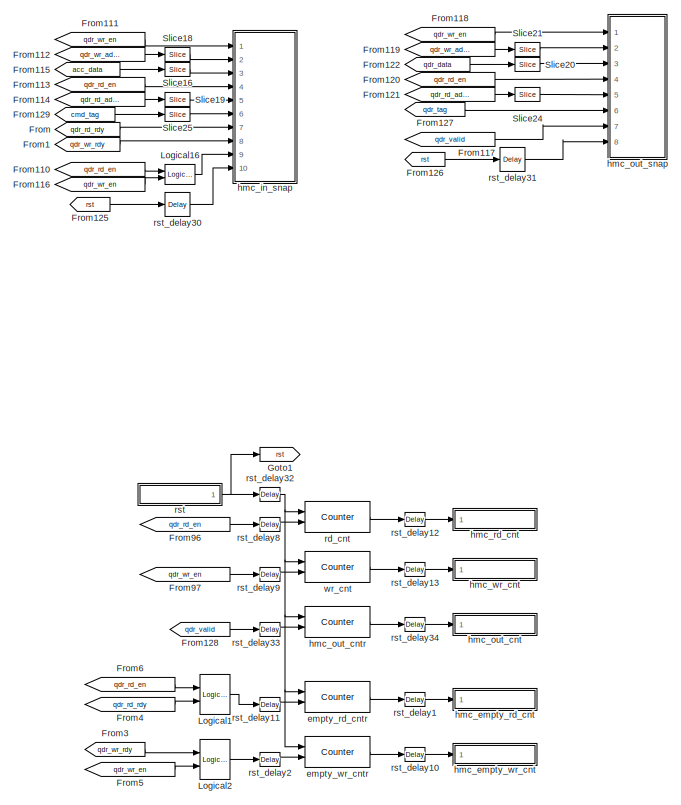
[diagram: root canvas - part 1/4, top right region]
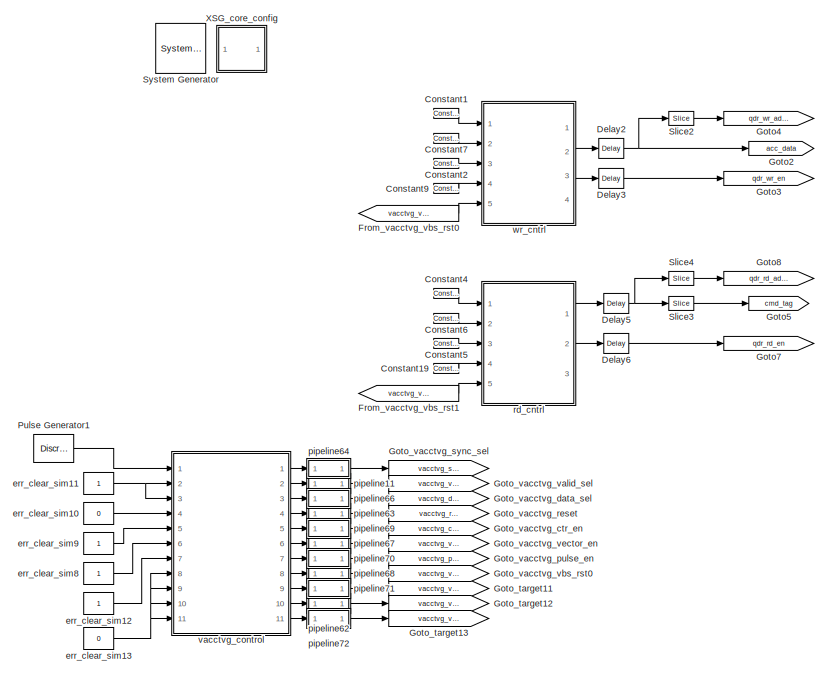
[diagram: root canvas - part 2/4, central region]
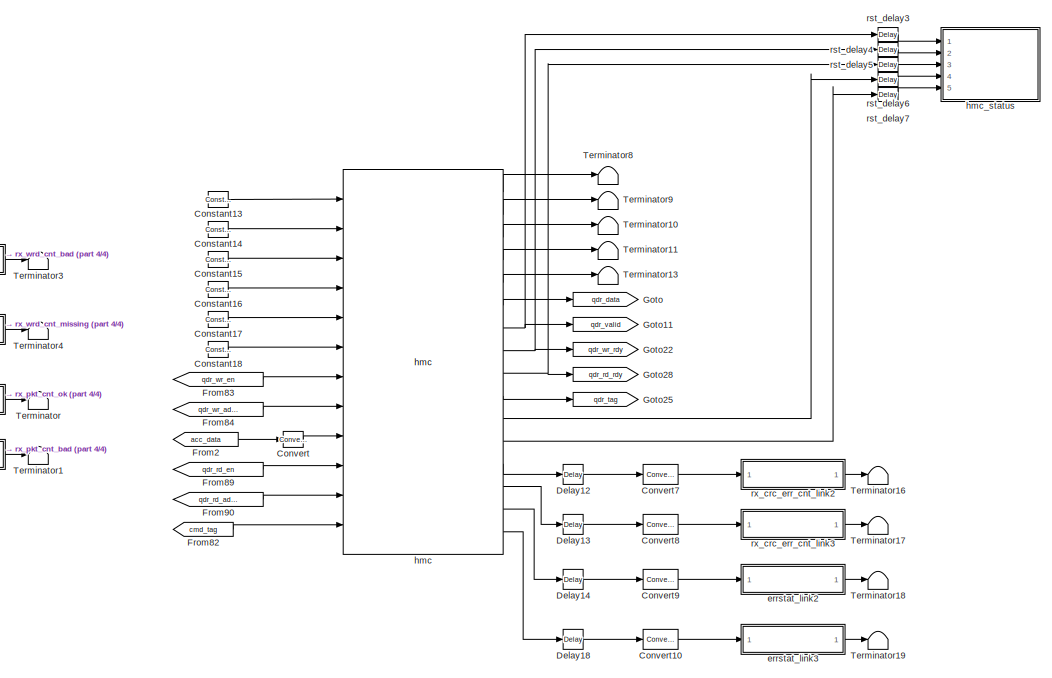
[diagram: root canvas - part 3/4, bottom right region]
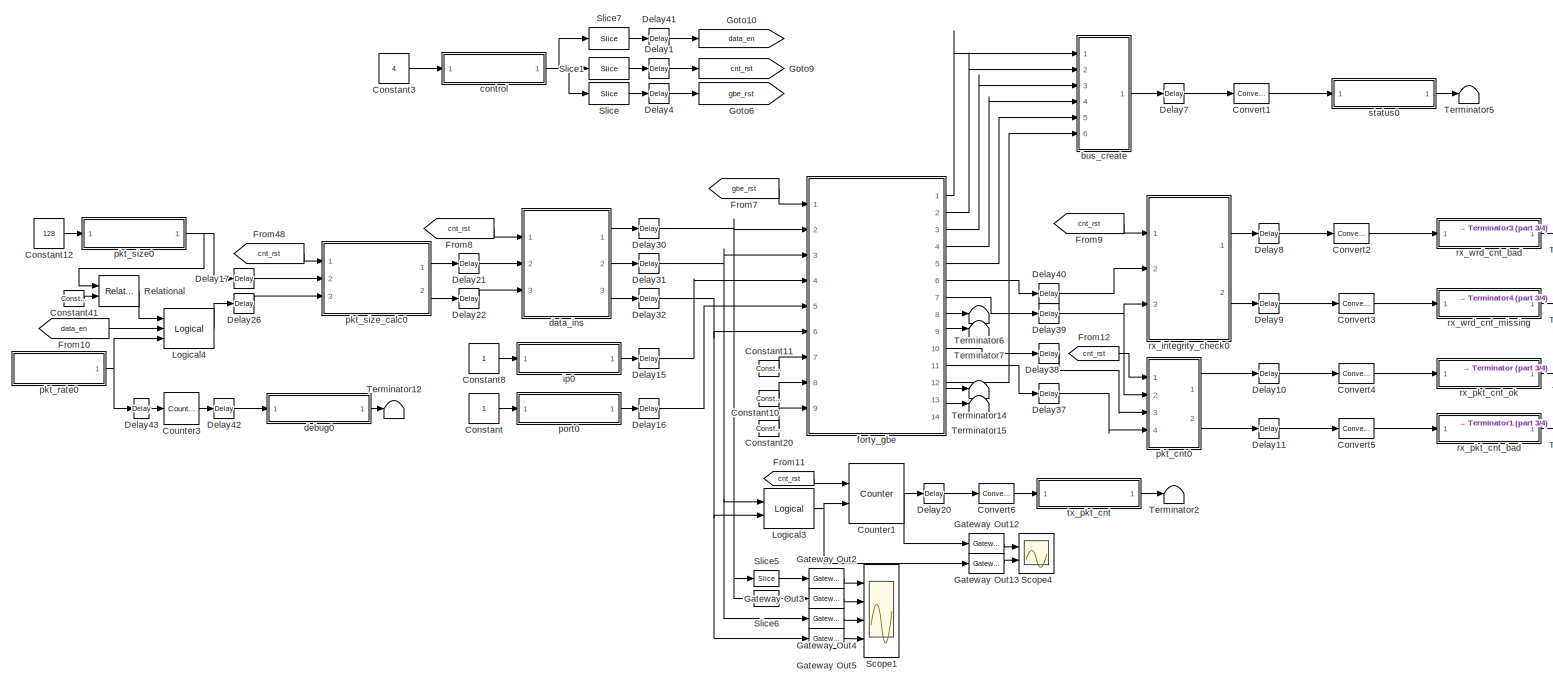
[diagram: root canvas - part 4/4, bottom left region]
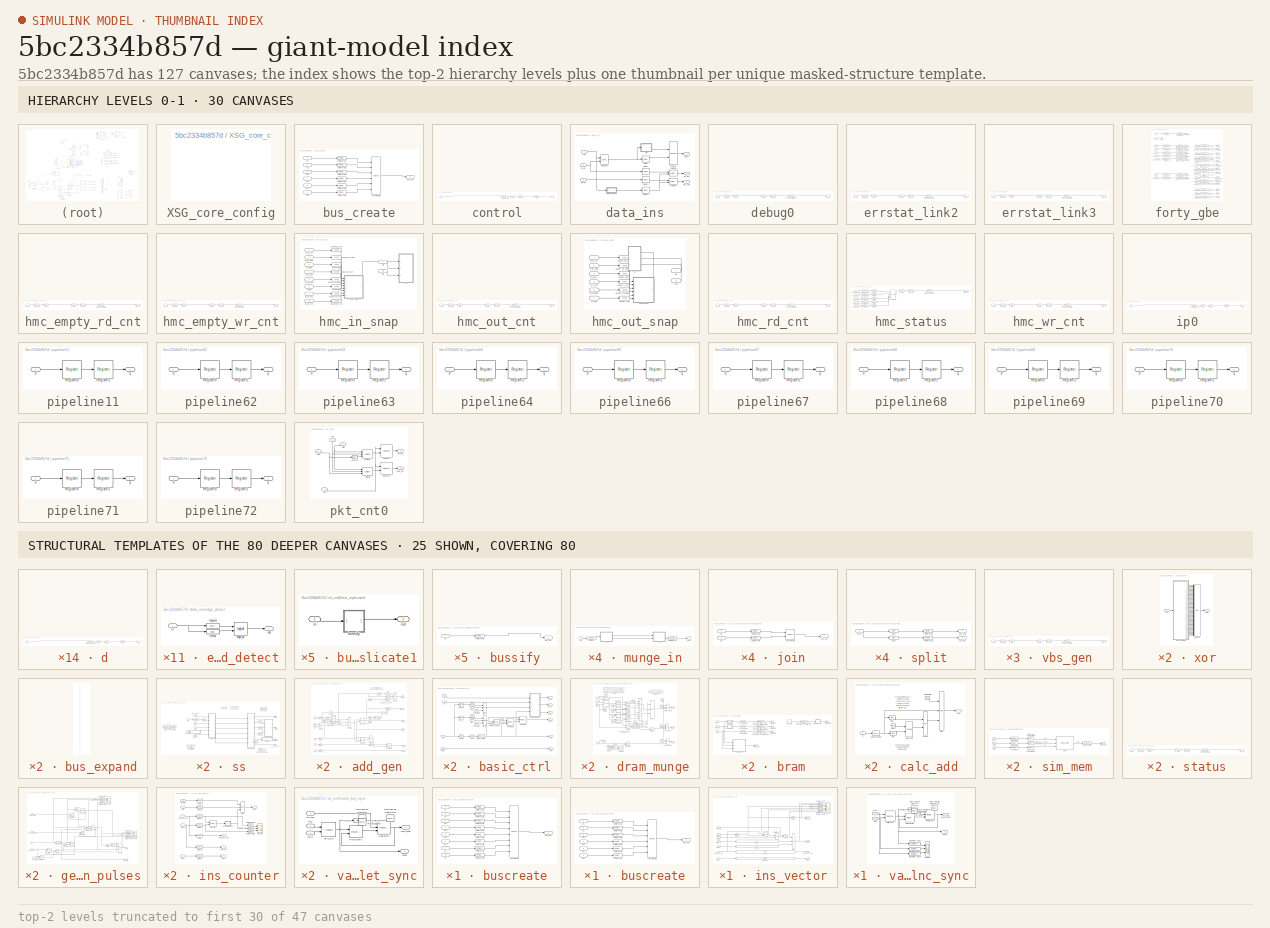
[diagram: thumbnail index - top-2 hierarchy levels (47 canvases (first 30 of 47 shown)) + 25 structural-template representatives of the remaining 80 canvases]
MODEL slx_5bc2334b857d
KIND model
CONFIG AbsTol = auto
CONFIG EnableMultiTasking = on
CONFIG FixedStep = auto
CONFIG MaxStep = auto
CONFIG MinStep = auto
CONFIG RelTol = 1e-3
CONFIG SampleTimeConstraint = Unconstrained
CONFIG Solver = ode45
CONFIG SolverName = ode45
CONFIG StartTime = 0.0
CONFIG StopTime = 400000
BLOCK [Reference]  System Generator  REF=xbsIndex_r4/ System Generator
  AttributesFormatString = System\nGenerator
  Ports = []
  SourceBlock = xbsIndex_r4/ System Generator
  SourceType = Xilinx System Generator Block
  Tag = genX
  UserDataPersistent = on
BLOCK [Constant] Constant
BLOCK [Reference] Constant1  REF=xbsIndex_r4/Constant
  Ports = [0, 1]
  SourceBlock = xbsIndex_r4/Constant
  SourceType = Xilinx Constant Block Block
BLOCK [Reference] Constant10  REF=xbsIndex_r4/Constant
  Ports = [0, 1]
  SourceBlock = xbsIndex_r4/Constant
  SourceType = Xilinx Constant Block Block
BLOCK [Reference] Constant11  REF=xbsIndex_r4/Constant
  Ports = [0, 1]
  SourceBlock = xbsIndex_r4/Constant
  SourceType = Xilinx Constant Block Block
BLOCK [Constant] Constant12
  Value = 128
BLOCK [Reference] Constant13  REF=xbsIndex_r4/Constant
  Ports = [0, 1]
  SourceBlock = xbsIndex_r4/Constant
  SourceType = Xilinx Constant Block Block
BLOCK [Reference] Constant14  REF=xbsIndex_r4/Constant
  Ports = [0, 1]
  SourceBlock = xbsIndex_r4/Constant
  SourceType = Xilinx Constant Block Block
BLOCK [Reference] Constant15  REF=xbsIndex_r4/Constant
  Ports = [0, 1]
  SourceBlock = xbsIndex_r4/Constant
  SourceType = Xilinx Constant Block Block
BLOCK [Reference] Constant16  REF=xbsIndex_r4/Constant
  Ports = [0, 1]
  SourceBlock = xbsIndex_r4/Constant
  SourceType = Xilinx Constant Block Block
BLOCK [Reference] Constant17  REF=xbsIndex_r4/Constant
  Ports = [0, 1]
  SourceBlock = xbsIndex_r4/Constant
  SourceType = Xilinx Constant Block Block
BLOCK [Reference] Constant18  REF=xbsIndex_r4/Constant
  Ports = [0, 1]
  SourceBlock = xbsIndex_r4/Constant
  SourceType = Xilinx Constant Block Block
BLOCK [Reference] Constant19  REF=xbsIndex_r4/Constant
  Ports = [0, 1]
  SourceBlock = xbsIndex_r4/Constant
  SourceType = Xilinx Constant Block Block
BLOCK [Reference] Constant2  REF=xbsIndex_r4/Constant
  Ports = [0, 1]
  SourceBlock = xbsIndex_r4/Constant
  SourceType = Xilinx Constant Block Block
BLOCK [Reference] Constant20  REF=xbsIndex_r4/Constant
  Ports = [0, 1]
  SourceBlock = xbsIndex_r4/Constant
  SourceType = Xilinx Constant Block Block
BLOCK [Constant] Constant3
  Value = 4
BLOCK [Reference] Constant4  REF=xbsIndex_r4/Constant
  Ports = [0, 1]
  SourceBlock = xbsIndex_r4/Constant
  SourceType = Xilinx Constant Block Block
BLOCK [Reference] Constant41  REF=xbsIndex_r4/Constant
  Ports = [0, 1]
  SourceBlock = xbsIndex_r4/Constant
  SourceType = Xilinx Constant Block Block
BLOCK [Reference] Constant5  REF=xbsIndex_r4/Constant
  Ports = [0, 1]
  SourceBlock = xbsIndex_r4/Constant
  SourceType = Xilinx Constant Block Block
BLOCK [Reference] Constant6  REF=xbsIndex_r4/Constant
  Ports = [0, 1]
  SourceBlock = xbsIndex_r4/Constant
  SourceType = Xilinx Constant Block Block
BLOCK [Reference] Constant7  REF=xbsIndex_r4/Constant
  Ports = [0, 1]
  SourceBlock = xbsIndex_r4/Constant
  SourceType = Xilinx Constant Block Block
BLOCK [Constant] Constant8
BLOCK [Reference] Constant9  REF=xbsIndex_r4/Constant
  Ports = [0, 1]
  SourceBlock = xbsIndex_r4/Constant
  SourceType = Xilinx Constant Block Block
BLOCK [Reference] Convert  REF=xbsIndex_r4/Convert
  Ports = [1, 1]
  SourceBlock = xbsIndex_r4/Convert
  SourceType = Xilinx Type Converter Block
BLOCK [Reference] Convert1  REF=xbsIndex_r4/Convert
  Ports = [1, 1]
  SourceBlock = xbsIndex_r4/Convert
  SourceType = Xilinx Type Converter Block
BLOCK [Reference] Convert10  REF=xbsIndex_r4/Convert
  Ports = [1, 1]
  SourceBlock = xbsIndex_r4/Convert
  SourceType = Xilinx Type Converter Block
BLOCK [Reference] Convert2  REF=xbsIndex_r4/Convert
  Ports = [1, 1]
  SourceBlock = xbsIndex_r4/Convert
  SourceType = Xilinx Type Converter Block
BLOCK [Reference] Convert3  REF=xbsIndex_r4/Convert
  Ports = [1, 1]
  SourceBlock = xbsIndex_r4/Convert
  SourceType = Xilinx Type Converter Block
BLOCK [Reference] Convert4  REF=xbsIndex_r4/Convert
  Ports = [1, 1]
  SourceBlock = xbsIndex_r4/Convert
  SourceType = Xilinx Type Converter Block
BLOCK [Reference] Convert5  REF=xbsIndex_r4/Convert
  Ports = [1, 1]
  SourceBlock = xbsIndex_r4/Convert
  SourceType = Xilinx Type Converter Block
BLOCK [Reference] Convert6  REF=xbsIndex_r4/Convert
  Ports = [1, 1]
  SourceBlock = xbsIndex_r4/Convert
  SourceType = Xilinx Type Converter Block
BLOCK [Reference] Convert7  REF=xbsIndex_r4/Convert
  Ports = [1, 1]
  SourceBlock = xbsIndex_r4/Convert
  SourceType = Xilinx Type Converter Block
BLOCK [Reference] Convert8  REF=xbsIndex_r4/Convert
  Ports = [1, 1]
  SourceBlock = xbsIndex_r4/Convert
  SourceType = Xilinx Type Converter Block
BLOCK [Reference] Convert9  REF=xbsIndex_r4/Convert
  Ports = [1, 1]
  SourceBlock = xbsIndex_r4/Convert
  SourceType = Xilinx Type Converter Block
BLOCK [Reference] Counter1  REF=xbsIndex_r4/Counter
  Ports = [2, 1]
  SourceBlock = xbsIndex_r4/Counter
  SourceType = Xilinx Counter Block
BLOCK [Reference] Counter3  REF=xbsIndex_r4/Counter
  Ports = [1, 1]
  SourceBlock = xbsIndex_r4/Counter
  SourceType = Xilinx Counter Block
BLOCK [Reference] Delay1  REF=xbsIndex_r4/Delay
  Ports = [1, 1]
  SourceBlock = xbsIndex_r4/Delay
  SourceType = Xilinx Delay Block
BLOCK [Reference] Delay10  REF=xbsIndex_r4/Delay
  Ports = [1, 1]
  SourceBlock = xbsIndex_r4/Delay
  SourceType = Xilinx Delay Block
BLOCK [Reference] Delay11  REF=xbsIndex_r4/Delay
  Ports = [1, 1]
  SourceBlock = xbsIndex_r4/Delay
  SourceType = Xilinx Delay Block
BLOCK [Reference] Delay12  REF=xbsIndex_r4/Delay
  Ports = [1, 1]
  SourceBlock = xbsIndex_r4/Delay
  SourceType = Xilinx Delay Block
BLOCK [Reference] Delay13  REF=xbsIndex_r4/Delay
  Ports = [1, 1]
  SourceBlock = xbsIndex_r4/Delay
  SourceType = Xilinx Delay Block
BLOCK [Reference] Delay14  REF=xbsIndex_r4/Delay
  Ports = [1, 1]
  SourceBlock = xbsIndex_r4/Delay
  SourceType = Xilinx Delay Block
BLOCK [Reference] Delay15  REF=xbsIndex_r4/Delay
  Ports = [1, 1]
  SourceBlock = xbsIndex_r4/Delay
  SourceType = Xilinx Delay Block
BLOCK [Reference] Delay16  REF=xbsIndex_r4/Delay
  Ports = [1, 1]
  SourceBlock = xbsIndex_r4/Delay
  SourceType = Xilinx Delay Block
BLOCK [Reference] Delay17  REF=xbsIndex_r4/Delay
  Ports = [1, 1]
  SourceBlock = xbsIndex_r4/Delay
  SourceType = Xilinx Delay Block
BLOCK [Reference] Delay18  REF=xbsIndex_r4/Delay
  Ports = [1, 1]
  SourceBlock = xbsIndex_r4/Delay
  SourceType = Xilinx Delay Block
BLOCK [Reference] Delay2  REF=xbsIndex_r4/Delay
  Ports = [1, 1]
  SourceBlock = xbsIndex_r4/Delay
  SourceType = Xilinx Delay Block
BLOCK [Reference] Delay20  REF=xbsIndex_r4/Delay
  Ports = [1, 1]
  SourceBlock = xbsIndex_r4/Delay
  SourceType = Xilinx Delay Block
BLOCK [Reference] Delay21  REF=xbsIndex_r4/Delay
  Ports = [1, 1]
  SourceBlock = xbsIndex_r4/Delay
  SourceType = Xilinx Delay Block
BLOCK [Reference] Delay22  REF=xbsIndex_r4/Delay
  Ports = [1, 1]
  SourceBlock = xbsIndex_r4/Delay
  SourceType = Xilinx Delay Block
BLOCK [Reference] Delay26  REF=xbsIndex_r4/Delay
  Ports = [1, 1]
  SourceBlock = xbsIndex_r4/Delay
  SourceType = Xilinx Delay Block
BLOCK [Reference] Delay3  REF=xbsIndex_r4/Delay
  Ports = [1, 1]
  SourceBlock = xbsIndex_r4/Delay
  SourceType = Xilinx Delay Block
BLOCK [Reference] Delay30  REF=xbsIndex_r4/Delay
  Ports = [1, 1]
  SourceBlock = xbsIndex_r4/Delay
  SourceType = Xilinx Delay Block
BLOCK [Reference] Delay31  REF=xbsIndex_r4/Delay
  Ports = [1, 1]
  SourceBlock = xbsIndex_r4/Delay
  SourceType = Xilinx Delay Block
BLOCK [Reference] Delay32  REF=xbsIndex_r4/Delay
  Ports = [1, 1]
  SourceBlock = xbsIndex_r4/Delay
  SourceType = Xilinx Delay Block
BLOCK [Reference] Delay37  REF=xbsIndex_r4/Delay
  Ports = [1, 1]
  SourceBlock = xbsIndex_r4/Delay
  SourceType = Xilinx Delay Block
BLOCK [Reference] Delay38  REF=xbsIndex_r4/Delay
  Ports = [1, 1]
  SourceBlock = xbsIndex_r4/Delay
  SourceType = Xilinx Delay Block
BLOCK [Reference] Delay39  REF=xbsIndex_r4/Delay
  Ports = [1, 1]
  SourceBlock = xbsIndex_r4/Delay
  SourceType = Xilinx Delay Block
BLOCK [Reference] Delay4  REF=xbsIndex_r4/Delay
  Ports = [1, 1]
  SourceBlock = xbsIndex_r4/Delay
  SourceType = Xilinx Delay Block
BLOCK [Reference] Delay40  REF=xbsIndex_r4/Delay
  Ports = [1, 1]
  SourceBlock = xbsIndex_r4/Delay
  SourceType = Xilinx Delay Block
BLOCK [Reference] Delay41  REF=xbsIndex_r4/Delay
  Ports = [1, 1]
  SourceBlock = xbsIndex_r4/Delay
  SourceType = Xilinx Delay Block
BLOCK [Reference] Delay42  REF=xbsIndex_r4/Delay
  Ports = [1, 1]
  SourceBlock = xbsIndex_r4/Delay
  SourceType = Xilinx Delay Block
BLOCK [Reference] Delay43  REF=xbsIndex_r4/Delay
  Ports = [1, 1]
  SourceBlock = xbsIndex_r4/Delay
  SourceType = Xilinx Delay Block
BLOCK [Reference] Delay5  REF=xbsIndex_r4/Delay
  Ports = [1, 1]
  SourceBlock = xbsIndex_r4/Delay
  SourceType = Xilinx Delay Block
BLOCK [Reference] Delay6  REF=xbsIndex_r4/Delay
  Ports = [1, 1]
  SourceBlock = xbsIndex_r4/Delay
  SourceType = Xilinx Delay Block
BLOCK [Reference] Delay7  REF=xbsIndex_r4/Delay
  Ports = [1, 1]
  SourceBlock = xbsIndex_r4/Delay
  SourceType = Xilinx Delay Block
BLOCK [Reference] Delay8  REF=xbsIndex_r4/Delay
  Ports = [1, 1]
  SourceBlock = xbsIndex_r4/Delay
  SourceType = Xilinx Delay Block
BLOCK [Reference] Delay9  REF=xbsIndex_r4/Delay
  Ports = [1, 1]
  SourceBlock = xbsIndex_r4/Delay
  SourceType = Xilinx Delay Block
BLOCK [From] From
  GotoTag = qdr_rd_rdy
BLOCK [From] From1
  GotoTag = qdr_wr_rdy
BLOCK [From] From10
  CloseFcn = tagdialog Close
  GotoTag = data_en
BLOCK [From] From11
  CloseFcn = tagdialog Close
  GotoTag = cnt_rst
BLOCK [From] From110
  CloseFcn = tagdialog Close
  GotoTag = qdr_rd_en
BLOCK [From] From111
  CloseFcn = tagdialog Close
  GotoTag = qdr_wr_en
BLOCK [From] From112
  CloseFcn = tagdialog Close
  GotoTag = qdr_wr_addr
BLOCK [From] From113
  CloseFcn = tagdialog Close
  GotoTag = qdr_rd_en
BLOCK [From] From114
  CloseFcn = tagdialog Close
  GotoTag = qdr_rd_addr
BLOCK [From] From115
  GotoTag = acc_data
BLOCK [From] From116
  CloseFcn = tagdialog Close
  GotoTag = qdr_wr_en
BLOCK [From] From117
  CloseFcn = tagdialog Close
  GotoTag = qdr_valid
BLOCK [From] From118
  CloseFcn = tagdialog Close
  GotoTag = qdr_wr_en
BLOCK [From] From119
  CloseFcn = tagdialog Close
  GotoTag = qdr_wr_addr
BLOCK [From] From12
  CloseFcn = tagdialog Close
  GotoTag = cnt_rst
BLOCK [From] From120
  CloseFcn = tagdialog Close
  GotoTag = qdr_rd_en
BLOCK [From] From121
  CloseFcn = tagdialog Close
  GotoTag = qdr_rd_addr
BLOCK [From] From122
  GotoTag = qdr_data
BLOCK [From] From125
  CloseFcn = tagdialog Close
  GotoTag = rst
BLOCK [From] From126
  CloseFcn = tagdialog Close
  GotoTag = rst
BLOCK [From] From127
  CloseFcn = tagdialog Close
  GotoTag = qdr_tag
BLOCK [From] From128
  CloseFcn = tagdialog Close
  GotoTag = qdr_valid
BLOCK [From] From129
  CloseFcn = tagdialog Close
  GotoTag = cmd_tag
BLOCK [From] From2
  GotoTag = acc_data
BLOCK [From] From3
  CloseFcn = tagdialog Close
  GotoTag = qdr_wr_rdy
BLOCK [From] From4
  CloseFcn = tagdialog Close
  GotoTag = qdr_rd_rdy
BLOCK [From] From48
  CloseFcn = tagdialog Close
  GotoTag = cnt_rst
BLOCK [From] From5
  CloseFcn = tagdialog Close
  GotoTag = qdr_wr_en
BLOCK [From] From6
  CloseFcn = tagdialog Close
  GotoTag = qdr_rd_en
BLOCK [From] From7
  CloseFcn = tagdialog Close
  GotoTag = gbe_rst
BLOCK [From] From8
  CloseFcn = tagdialog Close
  GotoTag = cnt_rst
BLOCK [From] From82
  CloseFcn = tagdialog Close
  GotoTag = cmd_tag
BLOCK [From] From83
  CloseFcn = tagdialog Close
  GotoTag = qdr_wr_en
BLOCK [From] From84
  CloseFcn = tagdialog Close
  GotoTag = qdr_wr_addr
BLOCK [From] From89
  CloseFcn = tagdialog Close
  GotoTag = qdr_rd_en
BLOCK [From] From9
  CloseFcn = tagdialog Close
  GotoTag = cnt_rst
BLOCK [From] From90
  CloseFcn = tagdialog Close
  GotoTag = qdr_rd_addr
BLOCK [From] From96
  CloseFcn = tagdialog Close
  GotoTag = qdr_rd_en
BLOCK [From] From97
  CloseFcn = tagdialog Close
  GotoTag = qdr_wr_en
BLOCK [From] From_vacctvg_vbs_rst0
  GotoTag = vacctvg_vbs_rst0
  TagVisibility = global
BLOCK [From] From_vacctvg_vbs_rst1
  GotoTag = vacctvg_vbs_rst0
  TagVisibility = global
BLOCK [Reference] Gateway Out12  REF=xbsIndex_r4/Gateway Out
  Ports = [1, 1]
  SourceBlock = xbsIndex_r4/Gateway Out
  SourceType = Xilinx Gateway Out Block
BLOCK [Reference] Gateway Out13  REF=xbsIndex_r4/Gateway Out
  Ports = [1, 1]
  SourceBlock = xbsIndex_r4/Gateway Out
  SourceType = Xilinx Gateway Out Block
BLOCK [Reference] Gateway Out2  REF=xbsIndex_r4/Gateway Out
  Ports = [1, 1]
  SourceBlock = xbsIndex_r4/Gateway Out
  SourceType = Xilinx Gateway Out Block
BLOCK [Reference] Gateway Out3  REF=xbsIndex_r4/Gateway Out
  Ports = [1, 1]
  SourceBlock = xbsIndex_r4/Gateway Out
  SourceType = Xilinx Gateway Out Block
BLOCK [Reference] Gateway Out4  REF=xbsIndex_r4/Gateway Out
  Ports = [1, 1]
  SourceBlock = xbsIndex_r4/Gateway Out
  SourceType = Xilinx Gateway Out Block
BLOCK [Reference] Gateway Out5  REF=xbsIndex_r4/Gateway Out
  Ports = [1, 1]
  SourceBlock = xbsIndex_r4/Gateway Out
  SourceType = Xilinx Gateway Out Block
BLOCK [Goto] Goto
  GotoTag = qdr_data
BLOCK [Goto] Goto1
  GotoTag = rst
BLOCK [Goto] Goto10
  GotoTag = data_en
BLOCK [Goto] Goto11
  GotoTag = qdr_valid
BLOCK [Goto] Goto2
  GotoTag = acc_data
BLOCK [Goto] Goto22
  GotoTag = qdr_wr_rdy
BLOCK [Goto] Goto25
  GotoTag = qdr_tag
BLOCK [Goto] Goto28
  GotoTag = qdr_rd_rdy
BLOCK [Goto] Goto3
  GotoTag = qdr_wr_en
BLOCK [Goto] Goto4
  GotoTag = qdr_wr_addr
BLOCK [Goto] Goto5
  GotoTag = cmd_tag
BLOCK [Goto] Goto6
  GotoTag = gbe_rst
BLOCK [Goto] Goto7
  GotoTag = qdr_rd_en
BLOCK [Goto] Goto8
  GotoTag = qdr_rd_addr
BLOCK [Goto] Goto9
  GotoTag = cnt_rst
BLOCK [Goto] Goto_target11
  GotoTag = vacctvg_vbs_rst1
  TagVisibility = global
BLOCK [Goto] Goto_target12
  GotoTag = vacctvg_vbs_rst2
  TagVisibility = global
BLOCK [Goto] Goto_target13
  GotoTag = vacctvg_vbs_rst3
  TagVisibility = global
BLOCK [Goto] Goto_vacctvg_ctr_en
  GotoTag = vacctvg_ctr_en
  TagVisibility = global
BLOCK [Goto] Goto_vacctvg_data_sel
  GotoTag = vacctvg_data_sel
  TagVisibility = global
BLOCK [Goto] Goto_vacctvg_pulse_en
  GotoTag = vacctvg_pulse_en
  TagVisibility = global
BLOCK [Goto] Goto_vacctvg_reset
  GotoTag = vacctvg_reset
  TagVisibility = global
BLOCK [Goto] Goto_vacctvg_sync_sel
  GotoTag = vacctvg_sync_sel
  TagVisibility = global
BLOCK [Goto] Goto_vacctvg_valid_sel
  GotoTag = vacctvg_valid_sel
  TagVisibility = global
BLOCK [Goto] Goto_vacctvg_vbs_rst0
  GotoTag = vacctvg_vbs_rst0
  TagVisibility = global
BLOCK [Goto] Goto_vacctvg_vector_en
  GotoTag = vacctvg_vector_en
  TagVisibility = global
BLOCK [Reference] Logical1  REF=xbsIndex_r4/Logical
  Ports = [2, 1]
  SourceBlock = xbsIndex_r4/Logical
  SourceType = Xilinx Logical Block Block
BLOCK [Reference] Logical16  REF=xbsIndex_r4/Logical
  Ports = [2, 1]
  SourceBlock = xbsIndex_r4/Logical
  SourceType = Xilinx Logical Block Block
BLOCK [Reference] Logical2  REF=xbsIndex_r4/Logical
  Ports = [2, 1]
  SourceBlock = xbsIndex_r4/Logical
  SourceType = Xilinx Logical Block Block
BLOCK [Reference] Logical3  REF=xbsIndex_r4/Logical
  Ports = [2, 1]
  SourceBlock = xbsIndex_r4/Logical
  SourceType = Xilinx Logical Block Block
BLOCK [Reference] Logical4  REF=xbsIndex_r4/Logical
  Ports = [3, 1]
  SourceBlock = xbsIndex_r4/Logical
  SourceType = Xilinx Logical Block Block
BLOCK [DiscretePulseGenerator] Pulse Generator1
  Period = 99999999
  PhaseDelay = 1000
  Ports = [0, 1]
BLOCK [Reference] Relational  REF=xbsIndex_r4/Relational
  Ports = [2, 1]
  SourceBlock = xbsIndex_r4/Relational
  SourceType = Xilinx Arithmetic Relational Operator Block
BLOCK [Scope] Scope1
  NumInputPorts = 4
  Ports = [4]
  ScopeSpecificationString = C++SS(StrPVP('Location','[6, 80, 1684, 1020]'),StrPVP('Open','off'),StrPVP('ZoomMode','xonly'),MxPVP('AxesTitles',24,'struct(''axes1'',''%<SignalLabel>'',''axes2'',''%<SignalLabel>'',''axes3'',''%<SignalLabel>'',''axes4'',''%<SignalLabel>'')'),StrPVP('ShowLegends','off'),StrPVP('YMin','-5~-5~-5~-5'),StrPVP('YMax','5~5~5~5'),StrPVP('SaveName','ScopeData1'),StrPVP('DataFormat','StructureWithTime'),S...<+224ch>
BLOCK [Scope] Scope4
  NumInputPorts = 2
  Ports = [2]
  ScopeSpecificationString = C++SS(StrPVP('Location','[7, 80, 1685, 1020]'),StrPVP('Open','off'),StrPVP('ZoomMode','xonly'),MxPVP('AxesTitles',24,'struct(''axes1'',''%<SignalLabel>'',''axes2'',''%<SignalLabel>'')'),StrPVP('ShowLegends','off'),StrPVP('YMin','-5~-5'),StrPVP('YMax','5~5'),StrPVP('SaveName','ScopeData4'),StrPVP('DataFormat','StructureWithTime'),StrPVP('BlockParamSampleTime','0'),StrPVP('LimitDataPoints','on'),Str...<+156ch>
BLOCK [Reference] Slice  REF=xbsIndex_r4/Slice
  Ports = [1, 1]
  SourceBlock = xbsIndex_r4/Slice
  SourceType = Xilinx Bit Slice Extractor Block
BLOCK [Reference] Slice1  REF=xbsIndex_r4/Slice
  Ports = [1, 1]
  SourceBlock = xbsIndex_r4/Slice
  SourceType = Xilinx Bit Slice Extractor Block
BLOCK [Reference] Slice16  REF=xbsIndex_r4/Slice
  Ports = [1, 1]
  SourceBlock = xbsIndex_r4/Slice
  SourceType = Xilinx Bit Slice Extractor Block
BLOCK [Reference] Slice18  REF=xbsIndex_r4/Slice
  Ports = [1, 1]
  SourceBlock = xbsIndex_r4/Slice
  SourceType = Xilinx Bit Slice Extractor Block
BLOCK [Reference] Slice19  REF=xbsIndex_r4/Slice
  Ports = [1, 1]
  SourceBlock = xbsIndex_r4/Slice
  SourceType = Xilinx Bit Slice Extractor Block
BLOCK [Reference] Slice2  REF=xbsIndex_r4/Slice
  Ports = [1, 1]
  SourceBlock = xbsIndex_r4/Slice
  SourceType = Xilinx Bit Slice Extractor Block
BLOCK [Reference] Slice20  REF=xbsIndex_r4/Slice
  Ports = [1, 1]
  SourceBlock = xbsIndex_r4/Slice
  SourceType = Xilinx Bit Slice Extractor Block
BLOCK [Reference] Slice21  REF=xbsIndex_r4/Slice
  Ports = [1, 1]
  SourceBlock = xbsIndex_r4/Slice
  SourceType = Xilinx Bit Slice Extractor Block
BLOCK [Reference] Slice24  REF=xbsIndex_r4/Slice
  Ports = [1, 1]
  SourceBlock = xbsIndex_r4/Slice
  SourceType = Xilinx Bit Slice Extractor Block
BLOCK [Reference] Slice25  REF=xbsIndex_r4/Slice
  Ports = [1, 1]
  SourceBlock = xbsIndex_r4/Slice
  SourceType = Xilinx Bit Slice Extractor Block
BLOCK [Reference] Slice3  REF=xbsIndex_r4/Slice
  Ports = [1, 1]
  SourceBlock = xbsIndex_r4/Slice
  SourceType = Xilinx Bit Slice Extractor Block
BLOCK [Reference] Slice4  REF=xbsIndex_r4/Slice
  Ports = [1, 1]
  SourceBlock = xbsIndex_r4/Slice
  SourceType = Xilinx Bit Slice Extractor Block
BLOCK [Reference] Slice5  REF=xbsIndex_r4/Slice
  Ports = [1, 1]
  SourceBlock = xbsIndex_r4/Slice
  SourceType = Xilinx Bit Slice Extractor Block
BLOCK [Reference] Slice6  REF=xbsIndex_r4/Slice
  Ports = [1, 1]
  SourceBlock = xbsIndex_r4/Slice
  SourceType = Xilinx Bit Slice Extractor Block
BLOCK [Reference] Slice7  REF=xbsIndex_r4/Slice
  Ports = [1, 1]
  SourceBlock = xbsIndex_r4/Slice
  SourceType = Xilinx Bit Slice Extractor Block
BLOCK [Terminator] Terminator
BLOCK [Terminator] Terminator1
BLOCK [Terminator] Terminator10
BLOCK [Terminator] Terminator11
BLOCK [Terminator] Terminator12
BLOCK [Terminator] Terminator13
BLOCK [Terminator] Terminator14
BLOCK [Terminator] Terminator15
BLOCK [Terminator] Terminator16
BLOCK [Terminator] Terminator17
BLOCK [Terminator] Terminator18
BLOCK [Terminator] Terminator19
BLOCK [Terminator] Terminator2
BLOCK [Terminator] Terminator3
BLOCK [Terminator] Terminator4
BLOCK [Terminator] Terminator5
BLOCK [Terminator] Terminator6
BLOCK [Terminator] Terminator7
BLOCK [Terminator] Terminator8
BLOCK [Terminator] Terminator9
BLOCK [SubSystem] XSG_core_config
  AncestorBlock = xps_library/XSG_core_config
  Ports = []
  RequestExecContextInheritance = off
  Tag = xps:xsg
  Variant = off
BLOCK [SubSystem] bus_create
  AncestorBlock = casper_library_flow_control/bus_create
  Ports = [6, 1]
  RequestExecContextInheritance = off
  UserDataPersistent = on
  Variant = off
BLOCK [Outport] bus_create/bus_out
  IconDisplay = Port number
BLOCK [Reference] bus_create/concatenate  REF=xbsIndex_r4/Concat
  Ports = [6, 1]
  SourceBlock = xbsIndex_r4/Concat
  SourceType = Xilinx Bus Concatenator Block
BLOCK [Inport] bus_create/in1
  IconDisplay = Port number
BLOCK [Inport] bus_create/in2
  IconDisplay = Port number
  Port = 2
BLOCK [Inport] bus_create/in3
  IconDisplay = Port number
  Port = 3
BLOCK [Inport] bus_create/in4
  IconDisplay = Port number
  Port = 4
BLOCK [Inport] bus_create/in5
  IconDisplay = Port number
  Port = 5
BLOCK [Inport] bus_create/in6
  IconDisplay = Port number
  Port = 6
BLOCK [Reference] bus_create/reinterpret1  REF=xbsIndex_r4/Reinterpret
  Ports = [1, 1]
  SourceBlock = xbsIndex_r4/Reinterpret
  SourceType = Xilinx Type Reinterpreter Block
BLOCK [Reference] bus_create/reinterpret2  REF=xbsIndex_r4/Reinterpret
  Ports = [1, 1]
  SourceBlock = xbsIndex_r4/Reinterpret
  SourceType = Xilinx Type Reinterpreter Block
BLOCK [Reference] bus_create/reinterpret3  REF=xbsIndex_r4/Reinterpret
  Ports = [1, 1]
  SourceBlock = xbsIndex_r4/Reinterpret
  SourceType = Xilinx Type Reinterpreter Block
BLOCK [Reference] bus_create/reinterpret4  REF=xbsIndex_r4/Reinterpret
  Ports = [1, 1]
  SourceBlock = xbsIndex_r4/Reinterpret
  SourceType = Xilinx Type Reinterpreter Block
BLOCK [Reference] bus_create/reinterpret5  REF=xbsIndex_r4/Reinterpret
  Ports = [1, 1]
  SourceBlock = xbsIndex_r4/Reinterpret
  SourceType = Xilinx Type Reinterpreter Block
BLOCK [Reference] bus_create/reinterpret6  REF=xbsIndex_r4/Reinterpret
  Ports = [1, 1]
  SourceBlock = xbsIndex_r4/Reinterpret
  SourceType = Xilinx Type Reinterpreter Block
BLOCK [SubSystem] control
  AncestorBlock = xps_library/software register
  AttributesFormatString = 1input:uf32.0 = 32 bits
  Ports = [1, 1]
  RequestExecContextInheritance = off
  Tag = xps:sw_reg
  Variant = off
BLOCK [Outport] control/in_reg
  IconDisplay = Port number
BLOCK [Reference] control/io_delay  REF=xbsIndex_r4/Delay
  Ports = [1, 1]
  SourceBlock = xbsIndex_r4/Delay
  SourceType = Xilinx Delay Block
BLOCK [Reference] control/reint1  REF=xbsIndex_r4/Reinterpret
  Ports = [1, 1]
  SourceBlock = xbsIndex_r4/Reinterpret
  SourceType = Xilinx Type Reinterpreter Block
BLOCK [Inport] control/sim_1
  IconDisplay = Port number
BLOCK [Reference] control/slice_reg  REF=xbsIndex_r4/Slice
  Ports = [1, 1]
  SourceBlock = xbsIndex_r4/Slice
  SourceType = Xilinx Bit Slice Extractor Block
BLOCK [Reference] control/test_hmc_control_user_data_out  REF=xbsIndex_r4/Gateway In
  Ports = [1, 1]
  SourceBlock = xbsIndex_r4/Gateway In
  SourceType = Xilinx Gateway In Block
BLOCK [SubSystem] data_ins
  Ports = [3, 3]
  RequestExecContextInheritance = off
  Variant = off
BLOCK [Reference] data_ins/Concat  REF=xbsIndex_r4/Concat
  Ports = [2, 1]
  SourceBlock = xbsIndex_r4/Concat
  SourceType = Xilinx Bus Concatenator Block
BLOCK [Reference] data_ins/Counter  REF=xbsIndex_r4/Counter
  Ports = [2, 1]
  SourceBlock = xbsIndex_r4/Counter
  SourceType = Xilinx Counter Block
BLOCK [Reference] data_ins/Delay  REF=xbsIndex_r4/Delay
  Ports = [1, 1]
  SourceBlock = xbsIndex_r4/Delay
  SourceType = Xilinx Delay Block
BLOCK [Reference] data_ins/Delay1  REF=xbsIndex_r4/Delay
  Ports = [1, 1]
  SourceBlock = xbsIndex_r4/Delay
  SourceType = Xilinx Delay Block
BLOCK [Reference] data_ins/Delay2  REF=xbsIndex_r4/Delay
  Ports = [1, 1]
  SourceBlock = xbsIndex_r4/Delay
  SourceType = Xilinx Delay Block
BLOCK [Reference] data_ins/Delay3  REF=xbsIndex_r4/Delay
  Ports = [1, 1]
  SourceBlock = xbsIndex_r4/Delay
  SourceType = Xilinx Delay Block
BLOCK [Reference] data_ins/Logical1  REF=xbsIndex_r4/Logical
  Ports = [2, 1]
  SourceBlock = xbsIndex_r4/Logical
  SourceType = Xilinx Logical Block Block
BLOCK [Reference] data_ins/Logical3  REF=xbsIndex_r4/Logical
  Ports = [2, 1]
  SourceBlock = xbsIndex_r4/Logical
  SourceType = Xilinx Logical Block Block
BLOCK [Outport] data_ins/data
  IconDisplay = Port number
BLOCK [SubSystem] data_ins/edge_detect
  AncestorBlock = casper_library_misc/edge_detect
  AttributesFormatString = rising edges\nactive high
  Ports = [1, 1]
  RequestExecContextInheritance = off
  UserDataPersistent = on
  Variant = off
BLOCK [Reference] data_ins/edge_detect/Delay  REF=xbsIndex_r4/Delay
  Ports = [1, 1]
  SourceBlock = xbsIndex_r4/Delay
  SourceType = Xilinx Delay Block
BLOCK [Reference] data_ins/edge_detect/Inverter  REF=xbsIndex_r4/Inverter
  Ports = [1, 1]
  SourceBlock = xbsIndex_r4/Inverter
  SourceType = Xilinx Inverter Block
BLOCK [Reference] data_ins/edge_detect/edge_op  REF=xbsIndex_r4/Logical
  Ports = [2, 1]
  SourceBlock = xbsIndex_r4/Logical
  SourceType = Xilinx Logical Block Block
BLOCK [Inport] data_ins/edge_detect/in
  IconDisplay = Port number
BLOCK [Outport] data_ins/edge_detect/out
  IconDisplay = Port number
BLOCK [Inport] data_ins/en_in
  IconDisplay = Port number
  Port = 2
BLOCK [Outport] data_ins/en_out
  IconDisplay = Port number
  Port = 2
BLOCK [Inport] data_ins/eof_in
  IconDisplay = Port number
  Port = 3
BLOCK [Outport] data_ins/eof_out
  IconDisplay = Port number
  Port = 3
BLOCK [Inport] data_ins/rst
  IconDisplay = Port number
BLOCK [SubSystem] data_ins/xor
  Ports = [1, 1]
  RequestExecContextInheritance = off
  Variant = off
BLOCK [Inport] data_ins/xor/In1
  IconDisplay = Port number
BLOCK [Reference] data_ins/xor/Logical  REF=xbsIndex_r4/Logical
  Ports = [63, 1]
  SourceBlock = xbsIndex_r4/Logical
  SourceType = Xilinx Logical Block Block
BLOCK [Outport] data_ins/xor/Out1
  IconDisplay = Port number
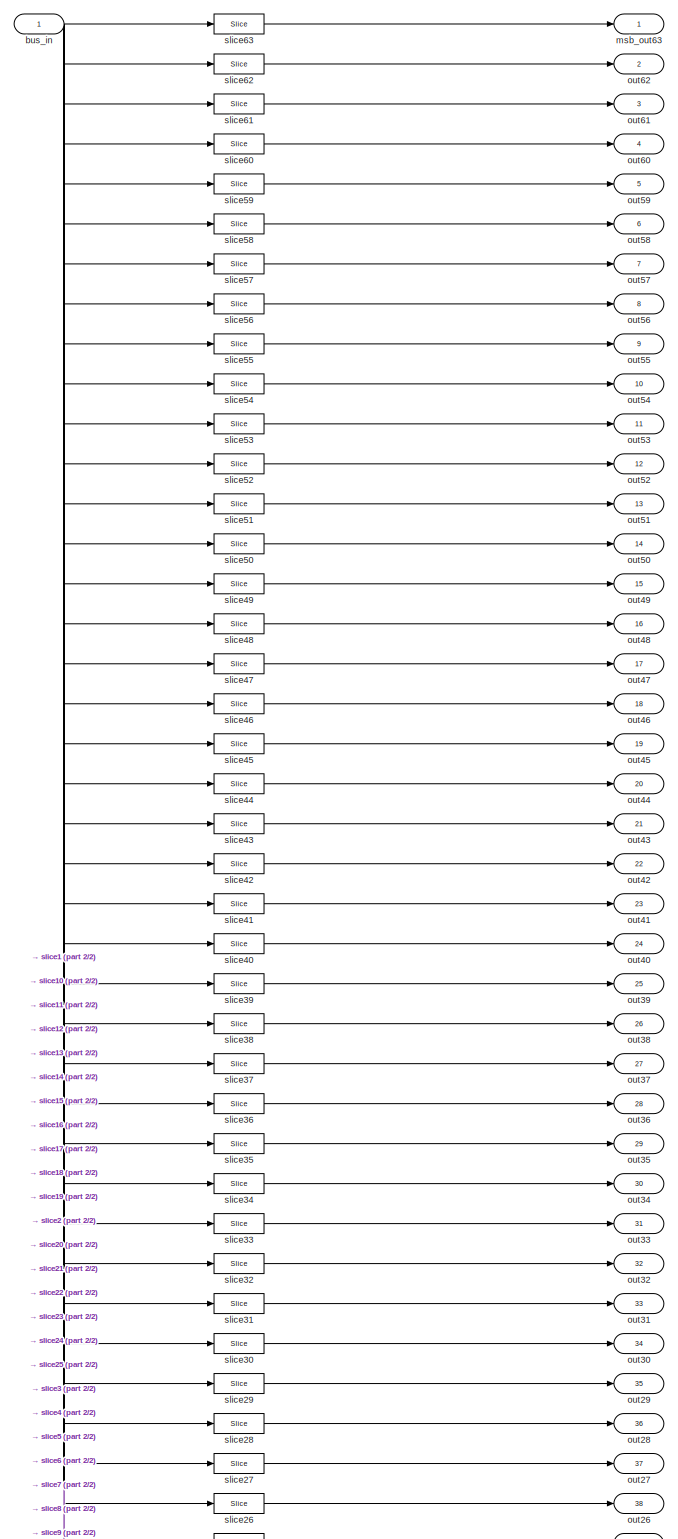
[diagram: data_ins/xor/bus_expand - part 1/2, full width, top band]
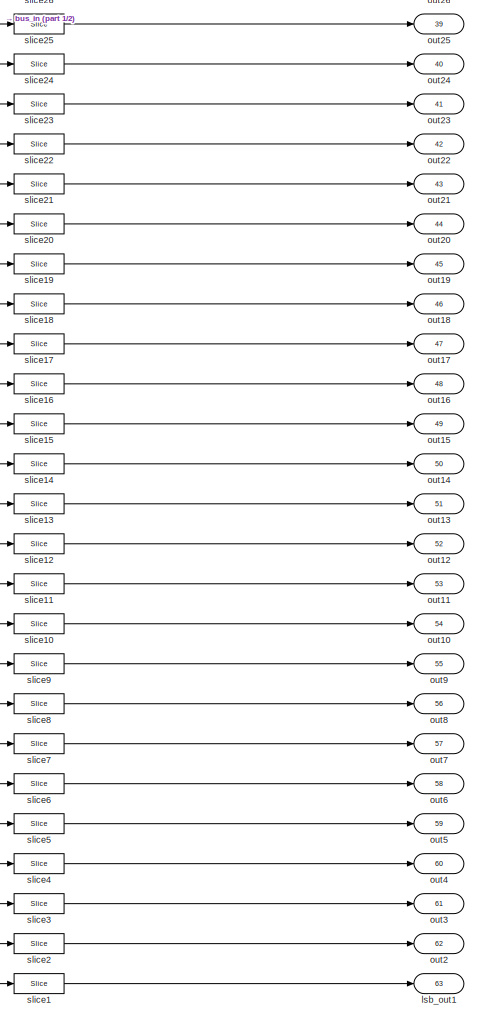
[diagram: data_ins/xor/bus_expand - part 2/2, bottom center region]
BLOCK [SubSystem] data_ins/xor/bus_expand
  AncestorBlock = casper_library_flow_control/bus_expand
  AttributesFormatString = 63 outputs
  Ports = [1, 63]
  RequestExecContextInheritance = off
  UserDataPersistent = on
  Variant = off
BLOCK [Inport] data_ins/xor/bus_expand/bus_in
  IconDisplay = Port number
BLOCK [Outport] data_ins/xor/bus_expand/lsb_out1
  IconDisplay = Port number
  Port = 63
BLOCK [Outport] data_ins/xor/bus_expand/msb_out63
  IconDisplay = Port number
BLOCK [Outport] data_ins/xor/bus_expand/out10
  IconDisplay = Port number
  Port = 54
BLOCK [Outport] data_ins/xor/bus_expand/out11
  IconDisplay = Port number
  Port = 53
BLOCK [Outport] data_ins/xor/bus_expand/out12
  IconDisplay = Port number
  Port = 52
BLOCK [Outport] data_ins/xor/bus_expand/out13
  IconDisplay = Port number
  Port = 51
BLOCK [Outport] data_ins/xor/bus_expand/out14
  IconDisplay = Port number
  Port = 50
BLOCK [Outport] data_ins/xor/bus_expand/out15
  IconDisplay = Port number
  Port = 49
BLOCK [Outport] data_ins/xor/bus_expand/out16
  IconDisplay = Port number
  Port = 48
BLOCK [Outport] data_ins/xor/bus_expand/out17
  IconDisplay = Port number
  Port = 47
BLOCK [Outport] data_ins/xor/bus_expand/out18
  IconDisplay = Port number
  Port = 46
BLOCK [Outport] data_ins/xor/bus_expand/out19
  IconDisplay = Port number
  Port = 45
BLOCK [Outport] data_ins/xor/bus_expand/out2
  IconDisplay = Port number
  Port = 62
BLOCK [Outport] data_ins/xor/bus_expand/out20
  IconDisplay = Port number
  Port = 44
BLOCK [Outport] data_ins/xor/bus_expand/out21
  IconDisplay = Port number
  Port = 43
BLOCK [Outport] data_ins/xor/bus_expand/out22
  IconDisplay = Port number
  Port = 42
BLOCK [Outport] data_ins/xor/bus_expand/out23
  IconDisplay = Port number
  Port = 41
BLOCK [Outport] data_ins/xor/bus_expand/out24
  IconDisplay = Port number
  Port = 40
BLOCK [Outport] data_ins/xor/bus_expand/out25
  IconDisplay = Port number
  Port = 39
BLOCK [Outport] data_ins/xor/bus_expand/out26
  IconDisplay = Port number
  Port = 38
BLOCK [Outport] data_ins/xor/bus_expand/out27
  IconDisplay = Port number
  Port = 37
BLOCK [Outport] data_ins/xor/bus_expand/out28
  IconDisplay = Port number
  Port = 36
BLOCK [Outport] data_ins/xor/bus_expand/out29
  IconDisplay = Port number
  Port = 35
BLOCK [Outport] data_ins/xor/bus_expand/out3
  IconDisplay = Port number
  Port = 61
BLOCK [Outport] data_ins/xor/bus_expand/out30
  IconDisplay = Port number
  Port = 34
BLOCK [Outport] data_ins/xor/bus_expand/out31
  IconDisplay = Port number
  Port = 33
BLOCK [Outport] data_ins/xor/bus_expand/out32
  IconDisplay = Port number
  Port = 32
BLOCK [Outport] data_ins/xor/bus_expand/out33
  IconDisplay = Port number
  Port = 31
BLOCK [Outport] data_ins/xor/bus_expand/out34
  IconDisplay = Port number
  Port = 30
BLOCK [Outport] data_ins/xor/bus_expand/out35
  IconDisplay = Port number
  Port = 29
BLOCK [Outport] data_ins/xor/bus_expand/out36
  IconDisplay = Port number
  Port = 28
BLOCK [Outport] data_ins/xor/bus_expand/out37
  IconDisplay = Port number
  Port = 27
BLOCK [Outport] data_ins/xor/bus_expand/out38
  IconDisplay = Port number
  Port = 26
BLOCK [Outport] data_ins/xor/bus_expand/out39
  IconDisplay = Port number
  Port = 25
BLOCK [Outport] data_ins/xor/bus_expand/out4
  IconDisplay = Port number
  Port = 60
BLOCK [Outport] data_ins/xor/bus_expand/out40
  IconDisplay = Port number
  Port = 24
BLOCK [Outport] data_ins/xor/bus_expand/out41
  IconDisplay = Port number
  Port = 23
BLOCK [Outport] data_ins/xor/bus_expand/out42
  IconDisplay = Port number
  Port = 22
BLOCK [Outport] data_ins/xor/bus_expand/out43
  IconDisplay = Port number
  Port = 21
BLOCK [Outport] data_ins/xor/bus_expand/out44
  IconDisplay = Port number
  Port = 20
BLOCK [Outport] data_ins/xor/bus_expand/out45
  IconDisplay = Port number
  Port = 19
BLOCK [Outport] data_ins/xor/bus_expand/out46
  IconDisplay = Port number
  Port = 18
BLOCK [Outport] data_ins/xor/bus_expand/out47
  IconDisplay = Port number
  Port = 17
BLOCK [Outport] data_ins/xor/bus_expand/out48
  IconDisplay = Port number
  Port = 16
BLOCK [Outport] data_ins/xor/bus_expand/out49
  IconDisplay = Port number
  Port = 15
BLOCK [Outport] data_ins/xor/bus_expand/out5
  IconDisplay = Port number
  Port = 59
BLOCK [Outport] data_ins/xor/bus_expand/out50
  IconDisplay = Port number
  Port = 14
BLOCK [Outport] data_ins/xor/bus_expand/out51
  IconDisplay = Port number
  Port = 13
BLOCK [Outport] data_ins/xor/bus_expand/out52
  IconDisplay = Port number
  Port = 12
BLOCK [Outport] data_ins/xor/bus_expand/out53
  IconDisplay = Port number
  Port = 11
BLOCK [Outport] data_ins/xor/bus_expand/out54
  IconDisplay = Port number
  Port = 10
BLOCK [Outport] data_ins/xor/bus_expand/out55
  IconDisplay = Port number
  Port = 9
BLOCK [Outport] data_ins/xor/bus_expand/out56
  IconDisplay = Port number
  Port = 8
BLOCK [Outport] data_ins/xor/bus_expand/out57
  IconDisplay = Port number
  Port = 7
BLOCK [Outport] data_ins/xor/bus_expand/out58
  IconDisplay = Port number
  Port = 6
BLOCK [Outport] data_ins/xor/bus_expand/out59
  IconDisplay = Port number
  Port = 5
BLOCK [Outport] data_ins/xor/bus_expand/out6
  IconDisplay = Port number
  Port = 58
BLOCK [Outport] data_ins/xor/bus_expand/out60
  IconDisplay = Port number
  Port = 4
BLOCK [Outport] data_ins/xor/bus_expand/out61
  IconDisplay = Port number
  Port = 3
BLOCK [Outport] data_ins/xor/bus_expand/out62
  IconDisplay = Port number
  Port = 2
BLOCK [Outport] data_ins/xor/bus_expand/out7
  IconDisplay = Port number
  Port = 57
BLOCK [Outport] data_ins/xor/bus_expand/out8
  IconDisplay = Port number
  Port = 56
BLOCK [Outport] data_ins/xor/bus_expand/out9
  IconDisplay = Port number
  Port = 55
BLOCK [Reference] data_ins/xor/bus_expand/slice1  REF=xbsIndex_r4/Slice
  Ports = [1, 1]
  SourceBlock = xbsIndex_r4/Slice
  SourceType = Xilinx Bit Slice Extractor Block
BLOCK [Reference] data_ins/xor/bus_expand/slice10  REF=xbsIndex_r4/Slice
  Ports = [1, 1]
  SourceBlock = xbsIndex_r4/Slice
  SourceType = Xilinx Bit Slice Extractor Block
BLOCK [Reference] data_ins/xor/bus_expand/slice11  REF=xbsIndex_r4/Slice
  Ports = [1, 1]
  SourceBlock = xbsIndex_r4/Slice
  SourceType = Xilinx Bit Slice Extractor Block
BLOCK [Reference] data_ins/xor/bus_expand/slice12  REF=xbsIndex_r4/Slice
  Ports = [1, 1]
  SourceBlock = xbsIndex_r4/Slice
  SourceType = Xilinx Bit Slice Extractor Block
BLOCK [Reference] data_ins/xor/bus_expand/slice13  REF=xbsIndex_r4/Slice
  Ports = [1, 1]
  SourceBlock = xbsIndex_r4/Slice
  SourceType = Xilinx Bit Slice Extractor Block
BLOCK [Reference] data_ins/xor/bus_expand/slice14  REF=xbsIndex_r4/Slice
  Ports = [1, 1]
  SourceBlock = xbsIndex_r4/Slice
  SourceType = Xilinx Bit Slice Extractor Block
BLOCK [Reference] data_ins/xor/bus_expand/slice15  REF=xbsIndex_r4/Slice
  Ports = [1, 1]
  SourceBlock = xbsIndex_r4/Slice
  SourceType = Xilinx Bit Slice Extractor Block
BLOCK [Reference] data_ins/xor/bus_expand/slice16  REF=xbsIndex_r4/Slice
  Ports = [1, 1]
  SourceBlock = xbsIndex_r4/Slice
  SourceType = Xilinx Bit Slice Extractor Block
BLOCK [Reference] data_ins/xor/bus_expand/slice17  REF=xbsIndex_r4/Slice
  Ports = [1, 1]
  SourceBlock = xbsIndex_r4/Slice
  SourceType = Xilinx Bit Slice Extractor Block
BLOCK [Reference] data_ins/xor/bus_expand/slice18  REF=xbsIndex_r4/Slice
  Ports = [1, 1]
  SourceBlock = xbsIndex_r4/Slice
  SourceType = Xilinx Bit Slice Extractor Block
BLOCK [Reference] data_ins/xor/bus_expand/slice19  REF=xbsIndex_r4/Slice
  Ports = [1, 1]
  SourceBlock = xbsIndex_r4/Slice
  SourceType = Xilinx Bit Slice Extractor Block
BLOCK [Reference] data_ins/xor/bus_expand/slice2  REF=xbsIndex_r4/Slice
  Ports = [1, 1]
  SourceBlock = xbsIndex_r4/Slice
  SourceType = Xilinx Bit Slice Extractor Block
BLOCK [Reference] data_ins/xor/bus_expand/slice20  REF=xbsIndex_r4/Slice
  Ports = [1, 1]
  SourceBlock = xbsIndex_r4/Slice
  SourceType = Xilinx Bit Slice Extractor Block
BLOCK [Reference] data_ins/xor/bus_expand/slice21  REF=xbsIndex_r4/Slice
  Ports = [1, 1]
  SourceBlock = xbsIndex_r4/Slice
  SourceType = Xilinx Bit Slice Extractor Block
BLOCK [Reference] data_ins/xor/bus_expand/slice22  REF=xbsIndex_r4/Slice
  Ports = [1, 1]
  SourceBlock = xbsIndex_r4/Slice
  SourceType = Xilinx Bit Slice Extractor Block
BLOCK [Reference] data_ins/xor/bus_expand/slice23  REF=xbsIndex_r4/Slice
  Ports = [1, 1]
  SourceBlock = xbsIndex_r4/Slice
  SourceType = Xilinx Bit Slice Extractor Block
BLOCK [Reference] data_ins/xor/bus_expand/slice24  REF=xbsIndex_r4/Slice
  Ports = [1, 1]
  SourceBlock = xbsIndex_r4/Slice
  SourceType = Xilinx Bit Slice Extractor Block
BLOCK [Reference] data_ins/xor/bus_expand/slice25  REF=xbsIndex_r4/Slice
  Ports = [1, 1]
  SourceBlock = xbsIndex_r4/Slice
  SourceType = Xilinx Bit Slice Extractor Block
BLOCK [Reference] data_ins/xor/bus_expand/slice26  REF=xbsIndex_r4/Slice
  Ports = [1, 1]
  SourceBlock = xbsIndex_r4/Slice
  SourceType = Xilinx Bit Slice Extractor Block
BLOCK [Reference] data_ins/xor/bus_expand/slice27  REF=xbsIndex_r4/Slice
  Ports = [1, 1]
  SourceBlock = xbsIndex_r4/Slice
  SourceType = Xilinx Bit Slice Extractor Block
BLOCK [Reference] data_ins/xor/bus_expand/slice28  REF=xbsIndex_r4/Slice
  Ports = [1, 1]
  SourceBlock = xbsIndex_r4/Slice
  SourceType = Xilinx Bit Slice Extractor Block
BLOCK [Reference] data_ins/xor/bus_expand/slice29  REF=xbsIndex_r4/Slice
  Ports = [1, 1]
  SourceBlock = xbsIndex_r4/Slice
  SourceType = Xilinx Bit Slice Extractor Block
BLOCK [Reference] data_ins/xor/bus_expand/slice3  REF=xbsIndex_r4/Slice
  Ports = [1, 1]
  SourceBlock = xbsIndex_r4/Slice
  SourceType = Xilinx Bit Slice Extractor Block
BLOCK [Reference] data_ins/xor/bus_expand/slice30  REF=xbsIndex_r4/Slice
  Ports = [1, 1]
  SourceBlock = xbsIndex_r4/Slice
  SourceType = Xilinx Bit Slice Extractor Block
BLOCK [Reference] data_ins/xor/bus_expand/slice31  REF=xbsIndex_r4/Slice
  Ports = [1, 1]
  SourceBlock = xbsIndex_r4/Slice
  SourceType = Xilinx Bit Slice Extractor Block
BLOCK [Reference] data_ins/xor/bus_expand/slice32  REF=xbsIndex_r4/Slice
  Ports = [1, 1]
  SourceBlock = xbsIndex_r4/Slice
  SourceType = Xilinx Bit Slice Extractor Block
BLOCK [Reference] data_ins/xor/bus_expand/slice33  REF=xbsIndex_r4/Slice
  Ports = [1, 1]
  SourceBlock = xbsIndex_r4/Slice
  SourceType = Xilinx Bit Slice Extractor Block
BLOCK [Reference] data_ins/xor/bus_expand/slice34  REF=xbsIndex_r4/Slice
  Ports = [1, 1]
  SourceBlock = xbsIndex_r4/Slice
  SourceType = Xilinx Bit Slice Extractor Block
BLOCK [Reference] data_ins/xor/bus_expand/slice35  REF=xbsIndex_r4/Slice
  Ports = [1, 1]
  SourceBlock = xbsIndex_r4/Slice
  SourceType = Xilinx Bit Slice Extractor Block
BLOCK [Reference] data_ins/xor/bus_expand/slice36  REF=xbsIndex_r4/Slice
  Ports = [1, 1]
  SourceBlock = xbsIndex_r4/Slice
  SourceType = Xilinx Bit Slice Extractor Block
BLOCK [Reference] data_ins/xor/bus_expand/slice37  REF=xbsIndex_r4/Slice
  Ports = [1, 1]
  SourceBlock = xbsIndex_r4/Slice
  SourceType = Xilinx Bit Slice Extractor Block
BLOCK [Reference] data_ins/xor/bus_expand/slice38  REF=xbsIndex_r4/Slice
  Ports = [1, 1]
  SourceBlock = xbsIndex_r4/Slice
  SourceType = Xilinx Bit Slice Extractor Block
BLOCK [Reference] data_ins/xor/bus_expand/slice39  REF=xbsIndex_r4/Slice
  Ports = [1, 1]
  SourceBlock = xbsIndex_r4/Slice
  SourceType = Xilinx Bit Slice Extractor Block
BLOCK [Reference] data_ins/xor/bus_expand/slice4  REF=xbsIndex_r4/Slice
  Ports = [1, 1]
  SourceBlock = xbsIndex_r4/Slice
  SourceType = Xilinx Bit Slice Extractor Block
BLOCK [Reference] data_ins/xor/bus_expand/slice40  REF=xbsIndex_r4/Slice
  Ports = [1, 1]
  SourceBlock = xbsIndex_r4/Slice
  SourceType = Xilinx Bit Slice Extractor Block
BLOCK [Reference] data_ins/xor/bus_expand/slice41  REF=xbsIndex_r4/Slice
  Ports = [1, 1]
  SourceBlock = xbsIndex_r4/Slice
  SourceType = Xilinx Bit Slice Extractor Block
BLOCK [Reference] data_ins/xor/bus_expand/slice42  REF=xbsIndex_r4/Slice
  Ports = [1, 1]
  SourceBlock = xbsIndex_r4/Slice
  SourceType = Xilinx Bit Slice Extractor Block
BLOCK [Reference] data_ins/xor/bus_expand/slice43  REF=xbsIndex_r4/Slice
  Ports = [1, 1]
  SourceBlock = xbsIndex_r4/Slice
  SourceType = Xilinx Bit Slice Extractor Block
BLOCK [Reference] data_ins/xor/bus_expand/slice44  REF=xbsIndex_r4/Slice
  Ports = [1, 1]
  SourceBlock = xbsIndex_r4/Slice
  SourceType = Xilinx Bit Slice Extractor Block
BLOCK [Reference] data_ins/xor/bus_expand/slice45  REF=xbsIndex_r4/Slice
  Ports = [1, 1]
  SourceBlock = xbsIndex_r4/Slice
  SourceType = Xilinx Bit Slice Extractor Block
BLOCK [Reference] data_ins/xor/bus_expand/slice46  REF=xbsIndex_r4/Slice
  Ports = [1, 1]
  SourceBlock = xbsIndex_r4/Slice
  SourceType = Xilinx Bit Slice Extractor Block
BLOCK [Reference] data_ins/xor/bus_expand/slice47  REF=xbsIndex_r4/Slice
  Ports = [1, 1]
  SourceBlock = xbsIndex_r4/Slice
  SourceType = Xilinx Bit Slice Extractor Block
BLOCK [Reference] data_ins/xor/bus_expand/slice48  REF=xbsIndex_r4/Slice
  Ports = [1, 1]
  SourceBlock = xbsIndex_r4/Slice
  SourceType = Xilinx Bit Slice Extractor Block
BLOCK [Reference] data_ins/xor/bus_expand/slice49  REF=xbsIndex_r4/Slice
  Ports = [1, 1]
  SourceBlock = xbsIndex_r4/Slice
  SourceType = Xilinx Bit Slice Extractor Block
BLOCK [Reference] data_ins/xor/bus_expand/slice5  REF=xbsIndex_r4/Slice
  Ports = [1, 1]
  SourceBlock = xbsIndex_r4/Slice
  SourceType = Xilinx Bit Slice Extractor Block
BLOCK [Reference] data_ins/xor/bus_expand/slice50  REF=xbsIndex_r4/Slice
  Ports = [1, 1]
  SourceBlock = xbsIndex_r4/Slice
  SourceType = Xilinx Bit Slice Extractor Block
BLOCK [Reference] data_ins/xor/bus_expand/slice51  REF=xbsIndex_r4/Slice
  Ports = [1, 1]
  SourceBlock = xbsIndex_r4/Slice
  SourceType = Xilinx Bit Slice Extractor Block
BLOCK [Reference] data_ins/xor/bus_expand/slice52  REF=xbsIndex_r4/Slice
  Ports = [1, 1]
  SourceBlock = xbsIndex_r4/Slice
  SourceType = Xilinx Bit Slice Extractor Block
BLOCK [Reference] data_ins/xor/bus_expand/slice53  REF=xbsIndex_r4/Slice
  Ports = [1, 1]
  SourceBlock = xbsIndex_r4/Slice
  SourceType = Xilinx Bit Slice Extractor Block
BLOCK [Reference] data_ins/xor/bus_expand/slice54  REF=xbsIndex_r4/Slice
  Ports = [1, 1]
  SourceBlock = xbsIndex_r4/Slice
  SourceType = Xilinx Bit Slice Extractor Block
BLOCK [Reference] data_ins/xor/bus_expand/slice55  REF=xbsIndex_r4/Slice
  Ports = [1, 1]
  SourceBlock = xbsIndex_r4/Slice
  SourceType = Xilinx Bit Slice Extractor Block
BLOCK [Reference] data_ins/xor/bus_expand/slice56  REF=xbsIndex_r4/Slice
  Ports = [1, 1]
  SourceBlock = xbsIndex_r4/Slice
  SourceType = Xilinx Bit Slice Extractor Block
BLOCK [Reference] data_ins/xor/bus_expand/slice57  REF=xbsIndex_r4/Slice
  Ports = [1, 1]
  SourceBlock = xbsIndex_r4/Slice
  SourceType = Xilinx Bit Slice Extractor Block
BLOCK [Reference] data_ins/xor/bus_expand/slice58  REF=xbsIndex_r4/Slice
  Ports = [1, 1]
  SourceBlock = xbsIndex_r4/Slice
  SourceType = Xilinx Bit Slice Extractor Block
BLOCK [Reference] data_ins/xor/bus_expand/slice59  REF=xbsIndex_r4/Slice
  Ports = [1, 1]
  SourceBlock = xbsIndex_r4/Slice
  SourceType = Xilinx Bit Slice Extractor Block
BLOCK [Reference] data_ins/xor/bus_expand/slice6  REF=xbsIndex_r4/Slice
  Ports = [1, 1]
  SourceBlock = xbsIndex_r4/Slice
  SourceType = Xilinx Bit Slice Extractor Block
BLOCK [Reference] data_ins/xor/bus_expand/slice60  REF=xbsIndex_r4/Slice
  Ports = [1, 1]
  SourceBlock = xbsIndex_r4/Slice
  SourceType = Xilinx Bit Slice Extractor Block
BLOCK [Reference] data_ins/xor/bus_expand/slice61  REF=xbsIndex_r4/Slice
  Ports = [1, 1]
  SourceBlock = xbsIndex_r4/Slice
  SourceType = Xilinx Bit Slice Extractor Block
BLOCK [Reference] data_ins/xor/bus_expand/slice62  REF=xbsIndex_r4/Slice
  Ports = [1, 1]
  SourceBlock = xbsIndex_r4/Slice
  SourceType = Xilinx Bit Slice Extractor Block
BLOCK [Reference] data_ins/xor/bus_expand/slice63  REF=xbsIndex_r4/Slice
  Ports = [1, 1]
  SourceBlock = xbsIndex_r4/Slice
  SourceType = Xilinx Bit Slice Extractor Block
BLOCK [Reference] data_ins/xor/bus_expand/slice7  REF=xbsIndex_r4/Slice
  Ports = [1, 1]
  SourceBlock = xbsIndex_r4/Slice
  SourceType = Xilinx Bit Slice Extractor Block
BLOCK [Reference] data_ins/xor/bus_expand/slice8  REF=xbsIndex_r4/Slice
  Ports = [1, 1]
  SourceBlock = xbsIndex_r4/Slice
  SourceType = Xilinx Bit Slice Extractor Block
BLOCK [Reference] data_ins/xor/bus_expand/slice9  REF=xbsIndex_r4/Slice
  Ports = [1, 1]
  SourceBlock = xbsIndex_r4/Slice
  SourceType = Xilinx Bit Slice Extractor Block
BLOCK [SubSystem] debug0
  AncestorBlock = xps_library/software register
  AttributesFormatString = 1output:uf32.0 = 32 bits
  Ports = [1, 1]
  RequestExecContextInheritance = off
  Tag = xps:sw_reg
  Variant = off
BLOCK [Reference] debug0/assert_reg  REF=xbsIndex_r4/Assert
  Ports = [1, 1]
  SourceBlock = xbsIndex_r4/Assert
  SourceType = Xilinx Assert Block
BLOCK [Reference] debug0/cast_gw  REF=xbsIndex_r4/Convert
  Ports = [1, 1]
  SourceBlock = xbsIndex_r4/Convert
  SourceType = Xilinx Type Converter Block
BLOCK [Reference] debug0/io_delay  REF=xbsIndex_r4/Delay
  Ports = [1, 1]
  SourceBlock = xbsIndex_r4/Delay
  SourceType = Xilinx Delay Block
BLOCK [Inport] debug0/out_reg
  IconDisplay = Port number
BLOCK [Reference] debug0/reint1  REF=xbsIndex_r4/Reinterpret
  Ports = [1, 1]
  SourceBlock = xbsIndex_r4/Reinterpret
  SourceType = Xilinx Type Reinterpreter Block
BLOCK [Outport] debug0/sim_out
  IconDisplay = Port number
BLOCK [Reference] debug0/test_hmc_debug0_user_data_in  REF=xbsIndex_r4/Gateway Out
  Ports = [1, 1]
  SourceBlock = xbsIndex_r4/Gateway Out
  SourceType = Xilinx Gateway Out Block
BLOCK [Reference] empty_rd_cntr  REF=xbsIndex_r4/Counter
  Ports = [2, 1]
  SourceBlock = xbsIndex_r4/Counter
  SourceType = Xilinx Counter Block
BLOCK [Reference] empty_wr_cntr  REF=xbsIndex_r4/Counter
  Ports = [2, 1]
  SourceBlock = xbsIndex_r4/Counter
  SourceType = Xilinx Counter Block
BLOCK [Constant] err_clear_sim10
  Value = 0
BLOCK [Constant] err_clear_sim11
BLOCK [Constant] err_clear_sim12
BLOCK [Constant] err_clear_sim13
  Value = 0
BLOCK [Constant] err_clear_sim8
BLOCK [Constant] err_clear_sim9
BLOCK [SubSystem] errstat_link2
  AncestorBlock = xps_library/software register
  AttributesFormatString = 1output:uf32.0 = 32 bits
  Ports = [1, 1]
  RequestExecContextInheritance = off
  Tag = xps:sw_reg
  Variant = off
BLOCK [Reference] errstat_link2/assert_reg  REF=xbsIndex_r4/Assert
  Ports = [1, 1]
  SourceBlock = xbsIndex_r4/Assert
  SourceType = Xilinx Assert Block
BLOCK [Reference] errstat_link2/cast_gw  REF=xbsIndex_r4/Convert
  Ports = [1, 1]
  SourceBlock = xbsIndex_r4/Convert
  SourceType = Xilinx Type Converter Block
BLOCK [Reference] errstat_link2/io_delay  REF=xbsIndex_r4/Delay
  Ports = [1, 1]
  SourceBlock = xbsIndex_r4/Delay
  SourceType = Xilinx Delay Block
BLOCK [Inport] errstat_link2/out_reg
  IconDisplay = Port number
BLOCK [Reference] errstat_link2/reint1  REF=xbsIndex_r4/Reinterpret
  Ports = [1, 1]
  SourceBlock = xbsIndex_r4/Reinterpret
  SourceType = Xilinx Type Reinterpreter Block
BLOCK [Outport] errstat_link2/sim_out
  IconDisplay = Port number
BLOCK [Reference] errstat_link2/test_hmc_rx_crc_err_cnt_link1_user_data_in  REF=xbsIndex_r4/Gateway Out
  Ports = [1, 1]
  SourceBlock = xbsIndex_r4/Gateway Out
  SourceType = Xilinx Gateway Out Block
BLOCK [SubSystem] errstat_link3
  AncestorBlock = xps_library/software register
  AttributesFormatString = 1output:uf32.0 = 32 bits
  Ports = [1, 1]
  RequestExecContextInheritance = off
  Tag = xps:sw_reg
  Variant = off
BLOCK [Reference] errstat_link3/assert_reg  REF=xbsIndex_r4/Assert
  Ports = [1, 1]
  SourceBlock = xbsIndex_r4/Assert
  SourceType = Xilinx Assert Block
BLOCK [Reference] errstat_link3/cast_gw  REF=xbsIndex_r4/Convert
  Ports = [1, 1]
  SourceBlock = xbsIndex_r4/Convert
  SourceType = Xilinx Type Converter Block
BLOCK [Reference] errstat_link3/io_delay  REF=xbsIndex_r4/Delay
  Ports = [1, 1]
  SourceBlock = xbsIndex_r4/Delay
  SourceType = Xilinx Delay Block
BLOCK [Inport] errstat_link3/out_reg
  IconDisplay = Port number
BLOCK [Reference] errstat_link3/reint1  REF=xbsIndex_r4/Reinterpret
  Ports = [1, 1]
  SourceBlock = xbsIndex_r4/Reinterpret
  SourceType = Xilinx Type Reinterpreter Block
BLOCK [Outport] errstat_link3/sim_out
  IconDisplay = Port number
BLOCK [Reference] errstat_link3/test_hmc_rx_crc_err_cnt_link1_user_data_in  REF=xbsIndex_r4/Gateway Out
  Ports = [1, 1]
  SourceBlock = xbsIndex_r4/Gateway Out
  SourceType = Xilinx Gateway Out Block
BLOCK [SubSystem] forty_gbe
  AncestorBlock = xps_library/forty_gbe
  Ports = [9, 14]
  RequestExecContextInheritance = off
  Tag = xps:forty_gbe
  Variant = off
BLOCK [Constant] forty_gbe/Constant1
  Value = 0
BLOCK [Constant] forty_gbe/Constant10
  Value = 0
BLOCK [Constant] forty_gbe/Constant11
  Value = 0
BLOCK [Constant] forty_gbe/Constant12
  Value = 0
BLOCK [Constant] forty_gbe/Constant13
  Value = 0
BLOCK [Constant] forty_gbe/Constant14
  Value = 0
BLOCK [Constant] forty_gbe/Constant2
  Value = 0
BLOCK [Constant] forty_gbe/Constant3
  Value = 0
BLOCK [Constant] forty_gbe/Constant4
  Value = 0
BLOCK [Constant] forty_gbe/Constant5
  Value = 0
BLOCK [Constant] forty_gbe/Constant6
  Value = 0
BLOCK [Constant] forty_gbe/Constant7
  Value = 0
BLOCK [Constant] forty_gbe/Constant8
  Value = 0
BLOCK [Constant] forty_gbe/Constant9
  Value = 0
BLOCK [Terminator] forty_gbe/Terminator
BLOCK [Terminator] forty_gbe/Terminator1
BLOCK [Terminator] forty_gbe/Terminator2
BLOCK [Terminator] forty_gbe/Terminator3
BLOCK [Terminator] forty_gbe/Terminator5
BLOCK [Terminator] forty_gbe/Terminator6
BLOCK [Terminator] forty_gbe/Terminator7
BLOCK [Terminator] forty_gbe/Terminator8
BLOCK [Reference] forty_gbe/convert_rst  REF=xbsIndex_r4/Convert
  Ports = [1, 1]
  SourceBlock = xbsIndex_r4/Convert
  SourceType = Xilinx Type Converter Block
BLOCK [Reference] forty_gbe/convert_rx_ack  REF=xbsIndex_r4/Convert
  Ports = [1, 1]
  SourceBlock = xbsIndex_r4/Convert
  SourceType = Xilinx Type Converter Block
BLOCK [Reference] forty_gbe/convert_rx_overrun_ack  REF=xbsIndex_r4/Convert
  Ports = [1, 1]
  SourceBlock = xbsIndex_r4/Convert
  SourceType = Xilinx Type Converter Block
BLOCK [Reference] forty_gbe/convert_tx_data  REF=xbsIndex_r4/Convert
  Ports = [1, 1]
  SourceBlock = xbsIndex_r4/Convert
  SourceType = Xilinx Type Converter Block
BLOCK [Reference] forty_gbe/convert_tx_dest_ip  REF=xbsIndex_r4/Convert
  Ports = [1, 1]
  SourceBlock = xbsIndex_r4/Convert
  SourceType = Xilinx Type Converter Block
BLOCK [Reference] forty_gbe/convert_tx_end_of_frame  REF=xbsIndex_r4/Convert
  Ports = [1, 1]
  SourceBlock = xbsIndex_r4/Convert
  SourceType = Xilinx Type Converter Block
BLOCK [Reference] forty_gbe/convert_tx_port  REF=xbsIndex_r4/Convert
  Ports = [1, 1]
  SourceBlock = xbsIndex_r4/Convert
  SourceType = Xilinx Type Converter Block
BLOCK [Reference] forty_gbe/convert_tx_valid  REF=xbsIndex_r4/Convert
  Ports = [1, 1]
  SourceBlock = xbsIndex_r4/Convert
  SourceType = Xilinx Type Converter Block
BLOCK [Inport] forty_gbe/debug_rst
  IconDisplay = Port number
  Port = 9
BLOCK [Outport] forty_gbe/led_rx
  IconDisplay = Port number
  Port = 2
BLOCK [Outport] forty_gbe/led_tx
  IconDisplay = Port number
  Port = 3
BLOCK [Outport] forty_gbe/led_up
  IconDisplay = Port number
BLOCK [Inport] forty_gbe/rst
  IconDisplay = Port number
BLOCK [Inport] forty_gbe/rx_ack
  IconDisplay = Port number
  Port = 7
BLOCK [Outport] forty_gbe/rx_bad_frame
  IconDisplay = Port number
  Port = 11
BLOCK [Outport] forty_gbe/rx_data
  IconDisplay = Port number
  Port = 6
BLOCK [Outport] forty_gbe/rx_dest_ip
  IconDisplay = Port number
  Port = 13
BLOCK [Outport] forty_gbe/rx_dest_port
  IconDisplay = Port number
  Port = 14
BLOCK [Outport] forty_gbe/rx_end_of_frame
  IconDisplay = Port number
  Port = 10
BLOCK [Outport] forty_gbe/rx_overrun
  IconDisplay = Port number
  Port = 12
BLOCK [Inport] forty_gbe/rx_overrun_ack
  IconDisplay = Port number
  Port = 8
BLOCK [Outport] forty_gbe/rx_source_ip
  IconDisplay = Port number
  Port = 8
BLOCK [Outport] forty_gbe/rx_source_port
  IconDisplay = Port number
  Port = 9
BLOCK [Outport] forty_gbe/rx_valid
  IconDisplay = Port number
  Port = 7
BLOCK [Terminator] forty_gbe/term1
BLOCK [Reference] forty_gbe/test_hmc_link2_forty_gbe_led_rx  REF=xbsIndex_r4/Gateway In
  Ports = [1, 1]
  SourceBlock = xbsIndex_r4/Gateway In
  SourceType = Xilinx Gateway In Block
BLOCK [Reference] forty_gbe/test_hmc_link2_forty_gbe_led_tx  REF=xbsIndex_r4/Gateway In
  Ports = [1, 1]
  SourceBlock = xbsIndex_r4/Gateway In
  SourceType = Xilinx Gateway In Block
BLOCK [Reference] forty_gbe/test_hmc_link2_forty_gbe_led_up  REF=xbsIndex_r4/Gateway In
  Ports = [1, 1]
  SourceBlock = xbsIndex_r4/Gateway In
  SourceType = Xilinx Gateway In Block
BLOCK [Reference] forty_gbe/test_hmc_link2_forty_gbe_rst  REF=xbsIndex_r4/Gateway Out
  Ports = [1, 1]
  SourceBlock = xbsIndex_r4/Gateway Out
  SourceType = Xilinx Gateway Out Block
BLOCK [Reference] forty_gbe/test_hmc_link2_forty_gbe_rx_ack  REF=xbsIndex_r4/Gateway Out
  Ports = [1, 1]
  SourceBlock = xbsIndex_r4/Gateway Out
  SourceType = Xilinx Gateway Out Block
BLOCK [Reference] forty_gbe/test_hmc_link2_forty_gbe_rx_bad_frame  REF=xbsIndex_r4/Gateway In
  Ports = [1, 1]
  SourceBlock = xbsIndex_r4/Gateway In
  SourceType = Xilinx Gateway In Block
BLOCK [Reference] forty_gbe/test_hmc_link2_forty_gbe_rx_data  REF=xbsIndex_r4/Gateway In
  Ports = [1, 1]
  SourceBlock = xbsIndex_r4/Gateway In
  SourceType = Xilinx Gateway In Block
BLOCK [Reference] forty_gbe/test_hmc_link2_forty_gbe_rx_dest_ip  REF=xbsIndex_r4/Gateway In
  Ports = [1, 1]
  SourceBlock = xbsIndex_r4/Gateway In
  SourceType = Xilinx Gateway In Block
BLOCK [Reference] forty_gbe/test_hmc_link2_forty_gbe_rx_dest_port  REF=xbsIndex_r4/Gateway In
  Ports = [1, 1]
  SourceBlock = xbsIndex_r4/Gateway In
  SourceType = Xilinx Gateway In Block
BLOCK [Reference] forty_gbe/test_hmc_link2_forty_gbe_rx_end_of_frame  REF=xbsIndex_r4/Gateway In
  Ports = [1, 1]
  SourceBlock = xbsIndex_r4/Gateway In
  SourceType = Xilinx Gateway In Block
BLOCK [Reference] forty_gbe/test_hmc_link2_forty_gbe_rx_overrun  REF=xbsIndex_r4/Gateway In
  Ports = [1, 1]
  SourceBlock = xbsIndex_r4/Gateway In
  SourceType = Xilinx Gateway In Block
BLOCK [Reference] forty_gbe/test_hmc_link2_forty_gbe_rx_overrun_ack  REF=xbsIndex_r4/Gateway Out
  Ports = [1, 1]
  SourceBlock = xbsIndex_r4/Gateway Out
  SourceType = Xilinx Gateway Out Block
BLOCK [Reference] forty_gbe/test_hmc_link2_forty_gbe_rx_source_ip  REF=xbsIndex_r4/Gateway In
  Ports = [1, 1]
  SourceBlock = xbsIndex_r4/Gateway In
  SourceType = Xilinx Gateway In Block
BLOCK [Reference] forty_gbe/test_hmc_link2_forty_gbe_rx_source_port  REF=xbsIndex_r4/Gateway In
  Ports = [1, 1]
  SourceBlock = xbsIndex_r4/Gateway In
  SourceType = Xilinx Gateway In Block
BLOCK [Reference] forty_gbe/test_hmc_link2_forty_gbe_rx_valid  REF=xbsIndex_r4/Gateway In
  Ports = [1, 1]
  SourceBlock = xbsIndex_r4/Gateway In
  SourceType = Xilinx Gateway In Block
BLOCK [Reference] forty_gbe/test_hmc_link2_forty_gbe_tx_afull  REF=xbsIndex_r4/Gateway In
  Ports = [1, 1]
  SourceBlock = xbsIndex_r4/Gateway In
  SourceType = Xilinx Gateway In Block
BLOCK [Reference] forty_gbe/test_hmc_link2_forty_gbe_tx_data  REF=xbsIndex_r4/Gateway Out
  Ports = [1, 1]
  SourceBlock = xbsIndex_r4/Gateway Out
  SourceType = Xilinx Gateway Out Block
BLOCK [Reference] forty_gbe/test_hmc_link2_forty_gbe_tx_dest_ip  REF=xbsIndex_r4/Gateway Out
  Ports = [1, 1]
  SourceBlock = xbsIndex_r4/Gateway Out
  SourceType = Xilinx Gateway Out Block
BLOCK [Reference] forty_gbe/test_hmc_link2_forty_gbe_tx_dest_port  REF=xbsIndex_r4/Gateway Out
  Ports = [1, 1]
  SourceBlock = xbsIndex_r4/Gateway Out
  SourceType = Xilinx Gateway Out Block
BLOCK [Reference] forty_gbe/test_hmc_link2_forty_gbe_tx_end_of_frame  REF=xbsIndex_r4/Gateway Out
  Ports = [1, 1]
  SourceBlock = xbsIndex_r4/Gateway Out
  SourceType = Xilinx Gateway Out Block
BLOCK [Reference] forty_gbe/test_hmc_link2_forty_gbe_tx_overflow  REF=xbsIndex_r4/Gateway In
  Ports = [1, 1]
  SourceBlock = xbsIndex_r4/Gateway In
  SourceType = Xilinx Gateway In Block
BLOCK [Reference] forty_gbe/test_hmc_link2_forty_gbe_tx_valid  REF=xbsIndex_r4/Gateway Out
  Ports = [1, 1]
  SourceBlock = xbsIndex_r4/Gateway Out
  SourceType = Xilinx Gateway Out Block
BLOCK [Outport] forty_gbe/tx_afull
  IconDisplay = Port number
  Port = 4
BLOCK [Inport] forty_gbe/tx_data
  IconDisplay = Port number
  Port = 2
BLOCK [Inport] forty_gbe/tx_dest_ip
  IconDisplay = Port number
  Port = 4
BLOCK [Inport] forty_gbe/tx_dest_port
  IconDisplay = Port number
  Port = 5
BLOCK [Inport] forty_gbe/tx_end_of_frame
  IconDisplay = Port number
  Port = 6
BLOCK [Outport] forty_gbe/tx_overflow
  IconDisplay = Port number
  Port = 5
BLOCK [Inport] forty_gbe/tx_valid
  IconDisplay = Port number
  Port = 3
BLOCK [Reference] hmc  REF=xps_library/hmc  (lib defined in mdl_00b5cec29cd0, mdl_02ab6ecaa3d1, +5 more)
  Ports = [12, 16]
  SourceBlock = xps_library/hmc
  SourceType = hmc
  Tag = xps:hmc
BLOCK [SubSystem] hmc_empty_rd_cnt
  AncestorBlock = xps_library/software_register
  AttributesFormatString = 1output:uf32.0 = 32 bits
  Ports = [1]
  RequestExecContextInheritance = off
  Tag = xps:sw_reg
  Variant = off
BLOCK [Reference] hmc_empty_rd_cnt/assert_reg  REF=xbsIndex_r4/Assert
  Ports = [1, 1]
  SourceBlock = xbsIndex_r4/Assert
  SourceType = Xilinx Assert Block
BLOCK [Reference] hmc_empty_rd_cnt/cast_gw  REF=xbsIndex_r4/Convert
  Ports = [1, 1]
  SourceBlock = xbsIndex_r4/Convert
  SourceType = Xilinx Type Converter Block
BLOCK [Reference] hmc_empty_rd_cnt/io_delay  REF=xbsIndex_r4/Delay
  Ports = [1, 1]
  SourceBlock = xbsIndex_r4/Delay
  SourceType = Xilinx Delay Block
BLOCK [Inport] hmc_empty_rd_cnt/out_reg
  IconDisplay = Port number
BLOCK [Reference] hmc_empty_rd_cnt/reint1  REF=xbsIndex_r4/Reinterpret
  Ports = [1, 1]
  SourceBlock = xbsIndex_r4/Reinterpret
  SourceType = Xilinx Type Reinterpreter Block
BLOCK [Terminator] hmc_empty_rd_cnt/sim_out
BLOCK [Reference] hmc_empty_rd_cnt/test_hmc_hmc_empty_rd_cnt_user_data_in  REF=xbsIndex_r4/Gateway Out
  Ports = [1, 1]
  SourceBlock = xbsIndex_r4/Gateway Out
  SourceType = Xilinx Gateway Out Block
BLOCK [SubSystem] hmc_empty_wr_cnt
  AncestorBlock = xps_library/software_register
  AttributesFormatString = 1output:uf32.0 = 32 bits
  Ports = [1]
  RequestExecContextInheritance = off
  Tag = xps:sw_reg
  Variant = off
BLOCK [Reference] hmc_empty_wr_cnt/assert_reg  REF=xbsIndex_r4/Assert
  Ports = [1, 1]
  SourceBlock = xbsIndex_r4/Assert
  SourceType = Xilinx Assert Block
BLOCK [Reference] hmc_empty_wr_cnt/cast_gw  REF=xbsIndex_r4/Convert
  Ports = [1, 1]
  SourceBlock = xbsIndex_r4/Convert
  SourceType = Xilinx Type Converter Block
BLOCK [Reference] hmc_empty_wr_cnt/io_delay  REF=xbsIndex_r4/Delay
  Ports = [1, 1]
  SourceBlock = xbsIndex_r4/Delay
  SourceType = Xilinx Delay Block
BLOCK [Inport] hmc_empty_wr_cnt/out_reg
  IconDisplay = Port number
BLOCK [Reference] hmc_empty_wr_cnt/reint1  REF=xbsIndex_r4/Reinterpret
  Ports = [1, 1]
  SourceBlock = xbsIndex_r4/Reinterpret
  SourceType = Xilinx Type Reinterpreter Block
BLOCK [Terminator] hmc_empty_wr_cnt/sim_out
BLOCK [Reference] hmc_empty_wr_cnt/test_hmc_hmc_empty_wr_cnt_user_data_in  REF=xbsIndex_r4/Gateway Out
  Ports = [1, 1]
  SourceBlock = xbsIndex_r4/Gateway Out
  SourceType = Xilinx Gateway Out Block
BLOCK [SubSystem] hmc_in_snap
  AncestorBlock = casper_library_scopes/bitfield snapshot
  AttributesFormatString = snap(8):b,uf11.0,uf11.0,b,uf11.0,uf9.0,b,b = 46 bits
  Ports = [10]
  RequestExecContextInheritance = off
  Tag = casper:bitsnap
  UserDataPersistent = on
  Variant = off
BLOCK [Reference] hmc_in_snap/assert_data  REF=xbsIndex_r4/Assert
  Ports = [1, 1]
  SourceBlock = xbsIndex_r4/Assert
  SourceType = Xilinx Assert Block
BLOCK [Reference] hmc_in_snap/assert_rd_addr  REF=xbsIndex_r4/Assert
  Ports = [1, 1]
  SourceBlock = xbsIndex_r4/Assert
  SourceType = Xilinx Assert Block
BLOCK [Reference] hmc_in_snap/assert_rd_en  REF=xbsIndex_r4/Assert
  Ports = [1, 1]
  SourceBlock = xbsIndex_r4/Assert
  SourceType = Xilinx Assert Block
BLOCK [Reference] hmc_in_snap/assert_rd_rdy  REF=xbsIndex_r4/Assert
  Ports = [1, 1]
  SourceBlock = xbsIndex_r4/Assert
  SourceType = Xilinx Assert Block
BLOCK [Reference] hmc_in_snap/assert_tag  REF=xbsIndex_r4/Assert
  Ports = [1, 1]
  SourceBlock = xbsIndex_r4/Assert
  SourceType = Xilinx Assert Block
BLOCK [Reference] hmc_in_snap/assert_wr_addr  REF=xbsIndex_r4/Assert
  Ports = [1, 1]
  SourceBlock = xbsIndex_r4/Assert
  SourceType = Xilinx Assert Block
BLOCK [Reference] hmc_in_snap/assert_wr_en  REF=xbsIndex_r4/Assert
  Ports = [1, 1]
  SourceBlock = xbsIndex_r4/Assert
  SourceType = Xilinx Assert Block
BLOCK [Reference] hmc_in_snap/assert_wr_rdy  REF=xbsIndex_r4/Assert
  Ports = [1, 1]
  SourceBlock = xbsIndex_r4/Assert
  SourceType = Xilinx Assert Block
BLOCK [SubSystem] hmc_in_snap/buscreate
  AncestorBlock = casper_library_flow_control/bus_create
  Ports = [8, 1]
  RequestExecContextInheritance = off
  UserDataPersistent = on
  Variant = off
BLOCK [Outport] hmc_in_snap/buscreate/bus_out
  IconDisplay = Port number
BLOCK [Reference] hmc_in_snap/buscreate/concatenate  REF=xbsIndex_r4/Concat
  Ports = [8, 1]
  SourceBlock = xbsIndex_r4/Concat
  SourceType = Xilinx Bus Concatenator Block
BLOCK [Inport] hmc_in_snap/buscreate/in1
  IconDisplay = Port number
BLOCK [Inport] hmc_in_snap/buscreate/in2
  IconDisplay = Port number
  Port = 2
BLOCK [Inport] hmc_in_snap/buscreate/in3
  IconDisplay = Port number
  Port = 3
BLOCK [Inport] hmc_in_snap/buscreate/in4
  IconDisplay = Port number
  Port = 4
BLOCK [Inport] hmc_in_snap/buscreate/in5
  IconDisplay = Port number
  Port = 5
BLOCK [Inport] hmc_in_snap/buscreate/in6
  IconDisplay = Port number
  Port = 6
BLOCK [Inport] hmc_in_snap/buscreate/in7
  IconDisplay = Port number
  Port = 7
BLOCK [Inport] hmc_in_snap/buscreate/in8
  IconDisplay = Port number
  Port = 8
BLOCK [Reference] hmc_in_snap/buscreate/reinterpret1  REF=xbsIndex_r4/Reinterpret
  Ports = [1, 1]
  SourceBlock = xbsIndex_r4/Reinterpret
  SourceType = Xilinx Type Reinterpreter Block
BLOCK [Reference] hmc_in_snap/buscreate/reinterpret2  REF=xbsIndex_r4/Reinterpret
  Ports = [1, 1]
  SourceBlock = xbsIndex_r4/Reinterpret
  SourceType = Xilinx Type Reinterpreter Block
BLOCK [Reference] hmc_in_snap/buscreate/reinterpret3  REF=xbsIndex_r4/Reinterpret
  Ports = [1, 1]
  SourceBlock = xbsIndex_r4/Reinterpret
  SourceType = Xilinx Type Reinterpreter Block
BLOCK [Reference] hmc_in_snap/buscreate/reinterpret4  REF=xbsIndex_r4/Reinterpret
  Ports = [1, 1]
  SourceBlock = xbsIndex_r4/Reinterpret
  SourceType = Xilinx Type Reinterpreter Block
BLOCK [Reference] hmc_in_snap/buscreate/reinterpret5  REF=xbsIndex_r4/Reinterpret
  Ports = [1, 1]
  SourceBlock = xbsIndex_r4/Reinterpret
  SourceType = Xilinx Type Reinterpreter Block
BLOCK [Reference] hmc_in_snap/buscreate/reinterpret6  REF=xbsIndex_r4/Reinterpret
  Ports = [1, 1]
  SourceBlock = xbsIndex_r4/Reinterpret
  SourceType = Xilinx Type Reinterpreter Block
BLOCK [Reference] hmc_in_snap/buscreate/reinterpret7  REF=xbsIndex_r4/Reinterpret
  Ports = [1, 1]
  SourceBlock = xbsIndex_r4/Reinterpret
  SourceType = Xilinx Type Reinterpreter Block
BLOCK [Reference] hmc_in_snap/buscreate/reinterpret8  REF=xbsIndex_r4/Reinterpret
  Ports = [1, 1]
  SourceBlock = xbsIndex_r4/Reinterpret
  SourceType = Xilinx Type Reinterpreter Block
BLOCK [Inport] hmc_in_snap/in_data
  IconDisplay = Port number
  Port = 3
BLOCK [Inport] hmc_in_snap/in_rd_addr
  IconDisplay = Port number
  Port = 5
BLOCK [Inport] hmc_in_snap/in_rd_en
  IconDisplay = Port number
  Port = 4
BLOCK [Inport] hmc_in_snap/in_rd_rdy
  IconDisplay = Port number
  Port = 7
BLOCK [Inport] hmc_in_snap/in_tag
  IconDisplay = Port number
  Port = 6
BLOCK [Inport] hmc_in_snap/in_wr_addr
  IconDisplay = Port number
  Port = 2
BLOCK [Inport] hmc_in_snap/in_wr_en
  IconDisplay = Port number
BLOCK [Inport] hmc_in_snap/in_wr_rdy
  IconDisplay = Port number
  Port = 8
BLOCK [SubSystem] hmc_in_snap/ss
  AncestorBlock = casper_library_scopes/snapshot
  Ports = [3]
  RequestExecContextInheritance = off
  Tag = casper:snapshot
  UserDataPersistent = on
  Variant = off
BLOCK [Reference] hmc_in_snap/ss/add_del  REF=xbsIndex_r4/Delay
  Ports = [1, 1]
  SourceBlock = xbsIndex_r4/Delay
  SourceType = Xilinx Delay Block
BLOCK [SubSystem] hmc_in_snap/ss/add_gen
  AncestorBlock = casper_library_scopes/snapshot/add_gen
  Ports = [6, 6]
  RequestExecContextInheritance = off
  Variant = off
BLOCK [Reference] hmc_in_snap/ss/add_gen/Concat  REF=xbsIndex_r4/Concat
  Ports = [3, 1]
  SourceBlock = xbsIndex_r4/Concat
  SourceType = Xilinx Bus Concatenator Block
BLOCK [Reference] hmc_in_snap/ss/add_gen/Convert  REF=xbsIndex_r4/Convert
  Ports = [1, 1]
  SourceBlock = xbsIndex_r4/Convert
  SourceType = Xilinx Type Converter Block
BLOCK [Reference] hmc_in_snap/ss/add_gen/Delay  REF=xbsIndex_r4/Delay
  Ports = [1, 1]
  SourceBlock = xbsIndex_r4/Delay
  SourceType = Xilinx Delay Block
BLOCK [Reference] hmc_in_snap/ss/add_gen/Delay1  REF=xbsIndex_r4/Delay
  Ports = [1, 1]
  SourceBlock = xbsIndex_r4/Delay
  SourceType = Xilinx Delay Block
BLOCK [Reference] hmc_in_snap/ss/add_gen/Delay2  REF=xbsIndex_r4/Delay
  Ports = [1, 1]
  SourceBlock = xbsIndex_r4/Delay
  SourceType = Xilinx Delay Block
BLOCK [Reference] hmc_in_snap/ss/add_gen/Delay3  REF=xbsIndex_r4/Delay
  Ports = [1, 1]
  SourceBlock = xbsIndex_r4/Delay
  SourceType = Xilinx Delay Block
BLOCK [Reference] hmc_in_snap/ss/add_gen/Delay4  REF=xbsIndex_r4/Delay
  Ports = [1, 1]
  SourceBlock = xbsIndex_r4/Delay
  SourceType = Xilinx Delay Block
BLOCK [Reference] hmc_in_snap/ss/add_gen/Delay5  REF=xbsIndex_r4/Delay
  Ports = [1, 1]
  SourceBlock = xbsIndex_r4/Delay
  SourceType = Xilinx Delay Block
BLOCK [Reference] hmc_in_snap/ss/add_gen/Delay6  REF=xbsIndex_r4/Delay
  Ports = [1, 1]
  SourceBlock = xbsIndex_r4/Delay
  SourceType = Xilinx Delay Block
BLOCK [Reference] hmc_in_snap/ss/add_gen/Delay7  REF=xbsIndex_r4/Delay
  Ports = [1, 1]
  SourceBlock = xbsIndex_r4/Delay
  SourceType = Xilinx Delay Block
BLOCK [Reference] hmc_in_snap/ss/add_gen/Inverter  REF=xbsIndex_r4/Inverter
  Ports = [1, 1]
  SourceBlock = xbsIndex_r4/Inverter
  SourceType = Xilinx Inverter Block
BLOCK [Reference] hmc_in_snap/ss/add_gen/Inverter1  REF=xbsIndex_r4/Inverter
  Ports = [1, 1]
  SourceBlock = xbsIndex_r4/Inverter
  SourceType = Xilinx Inverter Block
BLOCK [Reference] hmc_in_snap/ss/add_gen/Logical1  REF=xbsIndex_r4/Logical
  Ports = [2, 1]
  SourceBlock = xbsIndex_r4/Logical
  SourceType = Xilinx Logical Block Block
BLOCK [Reference] hmc_in_snap/ss/add_gen/Logical2  REF=xbsIndex_r4/Logical
  Ports = [2, 1]
  SourceBlock = xbsIndex_r4/Logical
  SourceType = Xilinx Logical Block Block
BLOCK [Reference] hmc_in_snap/ss/add_gen/Logical4  REF=xbsIndex_r4/Logical
  Ports = [2, 1]
  SourceBlock = xbsIndex_r4/Logical
  SourceType = Xilinx Logical Block Block
BLOCK [Reference] hmc_in_snap/ss/add_gen/Logical6  REF=xbsIndex_r4/Logical
  Ports = [3, 1]
  SourceBlock = xbsIndex_r4/Logical
  SourceType = Xilinx Logical Block Block
BLOCK [Reference] hmc_in_snap/ss/add_gen/Register3  REF=xbsIndex_r4/Register
  Ports = [3, 1]
  SourceBlock = xbsIndex_r4/Register
  SourceType = Xilinx Register Block
BLOCK [Reference] hmc_in_snap/ss/add_gen/Register4  REF=xbsIndex_r4/Register
  Ports = [2, 1]
  SourceBlock = xbsIndex_r4/Register
  SourceType = Xilinx Register Block
BLOCK [Reference] hmc_in_snap/ss/add_gen/Register5  REF=xbsIndex_r4/Register
  Ports = [3, 1]
  SourceBlock = xbsIndex_r4/Register
  SourceType = Xilinx Register Block
BLOCK [Reference] hmc_in_snap/ss/add_gen/Shift  REF=xbsIndex_r4/Shift
  Ports = [1, 1]
  SourceBlock = xbsIndex_r4/Shift
  SourceType = Xilinx Binary Shift Operator Block
BLOCK [Outport] hmc_in_snap/ss/add_gen/add
  IconDisplay = Port number
  Port = 2
BLOCK [Reference] hmc_in_snap/ss/add_gen/add_gen  REF=xbsIndex_r4/Counter
  Ports = [2, 1]
  SourceBlock = xbsIndex_r4/Counter
  SourceType = Xilinx Counter Block
BLOCK [Inport] hmc_in_snap/ss/add_gen/cont
  IconDisplay = Port number
  Port = 5
BLOCK [Inport] hmc_in_snap/ss/add_gen/din
  IconDisplay = Port number
  Port = 2
BLOCK [Outport] hmc_in_snap/ss/add_gen/dout
  IconDisplay = Port number
  Port = 3
BLOCK [SubSystem] hmc_in_snap/ss/add_gen/edge_detect
  AncestorBlock = casper_library_misc/edge_detect
  AttributesFormatString = both edges\nactive high
  Ports = [1, 1]
  RequestExecContextInheritance = off
  UserDataPersistent = on
  Variant = off
BLOCK [Reference] hmc_in_snap/ss/add_gen/edge_detect/Delay  REF=xbsIndex_r4/Delay
  Ports = [1, 1]
  SourceBlock = xbsIndex_r4/Delay
  SourceType = Xilinx Delay Block
BLOCK [Reference] hmc_in_snap/ss/add_gen/edge_detect/Inverter  REF=xbsIndex_r4/Inverter
  Ports = [1, 1]
  SourceBlock = xbsIndex_r4/Inverter
  SourceType = Xilinx Inverter Block
BLOCK [Reference] hmc_in_snap/ss/add_gen/edge_detect/edge_op  REF=xbsIndex_r4/Logical
  Ports = [2, 1]
  SourceBlock = xbsIndex_r4/Logical
  SourceType = Xilinx Logical Block Block
BLOCK [Inport] hmc_in_snap/ss/add_gen/edge_detect/in
  IconDisplay = Port number
BLOCK [Outport] hmc_in_snap/ss/add_gen/edge_detect/out
  IconDisplay = Port number
BLOCK [Outport] hmc_in_snap/ss/add_gen/en_cnt
  IconDisplay = Port number
  Port = 6
BLOCK [Inport] hmc_in_snap/ss/add_gen/go
  IconDisplay = Port number
  Port = 4
BLOCK [Inport] hmc_in_snap/ss/add_gen/init
  IconDisplay = Port number
  Port = 6
BLOCK [Reference] hmc_in_snap/ss/add_gen/slice1  REF=xbsIndex_r4/Slice
  Ports = [1, 1]
  SourceBlock = xbsIndex_r4/Slice
  SourceType = Xilinx Bit Slice Extractor Block
BLOCK [Reference] hmc_in_snap/ss/add_gen/slice2  REF=xbsIndex_r4/Slice
  Ports = [1, 1]
  SourceBlock = xbsIndex_r4/Slice
  SourceType = Xilinx Bit Slice Extractor Block
BLOCK [Reference] hmc_in_snap/ss/add_gen/slice3  REF=xbsIndex_r4/Slice
  Ports = [1, 1]
  SourceBlock = xbsIndex_r4/Slice
  SourceType = Xilinx Bit Slice Extractor Block
BLOCK [Outport] hmc_in_snap/ss/add_gen/status
  IconDisplay = Port number
  Port = 5
BLOCK [Inport] hmc_in_snap/ss/add_gen/vin
  IconDisplay = Port number
BLOCK [Outport] hmc_in_snap/ss/add_gen/vout
  IconDisplay = Port number
BLOCK [Inport] hmc_in_snap/ss/add_gen/we
  IconDisplay = Port number
  Port = 3
BLOCK [Outport] hmc_in_snap/ss/add_gen/we_o
  IconDisplay = Port number
  Port = 4
BLOCK [SubSystem] hmc_in_snap/ss/basic_ctrl
  AncestorBlock = casper_library_scopes/snapshot/basic_ctrl
  Ports = [6, 6]
  RequestExecContextInheritance = off
  Variant = off
BLOCK [Reference] hmc_in_snap/ss/basic_ctrl/Constant  REF=xbsIndex_r4/Constant
  Ports = [0, 1]
  SourceBlock = xbsIndex_r4/Constant
  SourceType = Xilinx Constant Block Block
BLOCK [Reference] hmc_in_snap/ss/basic_ctrl/Constant1  REF=xbsIndex_r4/Constant
  Ports = [0, 1]
  SourceBlock = xbsIndex_r4/Constant
  SourceType = Xilinx Constant Block Block
BLOCK [Reference] hmc_in_snap/ss/basic_ctrl/Constant2  REF=xbsIndex_r4/Constant
  Ports = [0, 1]
  SourceBlock = xbsIndex_r4/Constant
  SourceType = Xilinx Constant Block Block
BLOCK [Reference] hmc_in_snap/ss/basic_ctrl/Delay1  REF=xbsIndex_r4/Delay
  Ports = [1, 1]
  SourceBlock = xbsIndex_r4/Delay
  SourceType = Xilinx Delay Block
BLOCK [Reference] hmc_in_snap/ss/basic_ctrl/Delay2  REF=xbsIndex_r4/Delay
  Ports = [1, 1]
  SourceBlock = xbsIndex_r4/Delay
  SourceType = Xilinx Delay Block
BLOCK [Reference] hmc_in_snap/ss/basic_ctrl/Delay3  REF=xbsIndex_r4/Delay
  Ports = [1, 1]
  SourceBlock = xbsIndex_r4/Delay
  SourceType = Xilinx Delay Block
BLOCK [Reference] hmc_in_snap/ss/basic_ctrl/Inverter  REF=xbsIndex_r4/Inverter
  Ports = [1, 1]
  SourceBlock = xbsIndex_r4/Inverter
  SourceType = Xilinx Inverter Block
BLOCK [Reference] hmc_in_snap/ss/basic_ctrl/Logical  REF=xbsIndex_r4/Logical
  Ports = [2, 1]
  SourceBlock = xbsIndex_r4/Logical
  SourceType = Xilinx Logical Block Block
BLOCK [Reference] hmc_in_snap/ss/basic_ctrl/Mux1  REF=xbsIndex_r4/Mux
  Ports = [3, 1]
  SourceBlock = xbsIndex_r4/Mux
  SourceType = Xilinx Bus Multiplexer Block
BLOCK [Reference] hmc_in_snap/ss/basic_ctrl/Mux2  REF=xbsIndex_r4/Mux
  Ports = [3, 1]
  SourceBlock = xbsIndex_r4/Mux
  SourceType = Xilinx Bus Multiplexer Block
BLOCK [Reference] hmc_in_snap/ss/basic_ctrl/Register1  REF=xbsIndex_r4/Register
  Ports = [3, 1]
  SourceBlock = xbsIndex_r4/Register
  SourceType = Xilinx Register Block
BLOCK [Reference] hmc_in_snap/ss/basic_ctrl/Register6  REF=xbsIndex_r4/Register
  Ports = [3, 1]
  SourceBlock = xbsIndex_r4/Register
  SourceType = Xilinx Register Block
BLOCK [Inport] hmc_in_snap/ss/basic_ctrl/ctrl
  IconDisplay = Port number
  Port = 5
BLOCK [Inport] hmc_in_snap/ss/basic_ctrl/din
  IconDisplay = Port number
  Port = 2
BLOCK [Outport] hmc_in_snap/ss/basic_ctrl/dout
  IconDisplay = Port number
  Port = 2
BLOCK [SubSystem] hmc_in_snap/ss/basic_ctrl/dram_munge
  Ports = [4, 3]
  RequestExecContextInheritance = off
  Variant = off
BLOCK [Reference] hmc_in_snap/ss/basic_ctrl/dram_munge/Concat  REF=xbsIndex_r4/Concat
  Ports = [4, 1]
  SourceBlock = xbsIndex_r4/Concat
  SourceType = Xilinx Bus Concatenator Block
BLOCK [Reference] hmc_in_snap/ss/basic_ctrl/dram_munge/Concat1  REF=xbsIndex_r4/Concat
  Ports = [4, 1]
  SourceBlock = xbsIndex_r4/Concat
  SourceType = Xilinx Bus Concatenator Block
BLOCK [Reference] hmc_in_snap/ss/basic_ctrl/dram_munge/Constant  REF=xbsIndex_r4/Constant
  Ports = [0, 1]
  SourceBlock = xbsIndex_r4/Constant
  SourceType = Xilinx Constant Block Block
BLOCK [Reference] hmc_in_snap/ss/basic_ctrl/dram_munge/Delay  REF=xbsIndex_r4/Delay
  Ports = [1, 1]
  SourceBlock = xbsIndex_r4/Delay
  SourceType = Xilinx Delay Block
BLOCK [Reference] hmc_in_snap/ss/basic_ctrl/dram_munge/Delay1  REF=xbsIndex_r4/Delay
  Ports = [1, 1]
  SourceBlock = xbsIndex_r4/Delay
  SourceType = Xilinx Delay Block
BLOCK [From] hmc_in_snap/ss/basic_ctrl/dram_munge/From
  CloseFcn = tagdialog Close
  GotoTag = init
BLOCK [From] hmc_in_snap/ss/basic_ctrl/dram_munge/From1
  CloseFcn = tagdialog Close
  GotoTag = we
BLOCK [From] hmc_in_snap/ss/basic_ctrl/dram_munge/From2
  CloseFcn = tagdialog Close
  GotoTag = din
BLOCK [From] hmc_in_snap/ss/basic_ctrl/dram_munge/From3
  CloseFcn = tagdialog Close
  GotoTag = init
BLOCK [From] hmc_in_snap/ss/basic_ctrl/dram_munge/From4
  CloseFcn = tagdialog Close
  GotoTag = we
BLOCK [From] hmc_in_snap/ss/basic_ctrl/dram_munge/From5
  CloseFcn = tagdialog Close
  GotoTag = vin
BLOCK [Goto] hmc_in_snap/ss/basic_ctrl/dram_munge/Goto
  GotoTag = init
BLOCK [Goto] hmc_in_snap/ss/basic_ctrl/dram_munge/Goto1
  GotoTag = we
BLOCK [Goto] hmc_in_snap/ss/basic_ctrl/dram_munge/Goto2
  GotoTag = din
BLOCK [Goto] hmc_in_snap/ss/basic_ctrl/dram_munge/Goto3
  GotoTag = vin
BLOCK [Reference] hmc_in_snap/ss/basic_ctrl/dram_munge/Logical  REF=xbsIndex_r4/Logical
  Ports = [2, 1]
  SourceBlock = xbsIndex_r4/Logical
  SourceType = Xilinx Logical Block Block
BLOCK [Reference] hmc_in_snap/ss/basic_ctrl/dram_munge/Logical1  REF=xbsIndex_r4/Logical
  Ports = [2, 1]
  SourceBlock = xbsIndex_r4/Logical
  SourceType = Xilinx Logical Block Block
BLOCK [Reference] hmc_in_snap/ss/basic_ctrl/dram_munge/Logical2  REF=xbsIndex_r4/Logical
  Ports = [2, 1]
  SourceBlock = xbsIndex_r4/Logical
  SourceType = Xilinx Logical Block Block
BLOCK [Reference] hmc_in_snap/ss/basic_ctrl/dram_munge/Mux1  REF=xbsIndex_r4/Mux
  Ports = [3, 1]
  SourceBlock = xbsIndex_r4/Mux
  SourceType = Xilinx Bus Multiplexer Block
BLOCK [Reference] hmc_in_snap/ss/basic_ctrl/dram_munge/Register  REF=xbsIndex_r4/Register
  Ports = [2, 1]
  SourceBlock = xbsIndex_r4/Register
  SourceType = Xilinx Register Block
BLOCK [Reference] hmc_in_snap/ss/basic_ctrl/dram_munge/Register1  REF=xbsIndex_r4/Register
  Ports = [2, 1]
  SourceBlock = xbsIndex_r4/Register
  SourceType = Xilinx Register Block
BLOCK [Reference] hmc_in_snap/ss/basic_ctrl/dram_munge/Register2  REF=xbsIndex_r4/Register
  Ports = [2, 1]
  SourceBlock = xbsIndex_r4/Register
  SourceType = Xilinx Register Block
BLOCK [Reference] hmc_in_snap/ss/basic_ctrl/dram_munge/Register3  REF=xbsIndex_r4/Register
  Ports = [2, 1]
  SourceBlock = xbsIndex_r4/Register
  SourceType = Xilinx Register Block
BLOCK [Reference] hmc_in_snap/ss/basic_ctrl/dram_munge/Register4  REF=xbsIndex_r4/Register
  Ports = [3, 1]
  SourceBlock = xbsIndex_r4/Register
  SourceType = Xilinx Register Block
BLOCK [Reference] hmc_in_snap/ss/basic_ctrl/dram_munge/Register5  REF=xbsIndex_r4/Register
  Ports = [2, 1]
  SourceBlock = xbsIndex_r4/Register
  SourceType = Xilinx Register Block
BLOCK [Reference] hmc_in_snap/ss/basic_ctrl/dram_munge/Relational  REF=xbsIndex_r4/Relational
  Ports = [2, 1]
  SourceBlock = xbsIndex_r4/Relational
  SourceType = Xilinx Arithmetic Relational Operator Block
BLOCK [Reference] hmc_in_snap/ss/basic_ctrl/dram_munge/Relational1  REF=xbsIndex_r4/Relational
  Ports = [2, 1]
  SourceBlock = xbsIndex_r4/Relational
  SourceType = Xilinx Arithmetic Relational Operator Block
BLOCK [Reference] hmc_in_snap/ss/basic_ctrl/dram_munge/Relational2  REF=xbsIndex_r4/Relational
  Ports = [2, 1]
  SourceBlock = xbsIndex_r4/Relational
  SourceType = Xilinx Arithmetic Relational Operator Block
BLOCK [Reference] hmc_in_snap/ss/basic_ctrl/dram_munge/Relational3  REF=xbsIndex_r4/Relational
  Ports = [2, 1]
  SourceBlock = xbsIndex_r4/Relational
  SourceType = Xilinx Arithmetic Relational Operator Block
BLOCK [Reference] hmc_in_snap/ss/basic_ctrl/dram_munge/con0  REF=xbsIndex_r4/Constant
  Ports = [0, 1]
  SourceBlock = xbsIndex_r4/Constant
  SourceType = Xilinx Constant Block Block
BLOCK [Reference] hmc_in_snap/ss/basic_ctrl/dram_munge/con1  REF=xbsIndex_r4/Constant
  Ports = [0, 1]
  SourceBlock = xbsIndex_r4/Constant
  SourceType = Xilinx Constant Block Block
BLOCK [Reference] hmc_in_snap/ss/basic_ctrl/dram_munge/con2  REF=xbsIndex_r4/Constant
  Ports = [0, 1]
  SourceBlock = xbsIndex_r4/Constant
  SourceType = Xilinx Constant Block Block
BLOCK [Reference] hmc_in_snap/ss/basic_ctrl/dram_munge/con3  REF=xbsIndex_r4/Constant
  Ports = [0, 1]
  SourceBlock = xbsIndex_r4/Constant
  SourceType = Xilinx Constant Block Block
BLOCK [Reference] hmc_in_snap/ss/basic_ctrl/dram_munge/data_choice  REF=xbsIndex_r4/Mux
  Ports = [3, 1]
  SourceBlock = xbsIndex_r4/Mux
  SourceType = Xilinx Bus Multiplexer Block
BLOCK [Inport] hmc_in_snap/ss/basic_ctrl/dram_munge/din
  IconDisplay = Port number
  Port = 2
BLOCK [Outport] hmc_in_snap/ss/basic_ctrl/dram_munge/dout
  IconDisplay = Port number
  Port = 2
BLOCK [Reference] hmc_in_snap/ss/basic_ctrl/dram_munge/dout_count  REF=xbsIndex_r4/Counter
  Ports = [2, 1]
  SourceBlock = xbsIndex_r4/Counter
  SourceType = Xilinx Counter Block
BLOCK [Reference] hmc_in_snap/ss/basic_ctrl/dram_munge/dram  REF=xbsIndex_r4/Constant
  Ports = [0, 1]
  SourceBlock = xbsIndex_r4/Constant
  SourceType = Xilinx Constant Block Block
BLOCK [Inport] hmc_in_snap/ss/basic_ctrl/dram_munge/init
  IconDisplay = Port number
  Port = 4
BLOCK [Reference] hmc_in_snap/ss/basic_ctrl/dram_munge/input_count  REF=xbsIndex_r4/Counter
  Ports = [2, 1]
  SourceBlock = xbsIndex_r4/Counter
  SourceType = Xilinx Counter Block
BLOCK [Inport] hmc_in_snap/ss/basic_ctrl/dram_munge/vin
  IconDisplay = Port number
BLOCK [Outport] hmc_in_snap/ss/basic_ctrl/dram_munge/vout
  IconDisplay = Port number
BLOCK [Reference] hmc_in_snap/ss/basic_ctrl/dram_munge/vout_choice  REF=xbsIndex_r4/Mux
  Ports = [3, 1]
  SourceBlock = xbsIndex_r4/Mux
  SourceType = Xilinx Bus Multiplexer Block
BLOCK [Inport] hmc_in_snap/ss/basic_ctrl/dram_munge/we
  IconDisplay = Port number
  Port = 3
BLOCK [Reference] hmc_in_snap/ss/basic_ctrl/dram_munge/we_choice  REF=xbsIndex_r4/Mux
  Ports = [3, 1]
  SourceBlock = xbsIndex_r4/Mux
  SourceType = Xilinx Bus Multiplexer Block
BLOCK [Outport] hmc_in_snap/ss/basic_ctrl/dram_munge/we_o
  IconDisplay = Port number
  Port = 3
BLOCK [Reference] hmc_in_snap/ss/basic_ctrl/edge_detect  REF=casper_library_misc/edge_detect  (lib defined in mdl_357510c33b49, mdl_57b5f564ae26, +4 more)
  AttributesFormatString = rising edges\nactive high
  Ports = [1, 1]
  SourceBlock = casper_library_misc/edge_detect
  SourceType = edge_detect
  UserDataPersistent = on
BLOCK [Reference] hmc_in_snap/ss/basic_ctrl/enable  REF=xbsIndex_r4/Slice
  Ports = [1, 1]
  SourceBlock = xbsIndex_r4/Slice
  SourceType = Xilinx Bit Slice Extractor Block
BLOCK [Outport] hmc_in_snap/ss/basic_ctrl/go
  IconDisplay = Port number
  Port = 4
BLOCK [Outport] hmc_in_snap/ss/basic_ctrl/init
  IconDisplay = Port number
  Port = 6
BLOCK [Outport] hmc_in_snap/ss/basic_ctrl/stop
  IconDisplay = Port number
  Port = 5
BLOCK [Inport] hmc_in_snap/ss/basic_ctrl/stopi
  IconDisplay = Port number
  Port = 6
BLOCK [Inport] hmc_in_snap/ss/basic_ctrl/trig
  IconDisplay = Port number
  Port = 4
BLOCK [Reference] hmc_in_snap/ss/basic_ctrl/trig_src  REF=xbsIndex_r4/Slice
  Ports = [1, 1]
  SourceBlock = xbsIndex_r4/Slice
  SourceType = Xilinx Bit Slice Extractor Block
BLOCK [Reference] hmc_in_snap/ss/basic_ctrl/valid_src  REF=xbsIndex_r4/Slice
  Ports = [1, 1]
  SourceBlock = xbsIndex_r4/Slice
  SourceType = Xilinx Bit Slice Extractor Block
BLOCK [Inport] hmc_in_snap/ss/basic_ctrl/vin
  IconDisplay = Port number
BLOCK [Outport] hmc_in_snap/ss/basic_ctrl/vout
  IconDisplay = Port number
BLOCK [Inport] hmc_in_snap/ss/basic_ctrl/we
  IconDisplay = Port number
  Port = 3
BLOCK [Outport] hmc_in_snap/ss/basic_ctrl/we_o
  IconDisplay = Port number
  Port = 3
BLOCK [SubSystem] hmc_in_snap/ss/bram
  AncestorBlock = xps_library/Shared_BRAM
  Ports = [3, 1]
  RequestExecContextInheritance = off
  Tag = xps:bram
  Variant = off
BLOCK [Constant] hmc_in_snap/ss/bram/Constant
BLOCK [Terminator] hmc_in_snap/ss/bram/Terminator
BLOCK [Terminator] hmc_in_snap/ss/bram/Terminator1
BLOCK [Terminator] hmc_in_snap/ss/bram/Terminator2
BLOCK [Terminator] hmc_in_snap/ss/bram/Terminator3
BLOCK [Inport] hmc_in_snap/ss/bram/addr
  IconDisplay = Port number
BLOCK [SubSystem] hmc_in_snap/ss/bram/calc_add
  Ports = [1, 1]
  RequestExecContextInheritance = off
  Variant = off
BLOCK [Reference] hmc_in_snap/ss/bram/calc_add/add_sub  REF=xbsIndex_r4/AddSub
  Ports = [2, 1]
  SourceBlock = xbsIndex_r4/AddSub
  SourceType = Xilinx Adder/Subtracter Block
BLOCK [Reference] hmc_in_snap/ss/bram/calc_add/concat  REF=xbsIndex_r4/Concat
  Ports = [2, 1]
  SourceBlock = xbsIndex_r4/Concat
  SourceType = Xilinx Bus Concatenator Block
BLOCK [Reference] hmc_in_snap/ss/bram/calc_add/const  REF=xbsIndex_r4/Constant
  Ports = [0, 1]
  SourceBlock = xbsIndex_r4/Constant
  SourceType = Xilinx Constant Block Block
BLOCK [Reference] hmc_in_snap/ss/bram/calc_add/convert_addr  REF=xbsIndex_r4/Convert
  Ports = [1, 1]
  SourceBlock = xbsIndex_r4/Convert
  SourceType = Xilinx Type Converter Block
BLOCK [Inport] hmc_in_snap/ss/bram/calc_add/in
  IconDisplay = Port number
BLOCK [Reference] hmc_in_snap/ss/bram/calc_add/lsw  REF=xbsIndex_r4/Slice
  Ports = [1, 1]
  SourceBlock = xbsIndex_r4/Slice
  SourceType = Xilinx Bit Slice Extractor Block
BLOCK [Reference] hmc_in_snap/ss/bram/calc_add/manipulate  REF=xbsIndex_r4/Constant
  Ports = [0, 1]
  SourceBlock = xbsIndex_r4/Constant
  SourceType = Xilinx Constant Block Block
BLOCK [Reference] hmc_in_snap/ss/bram/calc_add/msw  REF=xbsIndex_r4/Slice
  Ports = [1, 1]
  SourceBlock = xbsIndex_r4/Slice
  SourceType = Xilinx Bit Slice Extractor Block
BLOCK [Reference] hmc_in_snap/ss/bram/calc_add/mux  REF=xbsIndex_r4/Mux
  Ports = [3, 1]
  SourceBlock = xbsIndex_r4/Mux
  SourceType = Xilinx Bus Multiplexer Block
BLOCK [Outport] hmc_in_snap/ss/bram/calc_add/out
  IconDisplay = Port number
BLOCK [Reference] hmc_in_snap/ss/bram/convert_addr  REF=xbsIndex_r4/Convert
  Ports = [1, 1]
  SourceBlock = xbsIndex_r4/Convert
  SourceType = Xilinx Type Converter Block
BLOCK [Reference] hmc_in_snap/ss/bram/convert_din1  REF=xbsIndex_r4/Convert
  Ports = [1, 1]
  SourceBlock = xbsIndex_r4/Convert
  SourceType = Xilinx Type Converter Block
BLOCK [Reference] hmc_in_snap/ss/bram/convert_we  REF=xbsIndex_r4/Convert
  Ports = [1, 1]
  SourceBlock = xbsIndex_r4/Convert
  SourceType = Xilinx Type Converter Block
BLOCK [Inport] hmc_in_snap/ss/bram/data_in
  IconDisplay = Port number
  Port = 2
BLOCK [Outport] hmc_in_snap/ss/bram/data_out
  IconDisplay = Port number
BLOCK [SubSystem] hmc_in_snap/ss/bram/munge_in
  AncestorBlock = casper_library_flow_control/munge
  AttributesFormatString = split:[32 32]\njoin:[1 0]\nUnsigned [64,0]
  Ports = [1, 1]
  RequestExecContextInheritance = off
  UserDataPersistent = on
  Variant = off
BLOCK [Inport] hmc_in_snap/ss/bram/munge_in/din
  IconDisplay = Port number
BLOCK [Outport] hmc_in_snap/ss/bram/munge_in/dout
  IconDisplay = Port number
BLOCK [SubSystem] hmc_in_snap/ss/bram/munge_in/join
  AncestorBlock = casper_library_flow_control/bus_create
  Ports = [2, 1]
  RequestExecContextInheritance = off
  UserDataPersistent = on
  Variant = off
BLOCK [Outport] hmc_in_snap/ss/bram/munge_in/join/bus_out
  IconDisplay = Port number
BLOCK [Reference] hmc_in_snap/ss/bram/munge_in/join/concatenate  REF=xbsIndex_r4/Concat
  Ports = [2, 1]
  SourceBlock = xbsIndex_r4/Concat
  SourceType = Xilinx Bus Concatenator Block
BLOCK [Inport] hmc_in_snap/ss/bram/munge_in/join/in1
  IconDisplay = Port number
BLOCK [Inport] hmc_in_snap/ss/bram/munge_in/join/in2
  IconDisplay = Port number
  Port = 2
BLOCK [Reference] hmc_in_snap/ss/bram/munge_in/join/reinterpret1  REF=xbsIndex_r4/Reinterpret
  Ports = [1, 1]
  SourceBlock = xbsIndex_r4/Reinterpret
  SourceType = Xilinx Type Reinterpreter Block
BLOCK [Reference] hmc_in_snap/ss/bram/munge_in/join/reinterpret2  REF=xbsIndex_r4/Reinterpret
  Ports = [1, 1]
  SourceBlock = xbsIndex_r4/Reinterpret
  SourceType = Xilinx Type Reinterpreter Block
BLOCK [Reference] hmc_in_snap/ss/bram/munge_in/reinterpret  REF=xbsIndex_r4/Reinterpret
  Ports = [1, 1]
  SourceBlock = xbsIndex_r4/Reinterpret
  SourceType = Xilinx Type Reinterpreter Block
BLOCK [Reference] hmc_in_snap/ss/bram/munge_in/reinterpret_out  REF=xbsIndex_r4/Reinterpret
  Ports = [1, 1]
  SourceBlock = xbsIndex_r4/Reinterpret
  SourceType = Xilinx Type Reinterpreter Block
BLOCK [SubSystem] hmc_in_snap/ss/bram/munge_in/split
  AncestorBlock = casper_library_flow_control/bus_expand
  AttributesFormatString = 2 outputs
  Ports = [1, 2]
  RequestExecContextInheritance = off
  UserDataPersistent = on
  Variant = off
BLOCK [Inport] hmc_in_snap/ss/bram/munge_in/split/bus_in
  IconDisplay = Port number
BLOCK [Outport] hmc_in_snap/ss/bram/munge_in/split/lsb_out1
  IconDisplay = Port number
  Port = 2
BLOCK [Outport] hmc_in_snap/ss/bram/munge_in/split/msb_out2
  IconDisplay = Port number
BLOCK [Reference] hmc_in_snap/ss/bram/munge_in/split/reinterpret1  REF=xbsIndex_r4/Reinterpret
  Ports = [1, 1]
  SourceBlock = xbsIndex_r4/Reinterpret
  SourceType = Xilinx Type Reinterpreter Block
BLOCK [Reference] hmc_in_snap/ss/bram/munge_in/split/reinterpret2  REF=xbsIndex_r4/Reinterpret
  Ports = [1, 1]
  SourceBlock = xbsIndex_r4/Reinterpret
  SourceType = Xilinx Type Reinterpreter Block
BLOCK [Reference] hmc_in_snap/ss/bram/munge_in/split/slice1  REF=xbsIndex_r4/Slice
  Ports = [1, 1]
  SourceBlock = xbsIndex_r4/Slice
  SourceType = Xilinx Bit Slice Extractor Block
BLOCK [Reference] hmc_in_snap/ss/bram/munge_in/split/slice2  REF=xbsIndex_r4/Slice
  Ports = [1, 1]
  SourceBlock = xbsIndex_r4/Slice
  SourceType = Xilinx Bit Slice Extractor Block
BLOCK [SubSystem] hmc_in_snap/ss/bram/munge_out
  AncestorBlock = casper_library_flow_control/munge
  AttributesFormatString = split:[32 32]\njoin:[1 0]\nUnsigned [64,0]
  Ports = [1, 1]
  RequestExecContextInheritance = off
  UserDataPersistent = on
  Variant = off
BLOCK [Inport] hmc_in_snap/ss/bram/munge_out/din
  IconDisplay = Port number
BLOCK [Outport] hmc_in_snap/ss/bram/munge_out/dout
  IconDisplay = Port number
BLOCK [SubSystem] hmc_in_snap/ss/bram/munge_out/join
  AncestorBlock = casper_library_flow_control/bus_create
  Ports = [2, 1]
  RequestExecContextInheritance = off
  UserDataPersistent = on
  Variant = off
BLOCK [Outport] hmc_in_snap/ss/bram/munge_out/join/bus_out
  IconDisplay = Port number
BLOCK [Reference] hmc_in_snap/ss/bram/munge_out/join/concatenate  REF=xbsIndex_r4/Concat
  Ports = [2, 1]
  SourceBlock = xbsIndex_r4/Concat
  SourceType = Xilinx Bus Concatenator Block
BLOCK [Inport] hmc_in_snap/ss/bram/munge_out/join/in1
  IconDisplay = Port number
BLOCK [Inport] hmc_in_snap/ss/bram/munge_out/join/in2
  IconDisplay = Port number
  Port = 2
BLOCK [Reference] hmc_in_snap/ss/bram/munge_out/join/reinterpret1  REF=xbsIndex_r4/Reinterpret
  Ports = [1, 1]
  SourceBlock = xbsIndex_r4/Reinterpret
  SourceType = Xilinx Type Reinterpreter Block
BLOCK [Reference] hmc_in_snap/ss/bram/munge_out/join/reinterpret2  REF=xbsIndex_r4/Reinterpret
  Ports = [1, 1]
  SourceBlock = xbsIndex_r4/Reinterpret
  SourceType = Xilinx Type Reinterpreter Block
BLOCK [Reference] hmc_in_snap/ss/bram/munge_out/reinterpret  REF=xbsIndex_r4/Reinterpret
  Ports = [1, 1]
  SourceBlock = xbsIndex_r4/Reinterpret
  SourceType = Xilinx Type Reinterpreter Block
BLOCK [Reference] hmc_in_snap/ss/bram/munge_out/reinterpret_out  REF=xbsIndex_r4/Reinterpret
  Ports = [1, 1]
  SourceBlock = xbsIndex_r4/Reinterpret
  SourceType = Xilinx Type Reinterpreter Block
BLOCK [SubSystem] hmc_in_snap/ss/bram/munge_out/split
  AncestorBlock = casper_library_flow_control/bus_expand
  AttributesFormatString = 2 outputs
  Ports = [1, 2]
  RequestExecContextInheritance = off
  UserDataPersistent = on
  Variant = off
BLOCK [Inport] hmc_in_snap/ss/bram/munge_out/split/bus_in
  IconDisplay = Port number
BLOCK [Outport] hmc_in_snap/ss/bram/munge_out/split/lsb_out1
  IconDisplay = Port number
  Port = 2
BLOCK [Outport] hmc_in_snap/ss/bram/munge_out/split/msb_out2
  IconDisplay = Port number
BLOCK [Reference] hmc_in_snap/ss/bram/munge_out/split/reinterpret1  REF=xbsIndex_r4/Reinterpret
  Ports = [1, 1]
  SourceBlock = xbsIndex_r4/Reinterpret
  SourceType = Xilinx Type Reinterpreter Block
BLOCK [Reference] hmc_in_snap/ss/bram/munge_out/split/reinterpret2  REF=xbsIndex_r4/Reinterpret
  Ports = [1, 1]
  SourceBlock = xbsIndex_r4/Reinterpret
  SourceType = Xilinx Type Reinterpreter Block
BLOCK [Reference] hmc_in_snap/ss/bram/munge_out/split/slice1  REF=xbsIndex_r4/Slice
  Ports = [1, 1]
  SourceBlock = xbsIndex_r4/Slice
  SourceType = Xilinx Bit Slice Extractor Block
BLOCK [Reference] hmc_in_snap/ss/bram/munge_out/split/slice2  REF=xbsIndex_r4/Slice
  Ports = [1, 1]
  SourceBlock = xbsIndex_r4/Slice
  SourceType = Xilinx Bit Slice Extractor Block
BLOCK [SubSystem] hmc_in_snap/ss/bram/sim_mem
  Ports = [3, 1]
  RequestExecContextInheritance = off
  Variant = off
BLOCK [DataTypeConversion] hmc_in_snap/ss/bram/sim_mem/Data Type Conversion
  OutDataTypeStr = single
  RndMeth = Floor
  SaturateOnIntegerOverflow = off
BLOCK [DataTypeConversion] hmc_in_snap/ss/bram/sim_mem/Data Type Conversion1
  OutDataTypeStr = double
  RndMeth = Floor
  SaturateOnIntegerOverflow = off
BLOCK [DataTypeConversion] hmc_in_snap/ss/bram/sim_mem/Data Type Conversion2
  OutDataTypeStr = boolean
  RndMeth = Floor
  SaturateOnIntegerOverflow = off
BLOCK [Inport] hmc_in_snap/ss/bram/sim_mem/addr
  IconDisplay = Port number
BLOCK [Inport] hmc_in_snap/ss/bram/sim_mem/data
  IconDisplay = Port number
  Port = 2
BLOCK [Outport] hmc_in_snap/ss/bram/sim_mem/data_out
  IconDisplay = Port number
BLOCK [Reference] hmc_in_snap/ss/bram/sim_mem/data_to_xilinx  REF=xbsIndex_r4/Gateway In
  Ports = [1, 1]
  SourceBlock = xbsIndex_r4/Gateway In
  SourceType = Xilinx Gateway In Block
BLOCK [M-S-Function] hmc_in_snap/ss/bram/sim_mem/sfunc
  FunctionName = shared_bram_sim_sfunc
  Parameters = depth_bits, latency, init_vals
  Ports = [3, 1]
BLOCK [Reference] hmc_in_snap/ss/bram/sim_mem/sim_addr  REF=xbsIndex_r4/Gateway Out
  Ports = [1, 1]
  SourceBlock = xbsIndex_r4/Gateway Out
  SourceType = Xilinx Gateway Out Block
BLOCK [Reference] hmc_in_snap/ss/bram/sim_mem/sim_data  REF=xbsIndex_r4/Gateway Out
  Ports = [1, 1]
  SourceBlock = xbsIndex_r4/Gateway Out
  SourceType = Xilinx Gateway Out Block
BLOCK [Reference] hmc_in_snap/ss/bram/sim_mem/sim_we  REF=xbsIndex_r4/Gateway Out
  Ports = [1, 1]
  SourceBlock = xbsIndex_r4/Gateway Out
  SourceType = Xilinx Gateway Out Block
BLOCK [Inport] hmc_in_snap/ss/bram/sim_mem/we
  IconDisplay = Port number
  Port = 3
BLOCK [Reference] hmc_in_snap/ss/bram/test_hmc_link2_hmc_in_snap_ss_bram_addr  REF=xbsIndex_r4/Gateway Out
  Ports = [1, 1]
  SourceBlock = xbsIndex_r4/Gateway Out
  SourceType = Xilinx Gateway Out Block
BLOCK [Reference] hmc_in_snap/ss/bram/test_hmc_link2_hmc_in_snap_ss_bram_data_in  REF=xbsIndex_r4/Gateway Out
  Ports = [1, 1]
  SourceBlock = xbsIndex_r4/Gateway Out
  SourceType = Xilinx Gateway Out Block
BLOCK [Reference] hmc_in_snap/ss/bram/test_hmc_link2_hmc_in_snap_ss_bram_data_out  REF=xbsIndex_r4/Gateway In
  Ports = [1, 1]
  SourceBlock = xbsIndex_r4/Gateway In
  SourceType = Xilinx Gateway In Block
BLOCK [Reference] hmc_in_snap/ss/bram/test_hmc_link2_hmc_in_snap_ss_bram_we  REF=xbsIndex_r4/Gateway Out
  Ports = [1, 1]
  SourceBlock = xbsIndex_r4/Gateway Out
  SourceType = Xilinx Gateway Out Block
BLOCK [Inport] hmc_in_snap/ss/bram/we
  IconDisplay = Port number
  Port = 3
BLOCK [Reference] hmc_in_snap/ss/cast  REF=xbsIndex_r4/Convert
  Ports = [1, 1]
  SourceBlock = xbsIndex_r4/Convert
  SourceType = Xilinx Type Converter Block
BLOCK [Constant] hmc_in_snap/ss/const0
  Value = 0
BLOCK [SubSystem] hmc_in_snap/ss/ctrl
  AncestorBlock = xps_library/software_register
  AttributesFormatString = 1input:uf32.0 = 32 bits
  Ports = [1, 1]
  RequestExecContextInheritance = off
  Tag = xps:sw_reg
  Variant = off
BLOCK [Outport] hmc_in_snap/ss/ctrl/in_reg
  IconDisplay = Port number
BLOCK [Reference] hmc_in_snap/ss/ctrl/io_delay  REF=xbsIndex_r4/Delay
  Ports = [1, 1]
  SourceBlock = xbsIndex_r4/Delay
  SourceType = Xilinx Delay Block
BLOCK [Reference] hmc_in_snap/ss/ctrl/reint1  REF=xbsIndex_r4/Reinterpret
  Ports = [1, 1]
  SourceBlock = xbsIndex_r4/Reinterpret
  SourceType = Xilinx Type Reinterpreter Block
BLOCK [Inport] hmc_in_snap/ss/ctrl/sim_1
  IconDisplay = Port number
BLOCK [Reference] hmc_in_snap/ss/ctrl/slice_reg  REF=xbsIndex_r4/Slice
  Ports = [1, 1]
  SourceBlock = xbsIndex_r4/Slice
  SourceType = Xilinx Bit Slice Extractor Block
BLOCK [Reference] hmc_in_snap/ss/ctrl/test_hmc_link2_hmc_in_snap_ss_ctrl_user_data_out  REF=xbsIndex_r4/Gateway In
  Ports = [1, 1]
  SourceBlock = xbsIndex_r4/Gateway In
  SourceType = Xilinx Gateway In Block
BLOCK [Reference] hmc_in_snap/ss/dat_del  REF=xbsIndex_r4/Delay
  Ports = [1, 1]
  SourceBlock = xbsIndex_r4/Delay
  SourceType = Xilinx Delay Block
BLOCK [Inport] hmc_in_snap/ss/din
  IconDisplay = Port number
BLOCK [Terminator] hmc_in_snap/ss/g_tr_en_cnt
BLOCK [Terminator] hmc_in_snap/ss/gbram
BLOCK [Terminator] hmc_in_snap/ss/gstatus
BLOCK [Terminator] hmc_in_snap/ss/gval
BLOCK [Reference] hmc_in_snap/ss/never  REF=xbsIndex_r4/Constant
  Ports = [0, 1]
  SourceBlock = xbsIndex_r4/Constant
  SourceType = Xilinx Constant Block Block
BLOCK [Reference] hmc_in_snap/ss/ri  REF=xbsIndex_r4/Reinterpret
  Ports = [1, 1]
  SourceBlock = xbsIndex_r4/Reinterpret
  SourceType = Xilinx Type Reinterpreter Block
BLOCK [SubSystem] hmc_in_snap/ss/status
  AncestorBlock = xps_library/software_register
  AttributesFormatString = 1output:uf32.0 = 32 bits
  Ports = [1, 1]
  RequestExecContextInheritance = off
  Tag = xps:sw_reg
  Variant = off
BLOCK [Reference] hmc_in_snap/ss/status/assert_reg  REF=xbsIndex_r4/Assert
  Ports = [1, 1]
  SourceBlock = xbsIndex_r4/Assert
  SourceType = Xilinx Assert Block
BLOCK [Reference] hmc_in_snap/ss/status/cast_gw  REF=xbsIndex_r4/Convert
  Ports = [1, 1]
  SourceBlock = xbsIndex_r4/Convert
  SourceType = Xilinx Type Converter Block
BLOCK [Reference] hmc_in_snap/ss/status/io_delay  REF=xbsIndex_r4/Delay
  Ports = [1, 1]
  SourceBlock = xbsIndex_r4/Delay
  SourceType = Xilinx Delay Block
BLOCK [Inport] hmc_in_snap/ss/status/out_reg
  IconDisplay = Port number
BLOCK [Reference] hmc_in_snap/ss/status/reint1  REF=xbsIndex_r4/Reinterpret
  Ports = [1, 1]
  SourceBlock = xbsIndex_r4/Reinterpret
  SourceType = Xilinx Type Reinterpreter Block
BLOCK [Outport] hmc_in_snap/ss/status/sim_out
  IconDisplay = Port number
BLOCK [Reference] hmc_in_snap/ss/status/test_hmc_link2_hmc_in_snap_ss_status_user_data_in  REF=xbsIndex_r4/Gateway Out
  Ports = [1, 1]
  SourceBlock = xbsIndex_r4/Gateway Out
  SourceType = Xilinx Gateway Out Block
BLOCK [Inport] hmc_in_snap/ss/trig
  IconDisplay = Port number
  Port = 3
BLOCK [Reference] hmc_in_snap/ss/vin_const  REF=xbsIndex_r4/Constant
  Ports = [0, 1]
  SourceBlock = xbsIndex_r4/Constant
  SourceType = Xilinx Constant Block Block
BLOCK [Inport] hmc_in_snap/ss/we
  IconDisplay = Port number
  Port = 2
BLOCK [Reference] hmc_in_snap/ss/we_del  REF=xbsIndex_r4/Delay
  Ports = [1, 1]
  SourceBlock = xbsIndex_r4/Delay
  SourceType = Xilinx Delay Block
BLOCK [Inport] hmc_in_snap/trig
  IconDisplay = Port number
  Port = 10
BLOCK [Inport] hmc_in_snap/we
  IconDisplay = Port number
  Port = 9
BLOCK [SubSystem] hmc_out_cnt
  AncestorBlock = xps_library/software_register
  AttributesFormatString = 1output:uf32.0 = 32 bits
  Ports = [1]
  RequestExecContextInheritance = off
  Tag = xps:sw_reg
  Variant = off
BLOCK [Reference] hmc_out_cnt/assert_reg  REF=xbsIndex_r4/Assert
  Ports = [1, 1]
  SourceBlock = xbsIndex_r4/Assert
  SourceType = Xilinx Assert Block
BLOCK [Reference] hmc_out_cnt/cast_gw  REF=xbsIndex_r4/Convert
  Ports = [1, 1]
  SourceBlock = xbsIndex_r4/Convert
  SourceType = Xilinx Type Converter Block
BLOCK [Reference] hmc_out_cnt/io_delay  REF=xbsIndex_r4/Delay
  Ports = [1, 1]
  SourceBlock = xbsIndex_r4/Delay
  SourceType = Xilinx Delay Block
BLOCK [Inport] hmc_out_cnt/out_reg
  IconDisplay = Port number
BLOCK [Reference] hmc_out_cnt/reint1  REF=xbsIndex_r4/Reinterpret
  Ports = [1, 1]
  SourceBlock = xbsIndex_r4/Reinterpret
  SourceType = Xilinx Type Reinterpreter Block
BLOCK [Terminator] hmc_out_cnt/sim_out
BLOCK [Reference] hmc_out_cnt/test_hmc_hmc_out_cnt_user_data_in  REF=xbsIndex_r4/Gateway Out
  Ports = [1, 1]
  SourceBlock = xbsIndex_r4/Gateway Out
  SourceType = Xilinx Gateway Out Block
BLOCK [Reference] hmc_out_cntr  REF=xbsIndex_r4/Counter
  Ports = [2, 1]
  SourceBlock = xbsIndex_r4/Counter
  SourceType = Xilinx Counter Block
BLOCK [SubSystem] hmc_out_snap
  AncestorBlock = casper_library_scopes/bitfield snapshot
  AttributesFormatString = snap(6):b,uf11.0,uf11.0,b,uf11.0,uf9.0 = 44 bits
  Ports = [8]
  RequestExecContextInheritance = off
  Tag = casper:bitsnap
  UserDataPersistent = on
  Variant = off
BLOCK [Reference] hmc_out_snap/assert_data  REF=xbsIndex_r4/Assert
  Ports = [1, 1]
  SourceBlock = xbsIndex_r4/Assert
  SourceType = Xilinx Assert Block
BLOCK [Reference] hmc_out_snap/assert_rd_addr  REF=xbsIndex_r4/Assert
  Ports = [1, 1]
  SourceBlock = xbsIndex_r4/Assert
  SourceType = Xilinx Assert Block
BLOCK [Reference] hmc_out_snap/assert_rd_en  REF=xbsIndex_r4/Assert
  Ports = [1, 1]
  SourceBlock = xbsIndex_r4/Assert
  SourceType = Xilinx Assert Block
BLOCK [Reference] hmc_out_snap/assert_tag  REF=xbsIndex_r4/Assert
  Ports = [1, 1]
  SourceBlock = xbsIndex_r4/Assert
  SourceType = Xilinx Assert Block
BLOCK [Reference] hmc_out_snap/assert_wr_addr  REF=xbsIndex_r4/Assert
  Ports = [1, 1]
  SourceBlock = xbsIndex_r4/Assert
  SourceType = Xilinx Assert Block
BLOCK [Reference] hmc_out_snap/assert_wr_en  REF=xbsIndex_r4/Assert
  Ports = [1, 1]
  SourceBlock = xbsIndex_r4/Assert
  SourceType = Xilinx Assert Block
BLOCK [SubSystem] hmc_out_snap/buscreate
  AncestorBlock = casper_library_flow_control/bus_create
  Ports = [6, 1]
  RequestExecContextInheritance = off
  UserDataPersistent = on
  Variant = off
BLOCK [Outport] hmc_out_snap/buscreate/bus_out
  IconDisplay = Port number
BLOCK [Reference] hmc_out_snap/buscreate/concatenate  REF=xbsIndex_r4/Concat
  Ports = [6, 1]
  SourceBlock = xbsIndex_r4/Concat
  SourceType = Xilinx Bus Concatenator Block
BLOCK [Inport] hmc_out_snap/buscreate/in1
  IconDisplay = Port number
BLOCK [Inport] hmc_out_snap/buscreate/in2
  IconDisplay = Port number
  Port = 2
BLOCK [Inport] hmc_out_snap/buscreate/in3
  IconDisplay = Port number
  Port = 3
BLOCK [Inport] hmc_out_snap/buscreate/in4
  IconDisplay = Port number
  Port = 4
BLOCK [Inport] hmc_out_snap/buscreate/in5
  IconDisplay = Port number
  Port = 5
BLOCK [Inport] hmc_out_snap/buscreate/in6
  IconDisplay = Port number
  Port = 6
BLOCK [Reference] hmc_out_snap/buscreate/reinterpret1  REF=xbsIndex_r4/Reinterpret
  Ports = [1, 1]
  SourceBlock = xbsIndex_r4/Reinterpret
  SourceType = Xilinx Type Reinterpreter Block
BLOCK [Reference] hmc_out_snap/buscreate/reinterpret2  REF=xbsIndex_r4/Reinterpret
  Ports = [1, 1]
  SourceBlock = xbsIndex_r4/Reinterpret
  SourceType = Xilinx Type Reinterpreter Block
BLOCK [Reference] hmc_out_snap/buscreate/reinterpret3  REF=xbsIndex_r4/Reinterpret
  Ports = [1, 1]
  SourceBlock = xbsIndex_r4/Reinterpret
  SourceType = Xilinx Type Reinterpreter Block
BLOCK [Reference] hmc_out_snap/buscreate/reinterpret4  REF=xbsIndex_r4/Reinterpret
  Ports = [1, 1]
  SourceBlock = xbsIndex_r4/Reinterpret
  SourceType = Xilinx Type Reinterpreter Block
BLOCK [Reference] hmc_out_snap/buscreate/reinterpret5  REF=xbsIndex_r4/Reinterpret
  Ports = [1, 1]
  SourceBlock = xbsIndex_r4/Reinterpret
  SourceType = Xilinx Type Reinterpreter Block
BLOCK [Reference] hmc_out_snap/buscreate/reinterpret6  REF=xbsIndex_r4/Reinterpret
  Ports = [1, 1]
  SourceBlock = xbsIndex_r4/Reinterpret
  SourceType = Xilinx Type Reinterpreter Block
BLOCK [Inport] hmc_out_snap/in_data
  IconDisplay = Port number
  Port = 3
BLOCK [Inport] hmc_out_snap/in_rd_addr
  IconDisplay = Port number
  Port = 5
BLOCK [Inport] hmc_out_snap/in_rd_en
  IconDisplay = Port number
  Port = 4
BLOCK [Inport] hmc_out_snap/in_tag
  IconDisplay = Port number
  Port = 6
BLOCK [Inport] hmc_out_snap/in_wr_addr
  IconDisplay = Port number
  Port = 2
BLOCK [Inport] hmc_out_snap/in_wr_en
  IconDisplay = Port number
BLOCK [SubSystem] hmc_out_snap/ss
  AncestorBlock = casper_library_scopes/snapshot
  Ports = [3]
  RequestExecContextInheritance = off
  Tag = casper:snapshot
  UserDataPersistent = on
  Variant = off
BLOCK [Reference] hmc_out_snap/ss/add_del  REF=xbsIndex_r4/Delay
  Ports = [1, 1]
  SourceBlock = xbsIndex_r4/Delay
  SourceType = Xilinx Delay Block
BLOCK [SubSystem] hmc_out_snap/ss/add_gen
  AncestorBlock = casper_library_scopes/snapshot/add_gen
  Ports = [6, 6]
  RequestExecContextInheritance = off
  Variant = off
BLOCK [Reference] hmc_out_snap/ss/add_gen/Concat  REF=xbsIndex_r4/Concat
  Ports = [3, 1]
  SourceBlock = xbsIndex_r4/Concat
  SourceType = Xilinx Bus Concatenator Block
BLOCK [Reference] hmc_out_snap/ss/add_gen/Convert  REF=xbsIndex_r4/Convert
  Ports = [1, 1]
  SourceBlock = xbsIndex_r4/Convert
  SourceType = Xilinx Type Converter Block
BLOCK [Reference] hmc_out_snap/ss/add_gen/Delay  REF=xbsIndex_r4/Delay
  Ports = [1, 1]
  SourceBlock = xbsIndex_r4/Delay
  SourceType = Xilinx Delay Block
BLOCK [Reference] hmc_out_snap/ss/add_gen/Delay1  REF=xbsIndex_r4/Delay
  Ports = [1, 1]
  SourceBlock = xbsIndex_r4/Delay
  SourceType = Xilinx Delay Block
BLOCK [Reference] hmc_out_snap/ss/add_gen/Delay2  REF=xbsIndex_r4/Delay
  Ports = [1, 1]
  SourceBlock = xbsIndex_r4/Delay
  SourceType = Xilinx Delay Block
BLOCK [Reference] hmc_out_snap/ss/add_gen/Delay3  REF=xbsIndex_r4/Delay
  Ports = [1, 1]
  SourceBlock = xbsIndex_r4/Delay
  SourceType = Xilinx Delay Block
BLOCK [Reference] hmc_out_snap/ss/add_gen/Delay4  REF=xbsIndex_r4/Delay
  Ports = [1, 1]
  SourceBlock = xbsIndex_r4/Delay
  SourceType = Xilinx Delay Block
BLOCK [Reference] hmc_out_snap/ss/add_gen/Delay5  REF=xbsIndex_r4/Delay
  Ports = [1, 1]
  SourceBlock = xbsIndex_r4/Delay
  SourceType = Xilinx Delay Block
BLOCK [Reference] hmc_out_snap/ss/add_gen/Delay6  REF=xbsIndex_r4/Delay
  Ports = [1, 1]
  SourceBlock = xbsIndex_r4/Delay
  SourceType = Xilinx Delay Block
BLOCK [Reference] hmc_out_snap/ss/add_gen/Delay7  REF=xbsIndex_r4/Delay
  Ports = [1, 1]
  SourceBlock = xbsIndex_r4/Delay
  SourceType = Xilinx Delay Block
BLOCK [Reference] hmc_out_snap/ss/add_gen/Inverter  REF=xbsIndex_r4/Inverter
  Ports = [1, 1]
  SourceBlock = xbsIndex_r4/Inverter
  SourceType = Xilinx Inverter Block
BLOCK [Reference] hmc_out_snap/ss/add_gen/Inverter1  REF=xbsIndex_r4/Inverter
  Ports = [1, 1]
  SourceBlock = xbsIndex_r4/Inverter
  SourceType = Xilinx Inverter Block
BLOCK [Reference] hmc_out_snap/ss/add_gen/Logical1  REF=xbsIndex_r4/Logical
  Ports = [2, 1]
  SourceBlock = xbsIndex_r4/Logical
  SourceType = Xilinx Logical Block Block
BLOCK [Reference] hmc_out_snap/ss/add_gen/Logical2  REF=xbsIndex_r4/Logical
  Ports = [2, 1]
  SourceBlock = xbsIndex_r4/Logical
  SourceType = Xilinx Logical Block Block
BLOCK [Reference] hmc_out_snap/ss/add_gen/Logical4  REF=xbsIndex_r4/Logical
  Ports = [2, 1]
  SourceBlock = xbsIndex_r4/Logical
  SourceType = Xilinx Logical Block Block
BLOCK [Reference] hmc_out_snap/ss/add_gen/Logical6  REF=xbsIndex_r4/Logical
  Ports = [3, 1]
  SourceBlock = xbsIndex_r4/Logical
  SourceType = Xilinx Logical Block Block
BLOCK [Reference] hmc_out_snap/ss/add_gen/Register3  REF=xbsIndex_r4/Register
  Ports = [3, 1]
  SourceBlock = xbsIndex_r4/Register
  SourceType = Xilinx Register Block
BLOCK [Reference] hmc_out_snap/ss/add_gen/Register4  REF=xbsIndex_r4/Register
  Ports = [2, 1]
  SourceBlock = xbsIndex_r4/Register
  SourceType = Xilinx Register Block
BLOCK [Reference] hmc_out_snap/ss/add_gen/Register5  REF=xbsIndex_r4/Register
  Ports = [3, 1]
  SourceBlock = xbsIndex_r4/Register
  SourceType = Xilinx Register Block
BLOCK [Reference] hmc_out_snap/ss/add_gen/Shift  REF=xbsIndex_r4/Shift
  Ports = [1, 1]
  SourceBlock = xbsIndex_r4/Shift
  SourceType = Xilinx Binary Shift Operator Block
BLOCK [Outport] hmc_out_snap/ss/add_gen/add
  IconDisplay = Port number
  Port = 2
BLOCK [Reference] hmc_out_snap/ss/add_gen/add_gen  REF=xbsIndex_r4/Counter
  Ports = [2, 1]
  SourceBlock = xbsIndex_r4/Counter
  SourceType = Xilinx Counter Block
BLOCK [Inport] hmc_out_snap/ss/add_gen/cont
  IconDisplay = Port number
  Port = 5
BLOCK [Inport] hmc_out_snap/ss/add_gen/din
  IconDisplay = Port number
  Port = 2
BLOCK [Outport] hmc_out_snap/ss/add_gen/dout
  IconDisplay = Port number
  Port = 3
BLOCK [SubSystem] hmc_out_snap/ss/add_gen/edge_detect
  AncestorBlock = casper_library_misc/edge_detect
  AttributesFormatString = both edges\nactive high
  Ports = [1, 1]
  RequestExecContextInheritance = off
  UserDataPersistent = on
  Variant = off
BLOCK [Reference] hmc_out_snap/ss/add_gen/edge_detect/Delay  REF=xbsIndex_r4/Delay
  Ports = [1, 1]
  SourceBlock = xbsIndex_r4/Delay
  SourceType = Xilinx Delay Block
BLOCK [Reference] hmc_out_snap/ss/add_gen/edge_detect/Inverter  REF=xbsIndex_r4/Inverter
  Ports = [1, 1]
  SourceBlock = xbsIndex_r4/Inverter
  SourceType = Xilinx Inverter Block
BLOCK [Reference] hmc_out_snap/ss/add_gen/edge_detect/edge_op  REF=xbsIndex_r4/Logical
  Ports = [2, 1]
  SourceBlock = xbsIndex_r4/Logical
  SourceType = Xilinx Logical Block Block
BLOCK [Inport] hmc_out_snap/ss/add_gen/edge_detect/in
  IconDisplay = Port number
BLOCK [Outport] hmc_out_snap/ss/add_gen/edge_detect/out
  IconDisplay = Port number
BLOCK [Outport] hmc_out_snap/ss/add_gen/en_cnt
  IconDisplay = Port number
  Port = 6
BLOCK [Inport] hmc_out_snap/ss/add_gen/go
  IconDisplay = Port number
  Port = 4
BLOCK [Inport] hmc_out_snap/ss/add_gen/init
  IconDisplay = Port number
  Port = 6
BLOCK [Reference] hmc_out_snap/ss/add_gen/slice1  REF=xbsIndex_r4/Slice
  Ports = [1, 1]
  SourceBlock = xbsIndex_r4/Slice
  SourceType = Xilinx Bit Slice Extractor Block
BLOCK [Reference] hmc_out_snap/ss/add_gen/slice2  REF=xbsIndex_r4/Slice
  Ports = [1, 1]
  SourceBlock = xbsIndex_r4/Slice
  SourceType = Xilinx Bit Slice Extractor Block
BLOCK [Reference] hmc_out_snap/ss/add_gen/slice3  REF=xbsIndex_r4/Slice
  Ports = [1, 1]
  SourceBlock = xbsIndex_r4/Slice
  SourceType = Xilinx Bit Slice Extractor Block
BLOCK [Outport] hmc_out_snap/ss/add_gen/status
  IconDisplay = Port number
  Port = 5
BLOCK [Inport] hmc_out_snap/ss/add_gen/vin
  IconDisplay = Port number
BLOCK [Outport] hmc_out_snap/ss/add_gen/vout
  IconDisplay = Port number
BLOCK [Inport] hmc_out_snap/ss/add_gen/we
  IconDisplay = Port number
  Port = 3
BLOCK [Outport] hmc_out_snap/ss/add_gen/we_o
  IconDisplay = Port number
  Port = 4
BLOCK [SubSystem] hmc_out_snap/ss/basic_ctrl
  AncestorBlock = casper_library_scopes/snapshot/basic_ctrl
  Ports = [6, 6]
  RequestExecContextInheritance = off
  Variant = off
BLOCK [Reference] hmc_out_snap/ss/basic_ctrl/Constant  REF=xbsIndex_r4/Constant
  Ports = [0, 1]
  SourceBlock = xbsIndex_r4/Constant
  SourceType = Xilinx Constant Block Block
BLOCK [Reference] hmc_out_snap/ss/basic_ctrl/Constant1  REF=xbsIndex_r4/Constant
  Ports = [0, 1]
  SourceBlock = xbsIndex_r4/Constant
  SourceType = Xilinx Constant Block Block
BLOCK [Reference] hmc_out_snap/ss/basic_ctrl/Constant2  REF=xbsIndex_r4/Constant
  Ports = [0, 1]
  SourceBlock = xbsIndex_r4/Constant
  SourceType = Xilinx Constant Block Block
BLOCK [Reference] hmc_out_snap/ss/basic_ctrl/Delay1  REF=xbsIndex_r4/Delay
  Ports = [1, 1]
  SourceBlock = xbsIndex_r4/Delay
  SourceType = Xilinx Delay Block
BLOCK [Reference] hmc_out_snap/ss/basic_ctrl/Delay2  REF=xbsIndex_r4/Delay
  Ports = [1, 1]
  SourceBlock = xbsIndex_r4/Delay
  SourceType = Xilinx Delay Block
BLOCK [Reference] hmc_out_snap/ss/basic_ctrl/Delay3  REF=xbsIndex_r4/Delay
  Ports = [1, 1]
  SourceBlock = xbsIndex_r4/Delay
  SourceType = Xilinx Delay Block
BLOCK [Reference] hmc_out_snap/ss/basic_ctrl/Inverter  REF=xbsIndex_r4/Inverter
  Ports = [1, 1]
  SourceBlock = xbsIndex_r4/Inverter
  SourceType = Xilinx Inverter Block
BLOCK [Reference] hmc_out_snap/ss/basic_ctrl/Logical  REF=xbsIndex_r4/Logical
  Ports = [2, 1]
  SourceBlock = xbsIndex_r4/Logical
  SourceType = Xilinx Logical Block Block
BLOCK [Reference] hmc_out_snap/ss/basic_ctrl/Mux1  REF=xbsIndex_r4/Mux
  Ports = [3, 1]
  SourceBlock = xbsIndex_r4/Mux
  SourceType = Xilinx Bus Multiplexer Block
BLOCK [Reference] hmc_out_snap/ss/basic_ctrl/Mux2  REF=xbsIndex_r4/Mux
  Ports = [3, 1]
  SourceBlock = xbsIndex_r4/Mux
  SourceType = Xilinx Bus Multiplexer Block
BLOCK [Reference] hmc_out_snap/ss/basic_ctrl/Register1  REF=xbsIndex_r4/Register
  Ports = [3, 1]
  SourceBlock = xbsIndex_r4/Register
  SourceType = Xilinx Register Block
BLOCK [Reference] hmc_out_snap/ss/basic_ctrl/Register6  REF=xbsIndex_r4/Register
  Ports = [3, 1]
  SourceBlock = xbsIndex_r4/Register
  SourceType = Xilinx Register Block
BLOCK [Inport] hmc_out_snap/ss/basic_ctrl/ctrl
  IconDisplay = Port number
  Port = 5
BLOCK [Inport] hmc_out_snap/ss/basic_ctrl/din
  IconDisplay = Port number
  Port = 2
BLOCK [Outport] hmc_out_snap/ss/basic_ctrl/dout
  IconDisplay = Port number
  Port = 2
BLOCK [SubSystem] hmc_out_snap/ss/basic_ctrl/dram_munge
  Ports = [4, 3]
  RequestExecContextInheritance = off
  Variant = off
BLOCK [Reference] hmc_out_snap/ss/basic_ctrl/dram_munge/Concat  REF=xbsIndex_r4/Concat
  Ports = [4, 1]
  SourceBlock = xbsIndex_r4/Concat
  SourceType = Xilinx Bus Concatenator Block
BLOCK [Reference] hmc_out_snap/ss/basic_ctrl/dram_munge/Concat1  REF=xbsIndex_r4/Concat
  Ports = [4, 1]
  SourceBlock = xbsIndex_r4/Concat
  SourceType = Xilinx Bus Concatenator Block
BLOCK [Reference] hmc_out_snap/ss/basic_ctrl/dram_munge/Constant  REF=xbsIndex_r4/Constant
  Ports = [0, 1]
  SourceBlock = xbsIndex_r4/Constant
  SourceType = Xilinx Constant Block Block
BLOCK [Reference] hmc_out_snap/ss/basic_ctrl/dram_munge/Delay  REF=xbsIndex_r4/Delay
  Ports = [1, 1]
  SourceBlock = xbsIndex_r4/Delay
  SourceType = Xilinx Delay Block
BLOCK [Reference] hmc_out_snap/ss/basic_ctrl/dram_munge/Delay1  REF=xbsIndex_r4/Delay
  Ports = [1, 1]
  SourceBlock = xbsIndex_r4/Delay
  SourceType = Xilinx Delay Block
BLOCK [From] hmc_out_snap/ss/basic_ctrl/dram_munge/From
  CloseFcn = tagdialog Close
  GotoTag = init
BLOCK [From] hmc_out_snap/ss/basic_ctrl/dram_munge/From1
  CloseFcn = tagdialog Close
  GotoTag = we
BLOCK [From] hmc_out_snap/ss/basic_ctrl/dram_munge/From2
  CloseFcn = tagdialog Close
  GotoTag = din
BLOCK [From] hmc_out_snap/ss/basic_ctrl/dram_munge/From3
  CloseFcn = tagdialog Close
  GotoTag = init
BLOCK [From] hmc_out_snap/ss/basic_ctrl/dram_munge/From4
  CloseFcn = tagdialog Close
  GotoTag = we
BLOCK [From] hmc_out_snap/ss/basic_ctrl/dram_munge/From5
  CloseFcn = tagdialog Close
  GotoTag = vin
BLOCK [Goto] hmc_out_snap/ss/basic_ctrl/dram_munge/Goto
  GotoTag = init
BLOCK [Goto] hmc_out_snap/ss/basic_ctrl/dram_munge/Goto1
  GotoTag = we
BLOCK [Goto] hmc_out_snap/ss/basic_ctrl/dram_munge/Goto2
  GotoTag = din
BLOCK [Goto] hmc_out_snap/ss/basic_ctrl/dram_munge/Goto3
  GotoTag = vin
BLOCK [Reference] hmc_out_snap/ss/basic_ctrl/dram_munge/Logical  REF=xbsIndex_r4/Logical
  Ports = [2, 1]
  SourceBlock = xbsIndex_r4/Logical
  SourceType = Xilinx Logical Block Block
BLOCK [Reference] hmc_out_snap/ss/basic_ctrl/dram_munge/Logical1  REF=xbsIndex_r4/Logical
  Ports = [2, 1]
  SourceBlock = xbsIndex_r4/Logical
  SourceType = Xilinx Logical Block Block
BLOCK [Reference] hmc_out_snap/ss/basic_ctrl/dram_munge/Logical2  REF=xbsIndex_r4/Logical
  Ports = [2, 1]
  SourceBlock = xbsIndex_r4/Logical
  SourceType = Xilinx Logical Block Block
BLOCK [Reference] hmc_out_snap/ss/basic_ctrl/dram_munge/Mux1  REF=xbsIndex_r4/Mux
  Ports = [3, 1]
  SourceBlock = xbsIndex_r4/Mux
  SourceType = Xilinx Bus Multiplexer Block
BLOCK [Reference] hmc_out_snap/ss/basic_ctrl/dram_munge/Register  REF=xbsIndex_r4/Register
  Ports = [2, 1]
  SourceBlock = xbsIndex_r4/Register
  SourceType = Xilinx Register Block
BLOCK [Reference] hmc_out_snap/ss/basic_ctrl/dram_munge/Register1  REF=xbsIndex_r4/Register
  Ports = [2, 1]
  SourceBlock = xbsIndex_r4/Register
  SourceType = Xilinx Register Block
BLOCK [Reference] hmc_out_snap/ss/basic_ctrl/dram_munge/Register2  REF=xbsIndex_r4/Register
  Ports = [2, 1]
  SourceBlock = xbsIndex_r4/Register
  SourceType = Xilinx Register Block
BLOCK [Reference] hmc_out_snap/ss/basic_ctrl/dram_munge/Register3  REF=xbsIndex_r4/Register
  Ports = [2, 1]
  SourceBlock = xbsIndex_r4/Register
  SourceType = Xilinx Register Block
BLOCK [Reference] hmc_out_snap/ss/basic_ctrl/dram_munge/Register4  REF=xbsIndex_r4/Register
  Ports = [3, 1]
  SourceBlock = xbsIndex_r4/Register
  SourceType = Xilinx Register Block
BLOCK [Reference] hmc_out_snap/ss/basic_ctrl/dram_munge/Register5  REF=xbsIndex_r4/Register
  Ports = [2, 1]
  SourceBlock = xbsIndex_r4/Register
  SourceType = Xilinx Register Block
BLOCK [Reference] hmc_out_snap/ss/basic_ctrl/dram_munge/Relational  REF=xbsIndex_r4/Relational
  Ports = [2, 1]
  SourceBlock = xbsIndex_r4/Relational
  SourceType = Xilinx Arithmetic Relational Operator Block
BLOCK [Reference] hmc_out_snap/ss/basic_ctrl/dram_munge/Relational1  REF=xbsIndex_r4/Relational
  Ports = [2, 1]
  SourceBlock = xbsIndex_r4/Relational
  SourceType = Xilinx Arithmetic Relational Operator Block
BLOCK [Reference] hmc_out_snap/ss/basic_ctrl/dram_munge/Relational2  REF=xbsIndex_r4/Relational
  Ports = [2, 1]
  SourceBlock = xbsIndex_r4/Relational
  SourceType = Xilinx Arithmetic Relational Operator Block
BLOCK [Reference] hmc_out_snap/ss/basic_ctrl/dram_munge/Relational3  REF=xbsIndex_r4/Relational
  Ports = [2, 1]
  SourceBlock = xbsIndex_r4/Relational
  SourceType = Xilinx Arithmetic Relational Operator Block
BLOCK [Reference] hmc_out_snap/ss/basic_ctrl/dram_munge/con0  REF=xbsIndex_r4/Constant
  Ports = [0, 1]
  SourceBlock = xbsIndex_r4/Constant
  SourceType = Xilinx Constant Block Block
BLOCK [Reference] hmc_out_snap/ss/basic_ctrl/dram_munge/con1  REF=xbsIndex_r4/Constant
  Ports = [0, 1]
  SourceBlock = xbsIndex_r4/Constant
  SourceType = Xilinx Constant Block Block
BLOCK [Reference] hmc_out_snap/ss/basic_ctrl/dram_munge/con2  REF=xbsIndex_r4/Constant
  Ports = [0, 1]
  SourceBlock = xbsIndex_r4/Constant
  SourceType = Xilinx Constant Block Block
BLOCK [Reference] hmc_out_snap/ss/basic_ctrl/dram_munge/con3  REF=xbsIndex_r4/Constant
  Ports = [0, 1]
  SourceBlock = xbsIndex_r4/Constant
  SourceType = Xilinx Constant Block Block
BLOCK [Reference] hmc_out_snap/ss/basic_ctrl/dram_munge/data_choice  REF=xbsIndex_r4/Mux
  Ports = [3, 1]
  SourceBlock = xbsIndex_r4/Mux
  SourceType = Xilinx Bus Multiplexer Block
BLOCK [Inport] hmc_out_snap/ss/basic_ctrl/dram_munge/din
  IconDisplay = Port number
  Port = 2
BLOCK [Outport] hmc_out_snap/ss/basic_ctrl/dram_munge/dout
  IconDisplay = Port number
  Port = 2
BLOCK [Reference] hmc_out_snap/ss/basic_ctrl/dram_munge/dout_count  REF=xbsIndex_r4/Counter
  Ports = [2, 1]
  SourceBlock = xbsIndex_r4/Counter
  SourceType = Xilinx Counter Block
BLOCK [Reference] hmc_out_snap/ss/basic_ctrl/dram_munge/dram  REF=xbsIndex_r4/Constant
  Ports = [0, 1]
  SourceBlock = xbsIndex_r4/Constant
  SourceType = Xilinx Constant Block Block
BLOCK [Inport] hmc_out_snap/ss/basic_ctrl/dram_munge/init
  IconDisplay = Port number
  Port = 4
BLOCK [Reference] hmc_out_snap/ss/basic_ctrl/dram_munge/input_count  REF=xbsIndex_r4/Counter
  Ports = [2, 1]
  SourceBlock = xbsIndex_r4/Counter
  SourceType = Xilinx Counter Block
BLOCK [Inport] hmc_out_snap/ss/basic_ctrl/dram_munge/vin
  IconDisplay = Port number
BLOCK [Outport] hmc_out_snap/ss/basic_ctrl/dram_munge/vout
  IconDisplay = Port number
BLOCK [Reference] hmc_out_snap/ss/basic_ctrl/dram_munge/vout_choice  REF=xbsIndex_r4/Mux
  Ports = [3, 1]
  SourceBlock = xbsIndex_r4/Mux
  SourceType = Xilinx Bus Multiplexer Block
BLOCK [Inport] hmc_out_snap/ss/basic_ctrl/dram_munge/we
  IconDisplay = Port number
  Port = 3
BLOCK [Reference] hmc_out_snap/ss/basic_ctrl/dram_munge/we_choice  REF=xbsIndex_r4/Mux
  Ports = [3, 1]
  SourceBlock = xbsIndex_r4/Mux
  SourceType = Xilinx Bus Multiplexer Block
BLOCK [Outport] hmc_out_snap/ss/basic_ctrl/dram_munge/we_o
  IconDisplay = Port number
  Port = 3
BLOCK [Reference] hmc_out_snap/ss/basic_ctrl/edge_detect  REF=casper_library_misc/edge_detect  (lib defined in mdl_357510c33b49, mdl_57b5f564ae26, +4 more)
  AttributesFormatString = rising edges\nactive high
  Ports = [1, 1]
  SourceBlock = casper_library_misc/edge_detect
  SourceType = edge_detect
  UserDataPersistent = on
BLOCK [Reference] hmc_out_snap/ss/basic_ctrl/enable  REF=xbsIndex_r4/Slice
  Ports = [1, 1]
  SourceBlock = xbsIndex_r4/Slice
  SourceType = Xilinx Bit Slice Extractor Block
BLOCK [Outport] hmc_out_snap/ss/basic_ctrl/go
  IconDisplay = Port number
  Port = 4
BLOCK [Outport] hmc_out_snap/ss/basic_ctrl/init
  IconDisplay = Port number
  Port = 6
BLOCK [Outport] hmc_out_snap/ss/basic_ctrl/stop
  IconDisplay = Port number
  Port = 5
BLOCK [Inport] hmc_out_snap/ss/basic_ctrl/stopi
  IconDisplay = Port number
  Port = 6
BLOCK [Inport] hmc_out_snap/ss/basic_ctrl/trig
  IconDisplay = Port number
  Port = 4
BLOCK [Reference] hmc_out_snap/ss/basic_ctrl/trig_src  REF=xbsIndex_r4/Slice
  Ports = [1, 1]
  SourceBlock = xbsIndex_r4/Slice
  SourceType = Xilinx Bit Slice Extractor Block
BLOCK [Reference] hmc_out_snap/ss/basic_ctrl/valid_src  REF=xbsIndex_r4/Slice
  Ports = [1, 1]
  SourceBlock = xbsIndex_r4/Slice
  SourceType = Xilinx Bit Slice Extractor Block
BLOCK [Inport] hmc_out_snap/ss/basic_ctrl/vin
  IconDisplay = Port number
BLOCK [Outport] hmc_out_snap/ss/basic_ctrl/vout
  IconDisplay = Port number
BLOCK [Inport] hmc_out_snap/ss/basic_ctrl/we
  IconDisplay = Port number
  Port = 3
BLOCK [Outport] hmc_out_snap/ss/basic_ctrl/we_o
  IconDisplay = Port number
  Port = 3
BLOCK [SubSystem] hmc_out_snap/ss/bram
  AncestorBlock = xps_library/Shared_BRAM
  Ports = [3, 1]
  RequestExecContextInheritance = off
  Tag = xps:bram
  Variant = off
BLOCK [Constant] hmc_out_snap/ss/bram/Constant
BLOCK [Terminator] hmc_out_snap/ss/bram/Terminator
BLOCK [Terminator] hmc_out_snap/ss/bram/Terminator1
BLOCK [Terminator] hmc_out_snap/ss/bram/Terminator2
BLOCK [Terminator] hmc_out_snap/ss/bram/Terminator3
BLOCK [Inport] hmc_out_snap/ss/bram/addr
  IconDisplay = Port number
BLOCK [SubSystem] hmc_out_snap/ss/bram/calc_add
  Ports = [1, 1]
  RequestExecContextInheritance = off
  Variant = off
BLOCK [Reference] hmc_out_snap/ss/bram/calc_add/add_sub  REF=xbsIndex_r4/AddSub
  Ports = [2, 1]
  SourceBlock = xbsIndex_r4/AddSub
  SourceType = Xilinx Adder/Subtracter Block
BLOCK [Reference] hmc_out_snap/ss/bram/calc_add/concat  REF=xbsIndex_r4/Concat
  Ports = [2, 1]
  SourceBlock = xbsIndex_r4/Concat
  SourceType = Xilinx Bus Concatenator Block
BLOCK [Reference] hmc_out_snap/ss/bram/calc_add/const  REF=xbsIndex_r4/Constant
  Ports = [0, 1]
  SourceBlock = xbsIndex_r4/Constant
  SourceType = Xilinx Constant Block Block
BLOCK [Reference] hmc_out_snap/ss/bram/calc_add/convert_addr  REF=xbsIndex_r4/Convert
  Ports = [1, 1]
  SourceBlock = xbsIndex_r4/Convert
  SourceType = Xilinx Type Converter Block
BLOCK [Inport] hmc_out_snap/ss/bram/calc_add/in
  IconDisplay = Port number
BLOCK [Reference] hmc_out_snap/ss/bram/calc_add/lsw  REF=xbsIndex_r4/Slice
  Ports = [1, 1]
  SourceBlock = xbsIndex_r4/Slice
  SourceType = Xilinx Bit Slice Extractor Block
BLOCK [Reference] hmc_out_snap/ss/bram/calc_add/manipulate  REF=xbsIndex_r4/Constant
  Ports = [0, 1]
  SourceBlock = xbsIndex_r4/Constant
  SourceType = Xilinx Constant Block Block
BLOCK [Reference] hmc_out_snap/ss/bram/calc_add/msw  REF=xbsIndex_r4/Slice
  Ports = [1, 1]
  SourceBlock = xbsIndex_r4/Slice
  SourceType = Xilinx Bit Slice Extractor Block
BLOCK [Reference] hmc_out_snap/ss/bram/calc_add/mux  REF=xbsIndex_r4/Mux
  Ports = [3, 1]
  SourceBlock = xbsIndex_r4/Mux
  SourceType = Xilinx Bus Multiplexer Block
BLOCK [Outport] hmc_out_snap/ss/bram/calc_add/out
  IconDisplay = Port number
BLOCK [Reference] hmc_out_snap/ss/bram/convert_addr  REF=xbsIndex_r4/Convert
  Ports = [1, 1]
  SourceBlock = xbsIndex_r4/Convert
  SourceType = Xilinx Type Converter Block
BLOCK [Reference] hmc_out_snap/ss/bram/convert_din1  REF=xbsIndex_r4/Convert
  Ports = [1, 1]
  SourceBlock = xbsIndex_r4/Convert
  SourceType = Xilinx Type Converter Block
BLOCK [Reference] hmc_out_snap/ss/bram/convert_we  REF=xbsIndex_r4/Convert
  Ports = [1, 1]
  SourceBlock = xbsIndex_r4/Convert
  SourceType = Xilinx Type Converter Block
BLOCK [Inport] hmc_out_snap/ss/bram/data_in
  IconDisplay = Port number
  Port = 2
BLOCK [Outport] hmc_out_snap/ss/bram/data_out
  IconDisplay = Port number
BLOCK [SubSystem] hmc_out_snap/ss/bram/munge_in
  AncestorBlock = casper_library_flow_control/munge
  AttributesFormatString = split:[32 32]\njoin:[1 0]\nUnsigned [64,0]
  Ports = [1, 1]
  RequestExecContextInheritance = off
  UserDataPersistent = on
  Variant = off
BLOCK [Inport] hmc_out_snap/ss/bram/munge_in/din
  IconDisplay = Port number
BLOCK [Outport] hmc_out_snap/ss/bram/munge_in/dout
  IconDisplay = Port number
BLOCK [SubSystem] hmc_out_snap/ss/bram/munge_in/join
  AncestorBlock = casper_library_flow_control/bus_create
  Ports = [2, 1]
  RequestExecContextInheritance = off
  UserDataPersistent = on
  Variant = off
BLOCK [Outport] hmc_out_snap/ss/bram/munge_in/join/bus_out
  IconDisplay = Port number
BLOCK [Reference] hmc_out_snap/ss/bram/munge_in/join/concatenate  REF=xbsIndex_r4/Concat
  Ports = [2, 1]
  SourceBlock = xbsIndex_r4/Concat
  SourceType = Xilinx Bus Concatenator Block
BLOCK [Inport] hmc_out_snap/ss/bram/munge_in/join/in1
  IconDisplay = Port number
BLOCK [Inport] hmc_out_snap/ss/bram/munge_in/join/in2
  IconDisplay = Port number
  Port = 2
BLOCK [Reference] hmc_out_snap/ss/bram/munge_in/join/reinterpret1  REF=xbsIndex_r4/Reinterpret
  Ports = [1, 1]
  SourceBlock = xbsIndex_r4/Reinterpret
  SourceType = Xilinx Type Reinterpreter Block
BLOCK [Reference] hmc_out_snap/ss/bram/munge_in/join/reinterpret2  REF=xbsIndex_r4/Reinterpret
  Ports = [1, 1]
  SourceBlock = xbsIndex_r4/Reinterpret
  SourceType = Xilinx Type Reinterpreter Block
BLOCK [Reference] hmc_out_snap/ss/bram/munge_in/reinterpret  REF=xbsIndex_r4/Reinterpret
  Ports = [1, 1]
  SourceBlock = xbsIndex_r4/Reinterpret
  SourceType = Xilinx Type Reinterpreter Block
BLOCK [Reference] hmc_out_snap/ss/bram/munge_in/reinterpret_out  REF=xbsIndex_r4/Reinterpret
  Ports = [1, 1]
  SourceBlock = xbsIndex_r4/Reinterpret
  SourceType = Xilinx Type Reinterpreter Block
BLOCK [SubSystem] hmc_out_snap/ss/bram/munge_in/split
  AncestorBlock = casper_library_flow_control/bus_expand
  AttributesFormatString = 2 outputs
  Ports = [1, 2]
  RequestExecContextInheritance = off
  UserDataPersistent = on
  Variant = off
BLOCK [Inport] hmc_out_snap/ss/bram/munge_in/split/bus_in
  IconDisplay = Port number
BLOCK [Outport] hmc_out_snap/ss/bram/munge_in/split/lsb_out1
  IconDisplay = Port number
  Port = 2
BLOCK [Outport] hmc_out_snap/ss/bram/munge_in/split/msb_out2
  IconDisplay = Port number
BLOCK [Reference] hmc_out_snap/ss/bram/munge_in/split/reinterpret1  REF=xbsIndex_r4/Reinterpret
  Ports = [1, 1]
  SourceBlock = xbsIndex_r4/Reinterpret
  SourceType = Xilinx Type Reinterpreter Block
BLOCK [Reference] hmc_out_snap/ss/bram/munge_in/split/reinterpret2  REF=xbsIndex_r4/Reinterpret
  Ports = [1, 1]
  SourceBlock = xbsIndex_r4/Reinterpret
  SourceType = Xilinx Type Reinterpreter Block
BLOCK [Reference] hmc_out_snap/ss/bram/munge_in/split/slice1  REF=xbsIndex_r4/Slice
  Ports = [1, 1]
  SourceBlock = xbsIndex_r4/Slice
  SourceType = Xilinx Bit Slice Extractor Block
BLOCK [Reference] hmc_out_snap/ss/bram/munge_in/split/slice2  REF=xbsIndex_r4/Slice
  Ports = [1, 1]
  SourceBlock = xbsIndex_r4/Slice
  SourceType = Xilinx Bit Slice Extractor Block
BLOCK [SubSystem] hmc_out_snap/ss/bram/munge_out
  AncestorBlock = casper_library_flow_control/munge
  AttributesFormatString = split:[32 32]\njoin:[1 0]\nUnsigned [64,0]
  Ports = [1, 1]
  RequestExecContextInheritance = off
  UserDataPersistent = on
  Variant = off
BLOCK [Inport] hmc_out_snap/ss/bram/munge_out/din
  IconDisplay = Port number
BLOCK [Outport] hmc_out_snap/ss/bram/munge_out/dout
  IconDisplay = Port number
BLOCK [SubSystem] hmc_out_snap/ss/bram/munge_out/join
  AncestorBlock = casper_library_flow_control/bus_create
  Ports = [2, 1]
  RequestExecContextInheritance = off
  UserDataPersistent = on
  Variant = off
BLOCK [Outport] hmc_out_snap/ss/bram/munge_out/join/bus_out
  IconDisplay = Port number
BLOCK [Reference] hmc_out_snap/ss/bram/munge_out/join/concatenate  REF=xbsIndex_r4/Concat
  Ports = [2, 1]
  SourceBlock = xbsIndex_r4/Concat
  SourceType = Xilinx Bus Concatenator Block
BLOCK [Inport] hmc_out_snap/ss/bram/munge_out/join/in1
  IconDisplay = Port number
BLOCK [Inport] hmc_out_snap/ss/bram/munge_out/join/in2
  IconDisplay = Port number
  Port = 2
BLOCK [Reference] hmc_out_snap/ss/bram/munge_out/join/reinterpret1  REF=xbsIndex_r4/Reinterpret
  Ports = [1, 1]
  SourceBlock = xbsIndex_r4/Reinterpret
  SourceType = Xilinx Type Reinterpreter Block
BLOCK [Reference] hmc_out_snap/ss/bram/munge_out/join/reinterpret2  REF=xbsIndex_r4/Reinterpret
  Ports = [1, 1]
  SourceBlock = xbsIndex_r4/Reinterpret
  SourceType = Xilinx Type Reinterpreter Block
BLOCK [Reference] hmc_out_snap/ss/bram/munge_out/reinterpret  REF=xbsIndex_r4/Reinterpret
  Ports = [1, 1]
  SourceBlock = xbsIndex_r4/Reinterpret
  SourceType = Xilinx Type Reinterpreter Block
BLOCK [Reference] hmc_out_snap/ss/bram/munge_out/reinterpret_out  REF=xbsIndex_r4/Reinterpret
  Ports = [1, 1]
  SourceBlock = xbsIndex_r4/Reinterpret
  SourceType = Xilinx Type Reinterpreter Block
BLOCK [SubSystem] hmc_out_snap/ss/bram/munge_out/split
  AncestorBlock = casper_library_flow_control/bus_expand
  AttributesFormatString = 2 outputs
  Ports = [1, 2]
  RequestExecContextInheritance = off
  UserDataPersistent = on
  Variant = off
BLOCK [Inport] hmc_out_snap/ss/bram/munge_out/split/bus_in
  IconDisplay = Port number
BLOCK [Outport] hmc_out_snap/ss/bram/munge_out/split/lsb_out1
  IconDisplay = Port number
  Port = 2
BLOCK [Outport] hmc_out_snap/ss/bram/munge_out/split/msb_out2
  IconDisplay = Port number
BLOCK [Reference] hmc_out_snap/ss/bram/munge_out/split/reinterpret1  REF=xbsIndex_r4/Reinterpret
  Ports = [1, 1]
  SourceBlock = xbsIndex_r4/Reinterpret
  SourceType = Xilinx Type Reinterpreter Block
BLOCK [Reference] hmc_out_snap/ss/bram/munge_out/split/reinterpret2  REF=xbsIndex_r4/Reinterpret
  Ports = [1, 1]
  SourceBlock = xbsIndex_r4/Reinterpret
  SourceType = Xilinx Type Reinterpreter Block
BLOCK [Reference] hmc_out_snap/ss/bram/munge_out/split/slice1  REF=xbsIndex_r4/Slice
  Ports = [1, 1]
  SourceBlock = xbsIndex_r4/Slice
  SourceType = Xilinx Bit Slice Extractor Block
BLOCK [Reference] hmc_out_snap/ss/bram/munge_out/split/slice2  REF=xbsIndex_r4/Slice
  Ports = [1, 1]
  SourceBlock = xbsIndex_r4/Slice
  SourceType = Xilinx Bit Slice Extractor Block
BLOCK [SubSystem] hmc_out_snap/ss/bram/sim_mem
  Ports = [3, 1]
  RequestExecContextInheritance = off
  Variant = off
BLOCK [DataTypeConversion] hmc_out_snap/ss/bram/sim_mem/Data Type Conversion
  OutDataTypeStr = single
  RndMeth = Floor
  SaturateOnIntegerOverflow = off
BLOCK [DataTypeConversion] hmc_out_snap/ss/bram/sim_mem/Data Type Conversion1
  OutDataTypeStr = double
  RndMeth = Floor
  SaturateOnIntegerOverflow = off
BLOCK [DataTypeConversion] hmc_out_snap/ss/bram/sim_mem/Data Type Conversion2
  OutDataTypeStr = boolean
  RndMeth = Floor
  SaturateOnIntegerOverflow = off
BLOCK [Inport] hmc_out_snap/ss/bram/sim_mem/addr
  IconDisplay = Port number
BLOCK [Inport] hmc_out_snap/ss/bram/sim_mem/data
  IconDisplay = Port number
  Port = 2
BLOCK [Outport] hmc_out_snap/ss/bram/sim_mem/data_out
  IconDisplay = Port number
BLOCK [Reference] hmc_out_snap/ss/bram/sim_mem/data_to_xilinx  REF=xbsIndex_r4/Gateway In
  Ports = [1, 1]
  SourceBlock = xbsIndex_r4/Gateway In
  SourceType = Xilinx Gateway In Block
BLOCK [M-S-Function] hmc_out_snap/ss/bram/sim_mem/sfunc
  FunctionName = shared_bram_sim_sfunc
  Parameters = depth_bits, latency, init_vals
  Ports = [3, 1]
BLOCK [Reference] hmc_out_snap/ss/bram/sim_mem/sim_addr  REF=xbsIndex_r4/Gateway Out
  Ports = [1, 1]
  SourceBlock = xbsIndex_r4/Gateway Out
  SourceType = Xilinx Gateway Out Block
BLOCK [Reference] hmc_out_snap/ss/bram/sim_mem/sim_data  REF=xbsIndex_r4/Gateway Out
  Ports = [1, 1]
  SourceBlock = xbsIndex_r4/Gateway Out
  SourceType = Xilinx Gateway Out Block
BLOCK [Reference] hmc_out_snap/ss/bram/sim_mem/sim_we  REF=xbsIndex_r4/Gateway Out
  Ports = [1, 1]
  SourceBlock = xbsIndex_r4/Gateway Out
  SourceType = Xilinx Gateway Out Block
BLOCK [Inport] hmc_out_snap/ss/bram/sim_mem/we
  IconDisplay = Port number
  Port = 3
BLOCK [Reference] hmc_out_snap/ss/bram/test_hmc_link2_hmc_out_snap_ss_bram_addr  REF=xbsIndex_r4/Gateway Out
  Ports = [1, 1]
  SourceBlock = xbsIndex_r4/Gateway Out
  SourceType = Xilinx Gateway Out Block
BLOCK [Reference] hmc_out_snap/ss/bram/test_hmc_link2_hmc_out_snap_ss_bram_data_in  REF=xbsIndex_r4/Gateway Out
  Ports = [1, 1]
  SourceBlock = xbsIndex_r4/Gateway Out
  SourceType = Xilinx Gateway Out Block
BLOCK [Reference] hmc_out_snap/ss/bram/test_hmc_link2_hmc_out_snap_ss_bram_data_out  REF=xbsIndex_r4/Gateway In
  Ports = [1, 1]
  SourceBlock = xbsIndex_r4/Gateway In
  SourceType = Xilinx Gateway In Block
BLOCK [Reference] hmc_out_snap/ss/bram/test_hmc_link2_hmc_out_snap_ss_bram_we  REF=xbsIndex_r4/Gateway Out
  Ports = [1, 1]
  SourceBlock = xbsIndex_r4/Gateway Out
  SourceType = Xilinx Gateway Out Block
BLOCK [Inport] hmc_out_snap/ss/bram/we
  IconDisplay = Port number
  Port = 3
BLOCK [Reference] hmc_out_snap/ss/cast  REF=xbsIndex_r4/Convert
  Ports = [1, 1]
  SourceBlock = xbsIndex_r4/Convert
  SourceType = Xilinx Type Converter Block
BLOCK [Constant] hmc_out_snap/ss/const0
  Value = 0
BLOCK [SubSystem] hmc_out_snap/ss/ctrl
  AncestorBlock = xps_library/software_register
  AttributesFormatString = 1input:uf32.0 = 32 bits
  Ports = [1, 1]
  RequestExecContextInheritance = off
  Tag = xps:sw_reg
  Variant = off
BLOCK [Outport] hmc_out_snap/ss/ctrl/in_reg
  IconDisplay = Port number
BLOCK [Reference] hmc_out_snap/ss/ctrl/io_delay  REF=xbsIndex_r4/Delay
  Ports = [1, 1]
  SourceBlock = xbsIndex_r4/Delay
  SourceType = Xilinx Delay Block
BLOCK [Reference] hmc_out_snap/ss/ctrl/reint1  REF=xbsIndex_r4/Reinterpret
  Ports = [1, 1]
  SourceBlock = xbsIndex_r4/Reinterpret
  SourceType = Xilinx Type Reinterpreter Block
BLOCK [Inport] hmc_out_snap/ss/ctrl/sim_1
  IconDisplay = Port number
BLOCK [Reference] hmc_out_snap/ss/ctrl/slice_reg  REF=xbsIndex_r4/Slice
  Ports = [1, 1]
  SourceBlock = xbsIndex_r4/Slice
  SourceType = Xilinx Bit Slice Extractor Block
BLOCK [Reference] hmc_out_snap/ss/ctrl/test_hmc_link2_hmc_out_snap_ss_ctrl_user_data_out  REF=xbsIndex_r4/Gateway In
  Ports = [1, 1]
  SourceBlock = xbsIndex_r4/Gateway In
  SourceType = Xilinx Gateway In Block
BLOCK [Reference] hmc_out_snap/ss/dat_del  REF=xbsIndex_r4/Delay
  Ports = [1, 1]
  SourceBlock = xbsIndex_r4/Delay
  SourceType = Xilinx Delay Block
BLOCK [Inport] hmc_out_snap/ss/din
  IconDisplay = Port number
BLOCK [Terminator] hmc_out_snap/ss/g_tr_en_cnt
BLOCK [Terminator] hmc_out_snap/ss/gbram
BLOCK [Terminator] hmc_out_snap/ss/gstatus
BLOCK [Terminator] hmc_out_snap/ss/gval
BLOCK [Reference] hmc_out_snap/ss/never  REF=xbsIndex_r4/Constant
  Ports = [0, 1]
  SourceBlock = xbsIndex_r4/Constant
  SourceType = Xilinx Constant Block Block
BLOCK [Reference] hmc_out_snap/ss/ri  REF=xbsIndex_r4/Reinterpret
  Ports = [1, 1]
  SourceBlock = xbsIndex_r4/Reinterpret
  SourceType = Xilinx Type Reinterpreter Block
BLOCK [SubSystem] hmc_out_snap/ss/status
  AncestorBlock = xps_library/software_register
  AttributesFormatString = 1output:uf32.0 = 32 bits
  Ports = [1, 1]
  RequestExecContextInheritance = off
  Tag = xps:sw_reg
  Variant = off
BLOCK [Reference] hmc_out_snap/ss/status/assert_reg  REF=xbsIndex_r4/Assert
  Ports = [1, 1]
  SourceBlock = xbsIndex_r4/Assert
  SourceType = Xilinx Assert Block
BLOCK [Reference] hmc_out_snap/ss/status/cast_gw  REF=xbsIndex_r4/Convert
  Ports = [1, 1]
  SourceBlock = xbsIndex_r4/Convert
  SourceType = Xilinx Type Converter Block
BLOCK [Reference] hmc_out_snap/ss/status/io_delay  REF=xbsIndex_r4/Delay
  Ports = [1, 1]
  SourceBlock = xbsIndex_r4/Delay
  SourceType = Xilinx Delay Block
BLOCK [Inport] hmc_out_snap/ss/status/out_reg
  IconDisplay = Port number
BLOCK [Reference] hmc_out_snap/ss/status/reint1  REF=xbsIndex_r4/Reinterpret
  Ports = [1, 1]
  SourceBlock = xbsIndex_r4/Reinterpret
  SourceType = Xilinx Type Reinterpreter Block
BLOCK [Outport] hmc_out_snap/ss/status/sim_out
  IconDisplay = Port number
BLOCK [Reference] hmc_out_snap/ss/status/test_hmc_link2_hmc_out_snap_ss_status_user_data_in  REF=xbsIndex_r4/Gateway Out
  Ports = [1, 1]
  SourceBlock = xbsIndex_r4/Gateway Out
  SourceType = Xilinx Gateway Out Block
BLOCK [Inport] hmc_out_snap/ss/trig
  IconDisplay = Port number
  Port = 3
BLOCK [Reference] hmc_out_snap/ss/vin_const  REF=xbsIndex_r4/Constant
  Ports = [0, 1]
  SourceBlock = xbsIndex_r4/Constant
  SourceType = Xilinx Constant Block Block
BLOCK [Inport] hmc_out_snap/ss/we
  IconDisplay = Port number
  Port = 2
BLOCK [Reference] hmc_out_snap/ss/we_del  REF=xbsIndex_r4/Delay
  Ports = [1, 1]
  SourceBlock = xbsIndex_r4/Delay
  SourceType = Xilinx Delay Block
BLOCK [Inport] hmc_out_snap/trig
  IconDisplay = Port number
  Port = 8
BLOCK [Inport] hmc_out_snap/we
  IconDisplay = Port number
  Port = 7
BLOCK [SubSystem] hmc_rd_cnt
  AncestorBlock = xps_library/software_register
  AttributesFormatString = 1output:uf32.0 = 32 bits
  Ports = [1]
  RequestExecContextInheritance = off
  Tag = xps:sw_reg
  Variant = off
BLOCK [Reference] hmc_rd_cnt/assert_reg  REF=xbsIndex_r4/Assert
  Ports = [1, 1]
  SourceBlock = xbsIndex_r4/Assert
  SourceType = Xilinx Assert Block
BLOCK [Reference] hmc_rd_cnt/cast_gw  REF=xbsIndex_r4/Convert
  Ports = [1, 1]
  SourceBlock = xbsIndex_r4/Convert
  SourceType = Xilinx Type Converter Block
BLOCK [Reference] hmc_rd_cnt/io_delay  REF=xbsIndex_r4/Delay
  Ports = [1, 1]
  SourceBlock = xbsIndex_r4/Delay
  SourceType = Xilinx Delay Block
BLOCK [Inport] hmc_rd_cnt/out_reg
  IconDisplay = Port number
BLOCK [Reference] hmc_rd_cnt/reint1  REF=xbsIndex_r4/Reinterpret
  Ports = [1, 1]
  SourceBlock = xbsIndex_r4/Reinterpret
  SourceType = Xilinx Type Reinterpreter Block
BLOCK [Terminator] hmc_rd_cnt/sim_out
BLOCK [Reference] hmc_rd_cnt/test_hmc_hmc_rd_cnt_user_data_in  REF=xbsIndex_r4/Gateway Out
  Ports = [1, 1]
  SourceBlock = xbsIndex_r4/Gateway Out
  SourceType = Xilinx Gateway Out Block
BLOCK [SubSystem] hmc_status
  AncestorBlock = xps_library/software register
  AttributesFormatString = 5 outputs:b,b,b,b,b = 5 bits
  Ports = [5]
  RequestExecContextInheritance = off
  Tag = xps:sw_reg
  Variant = off
BLOCK [Reference] hmc_status/assert_data_valid  REF=xbsIndex_r4/Assert
  Ports = [1, 1]
  SourceBlock = xbsIndex_r4/Assert
  SourceType = Xilinx Assert Block
BLOCK [Reference] hmc_status/assert_init_done  REF=xbsIndex_r4/Assert
  Ports = [1, 1]
  SourceBlock = xbsIndex_r4/Assert
  SourceType = Xilinx Assert Block
BLOCK [Reference] hmc_status/assert_post_ok  REF=xbsIndex_r4/Assert
  Ports = [1, 1]
  SourceBlock = xbsIndex_r4/Assert
  SourceType = Xilinx Assert Block
BLOCK [Reference] hmc_status/assert_rd_ready  REF=xbsIndex_r4/Assert
  Ports = [1, 1]
  SourceBlock = xbsIndex_r4/Assert
  SourceType = Xilinx Assert Block
BLOCK [Reference] hmc_status/assert_wr_ready  REF=xbsIndex_r4/Assert
  Ports = [1, 1]
  SourceBlock = xbsIndex_r4/Assert
  SourceType = Xilinx Assert Block
BLOCK [Reference] hmc_status/cast_gw  REF=xbsIndex_r4/Convert
  Ports = [1, 1]
  SourceBlock = xbsIndex_r4/Convert
  SourceType = Xilinx Type Converter Block
BLOCK [Reference] hmc_status/concatenate  REF=xbsIndex_r4/Concat
  Ports = [5, 1]
  SourceBlock = xbsIndex_r4/Concat
  SourceType = Xilinx Bus Concatenator Block
BLOCK [Reference] hmc_status/io_delay  REF=xbsIndex_r4/Delay
  Ports = [1, 1]
  SourceBlock = xbsIndex_r4/Delay
  SourceType = Xilinx Delay Block
BLOCK [Inport] hmc_status/out_data_valid
  IconDisplay = Port number
BLOCK [Inport] hmc_status/out_init_done
  IconDisplay = Port number
  Port = 4
BLOCK [Inport] hmc_status/out_post_ok
  IconDisplay = Port number
  Port = 5
BLOCK [Inport] hmc_status/out_rd_ready
  IconDisplay = Port number
  Port = 3
BLOCK [Inport] hmc_status/out_wr_ready
  IconDisplay = Port number
  Port = 2
BLOCK [Reference] hmc_status/reint1  REF=xbsIndex_r4/Reinterpret
  Ports = [1, 1]
  SourceBlock = xbsIndex_r4/Reinterpret
  SourceType = Xilinx Type Reinterpreter Block
BLOCK [Reference] hmc_status/reint2  REF=xbsIndex_r4/Reinterpret
  Ports = [1, 1]
  SourceBlock = xbsIndex_r4/Reinterpret
  SourceType = Xilinx Type Reinterpreter Block
BLOCK [Reference] hmc_status/reint3  REF=xbsIndex_r4/Reinterpret
  Ports = [1, 1]
  SourceBlock = xbsIndex_r4/Reinterpret
  SourceType = Xilinx Type Reinterpreter Block
BLOCK [Reference] hmc_status/reint4  REF=xbsIndex_r4/Reinterpret
  Ports = [1, 1]
  SourceBlock = xbsIndex_r4/Reinterpret
  SourceType = Xilinx Type Reinterpreter Block
BLOCK [Reference] hmc_status/reint5  REF=xbsIndex_r4/Reinterpret
  Ports = [1, 1]
  SourceBlock = xbsIndex_r4/Reinterpret
  SourceType = Xilinx Type Reinterpreter Block
BLOCK [Terminator] hmc_status/sim_out
BLOCK [Reference] hmc_status/test_hmc_hmc_status_user_data_in  REF=xbsIndex_r4/Gateway Out
  Ports = [1, 1]
  SourceBlock = xbsIndex_r4/Gateway Out
  SourceType = Xilinx Gateway Out Block
BLOCK [SubSystem] hmc_wr_cnt
  AncestorBlock = xps_library/software_register
  AttributesFormatString = 1output:uf32.0 = 32 bits
  Ports = [1]
  RequestExecContextInheritance = off
  Tag = xps:sw_reg
  Variant = off
BLOCK [Reference] hmc_wr_cnt/assert_reg  REF=xbsIndex_r4/Assert
  Ports = [1, 1]
  SourceBlock = xbsIndex_r4/Assert
  SourceType = Xilinx Assert Block
BLOCK [Reference] hmc_wr_cnt/cast_gw  REF=xbsIndex_r4/Convert
  Ports = [1, 1]
  SourceBlock = xbsIndex_r4/Convert
  SourceType = Xilinx Type Converter Block
BLOCK [Reference] hmc_wr_cnt/io_delay  REF=xbsIndex_r4/Delay
  Ports = [1, 1]
  SourceBlock = xbsIndex_r4/Delay
  SourceType = Xilinx Delay Block
BLOCK [Inport] hmc_wr_cnt/out_reg
  IconDisplay = Port number
BLOCK [Reference] hmc_wr_cnt/reint1  REF=xbsIndex_r4/Reinterpret
  Ports = [1, 1]
  SourceBlock = xbsIndex_r4/Reinterpret
  SourceType = Xilinx Type Reinterpreter Block
BLOCK [Terminator] hmc_wr_cnt/sim_out
BLOCK [Reference] hmc_wr_cnt/test_hmc_hmc_wr_cnt_user_data_in  REF=xbsIndex_r4/Gateway Out
  Ports = [1, 1]
  SourceBlock = xbsIndex_r4/Gateway Out
  SourceType = Xilinx Gateway Out Block
BLOCK [SubSystem] ip0
  AncestorBlock = xps_library/software register
  AttributesFormatString = 1input:uf32.0 = 32 bits
  Ports = [1, 1]
  RequestExecContextInheritance = off
  Tag = xps:sw_reg
  Variant = off
BLOCK [Outport] ip0/in_reg
  IconDisplay = Port number
BLOCK [Reference] ip0/io_delay  REF=xbsIndex_r4/Delay
  Ports = [1, 1]
  SourceBlock = xbsIndex_r4/Delay
  SourceType = Xilinx Delay Block
BLOCK [Reference] ip0/reint1  REF=xbsIndex_r4/Reinterpret
  Ports = [1, 1]
  SourceBlock = xbsIndex_r4/Reinterpret
  SourceType = Xilinx Type Reinterpreter Block
BLOCK [Inport] ip0/sim_1
  IconDisplay = Port number
BLOCK [Reference] ip0/slice_reg  REF=xbsIndex_r4/Slice
  Ports = [1, 1]
  SourceBlock = xbsIndex_r4/Slice
  SourceType = Xilinx Bit Slice Extractor Block
BLOCK [Reference] ip0/test_hmc_ip0_user_data_out  REF=xbsIndex_r4/Gateway In
  Ports = [1, 1]
  SourceBlock = xbsIndex_r4/Gateway In
  SourceType = Xilinx Gateway In Block
BLOCK [SubSystem] pipeline11
  AncestorBlock = casper_library_delays/pipeline
  AttributesFormatString = Latency = %<latency>
  Ports = [1, 1]
  RequestExecContextInheritance = off
  UserDataPersistent = on
  Variant = off
BLOCK [Reference] pipeline11/Register0  REF=xbsIndex_r4/Register
  Ports = [1, 1]
  SourceBlock = xbsIndex_r4/Register
  SourceType = Xilinx Register Block
BLOCK [Reference] pipeline11/Register1  REF=xbsIndex_r4/Register
  Ports = [1, 1]
  SourceBlock = xbsIndex_r4/Register
  SourceType = Xilinx Register Block
BLOCK [Inport] pipeline11/d
  IconDisplay = Port number
BLOCK [Outport] pipeline11/q
  IconDisplay = Port number
BLOCK [SubSystem] pipeline62
  AncestorBlock = casper_library_delays/pipeline
  AttributesFormatString = Latency = %<latency>
  Ports = [1, 1]
  RequestExecContextInheritance = off
  UserDataPersistent = on
  Variant = off
BLOCK [Reference] pipeline62/Register0  REF=xbsIndex_r4/Register
  Ports = [1, 1]
  SourceBlock = xbsIndex_r4/Register
  SourceType = Xilinx Register Block
BLOCK [Reference] pipeline62/Register1  REF=xbsIndex_r4/Register
  Ports = [1, 1]
  SourceBlock = xbsIndex_r4/Register
  SourceType = Xilinx Register Block
BLOCK [Inport] pipeline62/d
  IconDisplay = Port number
BLOCK [Outport] pipeline62/q
  IconDisplay = Port number
BLOCK [SubSystem] pipeline63
  AncestorBlock = casper_library_delays/pipeline
  AttributesFormatString = Latency = %<latency>
  Ports = [1, 1]
  RequestExecContextInheritance = off
  UserDataPersistent = on
  Variant = off
BLOCK [Reference] pipeline63/Register0  REF=xbsIndex_r4/Register
  Ports = [1, 1]
  SourceBlock = xbsIndex_r4/Register
  SourceType = Xilinx Register Block
BLOCK [Reference] pipeline63/Register1  REF=xbsIndex_r4/Register
  Ports = [1, 1]
  SourceBlock = xbsIndex_r4/Register
  SourceType = Xilinx Register Block
BLOCK [Inport] pipeline63/d
  IconDisplay = Port number
BLOCK [Outport] pipeline63/q
  IconDisplay = Port number
BLOCK [SubSystem] pipeline64
  AncestorBlock = casper_library_delays/pipeline
  AttributesFormatString = Latency = %<latency>
  Ports = [1, 1]
  RequestExecContextInheritance = off
  UserDataPersistent = on
  Variant = off
BLOCK [Reference] pipeline64/Register0  REF=xbsIndex_r4/Register
  Ports = [1, 1]
  SourceBlock = xbsIndex_r4/Register
  SourceType = Xilinx Register Block
BLOCK [Reference] pipeline64/Register1  REF=xbsIndex_r4/Register
  Ports = [1, 1]
  SourceBlock = xbsIndex_r4/Register
  SourceType = Xilinx Register Block
BLOCK [Inport] pipeline64/d
  IconDisplay = Port number
BLOCK [Outport] pipeline64/q
  IconDisplay = Port number
BLOCK [SubSystem] pipeline66
  AncestorBlock = casper_library_delays/pipeline
  AttributesFormatString = Latency = %<latency>
  Ports = [1, 1]
  RequestExecContextInheritance = off
  UserDataPersistent = on
  Variant = off
BLOCK [Reference] pipeline66/Register0  REF=xbsIndex_r4/Register
  Ports = [1, 1]
  SourceBlock = xbsIndex_r4/Register
  SourceType = Xilinx Register Block
BLOCK [Reference] pipeline66/Register1  REF=xbsIndex_r4/Register
  Ports = [1, 1]
  SourceBlock = xbsIndex_r4/Register
  SourceType = Xilinx Register Block
BLOCK [Inport] pipeline66/d
  IconDisplay = Port number
BLOCK [Outport] pipeline66/q
  IconDisplay = Port number
BLOCK [SubSystem] pipeline67
  AncestorBlock = casper_library_delays/pipeline
  AttributesFormatString = Latency = %<latency>
  Ports = [1, 1]
  RequestExecContextInheritance = off
  UserDataPersistent = on
  Variant = off
BLOCK [Reference] pipeline67/Register0  REF=xbsIndex_r4/Register
  Ports = [1, 1]
  SourceBlock = xbsIndex_r4/Register
  SourceType = Xilinx Register Block
BLOCK [Reference] pipeline67/Register1  REF=xbsIndex_r4/Register
  Ports = [1, 1]
  SourceBlock = xbsIndex_r4/Register
  SourceType = Xilinx Register Block
BLOCK [Inport] pipeline67/d
  IconDisplay = Port number
BLOCK [Outport] pipeline67/q
  IconDisplay = Port number
BLOCK [SubSystem] pipeline68
  AncestorBlock = casper_library_delays/pipeline
  AttributesFormatString = Latency = %<latency>
  Ports = [1, 1]
  RequestExecContextInheritance = off
  UserDataPersistent = on
  Variant = off
BLOCK [Reference] pipeline68/Register0  REF=xbsIndex_r4/Register
  Ports = [1, 1]
  SourceBlock = xbsIndex_r4/Register
  SourceType = Xilinx Register Block
BLOCK [Reference] pipeline68/Register1  REF=xbsIndex_r4/Register
  Ports = [1, 1]
  SourceBlock = xbsIndex_r4/Register
  SourceType = Xilinx Register Block
BLOCK [Inport] pipeline68/d
  IconDisplay = Port number
BLOCK [Outport] pipeline68/q
  IconDisplay = Port number
BLOCK [SubSystem] pipeline69
  AncestorBlock = casper_library_delays/pipeline
  AttributesFormatString = Latency = %<latency>
  Ports = [1, 1]
  RequestExecContextInheritance = off
  UserDataPersistent = on
  Variant = off
BLOCK [Reference] pipeline69/Register0  REF=xbsIndex_r4/Register
  Ports = [1, 1]
  SourceBlock = xbsIndex_r4/Register
  SourceType = Xilinx Register Block
BLOCK [Reference] pipeline69/Register1  REF=xbsIndex_r4/Register
  Ports = [1, 1]
  SourceBlock = xbsIndex_r4/Register
  SourceType = Xilinx Register Block
BLOCK [Inport] pipeline69/d
  IconDisplay = Port number
BLOCK [Outport] pipeline69/q
  IconDisplay = Port number
BLOCK [SubSystem] pipeline70
  AncestorBlock = casper_library_delays/pipeline
  AttributesFormatString = Latency = %<latency>
  Ports = [1, 1]
  RequestExecContextInheritance = off
  UserDataPersistent = on
  Variant = off
BLOCK [Reference] pipeline70/Register0  REF=xbsIndex_r4/Register
  Ports = [1, 1]
  SourceBlock = xbsIndex_r4/Register
  SourceType = Xilinx Register Block
BLOCK [Reference] pipeline70/Register1  REF=xbsIndex_r4/Register
  Ports = [1, 1]
  SourceBlock = xbsIndex_r4/Register
  SourceType = Xilinx Register Block
BLOCK [Inport] pipeline70/d
  IconDisplay = Port number
BLOCK [Outport] pipeline70/q
  IconDisplay = Port number
BLOCK [SubSystem] pipeline71
  AncestorBlock = casper_library_delays/pipeline
  AttributesFormatString = Latency = %<latency>
  Ports = [1, 1]
  RequestExecContextInheritance = off
  UserDataPersistent = on
  Variant = off
BLOCK [Reference] pipeline71/Register0  REF=xbsIndex_r4/Register
  Ports = [1, 1]
  SourceBlock = xbsIndex_r4/Register
  SourceType = Xilinx Register Block
BLOCK [Reference] pipeline71/Register1  REF=xbsIndex_r4/Register
  Ports = [1, 1]
  SourceBlock = xbsIndex_r4/Register
  SourceType = Xilinx Register Block
BLOCK [Inport] pipeline71/d
  IconDisplay = Port number
BLOCK [Outport] pipeline71/q
  IconDisplay = Port number
BLOCK [SubSystem] pipeline72
  AncestorBlock = casper_library_delays/pipeline
  AttributesFormatString = Latency = %<latency>
  Ports = [1, 1]
  RequestExecContextInheritance = off
  UserDataPersistent = on
  Variant = off
BLOCK [Reference] pipeline72/Register0  REF=xbsIndex_r4/Register
  Ports = [1, 1]
  SourceBlock = xbsIndex_r4/Register
  SourceType = Xilinx Register Block
BLOCK [Reference] pipeline72/Register1  REF=xbsIndex_r4/Register
  Ports = [1, 1]
  SourceBlock = xbsIndex_r4/Register
  SourceType = Xilinx Register Block
BLOCK [Inport] pipeline72/d
  IconDisplay = Port number
BLOCK [Outport] pipeline72/q
  IconDisplay = Port number
BLOCK [SubSystem] pkt_cnt0
  Ports = [4, 2]
  RequestExecContextInheritance = off
  Variant = off
BLOCK [Reference] pkt_cnt0/Counter  REF=xbsIndex_r4/Counter
  Ports = [2, 1]
  SourceBlock = xbsIndex_r4/Counter
  SourceType = Xilinx Counter Block
BLOCK [Reference] pkt_cnt0/Counter1  REF=xbsIndex_r4/Counter
  Ports = [2, 1]
  SourceBlock = xbsIndex_r4/Counter
  SourceType = Xilinx Counter Block
BLOCK [Reference] pkt_cnt0/Inverter  REF=xbsIndex_r4/Inverter
  Ports = [1, 1]
  SourceBlock = xbsIndex_r4/Inverter
  SourceType = Xilinx Inverter Block
BLOCK [Reference] pkt_cnt0/Logical  REF=xbsIndex_r4/Logical
  Ports = [3, 1]
  SourceBlock = xbsIndex_r4/Logical
  SourceType = Xilinx Logical Block Block
BLOCK [Reference] pkt_cnt0/Logical1  REF=xbsIndex_r4/Logical
  Ports = [3, 1]
  SourceBlock = xbsIndex_r4/Logical
  SourceType = Xilinx Logical Block Block
BLOCK [Inport] pkt_cnt0/bad
  IconDisplay = Port number
  Port = 4
BLOCK [Outport] pkt_cnt0/bad_cnt
  IconDisplay = Port number
  Port = 2
BLOCK [Inport] pkt_cnt0/eof
  IconDisplay = Port number
  Port = 3
BLOCK [Outport] pkt_cnt0/ok_cnt
  IconDisplay = Port number
BLOCK [Inport] pkt_cnt0/rst
  IconDisplay = Port number
BLOCK [Inport] pkt_cnt0/valid
  IconDisplay = Port number
  Port = 2
BLOCK [SubSystem] pkt_rate0
  Ports = [0, 1]
  RequestExecContextInheritance = off
  Variant = off
BLOCK [Constant] pkt_rate0/Constant6
  Value = 272
BLOCK [Constant] pkt_rate0/Constant7
  Value = 128
BLOCK [Reference] pkt_rate0/Counter3  REF=xbsIndex_r4/Counter
  Ports = [1, 1]
  SourceBlock = xbsIndex_r4/Counter
  SourceType = Xilinx Counter Block
BLOCK [Reference] pkt_rate0/Delay2  REF=xbsIndex_r4/Delay
  Ports = [1, 1]
  SourceBlock = xbsIndex_r4/Delay
  SourceType = Xilinx Delay Block
BLOCK [Reference] pkt_rate0/Relational1  REF=xbsIndex_r4/Relational
  Ports = [2, 1]
  SourceBlock = xbsIndex_r4/Relational
  SourceType = Xilinx Arithmetic Relational Operator Block
BLOCK [Reference] pkt_rate0/Relational2  REF=xbsIndex_r4/Relational
  Ports = [2, 1]
  SourceBlock = xbsIndex_r4/Relational
  SourceType = Xilinx Arithmetic Relational Operator Block
BLOCK [SubSystem] pkt_rate0/d
  AncestorBlock = xps_library/software register
  AttributesFormatString = 1input:uf32.0 = 32 bits
  Ports = [1, 1]
  RequestExecContextInheritance = off
  Tag = xps:sw_reg
  Variant = off
BLOCK [Outport] pkt_rate0/d/in_reg
  IconDisplay = Port number
BLOCK [Reference] pkt_rate0/d/io_delay  REF=xbsIndex_r4/Delay
  Ports = [1, 1]
  SourceBlock = xbsIndex_r4/Delay
  SourceType = Xilinx Delay Block
BLOCK [Reference] pkt_rate0/d/reint1  REF=xbsIndex_r4/Reinterpret
  Ports = [1, 1]
  SourceBlock = xbsIndex_r4/Reinterpret
  SourceType = Xilinx Type Reinterpreter Block
BLOCK [Inport] pkt_rate0/d/sim_1
  IconDisplay = Port number
BLOCK [Reference] pkt_rate0/d/slice_reg  REF=xbsIndex_r4/Slice
  Ports = [1, 1]
  SourceBlock = xbsIndex_r4/Slice
  SourceType = Xilinx Bit Slice Extractor Block
BLOCK [Reference] pkt_rate0/d/test_hmc_link2_pkt_rate0_d_user_data_out  REF=xbsIndex_r4/Gateway In
  Ports = [1, 1]
  SourceBlock = xbsIndex_r4/Gateway In
  SourceType = Xilinx Gateway In Block
BLOCK [SubSystem] pkt_rate0/edge_detect1
  AncestorBlock = casper_library_misc/edge_detect
  AttributesFormatString = rising edges\nactive high
  Ports = [1, 1]
  RequestExecContextInheritance = off
  UserDataPersistent = on
  Variant = off
BLOCK [Reference] pkt_rate0/edge_detect1/Delay  REF=xbsIndex_r4/Delay
  Ports = [1, 1]
  SourceBlock = xbsIndex_r4/Delay
  SourceType = Xilinx Delay Block
BLOCK [Reference] pkt_rate0/edge_detect1/Inverter  REF=xbsIndex_r4/Inverter
  Ports = [1, 1]
  SourceBlock = xbsIndex_r4/Inverter
  SourceType = Xilinx Inverter Block
BLOCK [Reference] pkt_rate0/edge_detect1/edge_op  REF=xbsIndex_r4/Logical
  Ports = [2, 1]
  SourceBlock = xbsIndex_r4/Logical
  SourceType = Xilinx Logical Block Block
BLOCK [Inport] pkt_rate0/edge_detect1/in
  IconDisplay = Port number
BLOCK [Outport] pkt_rate0/edge_detect1/out
  IconDisplay = Port number
BLOCK [Outport] pkt_rate0/en
  IconDisplay = Port number
BLOCK [SubSystem] pkt_rate0/n
  AncestorBlock = xps_library/software register
  AttributesFormatString = 1input:uf32.0 = 32 bits
  Ports = [1, 1]
  RequestExecContextInheritance = off
  Tag = xps:sw_reg
  Variant = off
BLOCK [Outport] pkt_rate0/n/in_reg
  IconDisplay = Port number
BLOCK [Reference] pkt_rate0/n/io_delay  REF=xbsIndex_r4/Delay
  Ports = [1, 1]
  SourceBlock = xbsIndex_r4/Delay
  SourceType = Xilinx Delay Block
BLOCK [Reference] pkt_rate0/n/reint1  REF=xbsIndex_r4/Reinterpret
  Ports = [1, 1]
  SourceBlock = xbsIndex_r4/Reinterpret
  SourceType = Xilinx Type Reinterpreter Block
BLOCK [Inport] pkt_rate0/n/sim_1
  IconDisplay = Port number
BLOCK [Reference] pkt_rate0/n/slice_reg  REF=xbsIndex_r4/Slice
  Ports = [1, 1]
  SourceBlock = xbsIndex_r4/Slice
  SourceType = Xilinx Bit Slice Extractor Block
BLOCK [Reference] pkt_rate0/n/test_hmc_link2_pkt_rate0_n_user_data_out  REF=xbsIndex_r4/Gateway In
  Ports = [1, 1]
  SourceBlock = xbsIndex_r4/Gateway In
  SourceType = Xilinx Gateway In Block
BLOCK [Reference] pkt_rate0/strt_cnt  REF=xbsIndex_r4/Counter
  Ports = [1, 1]
  SourceBlock = xbsIndex_r4/Counter
  SourceType = Xilinx Counter Block
BLOCK [SubSystem] pkt_size0
  AncestorBlock = xps_library/software register
  AttributesFormatString = 1input:uf32.0 = 32 bits
  Ports = [1, 1]
  RequestExecContextInheritance = off
  Tag = xps:sw_reg
  Variant = off
BLOCK [Outport] pkt_size0/in_reg
  IconDisplay = Port number
BLOCK [Reference] pkt_size0/io_delay  REF=xbsIndex_r4/Delay
  Ports = [1, 1]
  SourceBlock = xbsIndex_r4/Delay
  SourceType = Xilinx Delay Block
BLOCK [Reference] pkt_size0/reint1  REF=xbsIndex_r4/Reinterpret
  Ports = [1, 1]
  SourceBlock = xbsIndex_r4/Reinterpret
  SourceType = Xilinx Type Reinterpreter Block
BLOCK [Inport] pkt_size0/sim_1
  IconDisplay = Port number
BLOCK [Reference] pkt_size0/slice_reg  REF=xbsIndex_r4/Slice
  Ports = [1, 1]
  SourceBlock = xbsIndex_r4/Slice
  SourceType = Xilinx Bit Slice Extractor Block
BLOCK [Reference] pkt_size0/test_hmc_pkt_size0_user_data_out  REF=xbsIndex_r4/Gateway In
  Ports = [1, 1]
  SourceBlock = xbsIndex_r4/Gateway In
  SourceType = Xilinx Gateway In Block
BLOCK [SubSystem] pkt_size_calc0
  Ports = [3, 2]
  RequestExecContextInheritance = off
  Variant = off
BLOCK [Reference] pkt_size_calc0/Counter1  REF=xbsIndex_r4/Counter
  Ports = [2, 1]
  SourceBlock = xbsIndex_r4/Counter
  SourceType = Xilinx Counter Block
BLOCK [Reference] pkt_size_calc0/Delay1  REF=xbsIndex_r4/Delay
  Ports = [1, 1]
  SourceBlock = xbsIndex_r4/Delay
  SourceType = Xilinx Delay Block
BLOCK [Reference] pkt_size_calc0/Delay2  REF=xbsIndex_r4/Delay
  Ports = [1, 1]
  SourceBlock = xbsIndex_r4/Delay
  SourceType = Xilinx Delay Block
BLOCK [Reference] pkt_size_calc0/Logical3  REF=xbsIndex_r4/Logical
  Ports = [2, 1]
  SourceBlock = xbsIndex_r4/Logical
  SourceType = Xilinx Logical Block Block
BLOCK [Reference] pkt_size_calc0/Relational  REF=xbsIndex_r4/Relational
  Ports = [2, 1]
  SourceBlock = xbsIndex_r4/Relational
  SourceType = Xilinx Arithmetic Relational Operator Block
BLOCK [SubSystem] pkt_size_calc0/edge_detect
  AncestorBlock = casper_library_misc/edge_detect
  AttributesFormatString = rising edges\nactive high
  Ports = [1, 1]
  RequestExecContextInheritance = off
  UserDataPersistent = on
  Variant = off
BLOCK [Reference] pkt_size_calc0/edge_detect/Delay  REF=xbsIndex_r4/Delay
  Ports = [1, 1]
  SourceBlock = xbsIndex_r4/Delay
  SourceType = Xilinx Delay Block
BLOCK [Reference] pkt_size_calc0/edge_detect/Inverter  REF=xbsIndex_r4/Inverter
  Ports = [1, 1]
  SourceBlock = xbsIndex_r4/Inverter
  SourceType = Xilinx Inverter Block
BLOCK [Reference] pkt_size_calc0/edge_detect/edge_op  REF=xbsIndex_r4/Logical
  Ports = [2, 1]
  SourceBlock = xbsIndex_r4/Logical
  SourceType = Xilinx Logical Block Block
BLOCK [Inport] pkt_size_calc0/edge_detect/in
  IconDisplay = Port number
BLOCK [Outport] pkt_size_calc0/edge_detect/out
  IconDisplay = Port number
BLOCK [Inport] pkt_size_calc0/en_in
  IconDisplay = Port number
  Port = 3
BLOCK [Outport] pkt_size_calc0/en_out
  IconDisplay = Port number
BLOCK [Outport] pkt_size_calc0/eof
  IconDisplay = Port number
  Port = 2
BLOCK [Inport] pkt_size_calc0/rst
  IconDisplay = Port number
BLOCK [Inport] pkt_size_calc0/size
  IconDisplay = Port number
  Port = 2
BLOCK [SubSystem] port0
  AncestorBlock = xps_library/software register
  AttributesFormatString = 1input:uf32.0 = 32 bits
  Ports = [1, 1]
  RequestExecContextInheritance = off
  Tag = xps:sw_reg
  Variant = off
BLOCK [Outport] port0/in_reg
  IconDisplay = Port number
BLOCK [Reference] port0/io_delay  REF=xbsIndex_r4/Delay
  Ports = [1, 1]
  SourceBlock = xbsIndex_r4/Delay
  SourceType = Xilinx Delay Block
BLOCK [Reference] port0/reint1  REF=xbsIndex_r4/Reinterpret
  Ports = [1, 1]
  SourceBlock = xbsIndex_r4/Reinterpret
  SourceType = Xilinx Type Reinterpreter Block
BLOCK [Inport] port0/sim_1
  IconDisplay = Port number
BLOCK [Reference] port0/slice_reg  REF=xbsIndex_r4/Slice
  Ports = [1, 1]
  SourceBlock = xbsIndex_r4/Slice
  SourceType = Xilinx Bit Slice Extractor Block
BLOCK [Reference] port0/test_hmc_port0_user_data_out  REF=xbsIndex_r4/Gateway In
  Ports = [1, 1]
  SourceBlock = xbsIndex_r4/Gateway In
  SourceType = Xilinx Gateway In Block
BLOCK [Reference] rd_cnt  REF=xbsIndex_r4/Counter
  Ports = [2, 1]
  SourceBlock = xbsIndex_r4/Counter
  SourceType = Xilinx Counter Block
BLOCK [SubSystem] rd_cntrl
  AncestorBlock = casper_library/Accumulators/vacc_tvg
  AttributesFormatString = Vector Length: 1048576
  Ports = [5, 3]
  RequestExecContextInheritance = off
  Variant = off
BLOCK [Reference] rd_cntrl/Convert  REF=xbsIndex_r4/Convert
  Ports = [1, 1]
  SourceBlock = xbsIndex_r4/Convert
  SourceType = Xilinx Type Converter Block
BLOCK [Reference] rd_cntrl/Delay  REF=xbsIndex_r4/Delay
  Ports = [1, 1]
  SourceBlock = xbsIndex_r4/Delay
  SourceType = Xilinx Delay Block
BLOCK [Reference] rd_cntrl/Delay1  REF=xbsIndex_r4/Delay
  Ports = [1, 1]
  SourceBlock = xbsIndex_r4/Delay
  SourceType = Xilinx Delay Block
BLOCK [From] rd_cntrl/From_vacctvg_ctr_en
  GotoTag = vacctvg_ctr_en
  TagVisibility = global
BLOCK [From] rd_cntrl/From_vacctvg_data_sel
  GotoTag = vacctvg_data_sel
  TagVisibility = global
BLOCK [From] rd_cntrl/From_vacctvg_pulse_en
  GotoTag = vacctvg_pulse_en
  TagVisibility = global
BLOCK [From] rd_cntrl/From_vacctvg_reset
  GotoTag = vacctvg_reset
  TagVisibility = global
BLOCK [From] rd_cntrl/From_vacctvg_sync_sel
  GotoTag = vacctvg_sync_sel
  TagVisibility = global
BLOCK [From] rd_cntrl/From_vacctvg_valid_sel
  GotoTag = vacctvg_valid_sel
  TagVisibility = global
BLOCK [Reference] rd_cntrl/Mux1  REF=xbsIndex_r4/Mux
  Ports = [3, 1]
  SourceBlock = xbsIndex_r4/Mux
  SourceType = Xilinx Bus Multiplexer Block
BLOCK [Reference] rd_cntrl/Mux2  REF=xbsIndex_r4/Mux
  Ports = [3, 1]
  SourceBlock = xbsIndex_r4/Mux
  SourceType = Xilinx Bus Multiplexer Block
BLOCK [Reference] rd_cntrl/Mux3  REF=xbsIndex_r4/Mux
  Ports = [3, 1]
  SourceBlock = xbsIndex_r4/Mux
  SourceType = Xilinx Bus Multiplexer Block
BLOCK [Reference] rd_cntrl/Slice8  REF=xbsIndex_r4/Slice
  Ports = [1, 1]
  SourceBlock = xbsIndex_r4/Slice
  SourceType = Xilinx Bit Slice Extractor Block
BLOCK [Terminator] rd_cntrl/Terminator2
BLOCK [Terminator] rd_cntrl/Terminator5
BLOCK [SubSystem] rd_cntrl/bus_replicate1
  AncestorBlock = casper_library_bus/bus_replicate
  Ports = [1, 1]
  RequestExecContextInheritance = off
  UserDataPersistent = on
  Variant = off
BLOCK [SubSystem] rd_cntrl/bus_replicate1/bussify
  AncestorBlock = casper_library_flow_control/bus_create
  Ports = [1, 1]
  RequestExecContextInheritance = off
  UserDataPersistent = on
  Variant = off
BLOCK [Outport] rd_cntrl/bus_replicate1/bussify/bus_out
  IconDisplay = Port number
BLOCK [Inport] rd_cntrl/bus_replicate1/bussify/in1
  IconDisplay = Port number
BLOCK [Reference] rd_cntrl/bus_replicate1/bussify/reinterpret1  REF=xbsIndex_r4/Reinterpret
  Ports = [1, 1]
  SourceBlock = xbsIndex_r4/Reinterpret
  SourceType = Xilinx Type Reinterpreter Block
BLOCK [Inport] rd_cntrl/bus_replicate1/in
  IconDisplay = Port number
BLOCK [Outport] rd_cntrl/bus_replicate1/out
  IconDisplay = Port number
BLOCK [Inport] rd_cntrl/data_in
  IconDisplay = Port number
  Port = 2
BLOCK [Outport] rd_cntrl/data_out
  IconDisplay = Port number
BLOCK [SubSystem] rd_cntrl/edge_detect
  AncestorBlock = casper_library_misc/edge_detect
  AttributesFormatString = rising edges\nactive high
  Ports = [1, 1]
  RequestExecContextInheritance = off
  UserDataPersistent = on
  Variant = off
BLOCK [Reference] rd_cntrl/edge_detect/Delay  REF=xbsIndex_r4/Delay
  Ports = [1, 1]
  SourceBlock = xbsIndex_r4/Delay
  SourceType = Xilinx Delay Block
BLOCK [Reference] rd_cntrl/edge_detect/Inverter  REF=xbsIndex_r4/Inverter
  Ports = [1, 1]
  SourceBlock = xbsIndex_r4/Inverter
  SourceType = Xilinx Inverter Block
BLOCK [Reference] rd_cntrl/edge_detect/edge_op  REF=xbsIndex_r4/Logical
  Ports = [2, 1]
  SourceBlock = xbsIndex_r4/Logical
  SourceType = Xilinx Logical Block Block
BLOCK [Inport] rd_cntrl/edge_detect/in
  IconDisplay = Port number
BLOCK [Outport] rd_cntrl/edge_detect/out
  IconDisplay = Port number
BLOCK [SubSystem] rd_cntrl/generate_pulses
  Ports = [4, 2]
  RequestExecContextInheritance = off
  Variant = off
BLOCK [Reference] rd_cntrl/generate_pulses/Constant  REF=xbsIndex_r4/Constant
  Ports = [0, 1]
  SourceBlock = xbsIndex_r4/Constant
  SourceType = Xilinx Constant Block Block
BLOCK [Reference] rd_cntrl/generate_pulses/Gateway Out1  REF=xbsIndex_r4/Gateway Out
  Ports = [1, 1]
  SourceBlock = xbsIndex_r4/Gateway Out
  SourceType = Xilinx Gateway Out Block
BLOCK [Reference] rd_cntrl/generate_pulses/Gateway Out2  REF=xbsIndex_r4/Gateway Out
  Ports = [1, 1]
  SourceBlock = xbsIndex_r4/Gateway Out
  SourceType = Xilinx Gateway Out Block
BLOCK [Reference] rd_cntrl/generate_pulses/Gateway Out3  REF=xbsIndex_r4/Gateway Out
  Ports = [1, 1]
  SourceBlock = xbsIndex_r4/Gateway Out
  SourceType = Xilinx Gateway Out Block
BLOCK [Reference] rd_cntrl/generate_pulses/Gateway Out4  REF=xbsIndex_r4/Gateway Out
  Ports = [1, 1]
  SourceBlock = xbsIndex_r4/Gateway Out
  SourceType = Xilinx Gateway Out Block
BLOCK [Reference] rd_cntrl/generate_pulses/Gateway Out5  REF=xbsIndex_r4/Gateway Out
  Ports = [1, 1]
  SourceBlock = xbsIndex_r4/Gateway Out
  SourceType = Xilinx Gateway Out Block
BLOCK [Reference] rd_cntrl/generate_pulses/Gateway Out6  REF=xbsIndex_r4/Gateway Out
  Ports = [1, 1]
  SourceBlock = xbsIndex_r4/Gateway Out
  SourceType = Xilinx Gateway Out Block
BLOCK [Reference] rd_cntrl/generate_pulses/Gateway Out7  REF=xbsIndex_r4/Gateway Out
  Ports = [1, 1]
  SourceBlock = xbsIndex_r4/Gateway Out
  SourceType = Xilinx Gateway Out Block
BLOCK [Reference] rd_cntrl/generate_pulses/Gateway Out8  REF=xbsIndex_r4/Gateway Out
  Ports = [1, 1]
  SourceBlock = xbsIndex_r4/Gateway Out
  SourceType = Xilinx Gateway Out Block
BLOCK [Reference] rd_cntrl/generate_pulses/Logical1  REF=xbsIndex_r4/Logical
  Ports = [2, 1]
  SourceBlock = xbsIndex_r4/Logical
  SourceType = Xilinx Logical Block Block
BLOCK [Reference] rd_cntrl/generate_pulses/Logical2  REF=xbsIndex_r4/Logical
  Ports = [3, 1]
  SourceBlock = xbsIndex_r4/Logical
  SourceType = Xilinx Logical Block Block
BLOCK [Reference] rd_cntrl/generate_pulses/Logical3  REF=xbsIndex_r4/Logical
  Ports = [2, 1]
  SourceBlock = xbsIndex_r4/Logical
  SourceType = Xilinx Logical Block Block
BLOCK [Reference] rd_cntrl/generate_pulses/Logical4  REF=xbsIndex_r4/Logical
  Ports = [2, 1]
  SourceBlock = xbsIndex_r4/Logical
  SourceType = Xilinx Logical Block Block
BLOCK [Reference] rd_cntrl/generate_pulses/Logical5  REF=xbsIndex_r4/Logical
  Ports = [2, 1]
  SourceBlock = xbsIndex_r4/Logical
  SourceType = Xilinx Logical Block Block
BLOCK [Reference] rd_cntrl/generate_pulses/Relational  REF=xbsIndex_r4/Relational
  Ports = [2, 1]
  SourceBlock = xbsIndex_r4/Relational
  SourceType = Xilinx Arithmetic Relational Operator Block
BLOCK [Reference] rd_cntrl/generate_pulses/Relational1  REF=xbsIndex_r4/Relational
  Ports = [2, 1]
  SourceBlock = xbsIndex_r4/Relational
  SourceType = Xilinx Arithmetic Relational Operator Block
BLOCK [Reference] rd_cntrl/generate_pulses/Relational2  REF=xbsIndex_r4/Relational
  Ports = [2, 1]
  SourceBlock = xbsIndex_r4/Relational
  SourceType = Xilinx Arithmetic Relational Operator Block
BLOCK [Reference] rd_cntrl/generate_pulses/Relational3  REF=xbsIndex_r4/Relational
  Ports = [2, 1]
  SourceBlock = xbsIndex_r4/Relational
  SourceType = Xilinx Arithmetic Relational Operator Block
BLOCK [Scope] rd_cntrl/generate_pulses/Scope1
  NumInputPorts = 4
  Ports = [4]
  ScopeSpecificationString = C++SS(StrPVP('Location','[6, 49, 1030, 743]'),StrPVP('Open','off'),StrPVP('ZoomMode','xonly'),MxPVP('AxesTitles',24,'struct(''axes1'',''run'',''axes2'',''rst'',''axes3'',''pulse_cnt_en'',''axes4'',''total_cnt_en'')'),StrPVP('ShowLegends','off'),StrPVP('YMin','0~-1~0~0'),StrPVP('YMax','1~1~1~1'),StrPVP('DataFormat','StructureWithTime'),StrPVP('LimitDataPoints','off'),StrPVP('BlockParamSampleTime','...<+67ch>
BLOCK [Scope] rd_cntrl/generate_pulses/Scope2
  NumInputPorts = 4
  Ports = [4]
  ScopeSpecificationString = C++SS(StrPVP('Location','[6, 49, 1030, 743]'),StrPVP('Open','off'),StrPVP('ZoomMode','yonly'),MxPVP('AxesTitles',24,'struct(''axes1'',''valid'',''axes2'',''pulse_cnt'',''axes3'',''group_cnt'',''axes4'',''total_pulse_cnt'')'),StrPVP('ShowLegends','off'),StrPVP('YMin','0.95~0~-1~-5'),StrPVP('YMax','1.05~1~1~5'),StrPVP('SaveName','ScopeData1'),StrPVP('DataFormat','StructureWithTime'),StrPVP('LimitDat...<+114ch>
BLOCK [Reference] rd_cntrl/generate_pulses/Slice6  REF=xbsIndex_r4/Slice
  Ports = [1, 1]
  SourceBlock = xbsIndex_r4/Slice
  SourceType = Xilinx Bit Slice Extractor Block
BLOCK [SubSystem] rd_cntrl/generate_pulses/edge_detect
  AncestorBlock = casper_library_misc/edge_detect
  AttributesFormatString = rising edges\nactive high
  Ports = [1, 1]
  RequestExecContextInheritance = off
  UserDataPersistent = on
  Variant = off
BLOCK [Reference] rd_cntrl/generate_pulses/edge_detect/Delay  REF=xbsIndex_r4/Delay
  Ports = [1, 1]
  SourceBlock = xbsIndex_r4/Delay
  SourceType = Xilinx Delay Block
BLOCK [Reference] rd_cntrl/generate_pulses/edge_detect/Inverter  REF=xbsIndex_r4/Inverter
  Ports = [1, 1]
  SourceBlock = xbsIndex_r4/Inverter
  SourceType = Xilinx Inverter Block
BLOCK [Reference] rd_cntrl/generate_pulses/edge_detect/edge_op  REF=xbsIndex_r4/Logical
  Ports = [2, 1]
  SourceBlock = xbsIndex_r4/Logical
  SourceType = Xilinx Logical Block Block
BLOCK [Inport] rd_cntrl/generate_pulses/edge_detect/in
  IconDisplay = Port number
BLOCK [Outport] rd_cntrl/generate_pulses/edge_detect/out
  IconDisplay = Port number
BLOCK [SubSystem] rd_cntrl/generate_pulses/edge_detect1
  AncestorBlock = casper_library_misc/edge_detect
  AttributesFormatString = both edges\nactive high
  Ports = [1, 1]
  RequestExecContextInheritance = off
  UserDataPersistent = on
  Variant = off
BLOCK [Reference] rd_cntrl/generate_pulses/edge_detect1/Delay  REF=xbsIndex_r4/Delay
  Ports = [1, 1]
  SourceBlock = xbsIndex_r4/Delay
  SourceType = Xilinx Delay Block
BLOCK [Reference] rd_cntrl/generate_pulses/edge_detect1/Inverter  REF=xbsIndex_r4/Inverter
  Ports = [1, 1]
  SourceBlock = xbsIndex_r4/Inverter
  SourceType = Xilinx Inverter Block
BLOCK [Reference] rd_cntrl/generate_pulses/edge_detect1/edge_op  REF=xbsIndex_r4/Logical
  Ports = [2, 1]
  SourceBlock = xbsIndex_r4/Logical
  SourceType = Xilinx Logical Block Block
BLOCK [Inport] rd_cntrl/generate_pulses/edge_detect1/in
  IconDisplay = Port number
BLOCK [Outport] rd_cntrl/generate_pulses/edge_detect1/out
  IconDisplay = Port number
BLOCK [Inport] rd_cntrl/generate_pulses/group period
  IconDisplay = Port number
  Port = 4
BLOCK [Reference] rd_cntrl/generate_pulses/group_cntr  REF=xbsIndex_r4/Counter
  Ports = [1, 1]
  SourceBlock = xbsIndex_r4/Counter
  SourceType = Xilinx Counter Block
BLOCK [Inport] rd_cntrl/generate_pulses/num_per_group
  IconDisplay = Port number
  Port = 3
BLOCK [Inport] rd_cntrl/generate_pulses/num_pulses
  IconDisplay = Port number
  Port = 2
BLOCK [Reference] rd_cntrl/generate_pulses/pulse_cntr  REF=xbsIndex_r4/Counter
  Ports = [2, 1]
  SourceBlock = xbsIndex_r4/Counter
  SourceType = Xilinx Counter Block
BLOCK [Inport] rd_cntrl/generate_pulses/run
  IconDisplay = Port number
BLOCK [Outport] rd_cntrl/generate_pulses/running
  IconDisplay = Port number
  Port = 2
BLOCK [Reference] rd_cntrl/generate_pulses/tot_cntr  REF=xbsIndex_r4/Counter
  Ports = [2, 1]
  SourceBlock = xbsIndex_r4/Counter
  SourceType = Xilinx Counter Block
BLOCK [Outport] rd_cntrl/generate_pulses/valid
  IconDisplay = Port number
BLOCK [SubSystem] rd_cntrl/group_period
  AncestorBlock = xps_library/software register
  AttributesFormatString = 1input:uf32.0 = 32 bits
  Ports = [1, 1]
  RequestExecContextInheritance = off
  Tag = xps:sw_reg
  Variant = off
BLOCK [Outport] rd_cntrl/group_period/in_reg
  IconDisplay = Port number
BLOCK [Reference] rd_cntrl/group_period/io_delay  REF=xbsIndex_r4/Delay
  Ports = [1, 1]
  SourceBlock = xbsIndex_r4/Delay
  SourceType = Xilinx Delay Block
BLOCK [Reference] rd_cntrl/group_period/reint1  REF=xbsIndex_r4/Reinterpret
  Ports = [1, 1]
  SourceBlock = xbsIndex_r4/Reinterpret
  SourceType = Xilinx Type Reinterpreter Block
BLOCK [Inport] rd_cntrl/group_period/sim_1
  IconDisplay = Port number
BLOCK [Reference] rd_cntrl/group_period/slice_reg  REF=xbsIndex_r4/Slice
  Ports = [1, 1]
  SourceBlock = xbsIndex_r4/Slice
  SourceType = Xilinx Bit Slice Extractor Block
BLOCK [Reference] rd_cntrl/group_period/test_hmc_link2_rd_cntrl_group_period_user_data_out  REF=xbsIndex_r4/Gateway In
  Ports = [1, 1]
  SourceBlock = xbsIndex_r4/Gateway In
  SourceType = Xilinx Gateway In Block
BLOCK [SubSystem] rd_cntrl/ins_counter
  AttributesFormatString = Vector Length: 1048576
  Ports = [5, 4]
  RequestExecContextInheritance = off
  Variant = off
BLOCK [Reference] rd_cntrl/ins_counter/Counter  REF=xbsIndex_r4/Counter
  Ports = [2, 1]
  SourceBlock = xbsIndex_r4/Counter
  SourceType = Xilinx Counter Block
BLOCK [Reference] rd_cntrl/ins_counter/Delay  REF=xbsIndex_r4/Delay
  Ports = [1, 1]
  SourceBlock = xbsIndex_r4/Delay
  SourceType = Xilinx Delay Block
BLOCK [Reference] rd_cntrl/ins_counter/Delay1  REF=xbsIndex_r4/Delay
  Ports = [1, 1]
  SourceBlock = xbsIndex_r4/Delay
  SourceType = Xilinx Delay Block
BLOCK [Reference] rd_cntrl/ins_counter/Delay2  REF=xbsIndex_r4/Delay
  Ports = [1, 1]
  SourceBlock = xbsIndex_r4/Delay
  SourceType = Xilinx Delay Block
BLOCK [Reference] rd_cntrl/ins_counter/Delay3  REF=xbsIndex_r4/Delay
  Ports = [1, 1]
  SourceBlock = xbsIndex_r4/Delay
  SourceType = Xilinx Delay Block
BLOCK [Reference] rd_cntrl/ins_counter/Delay4  REF=xbsIndex_r4/Delay
  Ports = [1, 1]
  SourceBlock = xbsIndex_r4/Delay
  SourceType = Xilinx Delay Block
BLOCK [Reference] rd_cntrl/ins_counter/Delay5  REF=xbsIndex_r4/Delay
  Ports = [1, 1]
  SourceBlock = xbsIndex_r4/Delay
  SourceType = Xilinx Delay Block
BLOCK [Reference] rd_cntrl/ins_counter/Delay6  REF=xbsIndex_r4/Delay
  Ports = [1, 1]
  SourceBlock = xbsIndex_r4/Delay
  SourceType = Xilinx Delay Block
BLOCK [Reference] rd_cntrl/ins_counter/Gateway Out4  REF=xbsIndex_r4/Gateway Out
  Ports = [1, 1]
  SourceBlock = xbsIndex_r4/Gateway Out
  SourceType = Xilinx Gateway Out Block
BLOCK [Reference] rd_cntrl/ins_counter/Gateway Out5  REF=xbsIndex_r4/Gateway Out
  Ports = [1, 1]
  SourceBlock = xbsIndex_r4/Gateway Out
  SourceType = Xilinx Gateway Out Block
BLOCK [Reference] rd_cntrl/ins_counter/Gateway Out6  REF=xbsIndex_r4/Gateway Out
  Ports = [1, 1]
  SourceBlock = xbsIndex_r4/Gateway Out
  SourceType = Xilinx Gateway Out Block
BLOCK [Reference] rd_cntrl/ins_counter/Mux  REF=xbsIndex_r4/Mux
  Ports = [3, 1]
  SourceBlock = xbsIndex_r4/Mux
  SourceType = Xilinx Bus Multiplexer Block
BLOCK [Scope] rd_cntrl/ins_counter/Scope2
  NumInputPorts = 3
  Ports = [3]
  ScopeSpecificationString = C++SS(StrPVP('Location','[-3, 41, 1437, 867]'),StrPVP('Open','off'),StrPVP('ZoomMode','xonly'),MxPVP('AxesTitles',24,'struct(''axes1'',''new_acc'',''axes2'',''data_out'',''axes3'',''valid_out'')'),StrPVP('ShowLegends','off'),StrPVP('YMin','-1~65~0'),StrPVP('YMax','1~92.5~1'),StrPVP('SaveName','ScopeData35'),StrPVP('DataFormat','StructureWithTime'),StrPVP('LimitDataPoints','off'),StrPVP('BlockParam...<+80ch>
BLOCK [SubSystem] rd_cntrl/ins_counter/bus_replicate1
  AncestorBlock = casper_library_bus/bus_replicate
  Ports = [1, 1]
  RequestExecContextInheritance = off
  UserDataPersistent = on
  Variant = off
BLOCK [SubSystem] rd_cntrl/ins_counter/bus_replicate1/bussify
  AncestorBlock = casper_library_flow_control/bus_create
  Ports = [1, 1]
  RequestExecContextInheritance = off
  UserDataPersistent = on
  Variant = off
BLOCK [Outport] rd_cntrl/ins_counter/bus_replicate1/bussify/bus_out
  IconDisplay = Port number
BLOCK [Inport] rd_cntrl/ins_counter/bus_replicate1/bussify/in1
  IconDisplay = Port number
BLOCK [Reference] rd_cntrl/ins_counter/bus_replicate1/bussify/reinterpret1  REF=xbsIndex_r4/Reinterpret
  Ports = [1, 1]
  SourceBlock = xbsIndex_r4/Reinterpret
  SourceType = Xilinx Type Reinterpreter Block
BLOCK [Inport] rd_cntrl/ins_counter/bus_replicate1/in
  IconDisplay = Port number
BLOCK [Outport] rd_cntrl/ins_counter/bus_replicate1/out
  IconDisplay = Port number
BLOCK [Inport] rd_cntrl/ins_counter/din
  IconDisplay = Port number
  Port = 2
BLOCK [Outport] rd_cntrl/ins_counter/dout
  IconDisplay = Port number
  Port = 2
BLOCK [Inport] rd_cntrl/ins_counter/enable
  IconDisplay = Port number
  Port = 4
BLOCK [Inport] rd_cntrl/ins_counter/misci
  IconDisplay = Port number
  Port = 5
BLOCK [Outport] rd_cntrl/ins_counter/misco
  IconDisplay = Port number
  Port = 4
BLOCK [Inport] rd_cntrl/ins_counter/new_acc_in
  IconDisplay = Port number
BLOCK [Outport] rd_cntrl/ins_counter/new_acc_out
  IconDisplay = Port number
BLOCK [Inport] rd_cntrl/ins_counter/valid_in
  IconDisplay = Port number
  Port = 3
BLOCK [Outport] rd_cntrl/ins_counter/valid_out
  IconDisplay = Port number
  Port = 3
BLOCK [Constant] rd_cntrl/master_reset_sim1
  Value = 10
BLOCK [Constant] rd_cntrl/master_reset_sim2
  Value = 51200000
BLOCK [Constant] rd_cntrl/master_reset_sim3
BLOCK [Constant] rd_cntrl/master_reset_sim5
  Value = 10
BLOCK [Inport] rd_cntrl/misci
  IconDisplay = Port number
  Port = 4
BLOCK [Outport] rd_cntrl/misco
  IconDisplay = Port number
  Port = 3
BLOCK [SubSystem] rd_cntrl/n_per_group
  AncestorBlock = xps_library/software register
  AttributesFormatString = 1input:uf32.0 = 32 bits
  Ports = [1, 1]
  RequestExecContextInheritance = off
  Tag = xps:sw_reg
  Variant = off
BLOCK [Outport] rd_cntrl/n_per_group/in_reg
  IconDisplay = Port number
BLOCK [Reference] rd_cntrl/n_per_group/io_delay  REF=xbsIndex_r4/Delay
  Ports = [1, 1]
  SourceBlock = xbsIndex_r4/Delay
  SourceType = Xilinx Delay Block
BLOCK [Reference] rd_cntrl/n_per_group/reint1  REF=xbsIndex_r4/Reinterpret
  Ports = [1, 1]
  SourceBlock = xbsIndex_r4/Reinterpret
  SourceType = Xilinx Type Reinterpreter Block
BLOCK [Inport] rd_cntrl/n_per_group/sim_1
  IconDisplay = Port number
BLOCK [Reference] rd_cntrl/n_per_group/slice_reg  REF=xbsIndex_r4/Slice
  Ports = [1, 1]
  SourceBlock = xbsIndex_r4/Slice
  SourceType = Xilinx Bit Slice Extractor Block
BLOCK [Reference] rd_cntrl/n_per_group/test_hmc_link2_rd_cntrl_n_per_group_user_data_out  REF=xbsIndex_r4/Gateway In
  Ports = [1, 1]
  SourceBlock = xbsIndex_r4/Gateway In
  SourceType = Xilinx Gateway In Block
BLOCK [SubSystem] rd_cntrl/n_pulses
  AncestorBlock = xps_library/software register
  AttributesFormatString = 1input:uf32.0 = 32 bits
  Ports = [1, 1]
  RequestExecContextInheritance = off
  Tag = xps:sw_reg
  Variant = off
BLOCK [Outport] rd_cntrl/n_pulses/in_reg
  IconDisplay = Port number
BLOCK [Reference] rd_cntrl/n_pulses/io_delay  REF=xbsIndex_r4/Delay
  Ports = [1, 1]
  SourceBlock = xbsIndex_r4/Delay
  SourceType = Xilinx Delay Block
BLOCK [Reference] rd_cntrl/n_pulses/reint1  REF=xbsIndex_r4/Reinterpret
  Ports = [1, 1]
  SourceBlock = xbsIndex_r4/Reinterpret
  SourceType = Xilinx Type Reinterpreter Block
BLOCK [Inport] rd_cntrl/n_pulses/sim_1
  IconDisplay = Port number
BLOCK [Reference] rd_cntrl/n_pulses/slice_reg  REF=xbsIndex_r4/Slice
  Ports = [1, 1]
  SourceBlock = xbsIndex_r4/Slice
  SourceType = Xilinx Bit Slice Extractor Block
BLOCK [Reference] rd_cntrl/n_pulses/test_hmc_link2_rd_cntrl_n_pulses_user_data_out  REF=xbsIndex_r4/Gateway In
  Ports = [1, 1]
  SourceBlock = xbsIndex_r4/Gateway In
  SourceType = Xilinx Gateway In Block
BLOCK [Reference] rd_cntrl/pipeline1  REF=casper_library_delays/pipeline  (lib defined in mdl_259a08a3fac5, mdl_65009615caaa, +5 more)
  AttributesFormatString = Latency = %<latency>
  Ports = [1, 1]
  SourceBlock = casper_library_delays/pipeline
  SourceType = pipeline
  UserDataPersistent = on
BLOCK [Reference] rd_cntrl/pipeline2  REF=casper_library_delays/pipeline  (lib defined in mdl_259a08a3fac5, mdl_65009615caaa, +5 more)
  AttributesFormatString = Latency = %<latency>
  Ports = [1, 1]
  SourceBlock = casper_library_delays/pipeline
  SourceType = pipeline
  UserDataPersistent = on
BLOCK [Reference] rd_cntrl/pipeline7  REF=casper_library_delays/pipeline  (lib defined in mdl_259a08a3fac5, mdl_65009615caaa, +5 more)
  AttributesFormatString = Latency = %<latency>
  Ports = [1, 1]
  SourceBlock = casper_library_delays/pipeline
  SourceType = pipeline
  UserDataPersistent = on
BLOCK [Inport] rd_cntrl/sync_in
  IconDisplay = Port number
BLOCK [SubSystem] rd_cntrl/valid_bet_sync
  Ports = [3, 2]
  RequestExecContextInheritance = off
  Variant = off
BLOCK [Reference] rd_cntrl/valid_bet_sync/Delay14  REF=xbsIndex_r4/Delay
  Ports = [1, 1]
  SourceBlock = xbsIndex_r4/Delay
  SourceType = Xilinx Delay Block
BLOCK [Reference] rd_cntrl/valid_bet_sync/Register3  REF=xbsIndex_r4/Register
  Ports = [3, 1]
  SourceBlock = xbsIndex_r4/Register
  SourceType = Xilinx Register Block
BLOCK [Reference] rd_cntrl/valid_bet_sync/Relational5  REF=xbsIndex_r4/Relational
  Ports = [2, 1]
  SourceBlock = xbsIndex_r4/Relational
  SourceType = Xilinx Arithmetic Relational Operator Block
BLOCK [Outport] rd_cntrl/valid_bet_sync/count
  IconDisplay = Port number
  Port = 2
BLOCK [Outport] rd_cntrl/valid_bet_sync/max_count
  IconDisplay = Port number
BLOCK [Inport] rd_cntrl/valid_bet_sync/rst_max
  IconDisplay = Port number
  Port = 2
BLOCK [Inport] rd_cntrl/valid_bet_sync/sync
  IconDisplay = Port number
BLOCK [Inport] rd_cntrl/valid_bet_sync/valid
  IconDisplay = Port number
  Port = 3
BLOCK [Reference] rd_cntrl/valid_bet_sync/valid_cntr  REF=xbsIndex_r4/Counter
  Ports = [2, 1]
  SourceBlock = xbsIndex_r4/Counter
  SourceType = Xilinx Counter Block
BLOCK [Reference] rd_cntrl/valid_bet_sync/warn period Delay140  REF=xbsReplacements_r4/Warning
  Ports = []
  SourceBlock = xbsReplacements_r4/Warning
BLOCK [Reference] rd_cntrl/valid_bet_sync/warn period Register30  REF=xbsReplacements_r4/Warning
  Ports = []
  SourceBlock = xbsReplacements_r4/Warning
BLOCK [Reference] rd_cntrl/valid_bet_sync/warn period Relational50  REF=xbsReplacements_r4/Warning
  Ports = []
  SourceBlock = xbsReplacements_r4/Warning
BLOCK [Inport] rd_cntrl/valid_in
  IconDisplay = Port number
  Port = 3
BLOCK [Outport] rd_cntrl/valid_out
  IconDisplay = Port number
  Port = 2
BLOCK [SubSystem] rd_cntrl/vbs_gen
  AncestorBlock = xps_library/software register
  AttributesFormatString = 1output:uf32.0 = 32 bits
  Ports = [1]
  RequestExecContextInheritance = off
  Tag = xps:sw_reg
  Variant = off
BLOCK [Reference] rd_cntrl/vbs_gen/assert_reg  REF=xbsIndex_r4/Assert
  Ports = [1, 1]
  SourceBlock = xbsIndex_r4/Assert
  SourceType = Xilinx Assert Block
BLOCK [Reference] rd_cntrl/vbs_gen/cast_gw  REF=xbsIndex_r4/Convert
  Ports = [1, 1]
  SourceBlock = xbsIndex_r4/Convert
  SourceType = Xilinx Type Converter Block
BLOCK [Reference] rd_cntrl/vbs_gen/io_delay  REF=xbsIndex_r4/Delay
  Ports = [1, 1]
  SourceBlock = xbsIndex_r4/Delay
  SourceType = Xilinx Delay Block
BLOCK [Inport] rd_cntrl/vbs_gen/out_reg
  IconDisplay = Port number
BLOCK [Reference] rd_cntrl/vbs_gen/reint1  REF=xbsIndex_r4/Reinterpret
  Ports = [1, 1]
  SourceBlock = xbsIndex_r4/Reinterpret
  SourceType = Xilinx Type Reinterpreter Block
BLOCK [Terminator] rd_cntrl/vbs_gen/sim_out
BLOCK [Reference] rd_cntrl/vbs_gen/test_hmc_link2_rd_cntrl_vbs_gen_user_data_in  REF=xbsIndex_r4/Gateway Out
  Ports = [1, 1]
  SourceBlock = xbsIndex_r4/Gateway Out
  SourceType = Xilinx Gateway Out Block
BLOCK [Inport] rd_cntrl/vbs_rst
  IconDisplay = Port number
  Port = 5
BLOCK [SubSystem] rd_cntrl/write
  AncestorBlock = xps_library/software register
  AttributesFormatString = 1input:uf32.0 = 32 bits
  Ports = [1, 1]
  RequestExecContextInheritance = off
  Tag = xps:sw_reg
  Variant = off
BLOCK [Outport] rd_cntrl/write/in_reg
  IconDisplay = Port number
BLOCK [Reference] rd_cntrl/write/io_delay  REF=xbsIndex_r4/Delay
  Ports = [1, 1]
  SourceBlock = xbsIndex_r4/Delay
  SourceType = Xilinx Delay Block
BLOCK [Reference] rd_cntrl/write/reint1  REF=xbsIndex_r4/Reinterpret
  Ports = [1, 1]
  SourceBlock = xbsIndex_r4/Reinterpret
  SourceType = Xilinx Type Reinterpreter Block
BLOCK [Inport] rd_cntrl/write/sim_1
  IconDisplay = Port number
BLOCK [Reference] rd_cntrl/write/slice_reg  REF=xbsIndex_r4/Slice
  Ports = [1, 1]
  SourceBlock = xbsIndex_r4/Slice
  SourceType = Xilinx Bit Slice Extractor Block
BLOCK [Reference] rd_cntrl/write/test_hmc_link2_rd_cntrl_write_user_data_out  REF=xbsIndex_r4/Gateway In
  Ports = [1, 1]
  SourceBlock = xbsIndex_r4/Gateway In
  SourceType = Xilinx Gateway In Block
BLOCK [SubSystem] rst
  AncestorBlock = xps_library/software_register
  AttributesFormatString = 1input:b = 1 bits
  Ports = [0, 1]
  RequestExecContextInheritance = off
  Tag = xps:sw_reg
  Variant = off
BLOCK [Outport] rst/in_reg
  IconDisplay = Port number
BLOCK [Reference] rst/io_delay  REF=xbsIndex_r4/Delay
  Ports = [1, 1]
  SourceBlock = xbsIndex_r4/Delay
  SourceType = Xilinx Delay Block
BLOCK [Constant] rst/sim_1
  Value = 0
BLOCK [Reference] rst/slice_reg  REF=xbsIndex_r4/Slice
  Ports = [1, 1]
  SourceBlock = xbsIndex_r4/Slice
  SourceType = Xilinx Bit Slice Extractor Block
BLOCK [Reference] rst/test_hmc_rst_user_data_out  REF=xbsIndex_r4/Gateway In
  Ports = [1, 1]
  SourceBlock = xbsIndex_r4/Gateway In
  SourceType = Xilinx Gateway In Block
BLOCK [Reference] rst_delay1  REF=xbsIndex_r4/Delay
  Ports = [1, 1]
  SourceBlock = xbsIndex_r4/Delay
  SourceType = Xilinx Delay Block
BLOCK [Reference] rst_delay10  REF=xbsIndex_r4/Delay
  Ports = [1, 1]
  SourceBlock = xbsIndex_r4/Delay
  SourceType = Xilinx Delay Block
BLOCK [Reference] rst_delay11  REF=xbsIndex_r4/Delay
  Ports = [1, 1]
  SourceBlock = xbsIndex_r4/Delay
  SourceType = Xilinx Delay Block
BLOCK [Reference] rst_delay12  REF=xbsIndex_r4/Delay
  Ports = [1, 1]
  SourceBlock = xbsIndex_r4/Delay
  SourceType = Xilinx Delay Block
BLOCK [Reference] rst_delay13  REF=xbsIndex_r4/Delay
  Ports = [1, 1]
  SourceBlock = xbsIndex_r4/Delay
  SourceType = Xilinx Delay Block
BLOCK [Reference] rst_delay2  REF=xbsIndex_r4/Delay
  Ports = [1, 1]
  SourceBlock = xbsIndex_r4/Delay
  SourceType = Xilinx Delay Block
BLOCK [Reference] rst_delay3  REF=xbsIndex_r4/Delay
  Ports = [1, 1]
  SourceBlock = xbsIndex_r4/Delay
  SourceType = Xilinx Delay Block
BLOCK [Reference] rst_delay30  REF=xbsIndex_r4/Delay
  Ports = [1, 1]
  SourceBlock = xbsIndex_r4/Delay
  SourceType = Xilinx Delay Block
BLOCK [Reference] rst_delay31  REF=xbsIndex_r4/Delay
  Ports = [1, 1]
  SourceBlock = xbsIndex_r4/Delay
  SourceType = Xilinx Delay Block
BLOCK [Reference] rst_delay32  REF=xbsIndex_r4/Delay
  Ports = [1, 1]
  SourceBlock = xbsIndex_r4/Delay
  SourceType = Xilinx Delay Block
BLOCK [Reference] rst_delay33  REF=xbsIndex_r4/Delay
  Ports = [1, 1]
  SourceBlock = xbsIndex_r4/Delay
  SourceType = Xilinx Delay Block
BLOCK [Reference] rst_delay34  REF=xbsIndex_r4/Delay
  Ports = [1, 1]
  SourceBlock = xbsIndex_r4/Delay
  SourceType = Xilinx Delay Block
BLOCK [Reference] rst_delay4  REF=xbsIndex_r4/Delay
  Ports = [1, 1]
  SourceBlock = xbsIndex_r4/Delay
  SourceType = Xilinx Delay Block
BLOCK [Reference] rst_delay5  REF=xbsIndex_r4/Delay
  Ports = [1, 1]
  SourceBlock = xbsIndex_r4/Delay
  SourceType = Xilinx Delay Block
BLOCK [Reference] rst_delay6  REF=xbsIndex_r4/Delay
  Ports = [1, 1]
  SourceBlock = xbsIndex_r4/Delay
  SourceType = Xilinx Delay Block
BLOCK [Reference] rst_delay7  REF=xbsIndex_r4/Delay
  Ports = [1, 1]
  SourceBlock = xbsIndex_r4/Delay
  SourceType = Xilinx Delay Block
BLOCK [Reference] rst_delay8  REF=xbsIndex_r4/Delay
  Ports = [1, 1]
  SourceBlock = xbsIndex_r4/Delay
  SourceType = Xilinx Delay Block
BLOCK [Reference] rst_delay9  REF=xbsIndex_r4/Delay
  Ports = [1, 1]
  SourceBlock = xbsIndex_r4/Delay
  SourceType = Xilinx Delay Block
BLOCK [SubSystem] rx_crc_err_cnt_link2
  AncestorBlock = xps_library/software register
  AttributesFormatString = 1output:uf32.0 = 32 bits
  Ports = [1, 1]
  RequestExecContextInheritance = off
  Tag = xps:sw_reg
  Variant = off
BLOCK [Reference] rx_crc_err_cnt_link2/assert_reg  REF=xbsIndex_r4/Assert
  Ports = [1, 1]
  SourceBlock = xbsIndex_r4/Assert
  SourceType = Xilinx Assert Block
BLOCK [Reference] rx_crc_err_cnt_link2/cast_gw  REF=xbsIndex_r4/Convert
  Ports = [1, 1]
  SourceBlock = xbsIndex_r4/Convert
  SourceType = Xilinx Type Converter Block
BLOCK [Reference] rx_crc_err_cnt_link2/io_delay  REF=xbsIndex_r4/Delay
  Ports = [1, 1]
  SourceBlock = xbsIndex_r4/Delay
  SourceType = Xilinx Delay Block
BLOCK [Inport] rx_crc_err_cnt_link2/out_reg
  IconDisplay = Port number
BLOCK [Reference] rx_crc_err_cnt_link2/reint1  REF=xbsIndex_r4/Reinterpret
  Ports = [1, 1]
  SourceBlock = xbsIndex_r4/Reinterpret
  SourceType = Xilinx Type Reinterpreter Block
BLOCK [Outport] rx_crc_err_cnt_link2/sim_out
  IconDisplay = Port number
BLOCK [Reference] rx_crc_err_cnt_link2/test_hmc_rx_pkt_cnt_bad1_user_data_in  REF=xbsIndex_r4/Gateway Out
  Ports = [1, 1]
  SourceBlock = xbsIndex_r4/Gateway Out
  SourceType = Xilinx Gateway Out Block
BLOCK [SubSystem] rx_crc_err_cnt_link3
  AncestorBlock = xps_library/software register
  AttributesFormatString = 1output:uf32.0 = 32 bits
  Ports = [1, 1]
  RequestExecContextInheritance = off
  Tag = xps:sw_reg
  Variant = off
BLOCK [Reference] rx_crc_err_cnt_link3/assert_reg  REF=xbsIndex_r4/Assert
  Ports = [1, 1]
  SourceBlock = xbsIndex_r4/Assert
  SourceType = Xilinx Assert Block
BLOCK [Reference] rx_crc_err_cnt_link3/cast_gw  REF=xbsIndex_r4/Convert
  Ports = [1, 1]
  SourceBlock = xbsIndex_r4/Convert
  SourceType = Xilinx Type Converter Block
BLOCK [Reference] rx_crc_err_cnt_link3/io_delay  REF=xbsIndex_r4/Delay
  Ports = [1, 1]
  SourceBlock = xbsIndex_r4/Delay
  SourceType = Xilinx Delay Block
BLOCK [Inport] rx_crc_err_cnt_link3/out_reg
  IconDisplay = Port number
BLOCK [Reference] rx_crc_err_cnt_link3/reint1  REF=xbsIndex_r4/Reinterpret
  Ports = [1, 1]
  SourceBlock = xbsIndex_r4/Reinterpret
  SourceType = Xilinx Type Reinterpreter Block
BLOCK [Outport] rx_crc_err_cnt_link3/sim_out
  IconDisplay = Port number
BLOCK [Reference] rx_crc_err_cnt_link3/test_hmc_rx_crc_err_cnt_link1_user_data_in  REF=xbsIndex_r4/Gateway Out
  Ports = [1, 1]
  SourceBlock = xbsIndex_r4/Gateway Out
  SourceType = Xilinx Gateway Out Block
BLOCK [SubSystem] rx_integrity_check0
  Ports = [3, 2]
  RequestExecContextInheritance = off
  Variant = off
BLOCK [Reference] rx_integrity_check0/AddSub  REF=xbsIndex_r4/AddSub
  Ports = [2, 1]
  SourceBlock = xbsIndex_r4/AddSub
  SourceType = Xilinx Adder/Subtracter Block
BLOCK [Reference] rx_integrity_check0/Counter  REF=xbsIndex_r4/Counter
  Ports = [2, 1]
  SourceBlock = xbsIndex_r4/Counter
  SourceType = Xilinx Counter Block
BLOCK [Reference] rx_integrity_check0/Counter1  REF=xbsIndex_r4/Counter
  Ports = [2, 1]
  SourceBlock = xbsIndex_r4/Counter
  SourceType = Xilinx Counter Block
BLOCK [Reference] rx_integrity_check0/Delay  REF=xbsIndex_r4/Delay
  Ports = [1, 1]
  SourceBlock = xbsIndex_r4/Delay
  SourceType = Xilinx Delay Block
BLOCK [Reference] rx_integrity_check0/Delay1  REF=xbsIndex_r4/Delay
  Ports = [1, 1]
  SourceBlock = xbsIndex_r4/Delay
  SourceType = Xilinx Delay Block
BLOCK [Reference] rx_integrity_check0/Delay2  REF=xbsIndex_r4/Delay
  Ports = [1, 1]
  SourceBlock = xbsIndex_r4/Delay
  SourceType = Xilinx Delay Block
BLOCK [Reference] rx_integrity_check0/Delay3  REF=xbsIndex_r4/Delay
  Ports = [1, 1]
  SourceBlock = xbsIndex_r4/Delay
  SourceType = Xilinx Delay Block
BLOCK [Reference] rx_integrity_check0/Delay4  REF=xbsIndex_r4/Delay
  Ports = [1, 1]
  SourceBlock = xbsIndex_r4/Delay
  SourceType = Xilinx Delay Block
BLOCK [Reference] rx_integrity_check0/Logical  REF=xbsIndex_r4/Logical
  Ports = [2, 1]
  SourceBlock = xbsIndex_r4/Logical
  SourceType = Xilinx Logical Block Block
BLOCK [Reference] rx_integrity_check0/Logical1  REF=xbsIndex_r4/Logical
  Ports = [2, 1]
  SourceBlock = xbsIndex_r4/Logical
  SourceType = Xilinx Logical Block Block
BLOCK [Reference] rx_integrity_check0/Register  REF=xbsIndex_r4/Register
  Ports = [2, 1]
  SourceBlock = xbsIndex_r4/Register
  SourceType = Xilinx Register Block
BLOCK [Reference] rx_integrity_check0/Register1  REF=xbsIndex_r4/Register
  Ports = [2, 1]
  SourceBlock = xbsIndex_r4/Register
  SourceType = Xilinx Register Block
BLOCK [Reference] rx_integrity_check0/Register2  REF=xbsIndex_r4/Register
  Ports = [2, 1]
  SourceBlock = xbsIndex_r4/Register
  SourceType = Xilinx Register Block
BLOCK [Reference] rx_integrity_check0/Slice1  REF=xbsIndex_r4/Slice
  Ports = [1, 1]
  SourceBlock = xbsIndex_r4/Slice
  SourceType = Xilinx Bit Slice Extractor Block
BLOCK [Reference] rx_integrity_check0/Slice2  REF=xbsIndex_r4/Slice
  Ports = [1, 1]
  SourceBlock = xbsIndex_r4/Slice
  SourceType = Xilinx Bit Slice Extractor Block
BLOCK [Reference] rx_integrity_check0/Slice3  REF=xbsIndex_r4/Slice
  Ports = [1, 1]
  SourceBlock = xbsIndex_r4/Slice
  SourceType = Xilinx Bit Slice Extractor Block
BLOCK [Inport] rx_integrity_check0/data_in
  IconDisplay = Port number
  Port = 2
BLOCK [Inport] rx_integrity_check0/en_in
  IconDisplay = Port number
  Port = 3
BLOCK [Outport] rx_integrity_check0/fail_cnt
  IconDisplay = Port number
BLOCK [Outport] rx_integrity_check0/offset
  IconDisplay = Port number
  Port = 2
BLOCK [Inport] rx_integrity_check0/rst
  IconDisplay = Port number
BLOCK [SubSystem] rx_integrity_check0/xor1
  Ports = [1, 1]
  RequestExecContextInheritance = off
  Variant = off
BLOCK [Inport] rx_integrity_check0/xor1/In1
  IconDisplay = Port number
BLOCK [Reference] rx_integrity_check0/xor1/Logical  REF=xbsIndex_r4/Logical
  Ports = [63, 1]
  SourceBlock = xbsIndex_r4/Logical
  SourceType = Xilinx Logical Block Block
BLOCK [Outport] rx_integrity_check0/xor1/Out1
  IconDisplay = Port number
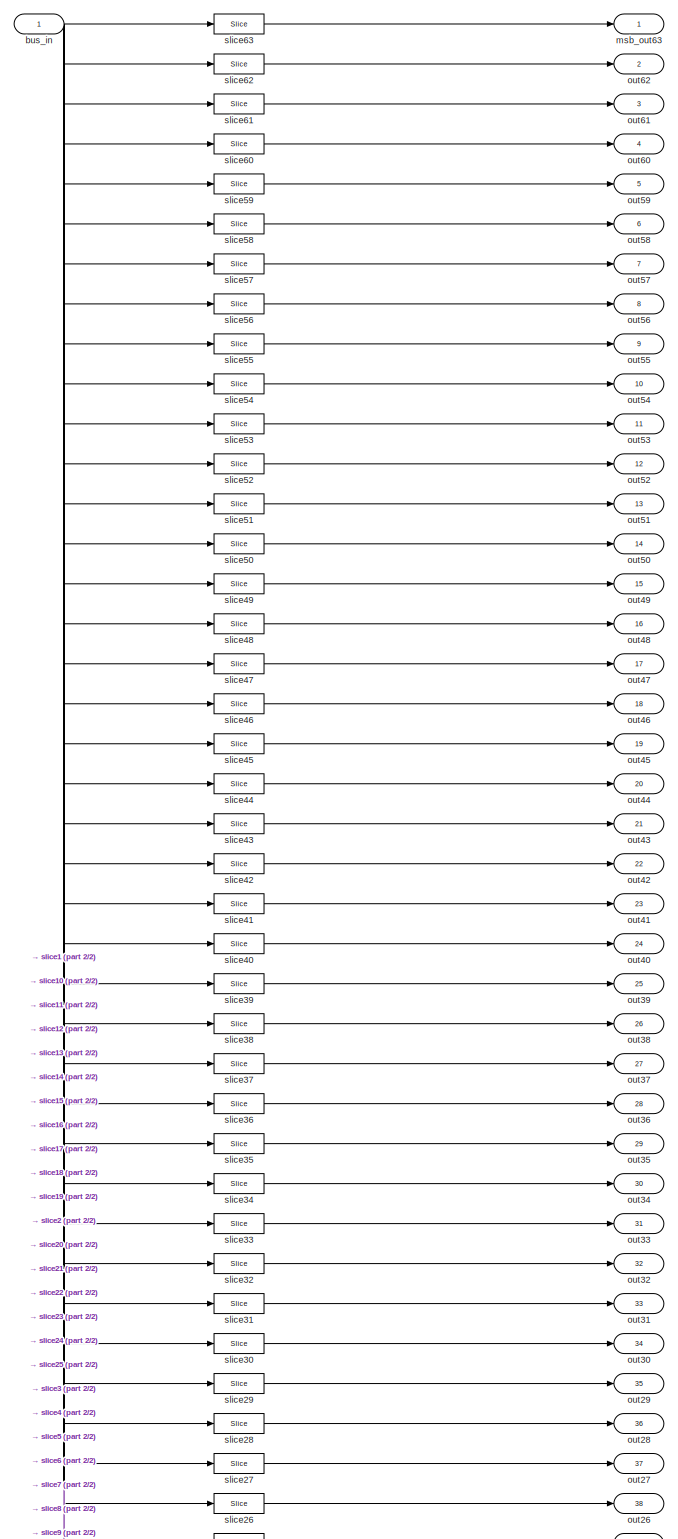
[diagram: rx_integrity_check0/xor1/bus_expand - part 1/2, full width, top band]
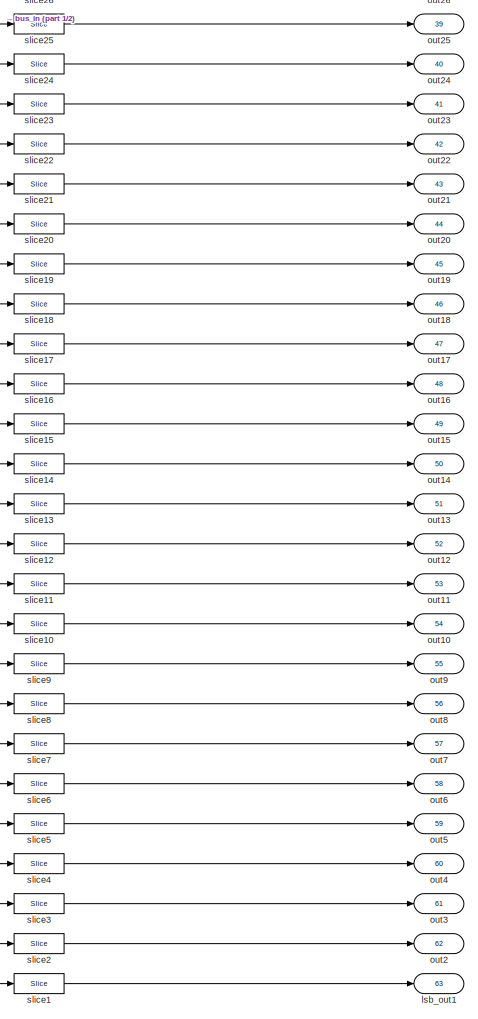
[diagram: rx_integrity_check0/xor1/bus_expand - part 2/2, bottom center region]
BLOCK [SubSystem] rx_integrity_check0/xor1/bus_expand
  AncestorBlock = casper_library_flow_control/bus_expand
  AttributesFormatString = 63 outputs
  Ports = [1, 63]
  RequestExecContextInheritance = off
  UserDataPersistent = on
  Variant = off
BLOCK [Inport] rx_integrity_check0/xor1/bus_expand/bus_in
  IconDisplay = Port number
BLOCK [Outport] rx_integrity_check0/xor1/bus_expand/lsb_out1
  IconDisplay = Port number
  Port = 63
BLOCK [Outport] rx_integrity_check0/xor1/bus_expand/msb_out63
  IconDisplay = Port number
BLOCK [Outport] rx_integrity_check0/xor1/bus_expand/out10
  IconDisplay = Port number
  Port = 54
BLOCK [Outport] rx_integrity_check0/xor1/bus_expand/out11
  IconDisplay = Port number
  Port = 53
BLOCK [Outport] rx_integrity_check0/xor1/bus_expand/out12
  IconDisplay = Port number
  Port = 52
BLOCK [Outport] rx_integrity_check0/xor1/bus_expand/out13
  IconDisplay = Port number
  Port = 51
BLOCK [Outport] rx_integrity_check0/xor1/bus_expand/out14
  IconDisplay = Port number
  Port = 50
BLOCK [Outport] rx_integrity_check0/xor1/bus_expand/out15
  IconDisplay = Port number
  Port = 49
BLOCK [Outport] rx_integrity_check0/xor1/bus_expand/out16
  IconDisplay = Port number
  Port = 48
BLOCK [Outport] rx_integrity_check0/xor1/bus_expand/out17
  IconDisplay = Port number
  Port = 47
BLOCK [Outport] rx_integrity_check0/xor1/bus_expand/out18
  IconDisplay = Port number
  Port = 46
BLOCK [Outport] rx_integrity_check0/xor1/bus_expand/out19
  IconDisplay = Port number
  Port = 45
BLOCK [Outport] rx_integrity_check0/xor1/bus_expand/out2
  IconDisplay = Port number
  Port = 62
BLOCK [Outport] rx_integrity_check0/xor1/bus_expand/out20
  IconDisplay = Port number
  Port = 44
BLOCK [Outport] rx_integrity_check0/xor1/bus_expand/out21
  IconDisplay = Port number
  Port = 43
BLOCK [Outport] rx_integrity_check0/xor1/bus_expand/out22
  IconDisplay = Port number
  Port = 42
BLOCK [Outport] rx_integrity_check0/xor1/bus_expand/out23
  IconDisplay = Port number
  Port = 41
BLOCK [Outport] rx_integrity_check0/xor1/bus_expand/out24
  IconDisplay = Port number
  Port = 40
BLOCK [Outport] rx_integrity_check0/xor1/bus_expand/out25
  IconDisplay = Port number
  Port = 39
BLOCK [Outport] rx_integrity_check0/xor1/bus_expand/out26
  IconDisplay = Port number
  Port = 38
BLOCK [Outport] rx_integrity_check0/xor1/bus_expand/out27
  IconDisplay = Port number
  Port = 37
BLOCK [Outport] rx_integrity_check0/xor1/bus_expand/out28
  IconDisplay = Port number
  Port = 36
BLOCK [Outport] rx_integrity_check0/xor1/bus_expand/out29
  IconDisplay = Port number
  Port = 35
BLOCK [Outport] rx_integrity_check0/xor1/bus_expand/out3
  IconDisplay = Port number
  Port = 61
BLOCK [Outport] rx_integrity_check0/xor1/bus_expand/out30
  IconDisplay = Port number
  Port = 34
BLOCK [Outport] rx_integrity_check0/xor1/bus_expand/out31
  IconDisplay = Port number
  Port = 33
BLOCK [Outport] rx_integrity_check0/xor1/bus_expand/out32
  IconDisplay = Port number
  Port = 32
BLOCK [Outport] rx_integrity_check0/xor1/bus_expand/out33
  IconDisplay = Port number
  Port = 31
BLOCK [Outport] rx_integrity_check0/xor1/bus_expand/out34
  IconDisplay = Port number
  Port = 30
BLOCK [Outport] rx_integrity_check0/xor1/bus_expand/out35
  IconDisplay = Port number
  Port = 29
BLOCK [Outport] rx_integrity_check0/xor1/bus_expand/out36
  IconDisplay = Port number
  Port = 28
BLOCK [Outport] rx_integrity_check0/xor1/bus_expand/out37
  IconDisplay = Port number
  Port = 27
BLOCK [Outport] rx_integrity_check0/xor1/bus_expand/out38
  IconDisplay = Port number
  Port = 26
BLOCK [Outport] rx_integrity_check0/xor1/bus_expand/out39
  IconDisplay = Port number
  Port = 25
BLOCK [Outport] rx_integrity_check0/xor1/bus_expand/out4
  IconDisplay = Port number
  Port = 60
BLOCK [Outport] rx_integrity_check0/xor1/bus_expand/out40
  IconDisplay = Port number
  Port = 24
BLOCK [Outport] rx_integrity_check0/xor1/bus_expand/out41
  IconDisplay = Port number
  Port = 23
BLOCK [Outport] rx_integrity_check0/xor1/bus_expand/out42
  IconDisplay = Port number
  Port = 22
BLOCK [Outport] rx_integrity_check0/xor1/bus_expand/out43
  IconDisplay = Port number
  Port = 21
BLOCK [Outport] rx_integrity_check0/xor1/bus_expand/out44
  IconDisplay = Port number
  Port = 20
BLOCK [Outport] rx_integrity_check0/xor1/bus_expand/out45
  IconDisplay = Port number
  Port = 19
BLOCK [Outport] rx_integrity_check0/xor1/bus_expand/out46
  IconDisplay = Port number
  Port = 18
BLOCK [Outport] rx_integrity_check0/xor1/bus_expand/out47
  IconDisplay = Port number
  Port = 17
BLOCK [Outport] rx_integrity_check0/xor1/bus_expand/out48
  IconDisplay = Port number
  Port = 16
BLOCK [Outport] rx_integrity_check0/xor1/bus_expand/out49
  IconDisplay = Port number
  Port = 15
BLOCK [Outport] rx_integrity_check0/xor1/bus_expand/out5
  IconDisplay = Port number
  Port = 59
BLOCK [Outport] rx_integrity_check0/xor1/bus_expand/out50
  IconDisplay = Port number
  Port = 14
BLOCK [Outport] rx_integrity_check0/xor1/bus_expand/out51
  IconDisplay = Port number
  Port = 13
BLOCK [Outport] rx_integrity_check0/xor1/bus_expand/out52
  IconDisplay = Port number
  Port = 12
BLOCK [Outport] rx_integrity_check0/xor1/bus_expand/out53
  IconDisplay = Port number
  Port = 11
BLOCK [Outport] rx_integrity_check0/xor1/bus_expand/out54
  IconDisplay = Port number
  Port = 10
BLOCK [Outport] rx_integrity_check0/xor1/bus_expand/out55
  IconDisplay = Port number
  Port = 9
BLOCK [Outport] rx_integrity_check0/xor1/bus_expand/out56
  IconDisplay = Port number
  Port = 8
BLOCK [Outport] rx_integrity_check0/xor1/bus_expand/out57
  IconDisplay = Port number
  Port = 7
BLOCK [Outport] rx_integrity_check0/xor1/bus_expand/out58
  IconDisplay = Port number
  Port = 6
BLOCK [Outport] rx_integrity_check0/xor1/bus_expand/out59
  IconDisplay = Port number
  Port = 5
BLOCK [Outport] rx_integrity_check0/xor1/bus_expand/out6
  IconDisplay = Port number
  Port = 58
BLOCK [Outport] rx_integrity_check0/xor1/bus_expand/out60
  IconDisplay = Port number
  Port = 4
BLOCK [Outport] rx_integrity_check0/xor1/bus_expand/out61
  IconDisplay = Port number
  Port = 3
BLOCK [Outport] rx_integrity_check0/xor1/bus_expand/out62
  IconDisplay = Port number
  Port = 2
BLOCK [Outport] rx_integrity_check0/xor1/bus_expand/out7
  IconDisplay = Port number
  Port = 57
BLOCK [Outport] rx_integrity_check0/xor1/bus_expand/out8
  IconDisplay = Port number
  Port = 56
BLOCK [Outport] rx_integrity_check0/xor1/bus_expand/out9
  IconDisplay = Port number
  Port = 55
BLOCK [Reference] rx_integrity_check0/xor1/bus_expand/slice1  REF=xbsIndex_r4/Slice
  Ports = [1, 1]
  SourceBlock = xbsIndex_r4/Slice
  SourceType = Xilinx Bit Slice Extractor Block
BLOCK [Reference] rx_integrity_check0/xor1/bus_expand/slice10  REF=xbsIndex_r4/Slice
  Ports = [1, 1]
  SourceBlock = xbsIndex_r4/Slice
  SourceType = Xilinx Bit Slice Extractor Block
BLOCK [Reference] rx_integrity_check0/xor1/bus_expand/slice11  REF=xbsIndex_r4/Slice
  Ports = [1, 1]
  SourceBlock = xbsIndex_r4/Slice
  SourceType = Xilinx Bit Slice Extractor Block
BLOCK [Reference] rx_integrity_check0/xor1/bus_expand/slice12  REF=xbsIndex_r4/Slice
  Ports = [1, 1]
  SourceBlock = xbsIndex_r4/Slice
  SourceType = Xilinx Bit Slice Extractor Block
BLOCK [Reference] rx_integrity_check0/xor1/bus_expand/slice13  REF=xbsIndex_r4/Slice
  Ports = [1, 1]
  SourceBlock = xbsIndex_r4/Slice
  SourceType = Xilinx Bit Slice Extractor Block
BLOCK [Reference] rx_integrity_check0/xor1/bus_expand/slice14  REF=xbsIndex_r4/Slice
  Ports = [1, 1]
  SourceBlock = xbsIndex_r4/Slice
  SourceType = Xilinx Bit Slice Extractor Block
BLOCK [Reference] rx_integrity_check0/xor1/bus_expand/slice15  REF=xbsIndex_r4/Slice
  Ports = [1, 1]
  SourceBlock = xbsIndex_r4/Slice
  SourceType = Xilinx Bit Slice Extractor Block
BLOCK [Reference] rx_integrity_check0/xor1/bus_expand/slice16  REF=xbsIndex_r4/Slice
  Ports = [1, 1]
  SourceBlock = xbsIndex_r4/Slice
  SourceType = Xilinx Bit Slice Extractor Block
BLOCK [Reference] rx_integrity_check0/xor1/bus_expand/slice17  REF=xbsIndex_r4/Slice
  Ports = [1, 1]
  SourceBlock = xbsIndex_r4/Slice
  SourceType = Xilinx Bit Slice Extractor Block
BLOCK [Reference] rx_integrity_check0/xor1/bus_expand/slice18  REF=xbsIndex_r4/Slice
  Ports = [1, 1]
  SourceBlock = xbsIndex_r4/Slice
  SourceType = Xilinx Bit Slice Extractor Block
BLOCK [Reference] rx_integrity_check0/xor1/bus_expand/slice19  REF=xbsIndex_r4/Slice
  Ports = [1, 1]
  SourceBlock = xbsIndex_r4/Slice
  SourceType = Xilinx Bit Slice Extractor Block
BLOCK [Reference] rx_integrity_check0/xor1/bus_expand/slice2  REF=xbsIndex_r4/Slice
  Ports = [1, 1]
  SourceBlock = xbsIndex_r4/Slice
  SourceType = Xilinx Bit Slice Extractor Block
BLOCK [Reference] rx_integrity_check0/xor1/bus_expand/slice20  REF=xbsIndex_r4/Slice
  Ports = [1, 1]
  SourceBlock = xbsIndex_r4/Slice
  SourceType = Xilinx Bit Slice Extractor Block
BLOCK [Reference] rx_integrity_check0/xor1/bus_expand/slice21  REF=xbsIndex_r4/Slice
  Ports = [1, 1]
  SourceBlock = xbsIndex_r4/Slice
  SourceType = Xilinx Bit Slice Extractor Block
BLOCK [Reference] rx_integrity_check0/xor1/bus_expand/slice22  REF=xbsIndex_r4/Slice
  Ports = [1, 1]
  SourceBlock = xbsIndex_r4/Slice
  SourceType = Xilinx Bit Slice Extractor Block
BLOCK [Reference] rx_integrity_check0/xor1/bus_expand/slice23  REF=xbsIndex_r4/Slice
  Ports = [1, 1]
  SourceBlock = xbsIndex_r4/Slice
  SourceType = Xilinx Bit Slice Extractor Block
BLOCK [Reference] rx_integrity_check0/xor1/bus_expand/slice24  REF=xbsIndex_r4/Slice
  Ports = [1, 1]
  SourceBlock = xbsIndex_r4/Slice
  SourceType = Xilinx Bit Slice Extractor Block
BLOCK [Reference] rx_integrity_check0/xor1/bus_expand/slice25  REF=xbsIndex_r4/Slice
  Ports = [1, 1]
  SourceBlock = xbsIndex_r4/Slice
  SourceType = Xilinx Bit Slice Extractor Block
BLOCK [Reference] rx_integrity_check0/xor1/bus_expand/slice26  REF=xbsIndex_r4/Slice
  Ports = [1, 1]
  SourceBlock = xbsIndex_r4/Slice
  SourceType = Xilinx Bit Slice Extractor Block
BLOCK [Reference] rx_integrity_check0/xor1/bus_expand/slice27  REF=xbsIndex_r4/Slice
  Ports = [1, 1]
  SourceBlock = xbsIndex_r4/Slice
  SourceType = Xilinx Bit Slice Extractor Block
BLOCK [Reference] rx_integrity_check0/xor1/bus_expand/slice28  REF=xbsIndex_r4/Slice
  Ports = [1, 1]
  SourceBlock = xbsIndex_r4/Slice
  SourceType = Xilinx Bit Slice Extractor Block
BLOCK [Reference] rx_integrity_check0/xor1/bus_expand/slice29  REF=xbsIndex_r4/Slice
  Ports = [1, 1]
  SourceBlock = xbsIndex_r4/Slice
  SourceType = Xilinx Bit Slice Extractor Block
BLOCK [Reference] rx_integrity_check0/xor1/bus_expand/slice3  REF=xbsIndex_r4/Slice
  Ports = [1, 1]
  SourceBlock = xbsIndex_r4/Slice
  SourceType = Xilinx Bit Slice Extractor Block
BLOCK [Reference] rx_integrity_check0/xor1/bus_expand/slice30  REF=xbsIndex_r4/Slice
  Ports = [1, 1]
  SourceBlock = xbsIndex_r4/Slice
  SourceType = Xilinx Bit Slice Extractor Block
BLOCK [Reference] rx_integrity_check0/xor1/bus_expand/slice31  REF=xbsIndex_r4/Slice
  Ports = [1, 1]
  SourceBlock = xbsIndex_r4/Slice
  SourceType = Xilinx Bit Slice Extractor Block
BLOCK [Reference] rx_integrity_check0/xor1/bus_expand/slice32  REF=xbsIndex_r4/Slice
  Ports = [1, 1]
  SourceBlock = xbsIndex_r4/Slice
  SourceType = Xilinx Bit Slice Extractor Block
BLOCK [Reference] rx_integrity_check0/xor1/bus_expand/slice33  REF=xbsIndex_r4/Slice
  Ports = [1, 1]
  SourceBlock = xbsIndex_r4/Slice
  SourceType = Xilinx Bit Slice Extractor Block
BLOCK [Reference] rx_integrity_check0/xor1/bus_expand/slice34  REF=xbsIndex_r4/Slice
  Ports = [1, 1]
  SourceBlock = xbsIndex_r4/Slice
  SourceType = Xilinx Bit Slice Extractor Block
BLOCK [Reference] rx_integrity_check0/xor1/bus_expand/slice35  REF=xbsIndex_r4/Slice
  Ports = [1, 1]
  SourceBlock = xbsIndex_r4/Slice
  SourceType = Xilinx Bit Slice Extractor Block
BLOCK [Reference] rx_integrity_check0/xor1/bus_expand/slice36  REF=xbsIndex_r4/Slice
  Ports = [1, 1]
  SourceBlock = xbsIndex_r4/Slice
  SourceType = Xilinx Bit Slice Extractor Block
BLOCK [Reference] rx_integrity_check0/xor1/bus_expand/slice37  REF=xbsIndex_r4/Slice
  Ports = [1, 1]
  SourceBlock = xbsIndex_r4/Slice
  SourceType = Xilinx Bit Slice Extractor Block
BLOCK [Reference] rx_integrity_check0/xor1/bus_expand/slice38  REF=xbsIndex_r4/Slice
  Ports = [1, 1]
  SourceBlock = xbsIndex_r4/Slice
  SourceType = Xilinx Bit Slice Extractor Block
BLOCK [Reference] rx_integrity_check0/xor1/bus_expand/slice39  REF=xbsIndex_r4/Slice
  Ports = [1, 1]
  SourceBlock = xbsIndex_r4/Slice
  SourceType = Xilinx Bit Slice Extractor Block
BLOCK [Reference] rx_integrity_check0/xor1/bus_expand/slice4  REF=xbsIndex_r4/Slice
  Ports = [1, 1]
  SourceBlock = xbsIndex_r4/Slice
  SourceType = Xilinx Bit Slice Extractor Block
BLOCK [Reference] rx_integrity_check0/xor1/bus_expand/slice40  REF=xbsIndex_r4/Slice
  Ports = [1, 1]
  SourceBlock = xbsIndex_r4/Slice
  SourceType = Xilinx Bit Slice Extractor Block
BLOCK [Reference] rx_integrity_check0/xor1/bus_expand/slice41  REF=xbsIndex_r4/Slice
  Ports = [1, 1]
  SourceBlock = xbsIndex_r4/Slice
  SourceType = Xilinx Bit Slice Extractor Block
BLOCK [Reference] rx_integrity_check0/xor1/bus_expand/slice42  REF=xbsIndex_r4/Slice
  Ports = [1, 1]
  SourceBlock = xbsIndex_r4/Slice
  SourceType = Xilinx Bit Slice Extractor Block
BLOCK [Reference] rx_integrity_check0/xor1/bus_expand/slice43  REF=xbsIndex_r4/Slice
  Ports = [1, 1]
  SourceBlock = xbsIndex_r4/Slice
  SourceType = Xilinx Bit Slice Extractor Block
BLOCK [Reference] rx_integrity_check0/xor1/bus_expand/slice44  REF=xbsIndex_r4/Slice
  Ports = [1, 1]
  SourceBlock = xbsIndex_r4/Slice
  SourceType = Xilinx Bit Slice Extractor Block
BLOCK [Reference] rx_integrity_check0/xor1/bus_expand/slice45  REF=xbsIndex_r4/Slice
  Ports = [1, 1]
  SourceBlock = xbsIndex_r4/Slice
  SourceType = Xilinx Bit Slice Extractor Block
BLOCK [Reference] rx_integrity_check0/xor1/bus_expand/slice46  REF=xbsIndex_r4/Slice
  Ports = [1, 1]
  SourceBlock = xbsIndex_r4/Slice
  SourceType = Xilinx Bit Slice Extractor Block
BLOCK [Reference] rx_integrity_check0/xor1/bus_expand/slice47  REF=xbsIndex_r4/Slice
  Ports = [1, 1]
  SourceBlock = xbsIndex_r4/Slice
  SourceType = Xilinx Bit Slice Extractor Block
BLOCK [Reference] rx_integrity_check0/xor1/bus_expand/slice48  REF=xbsIndex_r4/Slice
  Ports = [1, 1]
  SourceBlock = xbsIndex_r4/Slice
  SourceType = Xilinx Bit Slice Extractor Block
BLOCK [Reference] rx_integrity_check0/xor1/bus_expand/slice49  REF=xbsIndex_r4/Slice
  Ports = [1, 1]
  SourceBlock = xbsIndex_r4/Slice
  SourceType = Xilinx Bit Slice Extractor Block
BLOCK [Reference] rx_integrity_check0/xor1/bus_expand/slice5  REF=xbsIndex_r4/Slice
  Ports = [1, 1]
  SourceBlock = xbsIndex_r4/Slice
  SourceType = Xilinx Bit Slice Extractor Block
BLOCK [Reference] rx_integrity_check0/xor1/bus_expand/slice50  REF=xbsIndex_r4/Slice
  Ports = [1, 1]
  SourceBlock = xbsIndex_r4/Slice
  SourceType = Xilinx Bit Slice Extractor Block
BLOCK [Reference] rx_integrity_check0/xor1/bus_expand/slice51  REF=xbsIndex_r4/Slice
  Ports = [1, 1]
  SourceBlock = xbsIndex_r4/Slice
  SourceType = Xilinx Bit Slice Extractor Block
BLOCK [Reference] rx_integrity_check0/xor1/bus_expand/slice52  REF=xbsIndex_r4/Slice
  Ports = [1, 1]
  SourceBlock = xbsIndex_r4/Slice
  SourceType = Xilinx Bit Slice Extractor Block
BLOCK [Reference] rx_integrity_check0/xor1/bus_expand/slice53  REF=xbsIndex_r4/Slice
  Ports = [1, 1]
  SourceBlock = xbsIndex_r4/Slice
  SourceType = Xilinx Bit Slice Extractor Block
BLOCK [Reference] rx_integrity_check0/xor1/bus_expand/slice54  REF=xbsIndex_r4/Slice
  Ports = [1, 1]
  SourceBlock = xbsIndex_r4/Slice
  SourceType = Xilinx Bit Slice Extractor Block
BLOCK [Reference] rx_integrity_check0/xor1/bus_expand/slice55  REF=xbsIndex_r4/Slice
  Ports = [1, 1]
  SourceBlock = xbsIndex_r4/Slice
  SourceType = Xilinx Bit Slice Extractor Block
BLOCK [Reference] rx_integrity_check0/xor1/bus_expand/slice56  REF=xbsIndex_r4/Slice
  Ports = [1, 1]
  SourceBlock = xbsIndex_r4/Slice
  SourceType = Xilinx Bit Slice Extractor Block
BLOCK [Reference] rx_integrity_check0/xor1/bus_expand/slice57  REF=xbsIndex_r4/Slice
  Ports = [1, 1]
  SourceBlock = xbsIndex_r4/Slice
  SourceType = Xilinx Bit Slice Extractor Block
BLOCK [Reference] rx_integrity_check0/xor1/bus_expand/slice58  REF=xbsIndex_r4/Slice
  Ports = [1, 1]
  SourceBlock = xbsIndex_r4/Slice
  SourceType = Xilinx Bit Slice Extractor Block
BLOCK [Reference] rx_integrity_check0/xor1/bus_expand/slice59  REF=xbsIndex_r4/Slice
  Ports = [1, 1]
  SourceBlock = xbsIndex_r4/Slice
  SourceType = Xilinx Bit Slice Extractor Block
BLOCK [Reference] rx_integrity_check0/xor1/bus_expand/slice6  REF=xbsIndex_r4/Slice
  Ports = [1, 1]
  SourceBlock = xbsIndex_r4/Slice
  SourceType = Xilinx Bit Slice Extractor Block
BLOCK [Reference] rx_integrity_check0/xor1/bus_expand/slice60  REF=xbsIndex_r4/Slice
  Ports = [1, 1]
  SourceBlock = xbsIndex_r4/Slice
  SourceType = Xilinx Bit Slice Extractor Block
BLOCK [Reference] rx_integrity_check0/xor1/bus_expand/slice61  REF=xbsIndex_r4/Slice
  Ports = [1, 1]
  SourceBlock = xbsIndex_r4/Slice
  SourceType = Xilinx Bit Slice Extractor Block
BLOCK [Reference] rx_integrity_check0/xor1/bus_expand/slice62  REF=xbsIndex_r4/Slice
  Ports = [1, 1]
  SourceBlock = xbsIndex_r4/Slice
  SourceType = Xilinx Bit Slice Extractor Block
BLOCK [Reference] rx_integrity_check0/xor1/bus_expand/slice63  REF=xbsIndex_r4/Slice
  Ports = [1, 1]
  SourceBlock = xbsIndex_r4/Slice
  SourceType = Xilinx Bit Slice Extractor Block
BLOCK [Reference] rx_integrity_check0/xor1/bus_expand/slice7  REF=xbsIndex_r4/Slice
  Ports = [1, 1]
  SourceBlock = xbsIndex_r4/Slice
  SourceType = Xilinx Bit Slice Extractor Block
BLOCK [Reference] rx_integrity_check0/xor1/bus_expand/slice8  REF=xbsIndex_r4/Slice
  Ports = [1, 1]
  SourceBlock = xbsIndex_r4/Slice
  SourceType = Xilinx Bit Slice Extractor Block
BLOCK [Reference] rx_integrity_check0/xor1/bus_expand/slice9  REF=xbsIndex_r4/Slice
  Ports = [1, 1]
  SourceBlock = xbsIndex_r4/Slice
  SourceType = Xilinx Bit Slice Extractor Block
BLOCK [SubSystem] rx_pkt_cnt_bad
  AncestorBlock = xps_library/software register
  AttributesFormatString = 1output:uf32.0 = 32 bits
  Ports = [1, 1]
  RequestExecContextInheritance = off
  Tag = xps:sw_reg
  Variant = off
BLOCK [Reference] rx_pkt_cnt_bad/assert_reg  REF=xbsIndex_r4/Assert
  Ports = [1, 1]
  SourceBlock = xbsIndex_r4/Assert
  SourceType = Xilinx Assert Block
BLOCK [Reference] rx_pkt_cnt_bad/cast_gw  REF=xbsIndex_r4/Convert
  Ports = [1, 1]
  SourceBlock = xbsIndex_r4/Convert
  SourceType = Xilinx Type Converter Block
BLOCK [Reference] rx_pkt_cnt_bad/io_delay  REF=xbsIndex_r4/Delay
  Ports = [1, 1]
  SourceBlock = xbsIndex_r4/Delay
  SourceType = Xilinx Delay Block
BLOCK [Inport] rx_pkt_cnt_bad/out_reg
  IconDisplay = Port number
BLOCK [Reference] rx_pkt_cnt_bad/reint1  REF=xbsIndex_r4/Reinterpret
  Ports = [1, 1]
  SourceBlock = xbsIndex_r4/Reinterpret
  SourceType = Xilinx Type Reinterpreter Block
BLOCK [Outport] rx_pkt_cnt_bad/sim_out
  IconDisplay = Port number
BLOCK [Reference] rx_pkt_cnt_bad/test_hmc_rx_pkt_cnt_bad_user_data_in  REF=xbsIndex_r4/Gateway Out
  Ports = [1, 1]
  SourceBlock = xbsIndex_r4/Gateway Out
  SourceType = Xilinx Gateway Out Block
BLOCK [SubSystem] rx_pkt_cnt_ok
  AncestorBlock = xps_library/software register
  AttributesFormatString = 1output:uf32.0 = 32 bits
  Ports = [1, 1]
  RequestExecContextInheritance = off
  Tag = xps:sw_reg
  Variant = off
BLOCK [Reference] rx_pkt_cnt_ok/assert_reg  REF=xbsIndex_r4/Assert
  Ports = [1, 1]
  SourceBlock = xbsIndex_r4/Assert
  SourceType = Xilinx Assert Block
BLOCK [Reference] rx_pkt_cnt_ok/cast_gw  REF=xbsIndex_r4/Convert
  Ports = [1, 1]
  SourceBlock = xbsIndex_r4/Convert
  SourceType = Xilinx Type Converter Block
BLOCK [Reference] rx_pkt_cnt_ok/io_delay  REF=xbsIndex_r4/Delay
  Ports = [1, 1]
  SourceBlock = xbsIndex_r4/Delay
  SourceType = Xilinx Delay Block
BLOCK [Inport] rx_pkt_cnt_ok/out_reg
  IconDisplay = Port number
BLOCK [Reference] rx_pkt_cnt_ok/reint1  REF=xbsIndex_r4/Reinterpret
  Ports = [1, 1]
  SourceBlock = xbsIndex_r4/Reinterpret
  SourceType = Xilinx Type Reinterpreter Block
BLOCK [Outport] rx_pkt_cnt_ok/sim_out
  IconDisplay = Port number
BLOCK [Reference] rx_pkt_cnt_ok/test_hmc_rx_pkt_cnt_ok_user_data_in  REF=xbsIndex_r4/Gateway Out
  Ports = [1, 1]
  SourceBlock = xbsIndex_r4/Gateway Out
  SourceType = Xilinx Gateway Out Block
BLOCK [SubSystem] rx_wrd_cnt_bad
  AncestorBlock = xps_library/software register
  AttributesFormatString = 1output:uf32.0 = 32 bits
  Ports = [1, 1]
  RequestExecContextInheritance = off
  Tag = xps:sw_reg
  Variant = off
BLOCK [Reference] rx_wrd_cnt_bad/assert_reg  REF=xbsIndex_r4/Assert
  Ports = [1, 1]
  SourceBlock = xbsIndex_r4/Assert
  SourceType = Xilinx Assert Block
BLOCK [Reference] rx_wrd_cnt_bad/cast_gw  REF=xbsIndex_r4/Convert
  Ports = [1, 1]
  SourceBlock = xbsIndex_r4/Convert
  SourceType = Xilinx Type Converter Block
BLOCK [Reference] rx_wrd_cnt_bad/io_delay  REF=xbsIndex_r4/Delay
  Ports = [1, 1]
  SourceBlock = xbsIndex_r4/Delay
  SourceType = Xilinx Delay Block
BLOCK [Inport] rx_wrd_cnt_bad/out_reg
  IconDisplay = Port number
BLOCK [Reference] rx_wrd_cnt_bad/reint1  REF=xbsIndex_r4/Reinterpret
  Ports = [1, 1]
  SourceBlock = xbsIndex_r4/Reinterpret
  SourceType = Xilinx Type Reinterpreter Block
BLOCK [Outport] rx_wrd_cnt_bad/sim_out
  IconDisplay = Port number
BLOCK [Reference] rx_wrd_cnt_bad/test_hmc_rx_wrd_cnt_bad_user_data_in  REF=xbsIndex_r4/Gateway Out
  Ports = [1, 1]
  SourceBlock = xbsIndex_r4/Gateway Out
  SourceType = Xilinx Gateway Out Block
BLOCK [SubSystem] rx_wrd_cnt_missing
  AncestorBlock = xps_library/software register
  AttributesFormatString = 1output:uf32.0 = 32 bits
  Ports = [1, 1]
  RequestExecContextInheritance = off
  Tag = xps:sw_reg
  Variant = off
BLOCK [Reference] rx_wrd_cnt_missing/assert_reg  REF=xbsIndex_r4/Assert
  Ports = [1, 1]
  SourceBlock = xbsIndex_r4/Assert
  SourceType = Xilinx Assert Block
BLOCK [Reference] rx_wrd_cnt_missing/cast_gw  REF=xbsIndex_r4/Convert
  Ports = [1, 1]
  SourceBlock = xbsIndex_r4/Convert
  SourceType = Xilinx Type Converter Block
BLOCK [Reference] rx_wrd_cnt_missing/io_delay  REF=xbsIndex_r4/Delay
  Ports = [1, 1]
  SourceBlock = xbsIndex_r4/Delay
  SourceType = Xilinx Delay Block
BLOCK [Inport] rx_wrd_cnt_missing/out_reg
  IconDisplay = Port number
BLOCK [Reference] rx_wrd_cnt_missing/reint1  REF=xbsIndex_r4/Reinterpret
  Ports = [1, 1]
  SourceBlock = xbsIndex_r4/Reinterpret
  SourceType = Xilinx Type Reinterpreter Block
BLOCK [Outport] rx_wrd_cnt_missing/sim_out
  IconDisplay = Port number
BLOCK [Reference] rx_wrd_cnt_missing/test_hmc_rx_wrd_cnt_missing_user_data_in  REF=xbsIndex_r4/Gateway Out
  Ports = [1, 1]
  SourceBlock = xbsIndex_r4/Gateway Out
  SourceType = Xilinx Gateway Out Block
BLOCK [SubSystem] status0
  AncestorBlock = xps_library/software register
  AttributesFormatString = 1output:uf32.0 = 32 bits
  Ports = [1, 1]
  RequestExecContextInheritance = off
  Tag = xps:sw_reg
  Variant = off
BLOCK [Reference] status0/assert_reg  REF=xbsIndex_r4/Assert
  Ports = [1, 1]
  SourceBlock = xbsIndex_r4/Assert
  SourceType = Xilinx Assert Block
BLOCK [Reference] status0/cast_gw  REF=xbsIndex_r4/Convert
  Ports = [1, 1]
  SourceBlock = xbsIndex_r4/Convert
  SourceType = Xilinx Type Converter Block
BLOCK [Reference] status0/io_delay  REF=xbsIndex_r4/Delay
  Ports = [1, 1]
  SourceBlock = xbsIndex_r4/Delay
  SourceType = Xilinx Delay Block
BLOCK [Inport] status0/out_reg
  IconDisplay = Port number
BLOCK [Reference] status0/reint1  REF=xbsIndex_r4/Reinterpret
  Ports = [1, 1]
  SourceBlock = xbsIndex_r4/Reinterpret
  SourceType = Xilinx Type Reinterpreter Block
BLOCK [Outport] status0/sim_out
  IconDisplay = Port number
BLOCK [Reference] status0/test_hmc_status0_user_data_in  REF=xbsIndex_r4/Gateway Out
  Ports = [1, 1]
  SourceBlock = xbsIndex_r4/Gateway Out
  SourceType = Xilinx Gateway Out Block
BLOCK [SubSystem] tx_pkt_cnt
  AncestorBlock = xps_library/software register
  AttributesFormatString = 1output:uf32.0 = 32 bits
  Ports = [1, 1]
  RequestExecContextInheritance = off
  Tag = xps:sw_reg
  Variant = off
BLOCK [Reference] tx_pkt_cnt/assert_reg  REF=xbsIndex_r4/Assert
  Ports = [1, 1]
  SourceBlock = xbsIndex_r4/Assert
  SourceType = Xilinx Assert Block
BLOCK [Reference] tx_pkt_cnt/cast_gw  REF=xbsIndex_r4/Convert
  Ports = [1, 1]
  SourceBlock = xbsIndex_r4/Convert
  SourceType = Xilinx Type Converter Block
BLOCK [Reference] tx_pkt_cnt/io_delay  REF=xbsIndex_r4/Delay
  Ports = [1, 1]
  SourceBlock = xbsIndex_r4/Delay
  SourceType = Xilinx Delay Block
BLOCK [Inport] tx_pkt_cnt/out_reg
  IconDisplay = Port number
BLOCK [Reference] tx_pkt_cnt/reint1  REF=xbsIndex_r4/Reinterpret
  Ports = [1, 1]
  SourceBlock = xbsIndex_r4/Reinterpret
  SourceType = Xilinx Type Reinterpreter Block
BLOCK [Outport] tx_pkt_cnt/sim_out
  IconDisplay = Port number
BLOCK [Reference] tx_pkt_cnt/test_hmc_tx_pkt_cnt_user_data_in  REF=xbsIndex_r4/Gateway Out
  Ports = [1, 1]
  SourceBlock = xbsIndex_r4/Gateway Out
  SourceType = Xilinx Gateway Out Block
BLOCK [SubSystem] vacctvg_control
  AncestorBlock = xps_library/software register
  AttributesFormatString = 11 inputs:b,b,b,b,b,b,b,b,b,b,b = 11 bits
  Ports = [11, 11]
  RequestExecContextInheritance = off
  Tag = xps:sw_reg
  Variant = off
BLOCK [DataTypeConversion] vacctvg_control/convert1_1
  LockScale = on
  OutDataTypeStr = fixdt('ufix1_En0')
  RndMeth = Floor
  SaturateOnIntegerOverflow = off
BLOCK [DataTypeConversion] vacctvg_control/convert1_10
  LockScale = on
  OutDataTypeStr = fixdt('ufix1_En0')
  RndMeth = Floor
  SaturateOnIntegerOverflow = off
BLOCK [DataTypeConversion] vacctvg_control/convert1_11
  LockScale = on
  OutDataTypeStr = fixdt('ufix1_En0')
  RndMeth = Floor
  SaturateOnIntegerOverflow = off
BLOCK [DataTypeConversion] vacctvg_control/convert1_2
  LockScale = on
  OutDataTypeStr = fixdt('ufix1_En0')
  RndMeth = Floor
  SaturateOnIntegerOverflow = off
BLOCK [DataTypeConversion] vacctvg_control/convert1_3
  LockScale = on
  OutDataTypeStr = fixdt('ufix1_En0')
  RndMeth = Floor
  SaturateOnIntegerOverflow = off
BLOCK [DataTypeConversion] vacctvg_control/convert1_4
  LockScale = on
  OutDataTypeStr = fixdt('ufix1_En0')
  RndMeth = Floor
  SaturateOnIntegerOverflow = off
BLOCK [DataTypeConversion] vacctvg_control/convert1_5
  LockScale = on
  OutDataTypeStr = fixdt('ufix1_En0')
  RndMeth = Floor
  SaturateOnIntegerOverflow = off
BLOCK [DataTypeConversion] vacctvg_control/convert1_6
  LockScale = on
  OutDataTypeStr = fixdt('ufix1_En0')
  RndMeth = Floor
  SaturateOnIntegerOverflow = off
BLOCK [DataTypeConversion] vacctvg_control/convert1_7
  LockScale = on
  OutDataTypeStr = fixdt('ufix1_En0')
  RndMeth = Floor
  SaturateOnIntegerOverflow = off
BLOCK [DataTypeConversion] vacctvg_control/convert1_8
  LockScale = on
  OutDataTypeStr = fixdt('ufix1_En0')
  RndMeth = Floor
  SaturateOnIntegerOverflow = off
BLOCK [DataTypeConversion] vacctvg_control/convert1_9
  LockScale = on
  OutDataTypeStr = fixdt('ufix1_En0')
  RndMeth = Floor
  SaturateOnIntegerOverflow = off
BLOCK [DataTypeConversion] vacctvg_control/convert2_1
  ConvertRealWorld = Stored Integer (SI)
  LockScale = on
  OutDataTypeStr = fixdt('ufix1_En0')
  RndMeth = Floor
  SaturateOnIntegerOverflow = off
BLOCK [DataTypeConversion] vacctvg_control/convert2_10
  ConvertRealWorld = Stored Integer (SI)
  LockScale = on
  OutDataTypeStr = fixdt('ufix1_En0')
  RndMeth = Floor
  SaturateOnIntegerOverflow = off
BLOCK [DataTypeConversion] vacctvg_control/convert2_11
  ConvertRealWorld = Stored Integer (SI)
  LockScale = on
  OutDataTypeStr = fixdt('ufix1_En0')
  RndMeth = Floor
  SaturateOnIntegerOverflow = off
BLOCK [DataTypeConversion] vacctvg_control/convert2_2
  ConvertRealWorld = Stored Integer (SI)
  LockScale = on
  OutDataTypeStr = fixdt('ufix1_En0')
  RndMeth = Floor
  SaturateOnIntegerOverflow = off
BLOCK [DataTypeConversion] vacctvg_control/convert2_3
  ConvertRealWorld = Stored Integer (SI)
  LockScale = on
  OutDataTypeStr = fixdt('ufix1_En0')
  RndMeth = Floor
  SaturateOnIntegerOverflow = off
BLOCK [DataTypeConversion] vacctvg_control/convert2_4
  ConvertRealWorld = Stored Integer (SI)
  LockScale = on
  OutDataTypeStr = fixdt('ufix1_En0')
  RndMeth = Floor
  SaturateOnIntegerOverflow = off
BLOCK [DataTypeConversion] vacctvg_control/convert2_5
  ConvertRealWorld = Stored Integer (SI)
  LockScale = on
  OutDataTypeStr = fixdt('ufix1_En0')
  RndMeth = Floor
  SaturateOnIntegerOverflow = off
BLOCK [DataTypeConversion] vacctvg_control/convert2_6
  ConvertRealWorld = Stored Integer (SI)
  LockScale = on
  OutDataTypeStr = fixdt('ufix1_En0')
  RndMeth = Floor
  SaturateOnIntegerOverflow = off
BLOCK [DataTypeConversion] vacctvg_control/convert2_7
  ConvertRealWorld = Stored Integer (SI)
  LockScale = on
  OutDataTypeStr = fixdt('ufix1_En0')
  RndMeth = Floor
  SaturateOnIntegerOverflow = off
BLOCK [DataTypeConversion] vacctvg_control/convert2_8
  ConvertRealWorld = Stored Integer (SI)
  LockScale = on
  OutDataTypeStr = fixdt('ufix1_En0')
  RndMeth = Floor
  SaturateOnIntegerOverflow = off
BLOCK [DataTypeConversion] vacctvg_control/convert2_9
  ConvertRealWorld = Stored Integer (SI)
  LockScale = on
  OutDataTypeStr = fixdt('ufix1_En0')
  RndMeth = Floor
  SaturateOnIntegerOverflow = off
BLOCK [Gain] vacctvg_control/gain_1
  Gain = 1024
  OutDataTypeStr = Inherit: Inherit via internal rule
  ParamDataTypeStr = Inherit: Inherit via internal rule
  SaturateOnIntegerOverflow = off
BLOCK [Gain] vacctvg_control/gain_10
  Gain = 2
  OutDataTypeStr = Inherit: Inherit via internal rule
  ParamDataTypeStr = Inherit: Inherit via internal rule
  SaturateOnIntegerOverflow = off
BLOCK [Gain] vacctvg_control/gain_11
  OutDataTypeStr = Inherit: Inherit via internal rule
  ParamDataTypeStr = Inherit: Inherit via internal rule
  SaturateOnIntegerOverflow = off
BLOCK [Gain] vacctvg_control/gain_2
  Gain = 512
  OutDataTypeStr = Inherit: Inherit via internal rule
  ParamDataTypeStr = Inherit: Inherit via internal rule
  SaturateOnIntegerOverflow = off
BLOCK [Gain] vacctvg_control/gain_3
  Gain = 256
  OutDataTypeStr = Inherit: Inherit via internal rule
  ParamDataTypeStr = Inherit: Inherit via internal rule
  SaturateOnIntegerOverflow = off
BLOCK [Gain] vacctvg_control/gain_4
  Gain = 128
  OutDataTypeStr = Inherit: Inherit via internal rule
  ParamDataTypeStr = Inherit: Inherit via internal rule
  SaturateOnIntegerOverflow = off
BLOCK [Gain] vacctvg_control/gain_5
  Gain = 64
  OutDataTypeStr = Inherit: Inherit via internal rule
  ParamDataTypeStr = Inherit: Inherit via internal rule
  SaturateOnIntegerOverflow = off
BLOCK [Gain] vacctvg_control/gain_6
  Gain = 32
  OutDataTypeStr = Inherit: Inherit via internal rule
  ParamDataTypeStr = Inherit: Inherit via internal rule
  SaturateOnIntegerOverflow = off
BLOCK [Gain] vacctvg_control/gain_7
  Gain = 16
  OutDataTypeStr = Inherit: Inherit via internal rule
  ParamDataTypeStr = Inherit: Inherit via internal rule
  SaturateOnIntegerOverflow = off
BLOCK [Gain] vacctvg_control/gain_8
  Gain = 8
  OutDataTypeStr = Inherit: Inherit via internal rule
  ParamDataTypeStr = Inherit: Inherit via internal rule
  SaturateOnIntegerOverflow = off
BLOCK [Gain] vacctvg_control/gain_9
  Gain = 4
  OutDataTypeStr = Inherit: Inherit via internal rule
  ParamDataTypeStr = Inherit: Inherit via internal rule
  SaturateOnIntegerOverflow = off
BLOCK [Outport] vacctvg_control/in_ctr_en
  IconDisplay = Port number
  Port = 5
BLOCK [Outport] vacctvg_control/in_data_sel
  IconDisplay = Port number
  Port = 3
BLOCK [Outport] vacctvg_control/in_pulse_en
  IconDisplay = Port number
  Port = 7
BLOCK [Outport] vacctvg_control/in_reset
  IconDisplay = Port number
  Port = 4
BLOCK [Outport] vacctvg_control/in_sync_sel
  IconDisplay = Port number
BLOCK [Outport] vacctvg_control/in_valid_sel
  IconDisplay = Port number
  Port = 2
BLOCK [Outport] vacctvg_control/in_vbs_rst0
  IconDisplay = Port number
  Port = 8
BLOCK [Outport] vacctvg_control/in_vbs_rst1
  IconDisplay = Port number
  Port = 9
BLOCK [Outport] vacctvg_control/in_vbs_rst2
  IconDisplay = Port number
  Port = 10
BLOCK [Outport] vacctvg_control/in_vbs_rst3
  IconDisplay = Port number
  Port = 11
BLOCK [Outport] vacctvg_control/in_vector_en
  IconDisplay = Port number
  Port = 6
BLOCK [Reference] vacctvg_control/io_delay  REF=xbsIndex_r4/Delay
  Ports = [1, 1]
  SourceBlock = xbsIndex_r4/Delay
  SourceType = Xilinx Delay Block
BLOCK [Inport] vacctvg_control/sim_1
  IconDisplay = Port number
BLOCK [Inport] vacctvg_control/sim_10
  IconDisplay = Port number
  Port = 10
BLOCK [Inport] vacctvg_control/sim_11
  IconDisplay = Port number
  Port = 11
BLOCK [Inport] vacctvg_control/sim_2
  IconDisplay = Port number
  Port = 2
BLOCK [Inport] vacctvg_control/sim_3
  IconDisplay = Port number
  Port = 3
BLOCK [Inport] vacctvg_control/sim_4
  IconDisplay = Port number
  Port = 4
BLOCK [Inport] vacctvg_control/sim_5
  IconDisplay = Port number
  Port = 5
BLOCK [Inport] vacctvg_control/sim_6
  IconDisplay = Port number
  Port = 6
BLOCK [Inport] vacctvg_control/sim_7
  IconDisplay = Port number
  Port = 7
BLOCK [Inport] vacctvg_control/sim_8
  IconDisplay = Port number
  Port = 8
BLOCK [Inport] vacctvg_control/sim_9
  IconDisplay = Port number
  Port = 9
BLOCK [Sum] vacctvg_control/sim_add
  InputSameDT = off
  Inputs = +++++++++++
  OutDataTypeStr = uint32
  Ports = [11, 1]
  SaturateOnIntegerOverflow = off
BLOCK [Reference] vacctvg_control/slice_ctr_en  REF=xbsIndex_r4/Slice
  Ports = [1, 1]
  SourceBlock = xbsIndex_r4/Slice
  SourceType = Xilinx Bit Slice Extractor Block
BLOCK [Reference] vacctvg_control/slice_data_sel  REF=xbsIndex_r4/Slice
  Ports = [1, 1]
  SourceBlock = xbsIndex_r4/Slice
  SourceType = Xilinx Bit Slice Extractor Block
BLOCK [Reference] vacctvg_control/slice_pulse_en  REF=xbsIndex_r4/Slice
  Ports = [1, 1]
  SourceBlock = xbsIndex_r4/Slice
  SourceType = Xilinx Bit Slice Extractor Block
BLOCK [Reference] vacctvg_control/slice_reset  REF=xbsIndex_r4/Slice
  Ports = [1, 1]
  SourceBlock = xbsIndex_r4/Slice
  SourceType = Xilinx Bit Slice Extractor Block
BLOCK [Reference] vacctvg_control/slice_sync_sel  REF=xbsIndex_r4/Slice
  Ports = [1, 1]
  SourceBlock = xbsIndex_r4/Slice
  SourceType = Xilinx Bit Slice Extractor Block
BLOCK [Reference] vacctvg_control/slice_valid_sel  REF=xbsIndex_r4/Slice
  Ports = [1, 1]
  SourceBlock = xbsIndex_r4/Slice
  SourceType = Xilinx Bit Slice Extractor Block
BLOCK [Reference] vacctvg_control/slice_vbs_rst0  REF=xbsIndex_r4/Slice
  Ports = [1, 1]
  SourceBlock = xbsIndex_r4/Slice
  SourceType = Xilinx Bit Slice Extractor Block
BLOCK [Reference] vacctvg_control/slice_vbs_rst1  REF=xbsIndex_r4/Slice
  Ports = [1, 1]
  SourceBlock = xbsIndex_r4/Slice
  SourceType = Xilinx Bit Slice Extractor Block
BLOCK [Reference] vacctvg_control/slice_vbs_rst2  REF=xbsIndex_r4/Slice
  Ports = [1, 1]
  SourceBlock = xbsIndex_r4/Slice
  SourceType = Xilinx Bit Slice Extractor Block
BLOCK [Reference] vacctvg_control/slice_vbs_rst3  REF=xbsIndex_r4/Slice
  Ports = [1, 1]
  SourceBlock = xbsIndex_r4/Slice
  SourceType = Xilinx Bit Slice Extractor Block
BLOCK [Reference] vacctvg_control/slice_vector_en  REF=xbsIndex_r4/Slice
  Ports = [1, 1]
  SourceBlock = xbsIndex_r4/Slice
  SourceType = Xilinx Bit Slice Extractor Block
BLOCK [Reference] vacctvg_control/test_hmc_vacctvg_control_user_data_out  REF=xbsIndex_r4/Gateway In
  Ports = [1, 1]
  SourceBlock = xbsIndex_r4/Gateway In
  SourceType = Xilinx Gateway In Block
BLOCK [Reference] wr_cnt  REF=xbsIndex_r4/Counter
  Ports = [2, 1]
  SourceBlock = xbsIndex_r4/Counter
  SourceType = Xilinx Counter Block
BLOCK [SubSystem] wr_cntrl
  AncestorBlock = casper_library/Accumulators/vacc_tvg
  AttributesFormatString = Vector Length: 1048576
  Ports = [5, 4]
  RequestExecContextInheritance = off
  Variant = off
BLOCK [Reference] wr_cntrl/Convert  REF=xbsIndex_r4/Convert
  Ports = [1, 1]
  SourceBlock = xbsIndex_r4/Convert
  SourceType = Xilinx Type Converter Block
BLOCK [Reference] wr_cntrl/Convert1  REF=xbsIndex_r4/Convert
  Ports = [1, 1]
  SourceBlock = xbsIndex_r4/Convert
  SourceType = Xilinx Type Converter Block
BLOCK [Reference] wr_cntrl/Delay  REF=xbsIndex_r4/Delay
  Ports = [1, 1]
  SourceBlock = xbsIndex_r4/Delay
  SourceType = Xilinx Delay Block
BLOCK [Reference] wr_cntrl/Delay1  REF=xbsIndex_r4/Delay
  Ports = [1, 1]
  SourceBlock = xbsIndex_r4/Delay
  SourceType = Xilinx Delay Block
BLOCK [From] wr_cntrl/From_vacctvg_ctr_en
  GotoTag = vacctvg_ctr_en
  TagVisibility = global
BLOCK [From] wr_cntrl/From_vacctvg_data_sel
  GotoTag = vacctvg_data_sel
  TagVisibility = global
BLOCK [From] wr_cntrl/From_vacctvg_pulse_en
  GotoTag = vacctvg_pulse_en
  TagVisibility = global
BLOCK [From] wr_cntrl/From_vacctvg_reset
  GotoTag = vacctvg_reset
  TagVisibility = global
BLOCK [From] wr_cntrl/From_vacctvg_sync_sel
  GotoTag = vacctvg_sync_sel
  TagVisibility = global
BLOCK [From] wr_cntrl/From_vacctvg_valid_sel
  GotoTag = vacctvg_valid_sel
  TagVisibility = global
BLOCK [From] wr_cntrl/From_vacctvg_vector_en
  GotoTag = vacctvg_vector_en
  TagVisibility = global
BLOCK [From] wr_cntrl/From_vector_loc
  GotoTag = vector_loc
BLOCK [From] wr_cntrl/From_vector_val
  GotoTag = vector_val
BLOCK [Goto] wr_cntrl/Goto_vector_loc
  GotoTag = vector_loc
BLOCK [Goto] wr_cntrl/Goto_vector_val
  GotoTag = vector_val
BLOCK [Reference] wr_cntrl/Mux1  REF=xbsIndex_r4/Mux
  Ports = [3, 1]
  SourceBlock = xbsIndex_r4/Mux
  SourceType = Xilinx Bus Multiplexer Block
BLOCK [Reference] wr_cntrl/Mux2  REF=xbsIndex_r4/Mux
  Ports = [3, 1]
  SourceBlock = xbsIndex_r4/Mux
  SourceType = Xilinx Bus Multiplexer Block
BLOCK [Reference] wr_cntrl/Mux3  REF=xbsIndex_r4/Mux
  Ports = [3, 1]
  SourceBlock = xbsIndex_r4/Mux
  SourceType = Xilinx Bus Multiplexer Block
BLOCK [Reference] wr_cntrl/Slice8  REF=xbsIndex_r4/Slice
  Ports = [1, 1]
  SourceBlock = xbsIndex_r4/Slice
  SourceType = Xilinx Bit Slice Extractor Block
BLOCK [Reference] wr_cntrl/Slice9  REF=xbsIndex_r4/Slice
  Ports = [1, 1]
  SourceBlock = xbsIndex_r4/Slice
  SourceType = Xilinx Bit Slice Extractor Block
BLOCK [Terminator] wr_cntrl/Terminator1
BLOCK [Terminator] wr_cntrl/Terminator2
BLOCK [Terminator] wr_cntrl/Terminator5
BLOCK [SubSystem] wr_cntrl/bus_replicate1
  AncestorBlock = casper_library_bus/bus_replicate
  Ports = [1, 1]
  RequestExecContextInheritance = off
  UserDataPersistent = on
  Variant = off
BLOCK [SubSystem] wr_cntrl/bus_replicate1/bussify
  AncestorBlock = casper_library_flow_control/bus_create
  Ports = [1, 1]
  RequestExecContextInheritance = off
  UserDataPersistent = on
  Variant = off
BLOCK [Outport] wr_cntrl/bus_replicate1/bussify/bus_out
  IconDisplay = Port number
BLOCK [Inport] wr_cntrl/bus_replicate1/bussify/in1
  IconDisplay = Port number
BLOCK [Reference] wr_cntrl/bus_replicate1/bussify/reinterpret1  REF=xbsIndex_r4/Reinterpret
  Ports = [1, 1]
  SourceBlock = xbsIndex_r4/Reinterpret
  SourceType = Xilinx Type Reinterpreter Block
BLOCK [Inport] wr_cntrl/bus_replicate1/in
  IconDisplay = Port number
BLOCK [Outport] wr_cntrl/bus_replicate1/out
  IconDisplay = Port number
BLOCK [SubSystem] wr_cntrl/bus_replicate2
  AncestorBlock = casper_library_bus/bus_replicate
  Ports = [1, 1]
  RequestExecContextInheritance = off
  UserDataPersistent = on
  Variant = off
BLOCK [SubSystem] wr_cntrl/bus_replicate2/bussify
  AncestorBlock = casper_library_flow_control/bus_create
  Ports = [1, 1]
  RequestExecContextInheritance = off
  UserDataPersistent = on
  Variant = off
BLOCK [Outport] wr_cntrl/bus_replicate2/bussify/bus_out
  IconDisplay = Port number
BLOCK [Inport] wr_cntrl/bus_replicate2/bussify/in1
  IconDisplay = Port number
BLOCK [Reference] wr_cntrl/bus_replicate2/bussify/reinterpret1  REF=xbsIndex_r4/Reinterpret
  Ports = [1, 1]
  SourceBlock = xbsIndex_r4/Reinterpret
  SourceType = Xilinx Type Reinterpreter Block
BLOCK [Inport] wr_cntrl/bus_replicate2/in
  IconDisplay = Port number
BLOCK [Outport] wr_cntrl/bus_replicate2/out
  IconDisplay = Port number
BLOCK [Inport] wr_cntrl/data_in
  IconDisplay = Port number
  Port = 2
BLOCK [Outport] wr_cntrl/data_out
  IconDisplay = Port number
  Port = 2
BLOCK [SubSystem] wr_cntrl/edge_detect
  AncestorBlock = casper_library_misc/edge_detect
  AttributesFormatString = rising edges\nactive high
  Ports = [1, 1]
  RequestExecContextInheritance = off
  UserDataPersistent = on
  Variant = off
BLOCK [Reference] wr_cntrl/edge_detect/Delay  REF=xbsIndex_r4/Delay
  Ports = [1, 1]
  SourceBlock = xbsIndex_r4/Delay
  SourceType = Xilinx Delay Block
BLOCK [Reference] wr_cntrl/edge_detect/Inverter  REF=xbsIndex_r4/Inverter
  Ports = [1, 1]
  SourceBlock = xbsIndex_r4/Inverter
  SourceType = Xilinx Inverter Block
BLOCK [Reference] wr_cntrl/edge_detect/edge_op  REF=xbsIndex_r4/Logical
  Ports = [2, 1]
  SourceBlock = xbsIndex_r4/Logical
  SourceType = Xilinx Logical Block Block
BLOCK [Inport] wr_cntrl/edge_detect/in
  IconDisplay = Port number
BLOCK [Outport] wr_cntrl/edge_detect/out
  IconDisplay = Port number
BLOCK [SubSystem] wr_cntrl/generate_pulses
  Ports = [4, 2]
  RequestExecContextInheritance = off
  Variant = off
BLOCK [Reference] wr_cntrl/generate_pulses/Constant  REF=xbsIndex_r4/Constant
  Ports = [0, 1]
  SourceBlock = xbsIndex_r4/Constant
  SourceType = Xilinx Constant Block Block
BLOCK [Reference] wr_cntrl/generate_pulses/Gateway Out1  REF=xbsIndex_r4/Gateway Out
  Ports = [1, 1]
  SourceBlock = xbsIndex_r4/Gateway Out
  SourceType = Xilinx Gateway Out Block
BLOCK [Reference] wr_cntrl/generate_pulses/Gateway Out2  REF=xbsIndex_r4/Gateway Out
  Ports = [1, 1]
  SourceBlock = xbsIndex_r4/Gateway Out
  SourceType = Xilinx Gateway Out Block
BLOCK [Reference] wr_cntrl/generate_pulses/Gateway Out3  REF=xbsIndex_r4/Gateway Out
  Ports = [1, 1]
  SourceBlock = xbsIndex_r4/Gateway Out
  SourceType = Xilinx Gateway Out Block
BLOCK [Reference] wr_cntrl/generate_pulses/Gateway Out4  REF=xbsIndex_r4/Gateway Out
  Ports = [1, 1]
  SourceBlock = xbsIndex_r4/Gateway Out
  SourceType = Xilinx Gateway Out Block
BLOCK [Reference] wr_cntrl/generate_pulses/Gateway Out5  REF=xbsIndex_r4/Gateway Out
  Ports = [1, 1]
  SourceBlock = xbsIndex_r4/Gateway Out
  SourceType = Xilinx Gateway Out Block
BLOCK [Reference] wr_cntrl/generate_pulses/Gateway Out6  REF=xbsIndex_r4/Gateway Out
  Ports = [1, 1]
  SourceBlock = xbsIndex_r4/Gateway Out
  SourceType = Xilinx Gateway Out Block
BLOCK [Reference] wr_cntrl/generate_pulses/Gateway Out7  REF=xbsIndex_r4/Gateway Out
  Ports = [1, 1]
  SourceBlock = xbsIndex_r4/Gateway Out
  SourceType = Xilinx Gateway Out Block
BLOCK [Reference] wr_cntrl/generate_pulses/Gateway Out8  REF=xbsIndex_r4/Gateway Out
  Ports = [1, 1]
  SourceBlock = xbsIndex_r4/Gateway Out
  SourceType = Xilinx Gateway Out Block
BLOCK [Reference] wr_cntrl/generate_pulses/Logical1  REF=xbsIndex_r4/Logical
  Ports = [2, 1]
  SourceBlock = xbsIndex_r4/Logical
  SourceType = Xilinx Logical Block Block
BLOCK [Reference] wr_cntrl/generate_pulses/Logical2  REF=xbsIndex_r4/Logical
  Ports = [3, 1]
  SourceBlock = xbsIndex_r4/Logical
  SourceType = Xilinx Logical Block Block
BLOCK [Reference] wr_cntrl/generate_pulses/Logical3  REF=xbsIndex_r4/Logical
  Ports = [2, 1]
  SourceBlock = xbsIndex_r4/Logical
  SourceType = Xilinx Logical Block Block
BLOCK [Reference] wr_cntrl/generate_pulses/Logical4  REF=xbsIndex_r4/Logical
  Ports = [2, 1]
  SourceBlock = xbsIndex_r4/Logical
  SourceType = Xilinx Logical Block Block
BLOCK [Reference] wr_cntrl/generate_pulses/Logical5  REF=xbsIndex_r4/Logical
  Ports = [2, 1]
  SourceBlock = xbsIndex_r4/Logical
  SourceType = Xilinx Logical Block Block
BLOCK [Reference] wr_cntrl/generate_pulses/Relational  REF=xbsIndex_r4/Relational
  Ports = [2, 1]
  SourceBlock = xbsIndex_r4/Relational
  SourceType = Xilinx Arithmetic Relational Operator Block
BLOCK [Reference] wr_cntrl/generate_pulses/Relational1  REF=xbsIndex_r4/Relational
  Ports = [2, 1]
  SourceBlock = xbsIndex_r4/Relational
  SourceType = Xilinx Arithmetic Relational Operator Block
BLOCK [Reference] wr_cntrl/generate_pulses/Relational2  REF=xbsIndex_r4/Relational
  Ports = [2, 1]
  SourceBlock = xbsIndex_r4/Relational
  SourceType = Xilinx Arithmetic Relational Operator Block
BLOCK [Reference] wr_cntrl/generate_pulses/Relational3  REF=xbsIndex_r4/Relational
  Ports = [2, 1]
  SourceBlock = xbsIndex_r4/Relational
  SourceType = Xilinx Arithmetic Relational Operator Block
BLOCK [Scope] wr_cntrl/generate_pulses/Scope1
  NumInputPorts = 4
  Ports = [4]
  ScopeSpecificationString = C++SS(StrPVP('Location','[6, 49, 1030, 743]'),StrPVP('Open','off'),StrPVP('ZoomMode','xonly'),MxPVP('AxesTitles',24,'struct(''axes1'',''run'',''axes2'',''rst'',''axes3'',''pulse_cnt_en'',''axes4'',''total_cnt_en'')'),StrPVP('ShowLegends','off'),StrPVP('YMin','0~-1~0~0'),StrPVP('YMax','1~1~1~1'),StrPVP('DataFormat','StructureWithTime'),StrPVP('LimitDataPoints','off'),StrPVP('BlockParamSampleTime','...<+67ch>
BLOCK [Scope] wr_cntrl/generate_pulses/Scope2
  NumInputPorts = 4
  Ports = [4]
  ScopeSpecificationString = C++SS(StrPVP('Location','[6, 49, 1030, 743]'),StrPVP('Open','off'),StrPVP('ZoomMode','yonly'),MxPVP('AxesTitles',24,'struct(''axes1'',''valid'',''axes2'',''pulse_cnt'',''axes3'',''group_cnt'',''axes4'',''total_pulse_cnt'')'),StrPVP('ShowLegends','off'),StrPVP('YMin','0.95~0~-1~-5'),StrPVP('YMax','1.05~1~1~5'),StrPVP('SaveName','ScopeData1'),StrPVP('DataFormat','StructureWithTime'),StrPVP('LimitDat...<+114ch>
BLOCK [Reference] wr_cntrl/generate_pulses/Slice6  REF=xbsIndex_r4/Slice
  Ports = [1, 1]
  SourceBlock = xbsIndex_r4/Slice
  SourceType = Xilinx Bit Slice Extractor Block
BLOCK [SubSystem] wr_cntrl/generate_pulses/edge_detect
  AncestorBlock = casper_library_misc/edge_detect
  AttributesFormatString = rising edges\nactive high
  Ports = [1, 1]
  RequestExecContextInheritance = off
  UserDataPersistent = on
  Variant = off
BLOCK [Reference] wr_cntrl/generate_pulses/edge_detect/Delay  REF=xbsIndex_r4/Delay
  Ports = [1, 1]
  SourceBlock = xbsIndex_r4/Delay
  SourceType = Xilinx Delay Block
BLOCK [Reference] wr_cntrl/generate_pulses/edge_detect/Inverter  REF=xbsIndex_r4/Inverter
  Ports = [1, 1]
  SourceBlock = xbsIndex_r4/Inverter
  SourceType = Xilinx Inverter Block
BLOCK [Reference] wr_cntrl/generate_pulses/edge_detect/edge_op  REF=xbsIndex_r4/Logical
  Ports = [2, 1]
  SourceBlock = xbsIndex_r4/Logical
  SourceType = Xilinx Logical Block Block
BLOCK [Inport] wr_cntrl/generate_pulses/edge_detect/in
  IconDisplay = Port number
BLOCK [Outport] wr_cntrl/generate_pulses/edge_detect/out
  IconDisplay = Port number
BLOCK [SubSystem] wr_cntrl/generate_pulses/edge_detect1
  AncestorBlock = casper_library_misc/edge_detect
  AttributesFormatString = both edges\nactive high
  Ports = [1, 1]
  RequestExecContextInheritance = off
  UserDataPersistent = on
  Variant = off
BLOCK [Reference] wr_cntrl/generate_pulses/edge_detect1/Delay  REF=xbsIndex_r4/Delay
  Ports = [1, 1]
  SourceBlock = xbsIndex_r4/Delay
  SourceType = Xilinx Delay Block
BLOCK [Reference] wr_cntrl/generate_pulses/edge_detect1/Inverter  REF=xbsIndex_r4/Inverter
  Ports = [1, 1]
  SourceBlock = xbsIndex_r4/Inverter
  SourceType = Xilinx Inverter Block
BLOCK [Reference] wr_cntrl/generate_pulses/edge_detect1/edge_op  REF=xbsIndex_r4/Logical
  Ports = [2, 1]
  SourceBlock = xbsIndex_r4/Logical
  SourceType = Xilinx Logical Block Block
BLOCK [Inport] wr_cntrl/generate_pulses/edge_detect1/in
  IconDisplay = Port number
BLOCK [Outport] wr_cntrl/generate_pulses/edge_detect1/out
  IconDisplay = Port number
BLOCK [Inport] wr_cntrl/generate_pulses/group period
  IconDisplay = Port number
  Port = 4
BLOCK [Reference] wr_cntrl/generate_pulses/group_cntr  REF=xbsIndex_r4/Counter
  Ports = [1, 1]
  SourceBlock = xbsIndex_r4/Counter
  SourceType = Xilinx Counter Block
BLOCK [Inport] wr_cntrl/generate_pulses/num_per_group
  IconDisplay = Port number
  Port = 3
BLOCK [Inport] wr_cntrl/generate_pulses/num_pulses
  IconDisplay = Port number
  Port = 2
BLOCK [Reference] wr_cntrl/generate_pulses/pulse_cntr  REF=xbsIndex_r4/Counter
  Ports = [2, 1]
  SourceBlock = xbsIndex_r4/Counter
  SourceType = Xilinx Counter Block
BLOCK [Inport] wr_cntrl/generate_pulses/run
  IconDisplay = Port number
BLOCK [Outport] wr_cntrl/generate_pulses/running
  IconDisplay = Port number
  Port = 2
BLOCK [Reference] wr_cntrl/generate_pulses/tot_cntr  REF=xbsIndex_r4/Counter
  Ports = [2, 1]
  SourceBlock = xbsIndex_r4/Counter
  SourceType = Xilinx Counter Block
BLOCK [Outport] wr_cntrl/generate_pulses/valid
  IconDisplay = Port number
BLOCK [SubSystem] wr_cntrl/group_period
  AncestorBlock = xps_library/software register
  AttributesFormatString = 1input:uf32.0 = 32 bits
  Ports = [1, 1]
  RequestExecContextInheritance = off
  Tag = xps:sw_reg
  Variant = off
BLOCK [Outport] wr_cntrl/group_period/in_reg
  IconDisplay = Port number
BLOCK [Reference] wr_cntrl/group_period/io_delay  REF=xbsIndex_r4/Delay
  Ports = [1, 1]
  SourceBlock = xbsIndex_r4/Delay
  SourceType = Xilinx Delay Block
BLOCK [Reference] wr_cntrl/group_period/reint1  REF=xbsIndex_r4/Reinterpret
  Ports = [1, 1]
  SourceBlock = xbsIndex_r4/Reinterpret
  SourceType = Xilinx Type Reinterpreter Block
BLOCK [Inport] wr_cntrl/group_period/sim_1
  IconDisplay = Port number
BLOCK [Reference] wr_cntrl/group_period/slice_reg  REF=xbsIndex_r4/Slice
  Ports = [1, 1]
  SourceBlock = xbsIndex_r4/Slice
  SourceType = Xilinx Bit Slice Extractor Block
BLOCK [Reference] wr_cntrl/group_period/test_hmc_link2_wr_cntrl_group_period_user_data_out  REF=xbsIndex_r4/Gateway In
  Ports = [1, 1]
  SourceBlock = xbsIndex_r4/Gateway In
  SourceType = Xilinx Gateway In Block
BLOCK [SubSystem] wr_cntrl/ins_counter
  AttributesFormatString = Vector Length: 1048576
  Ports = [5, 4]
  RequestExecContextInheritance = off
  Variant = off
BLOCK [Reference] wr_cntrl/ins_counter/Counter  REF=xbsIndex_r4/Counter
  Ports = [2, 1]
  SourceBlock = xbsIndex_r4/Counter
  SourceType = Xilinx Counter Block
BLOCK [Reference] wr_cntrl/ins_counter/Delay  REF=xbsIndex_r4/Delay
  Ports = [1, 1]
  SourceBlock = xbsIndex_r4/Delay
  SourceType = Xilinx Delay Block
BLOCK [Reference] wr_cntrl/ins_counter/Delay1  REF=xbsIndex_r4/Delay
  Ports = [1, 1]
  SourceBlock = xbsIndex_r4/Delay
  SourceType = Xilinx Delay Block
BLOCK [Reference] wr_cntrl/ins_counter/Delay2  REF=xbsIndex_r4/Delay
  Ports = [1, 1]
  SourceBlock = xbsIndex_r4/Delay
  SourceType = Xilinx Delay Block
BLOCK [Reference] wr_cntrl/ins_counter/Delay3  REF=xbsIndex_r4/Delay
  Ports = [1, 1]
  SourceBlock = xbsIndex_r4/Delay
  SourceType = Xilinx Delay Block
BLOCK [Reference] wr_cntrl/ins_counter/Delay4  REF=xbsIndex_r4/Delay
  Ports = [1, 1]
  SourceBlock = xbsIndex_r4/Delay
  SourceType = Xilinx Delay Block
BLOCK [Reference] wr_cntrl/ins_counter/Delay5  REF=xbsIndex_r4/Delay
  Ports = [1, 1]
  SourceBlock = xbsIndex_r4/Delay
  SourceType = Xilinx Delay Block
BLOCK [Reference] wr_cntrl/ins_counter/Delay6  REF=xbsIndex_r4/Delay
  Ports = [1, 1]
  SourceBlock = xbsIndex_r4/Delay
  SourceType = Xilinx Delay Block
BLOCK [Reference] wr_cntrl/ins_counter/Gateway Out4  REF=xbsIndex_r4/Gateway Out
  Ports = [1, 1]
  SourceBlock = xbsIndex_r4/Gateway Out
  SourceType = Xilinx Gateway Out Block
BLOCK [Reference] wr_cntrl/ins_counter/Gateway Out5  REF=xbsIndex_r4/Gateway Out
  Ports = [1, 1]
  SourceBlock = xbsIndex_r4/Gateway Out
  SourceType = Xilinx Gateway Out Block
BLOCK [Reference] wr_cntrl/ins_counter/Gateway Out6  REF=xbsIndex_r4/Gateway Out
  Ports = [1, 1]
  SourceBlock = xbsIndex_r4/Gateway Out
  SourceType = Xilinx Gateway Out Block
BLOCK [Reference] wr_cntrl/ins_counter/Mux  REF=xbsIndex_r4/Mux
  Ports = [3, 1]
  SourceBlock = xbsIndex_r4/Mux
  SourceType = Xilinx Bus Multiplexer Block
BLOCK [Scope] wr_cntrl/ins_counter/Scope2
  NumInputPorts = 3
  Ports = [3]
  ScopeSpecificationString = C++SS(StrPVP('Location','[-3, 41, 1437, 867]'),StrPVP('Open','off'),StrPVP('ZoomMode','xonly'),MxPVP('AxesTitles',24,'struct(''axes1'',''new_acc'',''axes2'',''data_out'',''axes3'',''valid_out'')'),StrPVP('ShowLegends','off'),StrPVP('YMin','-1~65~0'),StrPVP('YMax','1~92.5~1'),StrPVP('SaveName','ScopeData35'),StrPVP('DataFormat','StructureWithTime'),StrPVP('LimitDataPoints','off'),StrPVP('BlockParam...<+80ch>
BLOCK [SubSystem] wr_cntrl/ins_counter/bus_replicate1
  AncestorBlock = casper_library_bus/bus_replicate
  Ports = [1, 1]
  RequestExecContextInheritance = off
  UserDataPersistent = on
  Variant = off
BLOCK [SubSystem] wr_cntrl/ins_counter/bus_replicate1/bussify
  AncestorBlock = casper_library_flow_control/bus_create
  Ports = [1, 1]
  RequestExecContextInheritance = off
  UserDataPersistent = on
  Variant = off
BLOCK [Outport] wr_cntrl/ins_counter/bus_replicate1/bussify/bus_out
  IconDisplay = Port number
BLOCK [Inport] wr_cntrl/ins_counter/bus_replicate1/bussify/in1
  IconDisplay = Port number
BLOCK [Reference] wr_cntrl/ins_counter/bus_replicate1/bussify/reinterpret1  REF=xbsIndex_r4/Reinterpret
  Ports = [1, 1]
  SourceBlock = xbsIndex_r4/Reinterpret
  SourceType = Xilinx Type Reinterpreter Block
BLOCK [Inport] wr_cntrl/ins_counter/bus_replicate1/in
  IconDisplay = Port number
BLOCK [Outport] wr_cntrl/ins_counter/bus_replicate1/out
  IconDisplay = Port number
BLOCK [Inport] wr_cntrl/ins_counter/din
  IconDisplay = Port number
  Port = 2
BLOCK [Outport] wr_cntrl/ins_counter/dout
  IconDisplay = Port number
  Port = 2
BLOCK [Inport] wr_cntrl/ins_counter/enable
  IconDisplay = Port number
  Port = 4
BLOCK [Inport] wr_cntrl/ins_counter/misci
  IconDisplay = Port number
  Port = 5
BLOCK [Outport] wr_cntrl/ins_counter/misco
  IconDisplay = Port number
  Port = 4
BLOCK [Inport] wr_cntrl/ins_counter/new_acc_in
  IconDisplay = Port number
BLOCK [Outport] wr_cntrl/ins_counter/new_acc_out
  IconDisplay = Port number
BLOCK [Inport] wr_cntrl/ins_counter/valid_in
  IconDisplay = Port number
  Port = 3
BLOCK [Outport] wr_cntrl/ins_counter/valid_out
  IconDisplay = Port number
  Port = 3
BLOCK [SubSystem] wr_cntrl/ins_vect_loc
  AncestorBlock = xps_library/software register
  AttributesFormatString = 1input:uf32.0 = 32 bits
  Ports = [1, 1]
  RequestExecContextInheritance = off
  Tag = xps:sw_reg
  Variant = off
BLOCK [Outport] wr_cntrl/ins_vect_loc/in_reg
  IconDisplay = Port number
BLOCK [Reference] wr_cntrl/ins_vect_loc/io_delay  REF=xbsIndex_r4/Delay
  Ports = [1, 1]
  SourceBlock = xbsIndex_r4/Delay
  SourceType = Xilinx Delay Block
BLOCK [Reference] wr_cntrl/ins_vect_loc/reint1  REF=xbsIndex_r4/Reinterpret
  Ports = [1, 1]
  SourceBlock = xbsIndex_r4/Reinterpret
  SourceType = Xilinx Type Reinterpreter Block
BLOCK [Inport] wr_cntrl/ins_vect_loc/sim_1
  IconDisplay = Port number
BLOCK [Reference] wr_cntrl/ins_vect_loc/slice_reg  REF=xbsIndex_r4/Slice
  Ports = [1, 1]
  SourceBlock = xbsIndex_r4/Slice
  SourceType = Xilinx Bit Slice Extractor Block
BLOCK [Reference] wr_cntrl/ins_vect_loc/test_hmc_link2_wr_cntrl_ins_vect_loc_user_data_out  REF=xbsIndex_r4/Gateway In
  Ports = [1, 1]
  SourceBlock = xbsIndex_r4/Gateway In
  SourceType = Xilinx Gateway In Block
BLOCK [SubSystem] wr_cntrl/ins_vect_val
  AncestorBlock = xps_library/software register
  AttributesFormatString = 1input:uf32.0 = 32 bits
  Ports = [1, 1]
  RequestExecContextInheritance = off
  Tag = xps:sw_reg
  Variant = off
BLOCK [Outport] wr_cntrl/ins_vect_val/in_reg
  IconDisplay = Port number
BLOCK [Reference] wr_cntrl/ins_vect_val/io_delay  REF=xbsIndex_r4/Delay
  Ports = [1, 1]
  SourceBlock = xbsIndex_r4/Delay
  SourceType = Xilinx Delay Block
BLOCK [Reference] wr_cntrl/ins_vect_val/reint1  REF=xbsIndex_r4/Reinterpret
  Ports = [1, 1]
  SourceBlock = xbsIndex_r4/Reinterpret
  SourceType = Xilinx Type Reinterpreter Block
BLOCK [Inport] wr_cntrl/ins_vect_val/sim_1
  IconDisplay = Port number
BLOCK [Reference] wr_cntrl/ins_vect_val/slice_reg  REF=xbsIndex_r4/Slice
  Ports = [1, 1]
  SourceBlock = xbsIndex_r4/Slice
  SourceType = Xilinx Bit Slice Extractor Block
BLOCK [Reference] wr_cntrl/ins_vect_val/test_hmc_link2_wr_cntrl_ins_vect_val_user_data_out  REF=xbsIndex_r4/Gateway In
  Ports = [1, 1]
  SourceBlock = xbsIndex_r4/Gateway In
  SourceType = Xilinx Gateway In Block
BLOCK [SubSystem] wr_cntrl/ins_vector
  AttributesFormatString = Vector Length: 1048576
  Ports = [7, 4]
  RequestExecContextInheritance = off
  Variant = off
BLOCK [Reference] wr_cntrl/ins_vector/Delay  REF=xbsIndex_r4/Delay
  Ports = [1, 1]
  SourceBlock = xbsIndex_r4/Delay
  SourceType = Xilinx Delay Block
BLOCK [Reference] wr_cntrl/ins_vector/Delay1  REF=xbsIndex_r4/Delay
  Ports = [1, 1]
  SourceBlock = xbsIndex_r4/Delay
  SourceType = Xilinx Delay Block
BLOCK [Reference] wr_cntrl/ins_vector/Delay2  REF=xbsIndex_r4/Delay
  Ports = [1, 1]
  SourceBlock = xbsIndex_r4/Delay
  SourceType = Xilinx Delay Block
BLOCK [Reference] wr_cntrl/ins_vector/Delay3  REF=xbsIndex_r4/Delay
  Ports = [1, 1]
  SourceBlock = xbsIndex_r4/Delay
  SourceType = Xilinx Delay Block
BLOCK [Reference] wr_cntrl/ins_vector/Delay4  REF=xbsIndex_r4/Delay
  Ports = [1, 1]
  SourceBlock = xbsIndex_r4/Delay
  SourceType = Xilinx Delay Block
BLOCK [Reference] wr_cntrl/ins_vector/Delay5  REF=xbsIndex_r4/Delay
  Ports = [1, 1]
  SourceBlock = xbsIndex_r4/Delay
  SourceType = Xilinx Delay Block
BLOCK [Reference] wr_cntrl/ins_vector/Gateway Out1  REF=xbsIndex_r4/Gateway Out
  Ports = [1, 1]
  SourceBlock = xbsIndex_r4/Gateway Out
  SourceType = Xilinx Gateway Out Block
BLOCK [Reference] wr_cntrl/ins_vector/Gateway Out2  REF=xbsIndex_r4/Gateway Out
  Ports = [1, 1]
  SourceBlock = xbsIndex_r4/Gateway Out
  SourceType = Xilinx Gateway Out Block
BLOCK [Reference] wr_cntrl/ins_vector/Gateway Out3  REF=xbsIndex_r4/Gateway Out
  Ports = [1, 1]
  SourceBlock = xbsIndex_r4/Gateway Out
  SourceType = Xilinx Gateway Out Block
BLOCK [Reference] wr_cntrl/ins_vector/Gateway Out4  REF=xbsIndex_r4/Gateway Out
  Ports = [1, 1]
  SourceBlock = xbsIndex_r4/Gateway Out
  SourceType = Xilinx Gateway Out Block
BLOCK [Reference] wr_cntrl/ins_vector/Gateway Out5  REF=xbsIndex_r4/Gateway Out
  Ports = [1, 1]
  SourceBlock = xbsIndex_r4/Gateway Out
  SourceType = Xilinx Gateway Out Block
BLOCK [Reference] wr_cntrl/ins_vector/Gateway Out6  REF=xbsIndex_r4/Gateway Out
  Ports = [1, 1]
  SourceBlock = xbsIndex_r4/Gateway Out
  SourceType = Xilinx Gateway Out Block
BLOCK [Reference] wr_cntrl/ins_vector/Logical  REF=xbsIndex_r4/Logical
  Ports = [2, 1]
  SourceBlock = xbsIndex_r4/Logical
  SourceType = Xilinx Logical Block Block
BLOCK [Reference] wr_cntrl/ins_vector/Mux  REF=xbsIndex_r4/Mux
  Ports = [3, 1]
  SourceBlock = xbsIndex_r4/Mux
  SourceType = Xilinx Bus Multiplexer Block
BLOCK [Reference] wr_cntrl/ins_vector/Relational  REF=xbsIndex_r4/Relational
  Ports = [2, 1]
  SourceBlock = xbsIndex_r4/Relational
  SourceType = Xilinx Arithmetic Relational Operator Block
BLOCK [Scope] wr_cntrl/ins_vector/Scope2
  NumInputPorts = 6
  Ports = [6]
  ScopeSpecificationString = C++SS(StrPVP('Location','[1, 52, 1921, 1169]'),StrPVP('Open','off'),StrPVP('ZoomMode','xonly'),MxPVP('AxesTitles',24,'struct(''axes1'',''data_out'',''axes2'',''valid_out'',''axes3'',''valid_in'',''axes4'',''rst'',''axes5'',''counter'',''axes6'',''%<SignalLabel>'')'),StrPVP('ShowLegends','off'),StrPVP('YMin','0.95~0~-1~-5~-5~-5'),StrPVP('YMax','1.05~1~1~5~5~5'),StrPVP('SaveName','ScopeData1'),StrPV...<+166ch>
BLOCK [Outport] wr_cntrl/ins_vector/data
  IconDisplay = Port number
  Port = 2
BLOCK [Inport] wr_cntrl/ins_vector/data_in
  IconDisplay = Port number
  Port = 2
BLOCK [Inport] wr_cntrl/ins_vector/enable
  IconDisplay = Port number
  Port = 6
BLOCK [Inport] wr_cntrl/ins_vector/misci
  IconDisplay = Port number
  Port = 7
BLOCK [Outport] wr_cntrl/ins_vector/misco
  IconDisplay = Port number
  Port = 4
BLOCK [Inport] wr_cntrl/ins_vector/new_acc_in
  IconDisplay = Port number
BLOCK [Outport] wr_cntrl/ins_vector/new_acc_out
  IconDisplay = Port number
BLOCK [Reference] wr_cntrl/ins_vector/tot_cntr  REF=xbsIndex_r4/Counter
  Ports = [2, 1]
  SourceBlock = xbsIndex_r4/Counter
  SourceType = Xilinx Counter Block
BLOCK [Inport] wr_cntrl/ins_vector/valid_in
  IconDisplay = Port number
  Port = 3
BLOCK [Outport] wr_cntrl/ins_vector/valid_out
  IconDisplay = Port number
  Port = 3
BLOCK [Inport] wr_cntrl/ins_vector/value
  IconDisplay = Port number
  Port = 5
BLOCK [Inport] wr_cntrl/ins_vector/vector
  IconDisplay = Port number
  Port = 4
BLOCK [Constant] wr_cntrl/master_reset_sim1
  Value = 10
BLOCK [Constant] wr_cntrl/master_reset_sim2
  Value = 51200000
BLOCK [Constant] wr_cntrl/master_reset_sim3
BLOCK [Constant] wr_cntrl/master_reset_sim5
  Value = 10
BLOCK [Constant] wr_cntrl/master_reset_sim6
  Value = 1000
BLOCK [Constant] wr_cntrl/master_reset_sim7
BLOCK [Inport] wr_cntrl/misci
  IconDisplay = Port number
  Port = 4
BLOCK [Outport] wr_cntrl/misco
  IconDisplay = Port number
  Port = 4
BLOCK [SubSystem] wr_cntrl/n_per_group
  AncestorBlock = xps_library/software register
  AttributesFormatString = 1input:uf32.0 = 32 bits
  Ports = [1, 1]
  RequestExecContextInheritance = off
  Tag = xps:sw_reg
  Variant = off
BLOCK [Outport] wr_cntrl/n_per_group/in_reg
  IconDisplay = Port number
BLOCK [Reference] wr_cntrl/n_per_group/io_delay  REF=xbsIndex_r4/Delay
  Ports = [1, 1]
  SourceBlock = xbsIndex_r4/Delay
  SourceType = Xilinx Delay Block
BLOCK [Reference] wr_cntrl/n_per_group/reint1  REF=xbsIndex_r4/Reinterpret
  Ports = [1, 1]
  SourceBlock = xbsIndex_r4/Reinterpret
  SourceType = Xilinx Type Reinterpreter Block
BLOCK [Inport] wr_cntrl/n_per_group/sim_1
  IconDisplay = Port number
BLOCK [Reference] wr_cntrl/n_per_group/slice_reg  REF=xbsIndex_r4/Slice
  Ports = [1, 1]
  SourceBlock = xbsIndex_r4/Slice
  SourceType = Xilinx Bit Slice Extractor Block
BLOCK [Reference] wr_cntrl/n_per_group/test_hmc_link2_wr_cntrl_n_per_group_user_data_out  REF=xbsIndex_r4/Gateway In
  Ports = [1, 1]
  SourceBlock = xbsIndex_r4/Gateway In
  SourceType = Xilinx Gateway In Block
BLOCK [SubSystem] wr_cntrl/n_pulses
  AncestorBlock = xps_library/software register
  AttributesFormatString = 1input:uf32.0 = 32 bits
  Ports = [1, 1]
  RequestExecContextInheritance = off
  Tag = xps:sw_reg
  Variant = off
BLOCK [Outport] wr_cntrl/n_pulses/in_reg
  IconDisplay = Port number
BLOCK [Reference] wr_cntrl/n_pulses/io_delay  REF=xbsIndex_r4/Delay
  Ports = [1, 1]
  SourceBlock = xbsIndex_r4/Delay
  SourceType = Xilinx Delay Block
BLOCK [Reference] wr_cntrl/n_pulses/reint1  REF=xbsIndex_r4/Reinterpret
  Ports = [1, 1]
  SourceBlock = xbsIndex_r4/Reinterpret
  SourceType = Xilinx Type Reinterpreter Block
BLOCK [Inport] wr_cntrl/n_pulses/sim_1
  IconDisplay = Port number
BLOCK [Reference] wr_cntrl/n_pulses/slice_reg  REF=xbsIndex_r4/Slice
  Ports = [1, 1]
  SourceBlock = xbsIndex_r4/Slice
  SourceType = Xilinx Bit Slice Extractor Block
BLOCK [Reference] wr_cntrl/n_pulses/test_hmc_link2_wr_cntrl_n_pulses_user_data_out  REF=xbsIndex_r4/Gateway In
  Ports = [1, 1]
  SourceBlock = xbsIndex_r4/Gateway In
  SourceType = Xilinx Gateway In Block
BLOCK [Reference] wr_cntrl/pipeline1  REF=casper_library_delays/pipeline  (lib defined in mdl_259a08a3fac5, mdl_65009615caaa, +5 more)
  AttributesFormatString = Latency = %<latency>
  Ports = [1, 1]
  SourceBlock = casper_library_delays/pipeline
  SourceType = pipeline
  UserDataPersistent = on
BLOCK [Reference] wr_cntrl/pipeline2  REF=casper_library_delays/pipeline  (lib defined in mdl_259a08a3fac5, mdl_65009615caaa, +5 more)
  AttributesFormatString = Latency = %<latency>
  Ports = [1, 1]
  SourceBlock = casper_library_delays/pipeline
  SourceType = pipeline
  UserDataPersistent = on
BLOCK [Reference] wr_cntrl/pipeline3  REF=casper_library_delays/pipeline  (lib defined in mdl_259a08a3fac5, mdl_65009615caaa, +5 more)
  AttributesFormatString = Latency = %<latency>
  Ports = [1, 1]
  SourceBlock = casper_library_delays/pipeline
  SourceType = pipeline
  UserDataPersistent = on
BLOCK [Reference] wr_cntrl/pipeline4  REF=casper_library_delays/pipeline  (lib defined in mdl_259a08a3fac5, mdl_65009615caaa, +5 more)
  AttributesFormatString = Latency = %<latency>
  Ports = [1, 1]
  SourceBlock = casper_library_delays/pipeline
  SourceType = pipeline
  UserDataPersistent = on
BLOCK [Reference] wr_cntrl/pipeline7  REF=casper_library_delays/pipeline  (lib defined in mdl_259a08a3fac5, mdl_65009615caaa, +5 more)
  AttributesFormatString = Latency = %<latency>
  Ports = [1, 1]
  SourceBlock = casper_library_delays/pipeline
  SourceType = pipeline
  UserDataPersistent = on
BLOCK [Inport] wr_cntrl/sync_in
  IconDisplay = Port number
BLOCK [Outport] wr_cntrl/sync_out
  IconDisplay = Port number
BLOCK [SubSystem] wr_cntrl/valid_bet_sync
  Ports = [3, 2]
  RequestExecContextInheritance = off
  Variant = off
BLOCK [Reference] wr_cntrl/valid_bet_sync/Delay14  REF=xbsIndex_r4/Delay
  Ports = [1, 1]
  SourceBlock = xbsIndex_r4/Delay
  SourceType = Xilinx Delay Block
BLOCK [Reference] wr_cntrl/valid_bet_sync/Register3  REF=xbsIndex_r4/Register
  Ports = [3, 1]
  SourceBlock = xbsIndex_r4/Register
  SourceType = Xilinx Register Block
BLOCK [Reference] wr_cntrl/valid_bet_sync/Relational5  REF=xbsIndex_r4/Relational
  Ports = [2, 1]
  SourceBlock = xbsIndex_r4/Relational
  SourceType = Xilinx Arithmetic Relational Operator Block
BLOCK [Outport] wr_cntrl/valid_bet_sync/count
  IconDisplay = Port number
  Port = 2
BLOCK [Outport] wr_cntrl/valid_bet_sync/max_count
  IconDisplay = Port number
BLOCK [Inport] wr_cntrl/valid_bet_sync/rst_max
  IconDisplay = Port number
  Port = 2
BLOCK [Inport] wr_cntrl/valid_bet_sync/sync
  IconDisplay = Port number
BLOCK [Inport] wr_cntrl/valid_bet_sync/valid
  IconDisplay = Port number
  Port = 3
BLOCK [Reference] wr_cntrl/valid_bet_sync/valid_cntr  REF=xbsIndex_r4/Counter
  Ports = [2, 1]
  SourceBlock = xbsIndex_r4/Counter
  SourceType = Xilinx Counter Block
BLOCK [Reference] wr_cntrl/valid_bet_sync/warn period Delay140  REF=xbsReplacements_r4/Warning
  Ports = []
  SourceBlock = xbsReplacements_r4/Warning
BLOCK [Reference] wr_cntrl/valid_bet_sync/warn period Register30  REF=xbsReplacements_r4/Warning
  Ports = []
  SourceBlock = xbsReplacements_r4/Warning
BLOCK [Reference] wr_cntrl/valid_bet_sync/warn period Relational50  REF=xbsReplacements_r4/Warning
  Ports = []
  SourceBlock = xbsReplacements_r4/Warning
BLOCK [SubSystem] wr_cntrl/valid_bet_sync_sync
  Ports = [3, 2]
  RequestExecContextInheritance = off
  Variant = off
BLOCK [Reference] wr_cntrl/valid_bet_sync_sync/Delay14  REF=xbsIndex_r4/Delay
  Ports = [1, 1]
  SourceBlock = xbsIndex_r4/Delay
  SourceType = Xilinx Delay Block
BLOCK [Reference] wr_cntrl/valid_bet_sync_sync/Gateway Out2  REF=xbsIndex_r4/Gateway Out
  Ports = [1, 1]
  SourceBlock = xbsIndex_r4/Gateway Out
  SourceType = Xilinx Gateway Out Block
BLOCK [Reference] wr_cntrl/valid_bet_sync_sync/Gateway Out3  REF=xbsIndex_r4/Gateway Out
  Ports = [1, 1]
  SourceBlock = xbsIndex_r4/Gateway Out
  SourceType = Xilinx Gateway Out Block
BLOCK [Reference] wr_cntrl/valid_bet_sync_sync/Gateway Out4  REF=xbsIndex_r4/Gateway Out
  Ports = [1, 1]
  SourceBlock = xbsIndex_r4/Gateway Out
  SourceType = Xilinx Gateway Out Block
BLOCK [Reference] wr_cntrl/valid_bet_sync_sync/Register3  REF=xbsIndex_r4/Register
  Ports = [3, 1]
  SourceBlock = xbsIndex_r4/Register
  SourceType = Xilinx Register Block
BLOCK [Reference] wr_cntrl/valid_bet_sync_sync/Relational5  REF=xbsIndex_r4/Relational
  Ports = [2, 1]
  SourceBlock = xbsIndex_r4/Relational
  SourceType = Xilinx Arithmetic Relational Operator Block
BLOCK [Scope] wr_cntrl/valid_bet_sync_sync/Scope1
  NumInputPorts = 3
  Ports = [3]
  ScopeSpecificationString = C++SS(StrPVP('Location','[155, 76, 1112, 894]'),StrPVP('Open','off'),StrPVP('ZoomMode','yonly'),MxPVP('AxesTitles',24,'struct(''axes1'',''data'',''axes2'',''valid'',''axes3'',''sync'')'),StrPVP('ShowLegends','off'),StrPVP('YMin','-1~0~0'),StrPVP('YMax','1~1~1'),StrPVP('SaveName','ScopeData9'),StrPVP('DataFormat','StructureWithTime'),StrPVP('LimitDataPoints','off'),StrPVP('BlockParamSampleTime','0'...<+65ch>
BLOCK [Outport] wr_cntrl/valid_bet_sync_sync/count
  IconDisplay = Port number
  Port = 2
BLOCK [Outport] wr_cntrl/valid_bet_sync_sync/max_count
  IconDisplay = Port number
BLOCK [Inport] wr_cntrl/valid_bet_sync_sync/rst_max
  IconDisplay = Port number
  Port = 2
BLOCK [Inport] wr_cntrl/valid_bet_sync_sync/sync
  IconDisplay = Port number
BLOCK [Inport] wr_cntrl/valid_bet_sync_sync/valid
  IconDisplay = Port number
  Port = 3
BLOCK [Reference] wr_cntrl/valid_bet_sync_sync/valid_cntr  REF=xbsIndex_r4/Counter
  Ports = [2, 1]
  SourceBlock = xbsIndex_r4/Counter
  SourceType = Xilinx Counter Block
BLOCK [Reference] wr_cntrl/valid_bet_sync_sync/warn period Delay140  REF=xbsReplacements_r4/Warning
  Ports = []
  SourceBlock = xbsReplacements_r4/Warning
BLOCK [Reference] wr_cntrl/valid_bet_sync_sync/warn period Register30  REF=xbsReplacements_r4/Warning
  Ports = []
  SourceBlock = xbsReplacements_r4/Warning
BLOCK [Reference] wr_cntrl/valid_bet_sync_sync/warn period Relational50  REF=xbsReplacements_r4/Warning
  Ports = []
  SourceBlock = xbsReplacements_r4/Warning
BLOCK [Inport] wr_cntrl/valid_in
  IconDisplay = Port number
  Port = 3
BLOCK [Outport] wr_cntrl/valid_out
  IconDisplay = Port number
  Port = 3
BLOCK [SubSystem] wr_cntrl/vbs_dram
  AncestorBlock = xps_library/software register
  AttributesFormatString = 1output:uf32.0 = 32 bits
  Ports = [1]
  RequestExecContextInheritance = off
  Tag = xps:sw_reg
  Variant = off
BLOCK [Reference] wr_cntrl/vbs_dram/assert_reg  REF=xbsIndex_r4/Assert
  Ports = [1, 1]
  SourceBlock = xbsIndex_r4/Assert
  SourceType = Xilinx Assert Block
BLOCK [Reference] wr_cntrl/vbs_dram/cast_gw  REF=xbsIndex_r4/Convert
  Ports = [1, 1]
  SourceBlock = xbsIndex_r4/Convert
  SourceType = Xilinx Type Converter Block
BLOCK [Reference] wr_cntrl/vbs_dram/io_delay  REF=xbsIndex_r4/Delay
  Ports = [1, 1]
  SourceBlock = xbsIndex_r4/Delay
  SourceType = Xilinx Delay Block
BLOCK [Inport] wr_cntrl/vbs_dram/out_reg
  IconDisplay = Port number
BLOCK [Reference] wr_cntrl/vbs_dram/reint1  REF=xbsIndex_r4/Reinterpret
  Ports = [1, 1]
  SourceBlock = xbsIndex_r4/Reinterpret
  SourceType = Xilinx Type Reinterpreter Block
BLOCK [Terminator] wr_cntrl/vbs_dram/sim_out
BLOCK [Reference] wr_cntrl/vbs_dram/test_hmc_link2_wr_cntrl_vbs_dram_user_data_in  REF=xbsIndex_r4/Gateway Out
  Ports = [1, 1]
  SourceBlock = xbsIndex_r4/Gateway Out
  SourceType = Xilinx Gateway Out Block
BLOCK [SubSystem] wr_cntrl/vbs_gen
  AncestorBlock = xps_library/software register
  AttributesFormatString = 1output:uf32.0 = 32 bits
  Ports = [1]
  RequestExecContextInheritance = off
  Tag = xps:sw_reg
  Variant = off
BLOCK [Reference] wr_cntrl/vbs_gen/assert_reg  REF=xbsIndex_r4/Assert
  Ports = [1, 1]
  SourceBlock = xbsIndex_r4/Assert
  SourceType = Xilinx Assert Block
BLOCK [Reference] wr_cntrl/vbs_gen/cast_gw  REF=xbsIndex_r4/Convert
  Ports = [1, 1]
  SourceBlock = xbsIndex_r4/Convert
  SourceType = Xilinx Type Converter Block
BLOCK [Reference] wr_cntrl/vbs_gen/io_delay  REF=xbsIndex_r4/Delay
  Ports = [1, 1]
  SourceBlock = xbsIndex_r4/Delay
  SourceType = Xilinx Delay Block
BLOCK [Inport] wr_cntrl/vbs_gen/out_reg
  IconDisplay = Port number
BLOCK [Reference] wr_cntrl/vbs_gen/reint1  REF=xbsIndex_r4/Reinterpret
  Ports = [1, 1]
  SourceBlock = xbsIndex_r4/Reinterpret
  SourceType = Xilinx Type Reinterpreter Block
BLOCK [Terminator] wr_cntrl/vbs_gen/sim_out
BLOCK [Reference] wr_cntrl/vbs_gen/test_hmc_link2_wr_cntrl_vbs_gen_user_data_in  REF=xbsIndex_r4/Gateway Out
  Ports = [1, 1]
  SourceBlock = xbsIndex_r4/Gateway Out
  SourceType = Xilinx Gateway Out Block
BLOCK [Inport] wr_cntrl/vbs_rst
  IconDisplay = Port number
  Port = 5
BLOCK [SubSystem] wr_cntrl/write
  AncestorBlock = xps_library/software register
  AttributesFormatString = 1input:uf32.0 = 32 bits
  Ports = [1, 1]
  RequestExecContextInheritance = off
  Tag = xps:sw_reg
  Variant = off
BLOCK [Outport] wr_cntrl/write/in_reg
  IconDisplay = Port number
BLOCK [Reference] wr_cntrl/write/io_delay  REF=xbsIndex_r4/Delay
  Ports = [1, 1]
  SourceBlock = xbsIndex_r4/Delay
  SourceType = Xilinx Delay Block
BLOCK [Reference] wr_cntrl/write/reint1  REF=xbsIndex_r4/Reinterpret
  Ports = [1, 1]
  SourceBlock = xbsIndex_r4/Reinterpret
  SourceType = Xilinx Type Reinterpreter Block
BLOCK [Inport] wr_cntrl/write/sim_1
  IconDisplay = Port number
BLOCK [Reference] wr_cntrl/write/slice_reg  REF=xbsIndex_r4/Slice
  Ports = [1, 1]
  SourceBlock = xbsIndex_r4/Slice
  SourceType = Xilinx Bit Slice Extractor Block
BLOCK [Reference] wr_cntrl/write/test_hmc_link2_wr_cntrl_write_user_data_out  REF=xbsIndex_r4/Gateway In
  Ports = [1, 1]
  SourceBlock = xbsIndex_r4/Gateway In
  SourceType = Xilinx Gateway In Block
ANNOTATION hmc_in_snap/ss: Delay start of capture
ANNOTATION hmc_in_snap/ss: Generate stop when in circular capture mode
ANNOTATION hmc_in_snap/ss: Number of bytes in buffer and done bit
ANNOTATION hmc_in_snap/ss: Number of valid data samples to skip after trigger before starting capture
ANNOTATION hmc_in_snap/ss: Offset in vector from first element captured, used during circular capture
ANNOTATION hmc_in_snap/ss: Value on vin aligned with first sample on din captured
ANNOTATION hmc_in_snap/ss: ctrl: bit0: Put a posedge here to enable a new capture. bit1: ignore external trigger and trigger immediately. bit2: ignore external write enable and capture on every FPGA clock. bit3: continuously capture data until we get an external stop command.
ANNOTATION hmc_in_snap/ss/add_gen: A total count of bytes written to BRAM since trig
ANNOTATION hmc_in_snap/ss/add_gen: Count of bytes in BRAM as well as done signal
ANNOTATION hmc_in_snap/ss/add_gen: Do one capture by default
ANNOTATION hmc_in_snap/ss/add_gen: Force MSbit of count to be '1' by negating busy as counter bit may be '0' or '1'
ANNOTATION hmc_in_snap/ss/add_gen: To storage
ANNOTATION hmc_in_snap/ss/add_gen: prevent one extra write to address 0
ANNOTATION hmc_in_snap/ss/basic_ctrl/dram_munge: 1st output same time as last input
ANNOTATION hmc_in_snap/ss/basic_ctrl/dram_munge: Buffer 4 input words when using DRAM then combine and output the first two, then second. Ensures that a full burst goes through every time so that status register records number of bytes fully in DRAM
ANNOTATION hmc_in_snap/ss/basic_ctrl/dram_munge: Choose DRAM data or standard. Constant input to muxes should ensure other path optimised away
ANNOTATION hmc_in_snap/ss/bram/calc_add: If reading/writing words smaller than 32 bits, change address so that addressing is big endian instead of little, otherwise pass through
ANNOTATION hmc_in_snap/ss/bram/calc_add: Use behavioural HDL so that gets optimised to minimum logic
ANNOTATION hmc_out_snap/ss: Delay start of capture
ANNOTATION hmc_out_snap/ss: Generate stop when in circular capture mode
ANNOTATION hmc_out_snap/ss: Number of bytes in buffer and done bit
ANNOTATION hmc_out_snap/ss: Number of valid data samples to skip after trigger before starting capture
ANNOTATION hmc_out_snap/ss: Offset in vector from first element captured, used during circular capture
ANNOTATION hmc_out_snap/ss: Value on vin aligned with first sample on din captured
ANNOTATION hmc_out_snap/ss: ctrl: bit0: Put a posedge here to enable a new capture. bit1: ignore external trigger and trigger immediately. bit2: ignore external write enable and capture on every FPGA clock. bit3: continuously capture data until we get an external stop command.
ANNOTATION hmc_out_snap/ss/add_gen: A total count of bytes written to BRAM since trig
ANNOTATION hmc_out_snap/ss/add_gen: Count of bytes in BRAM as well as done signal
ANNOTATION hmc_out_snap/ss/add_gen: Do one capture by default
ANNOTATION hmc_out_snap/ss/add_gen: Force MSbit of count to be '1' by negating busy as counter bit may be '0' or '1'
ANNOTATION hmc_out_snap/ss/add_gen: To storage
ANNOTATION hmc_out_snap/ss/add_gen: prevent one extra write to address 0
ANNOTATION hmc_out_snap/ss/basic_ctrl/dram_munge: 1st output same time as last input
ANNOTATION hmc_out_snap/ss/basic_ctrl/dram_munge: Buffer 4 input words when using DRAM then combine and output the first two, then second. Ensures that a full burst goes through every time so that status register records number of bytes fully in DRAM
ANNOTATION hmc_out_snap/ss/basic_ctrl/dram_munge: Choose DRAM data or standard. Constant input to muxes should ensure other path optimised away
ANNOTATION hmc_out_snap/ss/bram/calc_add: If reading/writing words smaller than 32 bits, change address so that addressing is big endian instead of little, otherwise pass through
ANNOTATION hmc_out_snap/ss/bram/calc_add: Use behavioural HDL so that gets optimised to minimum logic
ANNOTATION pkt_rate0: d is denominator -1
ANNOTATION pkt_rate0: issue enable signals at a rate of FPGA_CLK * (n/(d+1))
LINE Constant10:1 -> forty_gbe:8
LINE Constant11:1 -> forty_gbe:7
LINE Constant12:1 -> pkt_size0:1
LINE Constant13:1 -> hmc:1
LINE Constant14:1 -> hmc:2
LINE Constant15:1 -> hmc:3
LINE Constant16:1 -> hmc:4
LINE Constant17:1 -> hmc:5
LINE Constant18:1 -> hmc:6
LINE Constant19:1 -> rd_cntrl:4
LINE Constant1:1 -> wr_cntrl:1
LINE Constant20:1 -> forty_gbe:9
LINE Constant2:1 -> wr_cntrl:3
LINE Constant3:1 -> control:1
LINE Constant41:1 -> Relational:2
LINE Constant4:1 -> rd_cntrl:1
LINE Constant5:1 -> rd_cntrl:3
LINE Constant6:1 -> rd_cntrl:2
LINE Constant7:1 -> wr_cntrl:2
LINE Constant8:1 -> ip0:1
LINE Constant9:1 -> wr_cntrl:4
LINE Constant:1 -> port0:1
LINE Convert10:1 -> errstat_link3:1
LINE Convert1:1 -> status0:1
LINE Convert2:1 -> rx_wrd_cnt_bad:1
LINE Convert3:1 -> rx_wrd_cnt_missing:1
LINE Convert4:1 -> rx_pkt_cnt_ok:1
LINE Convert5:1 -> rx_pkt_cnt_bad:1
LINE Convert6:1 -> tx_pkt_cnt:1
LINE Convert7:1 -> rx_crc_err_cnt_link2:1
LINE Convert8:1 -> rx_crc_err_cnt_link3:1
LINE Convert9:1 -> errstat_link2:1
LINE Convert:1 -> hmc:9
NET Counter1:1 -> Delay20:1, Gateway Out12:1
LINE Counter3:1 -> Delay42:1
LINE Delay10:1 -> Convert4:1
LINE Delay11:1 -> Convert5:1
LINE Delay12:1 -> Convert7:1
LINE Delay13:1 -> Convert8:1
LINE Delay14:1 -> Convert9:1
LINE Delay15:1 -> forty_gbe:4
LINE Delay16:1 -> forty_gbe:5
LINE Delay17:1 -> pkt_size_calc0:2
LINE Delay18:1 -> Convert10:1
LINE Delay1:1 -> Goto9:1
LINE Delay20:1 -> Convert6:1
LINE Delay21:1 -> data_ins:2
LINE Delay22:1 -> data_ins:3
LINE Delay26:1 -> pkt_size_calc0:3
NET Delay2:1 -> Goto2:1, Slice2:1
NET Delay30:1 -> Slice5:1, Slice6:1, forty_gbe:2
NET Delay31:1 -> Gateway Out4:1, Logical3:1, forty_gbe:3
NET Delay32:1 -> Gateway Out5:1, Logical3:2, forty_gbe:6
LINE Delay37:1 -> pkt_cnt0:4
LINE Delay38:1 -> pkt_cnt0:3
NET Delay39:1 -> pkt_cnt0:2, rx_integrity_check0:3
LINE Delay3:1 -> Goto3:1
LINE Delay40:1 -> rx_integrity_check0:2
LINE Delay41:1 -> Goto10:1
LINE Delay42:1 -> debug0:1
LINE Delay43:1 -> Counter3:1
LINE Delay4:1 -> Goto6:1
NET Delay5:1 -> Slice3:1, Slice4:1
LINE Delay6:1 -> Goto7:1
LINE Delay7:1 -> Convert1:1
LINE Delay8:1 -> Convert2:1
LINE Delay9:1 -> Convert3:1
LINE From10:1 -> Logical4:2
LINE From110:1 -> Logical16:1
LINE From111:1 -> hmc_in_snap:1
LINE From112:1 -> Slice18:1
LINE From113:1 -> hmc_in_snap:4
LINE From114:1 -> Slice19:1
LINE From115:1 -> Slice16:1
LINE From116:1 -> Logical16:2
LINE From117:1 -> hmc_out_snap:7
LINE From118:1 -> hmc_out_snap:1
LINE From119:1 -> Slice21:1
LINE From11:1 -> Counter1:1
LINE From120:1 -> hmc_out_snap:4
LINE From121:1 -> Slice24:1
LINE From122:1 -> Slice20:1
LINE From125:1 -> rst_delay30:1
LINE From126:1 -> rst_delay31:1
LINE From127:1 -> hmc_out_snap:6
LINE From128:1 -> rst_delay33:1
LINE From129:1 -> Slice25:1
LINE From12:1 -> pkt_cnt0:1
LINE From1:1 -> hmc_in_snap:8
LINE From2:1 -> Convert:1
LINE From3:1 -> Logical2:1
LINE From48:1 -> pkt_size_calc0:1
LINE From4:1 -> Logical1:2
LINE From5:1 -> Logical2:2
LINE From6:1 -> Logical1:1
LINE From7:1 -> forty_gbe:1
LINE From82:1 -> hmc:12
LINE From83:1 -> hmc:7
LINE From84:1 -> hmc:8
LINE From89:1 -> hmc:10
LINE From8:1 -> data_ins:1
LINE From90:1 -> hmc:11
LINE From96:1 -> rst_delay8:1
LINE From97:1 -> rst_delay9:1
LINE From9:1 -> rx_integrity_check0:1
LINE From:1 -> hmc_in_snap:7
LINE From_vacctvg_vbs_rst0:1 -> wr_cntrl:5
LINE From_vacctvg_vbs_rst1:1 -> rd_cntrl:5
LINE Gateway Out12:1 -> Scope4:1
LINE Gateway Out13:1 -> Scope4:2
LINE Gateway Out2:1 -> Scope1:1
LINE Gateway Out3:1 -> Scope1:2
LINE Gateway Out4:1 -> Scope1:3
LINE Gateway Out5:1 -> Scope1:4
LINE Logical16:1 -> hmc_in_snap:9
LINE Logical1:1 -> rst_delay11:1
LINE Logical2:1 -> rst_delay2:1
NET Logical3:1 -> Counter1:2, Gateway Out13:1
LINE Logical4:1 -> Delay26:1
LINE Pulse Generator1:1 -> vacctvg_control:1
LINE Relational:1 -> Logical4:1
LINE Slice16:1 -> hmc_in_snap:3
LINE Slice18:1 -> hmc_in_snap:2
LINE Slice19:1 -> hmc_in_snap:5
LINE Slice1:1 -> Delay1:1
LINE Slice20:1 -> hmc_out_snap:3
LINE Slice21:1 -> hmc_out_snap:2
LINE Slice24:1 -> hmc_out_snap:5
LINE Slice25:1 -> hmc_in_snap:6
LINE Slice2:1 -> Goto4:1
LINE Slice3:1 -> Goto5:1
LINE Slice4:1 -> Goto8:1
LINE Slice5:1 -> Gateway Out2:1
LINE Slice6:1 -> Gateway Out3:1
LINE Slice7:1 -> Delay41:1
LINE Slice:1 -> Delay4:1
LINE bus_create:1 -> Delay7:1
NET control:1 -> Slice1:1, Slice7:1, Slice:1
LINE data_ins/Concat:1 -> data_ins/data:1
NET data_ins/Counter:1 -> data_ins/Delay:1, data_ins/xor:1
LINE data_ins/Delay1:1 -> data_ins/Logical3:1
LINE data_ins/Delay2:1 -> data_ins/Logical1:1
NET data_ins/Delay3:1 -> data_ins/Logical1:2, data_ins/Logical3:2
LINE data_ins/Delay:1 -> data_ins/Concat:2
LINE data_ins/Logical1:1 -> data_ins/eof_out:1
LINE data_ins/Logical3:1 -> data_ins/en_out:1
LINE data_ins/edge_detect:1 -> data_ins/Delay3:1
NET data_ins/en_in:1 -> data_ins/Counter:2, data_ins/Delay1:1
LINE data_ins/eof_in:1 -> data_ins/Delay2:1
NET data_ins/rst:1 -> data_ins/Counter:1, data_ins/edge_detect:1
LINE data_ins/xor/In1:1 -> data_ins/xor/bus_expand:1
LINE data_ins/xor/Logical:1 -> data_ins/xor/Out1:1
LINE data_ins/xor/bus_expand:1 -> data_ins/xor/Logical:1
LINE data_ins/xor/bus_expand:10 -> data_ins/xor/Logical:10
LINE data_ins/xor/bus_expand:11 -> data_ins/xor/Logical:11
LINE data_ins/xor/bus_expand:12 -> data_ins/xor/Logical:12
LINE data_ins/xor/bus_expand:13 -> data_ins/xor/Logical:13
LINE data_ins/xor/bus_expand:14 -> data_ins/xor/Logical:14
LINE data_ins/xor/bus_expand:15 -> data_ins/xor/Logical:15
LINE data_ins/xor/bus_expand:16 -> data_ins/xor/Logical:16
LINE data_ins/xor/bus_expand:17 -> data_ins/xor/Logical:17
LINE data_ins/xor/bus_expand:18 -> data_ins/xor/Logical:18
LINE data_ins/xor/bus_expand:19 -> data_ins/xor/Logical:19
LINE data_ins/xor/bus_expand:2 -> data_ins/xor/Logical:2
LINE data_ins/xor/bus_expand:20 -> data_ins/xor/Logical:20
LINE data_ins/xor/bus_expand:21 -> data_ins/xor/Logical:21
LINE data_ins/xor/bus_expand:22 -> data_ins/xor/Logical:22
LINE data_ins/xor/bus_expand:23 -> data_ins/xor/Logical:23
LINE data_ins/xor/bus_expand:24 -> data_ins/xor/Logical:24
LINE data_ins/xor/bus_expand:25 -> data_ins/xor/Logical:25
LINE data_ins/xor/bus_expand:26 -> data_ins/xor/Logical:26
LINE data_ins/xor/bus_expand:27 -> data_ins/xor/Logical:27
LINE data_ins/xor/bus_expand:28 -> data_ins/xor/Logical:28
LINE data_ins/xor/bus_expand:29 -> data_ins/xor/Logical:29
LINE data_ins/xor/bus_expand:3 -> data_ins/xor/Logical:3
LINE data_ins/xor/bus_expand:30 -> data_ins/xor/Logical:30
LINE data_ins/xor/bus_expand:31 -> data_ins/xor/Logical:31
LINE data_ins/xor/bus_expand:32 -> data_ins/xor/Logical:32
LINE data_ins/xor/bus_expand:33 -> data_ins/xor/Logical:33
LINE data_ins/xor/bus_expand:34 -> data_ins/xor/Logical:34
LINE data_ins/xor/bus_expand:35 -> data_ins/xor/Logical:35
LINE data_ins/xor/bus_expand:36 -> data_ins/xor/Logical:36
LINE data_ins/xor/bus_expand:37 -> data_ins/xor/Logical:37
LINE data_ins/xor/bus_expand:38 -> data_ins/xor/Logical:38
LINE data_ins/xor/bus_expand:39 -> data_ins/xor/Logical:39
LINE data_ins/xor/bus_expand:4 -> data_ins/xor/Logical:4
LINE data_ins/xor/bus_expand:40 -> data_ins/xor/Logical:40
LINE data_ins/xor/bus_expand:41 -> data_ins/xor/Logical:41
LINE data_ins/xor/bus_expand:42 -> data_ins/xor/Logical:42
LINE data_ins/xor/bus_expand:43 -> data_ins/xor/Logical:43
LINE data_ins/xor/bus_expand:44 -> data_ins/xor/Logical:44
LINE data_ins/xor/bus_expand:45 -> data_ins/xor/Logical:45
LINE data_ins/xor/bus_expand:46 -> data_ins/xor/Logical:46
LINE data_ins/xor/bus_expand:47 -> data_ins/xor/Logical:47
LINE data_ins/xor/bus_expand:48 -> data_ins/xor/Logical:48
LINE data_ins/xor/bus_expand:49 -> data_ins/xor/Logical:49
LINE data_ins/xor/bus_expand:5 -> data_ins/xor/Logical:5
LINE data_ins/xor/bus_expand:50 -> data_ins/xor/Logical:50
LINE data_ins/xor/bus_expand:51 -> data_ins/xor/Logical:51
LINE data_ins/xor/bus_expand:52 -> data_ins/xor/Logical:52
LINE data_ins/xor/bus_expand:53 -> data_ins/xor/Logical:53
LINE data_ins/xor/bus_expand:54 -> data_ins/xor/Logical:54
LINE data_ins/xor/bus_expand:55 -> data_ins/xor/Logical:55
LINE data_ins/xor/bus_expand:56 -> data_ins/xor/Logical:56
LINE data_ins/xor/bus_expand:57 -> data_ins/xor/Logical:57
LINE data_ins/xor/bus_expand:58 -> data_ins/xor/Logical:58
LINE data_ins/xor/bus_expand:59 -> data_ins/xor/Logical:59
LINE data_ins/xor/bus_expand:6 -> data_ins/xor/Logical:6
LINE data_ins/xor/bus_expand:60 -> data_ins/xor/Logical:60
LINE data_ins/xor/bus_expand:61 -> data_ins/xor/Logical:61
LINE data_ins/xor/bus_expand:62 -> data_ins/xor/Logical:62
LINE data_ins/xor/bus_expand:63 -> data_ins/xor/Logical:63
LINE data_ins/xor/bus_expand:7 -> data_ins/xor/Logical:7
LINE data_ins/xor/bus_expand:8 -> data_ins/xor/Logical:8
LINE data_ins/xor/bus_expand:9 -> data_ins/xor/Logical:9
LINE data_ins/xor:1 -> data_ins/Concat:1
LINE data_ins:1 -> Delay30:1
LINE data_ins:2 -> Delay31:1
LINE data_ins:3 -> Delay32:1
LINE debug0:1 -> Terminator12:1
LINE empty_rd_cntr:1 -> rst_delay1:1
LINE empty_wr_cntr:1 -> rst_delay10:1
LINE err_clear_sim10:1 -> vacctvg_control:4
NET err_clear_sim11:1 -> vacctvg_control:2, vacctvg_control:3
LINE err_clear_sim12:1 -> vacctvg_control:7
NET err_clear_sim13:1 -> vacctvg_control:10, vacctvg_control:11, vacctvg_control:8, vacctvg_control:9
LINE err_clear_sim8:1 -> vacctvg_control:6
LINE err_clear_sim9:1 -> vacctvg_control:5
LINE errstat_link2:1 -> Terminator18:1
LINE errstat_link3:1 -> Terminator19:1
LINE forty_gbe:1 -> bus_create:1
LINE forty_gbe:10 -> Delay38:1
LINE forty_gbe:11 -> Delay37:1
LINE forty_gbe:12 -> bus_create:6
LINE forty_gbe:13 -> Terminator14:1
LINE forty_gbe:14 -> Terminator15:1
LINE forty_gbe:2 -> bus_create:2
LINE forty_gbe:3 -> bus_create:3
LINE forty_gbe:4 -> bus_create:4
LINE forty_gbe:5 -> bus_create:5
LINE forty_gbe:6 -> Delay40:1
LINE forty_gbe:7 -> Delay39:1
LINE forty_gbe:8 -> Terminator6:1
LINE forty_gbe:9 -> Terminator7:1
LINE hmc:1 -> Terminator8:1
LINE hmc:10 -> Goto25:1
LINE hmc:11 -> rst_delay6:1
LINE hmc:12 -> rst_delay7:1
LINE hmc:13 -> Delay12:1
LINE hmc:14 -> Delay13:1
LINE hmc:15 -> Delay14:1
LINE hmc:16 -> Delay18:1
LINE hmc:2 -> Terminator9:1
LINE hmc:3 -> Terminator10:1
LINE hmc:4 -> Terminator11:1
LINE hmc:5 -> Terminator13:1
LINE hmc:6 -> Goto:1
NET hmc:7 -> Goto11:1, rst_delay3:1
NET hmc:8 -> Goto22:1, rst_delay4:1
NET hmc:9 -> Goto28:1, rst_delay5:1
LINE hmc_out_cntr:1 -> rst_delay34:1
LINE ip0:1 -> Delay15:1
LINE pipeline11:1 -> Goto_vacctvg_valid_sel:1
LINE pipeline62:1 -> Goto_target12:1
LINE pipeline63:1 -> Goto_vacctvg_reset:1
LINE pipeline64:1 -> Goto_vacctvg_sync_sel:1
LINE pipeline66:1 -> Goto_vacctvg_data_sel:1
LINE pipeline67:1 -> Goto_vacctvg_vector_en:1
LINE pipeline68:1 -> Goto_vacctvg_vbs_rst0:1
LINE pipeline69:1 -> Goto_vacctvg_ctr_en:1
LINE pipeline70:1 -> Goto_vacctvg_pulse_en:1
LINE pipeline71:1 -> Goto_target11:1
LINE pipeline72:1 -> Goto_target13:1
LINE pkt_cnt0/Counter1:1 -> pkt_cnt0/bad_cnt:1
LINE pkt_cnt0/Counter:1 -> pkt_cnt0/ok_cnt:1
LINE pkt_cnt0/Inverter:1 -> pkt_cnt0/Logical:3
LINE pkt_cnt0/Logical1:1 -> pkt_cnt0/Counter1:2
LINE pkt_cnt0/Logical:1 -> pkt_cnt0/Counter:2
NET pkt_cnt0/bad:1 -> pkt_cnt0/Inverter:1, pkt_cnt0/Logical1:3
NET pkt_cnt0/eof:1 -> pkt_cnt0/Logical1:2, pkt_cnt0/Logical:2
NET pkt_cnt0/rst:1 -> pkt_cnt0/Counter1:1, pkt_cnt0/Counter:1
NET pkt_cnt0/valid:1 -> pkt_cnt0/Logical1:1, pkt_cnt0/Logical:1
LINE pkt_cnt0:1 -> Delay10:1
LINE pkt_cnt0:2 -> Delay11:1
LINE pkt_rate0/Constant6:1 -> pkt_rate0/d:1
LINE pkt_rate0/Constant7:1 -> pkt_rate0/n:1
LINE pkt_rate0/Counter3:1 -> pkt_rate0/Relational2:1
LINE pkt_rate0/Delay2:1 -> pkt_rate0/Counter3:1
NET pkt_rate0/Relational1:1 -> pkt_rate0/edge_detect1:1, pkt_rate0/strt_cnt:1
LINE pkt_rate0/Relational2:1 -> pkt_rate0/en:1
LINE pkt_rate0/d:1 -> pkt_rate0/Relational1:2
LINE pkt_rate0/edge_detect1:1 -> pkt_rate0/Delay2:1
LINE pkt_rate0/n:1 -> pkt_rate0/Relational2:2
LINE pkt_rate0/strt_cnt:1 -> pkt_rate0/Relational1:1
NET pkt_rate0:1 -> Delay43:1, Logical4:3
NET pkt_size0:1 -> Delay17:1, Relational:1
LINE pkt_size_calc0/Counter1:1 -> pkt_size_calc0/Relational:1
LINE pkt_size_calc0/Delay1:1 -> pkt_size_calc0/Delay2:1
LINE pkt_size_calc0/Delay2:1 -> pkt_size_calc0/en_out:1
LINE pkt_size_calc0/Logical3:1 -> pkt_size_calc0/Counter1:1
NET pkt_size_calc0/Relational:1 -> pkt_size_calc0/Logical3:1, pkt_size_calc0/edge_detect:1
LINE pkt_size_calc0/edge_detect:1 -> pkt_size_calc0/eof:1
NET pkt_size_calc0/en_in:1 -> pkt_size_calc0/Counter1:2, pkt_size_calc0/Delay1:1
LINE pkt_size_calc0/rst:1 -> pkt_size_calc0/Logical3:2
LINE pkt_size_calc0/size:1 -> pkt_size_calc0/Relational:2
LINE pkt_size_calc0:1 -> Delay21:1
LINE pkt_size_calc0:2 -> Delay22:1
LINE port0:1 -> Delay16:1
LINE rd_cnt:1 -> rst_delay12:1
LINE rd_cntrl:1 -> Delay5:1
LINE rd_cntrl:2 -> Delay6:1
NET rst:1 -> Goto1:1, rst_delay32:1
LINE rst_delay10:1 -> hmc_empty_wr_cnt:1
LINE rst_delay11:1 -> empty_rd_cntr:2
LINE rst_delay12:1 -> hmc_rd_cnt:1
LINE rst_delay13:1 -> hmc_wr_cnt:1
LINE rst_delay1:1 -> hmc_empty_rd_cnt:1
LINE rst_delay2:1 -> empty_wr_cntr:2
LINE rst_delay30:1 -> hmc_in_snap:10
LINE rst_delay31:1 -> hmc_out_snap:8
NET rst_delay32:1 -> empty_rd_cntr:1, empty_wr_cntr:1, hmc_out_cntr:1, rd_cnt:1, wr_cnt:1
LINE rst_delay33:1 -> hmc_out_cntr:2
LINE rst_delay34:1 -> hmc_out_cnt:1
LINE rst_delay3:1 -> hmc_status:1
LINE rst_delay4:1 -> hmc_status:2
LINE rst_delay5:1 -> hmc_status:3
LINE rst_delay6:1 -> hmc_status:4
LINE rst_delay7:1 -> hmc_status:5
LINE rst_delay8:1 -> rd_cnt:2
LINE rst_delay9:1 -> wr_cnt:2
LINE rx_crc_err_cnt_link2:1 -> Terminator16:1
LINE rx_crc_err_cnt_link3:1 -> Terminator17:1
LINE rx_integrity_check0/AddSub:1 -> rx_integrity_check0/Register2:1
LINE rx_integrity_check0/Counter1:1 -> rx_integrity_check0/fail_cnt:1
LINE rx_integrity_check0/Counter:1 -> rx_integrity_check0/Register1:1
LINE rx_integrity_check0/Delay1:1 -> rx_integrity_check0/Delay4:1
LINE rx_integrity_check0/Delay2:1 -> rx_integrity_check0/AddSub:1
LINE rx_integrity_check0/Delay3:1 -> rx_integrity_check0/Logical:1
NET rx_integrity_check0/Delay4:1 -> rx_integrity_check0/Logical1:2, rx_integrity_check0/Register2:2
LINE rx_integrity_check0/Delay:1 -> rx_integrity_check0/AddSub:2
LINE rx_integrity_check0/Logical1:1 -> rx_integrity_check0/Counter1:2
LINE rx_integrity_check0/Logical:1 -> rx_integrity_check0/Logical1:1
LINE rx_integrity_check0/Register1:1 -> rx_integrity_check0/Delay:1
LINE rx_integrity_check0/Register2:1 -> rx_integrity_check0/offset:1
NET rx_integrity_check0/Register:1 -> rx_integrity_check0/Slice1:1, rx_integrity_check0/Slice2:1, rx_integrity_check0/Slice3:1
LINE rx_integrity_check0/Slice1:1 -> rx_integrity_check0/Delay2:1
LINE rx_integrity_check0/Slice2:1 -> rx_integrity_check0/Delay3:1
LINE rx_integrity_check0/Slice3:1 -> rx_integrity_check0/xor1:1
LINE rx_integrity_check0/data_in:1 -> rx_integrity_check0/Register:1
NET rx_integrity_check0/en_in:1 -> rx_integrity_check0/Counter:2, rx_integrity_check0/Delay1:1, rx_integrity_check0/Register1:2, rx_integrity_check0/Register:2
NET rx_integrity_check0/rst:1 -> rx_integrity_check0/Counter1:1, rx_integrity_check0/Counter:1
LINE rx_integrity_check0/xor1/In1:1 -> rx_integrity_check0/xor1/bus_expand:1
LINE rx_integrity_check0/xor1/Logical:1 -> rx_integrity_check0/xor1/Out1:1
LINE rx_integrity_check0/xor1/bus_expand:1 -> rx_integrity_check0/xor1/Logical:1
LINE rx_integrity_check0/xor1/bus_expand:10 -> rx_integrity_check0/xor1/Logical:10
LINE rx_integrity_check0/xor1/bus_expand:11 -> rx_integrity_check0/xor1/Logical:11
LINE rx_integrity_check0/xor1/bus_expand:12 -> rx_integrity_check0/xor1/Logical:12
LINE rx_integrity_check0/xor1/bus_expand:13 -> rx_integrity_check0/xor1/Logical:13
LINE rx_integrity_check0/xor1/bus_expand:14 -> rx_integrity_check0/xor1/Logical:14
LINE rx_integrity_check0/xor1/bus_expand:15 -> rx_integrity_check0/xor1/Logical:15
LINE rx_integrity_check0/xor1/bus_expand:16 -> rx_integrity_check0/xor1/Logical:16
LINE rx_integrity_check0/xor1/bus_expand:17 -> rx_integrity_check0/xor1/Logical:17
LINE rx_integrity_check0/xor1/bus_expand:18 -> rx_integrity_check0/xor1/Logical:18
LINE rx_integrity_check0/xor1/bus_expand:19 -> rx_integrity_check0/xor1/Logical:19
LINE rx_integrity_check0/xor1/bus_expand:2 -> rx_integrity_check0/xor1/Logical:2
LINE rx_integrity_check0/xor1/bus_expand:20 -> rx_integrity_check0/xor1/Logical:20
LINE rx_integrity_check0/xor1/bus_expand:21 -> rx_integrity_check0/xor1/Logical:21
LINE rx_integrity_check0/xor1/bus_expand:22 -> rx_integrity_check0/xor1/Logical:22
LINE rx_integrity_check0/xor1/bus_expand:23 -> rx_integrity_check0/xor1/Logical:23
LINE rx_integrity_check0/xor1/bus_expand:24 -> rx_integrity_check0/xor1/Logical:24
LINE rx_integrity_check0/xor1/bus_expand:25 -> rx_integrity_check0/xor1/Logical:25
LINE rx_integrity_check0/xor1/bus_expand:26 -> rx_integrity_check0/xor1/Logical:26
LINE rx_integrity_check0/xor1/bus_expand:27 -> rx_integrity_check0/xor1/Logical:27
LINE rx_integrity_check0/xor1/bus_expand:28 -> rx_integrity_check0/xor1/Logical:28
LINE rx_integrity_check0/xor1/bus_expand:29 -> rx_integrity_check0/xor1/Logical:29
LINE rx_integrity_check0/xor1/bus_expand:3 -> rx_integrity_check0/xor1/Logical:3
LINE rx_integrity_check0/xor1/bus_expand:30 -> rx_integrity_check0/xor1/Logical:30
LINE rx_integrity_check0/xor1/bus_expand:31 -> rx_integrity_check0/xor1/Logical:31
LINE rx_integrity_check0/xor1/bus_expand:32 -> rx_integrity_check0/xor1/Logical:32
LINE rx_integrity_check0/xor1/bus_expand:33 -> rx_integrity_check0/xor1/Logical:33
LINE rx_integrity_check0/xor1/bus_expand:34 -> rx_integrity_check0/xor1/Logical:34
LINE rx_integrity_check0/xor1/bus_expand:35 -> rx_integrity_check0/xor1/Logical:35
LINE rx_integrity_check0/xor1/bus_expand:36 -> rx_integrity_check0/xor1/Logical:36
LINE rx_integrity_check0/xor1/bus_expand:37 -> rx_integrity_check0/xor1/Logical:37
LINE rx_integrity_check0/xor1/bus_expand:38 -> rx_integrity_check0/xor1/Logical:38
LINE rx_integrity_check0/xor1/bus_expand:39 -> rx_integrity_check0/xor1/Logical:39
LINE rx_integrity_check0/xor1/bus_expand:4 -> rx_integrity_check0/xor1/Logical:4
LINE rx_integrity_check0/xor1/bus_expand:40 -> rx_integrity_check0/xor1/Logical:40
LINE rx_integrity_check0/xor1/bus_expand:41 -> rx_integrity_check0/xor1/Logical:41
LINE rx_integrity_check0/xor1/bus_expand:42 -> rx_integrity_check0/xor1/Logical:42
LINE rx_integrity_check0/xor1/bus_expand:43 -> rx_integrity_check0/xor1/Logical:43
LINE rx_integrity_check0/xor1/bus_expand:44 -> rx_integrity_check0/xor1/Logical:44
LINE rx_integrity_check0/xor1/bus_expand:45 -> rx_integrity_check0/xor1/Logical:45
LINE rx_integrity_check0/xor1/bus_expand:46 -> rx_integrity_check0/xor1/Logical:46
LINE rx_integrity_check0/xor1/bus_expand:47 -> rx_integrity_check0/xor1/Logical:47
LINE rx_integrity_check0/xor1/bus_expand:48 -> rx_integrity_check0/xor1/Logical:48
LINE rx_integrity_check0/xor1/bus_expand:49 -> rx_integrity_check0/xor1/Logical:49
LINE rx_integrity_check0/xor1/bus_expand:5 -> rx_integrity_check0/xor1/Logical:5
LINE rx_integrity_check0/xor1/bus_expand:50 -> rx_integrity_check0/xor1/Logical:50
LINE rx_integrity_check0/xor1/bus_expand:51 -> rx_integrity_check0/xor1/Logical:51
LINE rx_integrity_check0/xor1/bus_expand:52 -> rx_integrity_check0/xor1/Logical:52
LINE rx_integrity_check0/xor1/bus_expand:53 -> rx_integrity_check0/xor1/Logical:53
LINE rx_integrity_check0/xor1/bus_expand:54 -> rx_integrity_check0/xor1/Logical:54
LINE rx_integrity_check0/xor1/bus_expand:55 -> rx_integrity_check0/xor1/Logical:55
LINE rx_integrity_check0/xor1/bus_expand:56 -> rx_integrity_check0/xor1/Logical:56
LINE rx_integrity_check0/xor1/bus_expand:57 -> rx_integrity_check0/xor1/Logical:57
LINE rx_integrity_check0/xor1/bus_expand:58 -> rx_integrity_check0/xor1/Logical:58
LINE rx_integrity_check0/xor1/bus_expand:59 -> rx_integrity_check0/xor1/Logical:59
LINE rx_integrity_check0/xor1/bus_expand:6 -> rx_integrity_check0/xor1/Logical:6
LINE rx_integrity_check0/xor1/bus_expand:60 -> rx_integrity_check0/xor1/Logical:60
LINE rx_integrity_check0/xor1/bus_expand:61 -> rx_integrity_check0/xor1/Logical:61
LINE rx_integrity_check0/xor1/bus_expand:62 -> rx_integrity_check0/xor1/Logical:62
LINE rx_integrity_check0/xor1/bus_expand:63 -> rx_integrity_check0/xor1/Logical:63
LINE rx_integrity_check0/xor1/bus_expand:7 -> rx_integrity_check0/xor1/Logical:7
LINE rx_integrity_check0/xor1/bus_expand:8 -> rx_integrity_check0/xor1/Logical:8
LINE rx_integrity_check0/xor1/bus_expand:9 -> rx_integrity_check0/xor1/Logical:9
LINE rx_integrity_check0/xor1:1 -> rx_integrity_check0/Logical:2
LINE rx_integrity_check0:1 -> Delay8:1
LINE rx_integrity_check0:2 -> Delay9:1
LINE rx_pkt_cnt_bad:1 -> Terminator1:1
LINE rx_pkt_cnt_ok:1 -> Terminator:1
LINE rx_wrd_cnt_bad:1 -> Terminator3:1
LINE rx_wrd_cnt_missing:1 -> Terminator4:1
LINE status0:1 -> Terminator5:1
LINE tx_pkt_cnt:1 -> Terminator2:1
LINE vacctvg_control:1 -> pipeline64:1
LINE vacctvg_control:10 -> pipeline62:1
LINE vacctvg_control:11 -> pipeline72:1
LINE vacctvg_control:2 -> pipeline11:1
LINE vacctvg_control:3 -> pipeline66:1
LINE vacctvg_control:4 -> pipeline63:1
LINE vacctvg_control:5 -> pipeline69:1
LINE vacctvg_control:6 -> pipeline67:1
LINE vacctvg_control:7 -> pipeline70:1
LINE vacctvg_control:8 -> pipeline68:1
LINE vacctvg_control:9 -> pipeline71:1
LINE wr_cnt:1 -> rst_delay13:1
LINE wr_cntrl:2 -> Delay2:1
LINE wr_cntrl:3 -> Delay3:1
note: NET lines group one-source signal fan-out (src -> all destinations, sorted); 1:1 wires keep LINE
